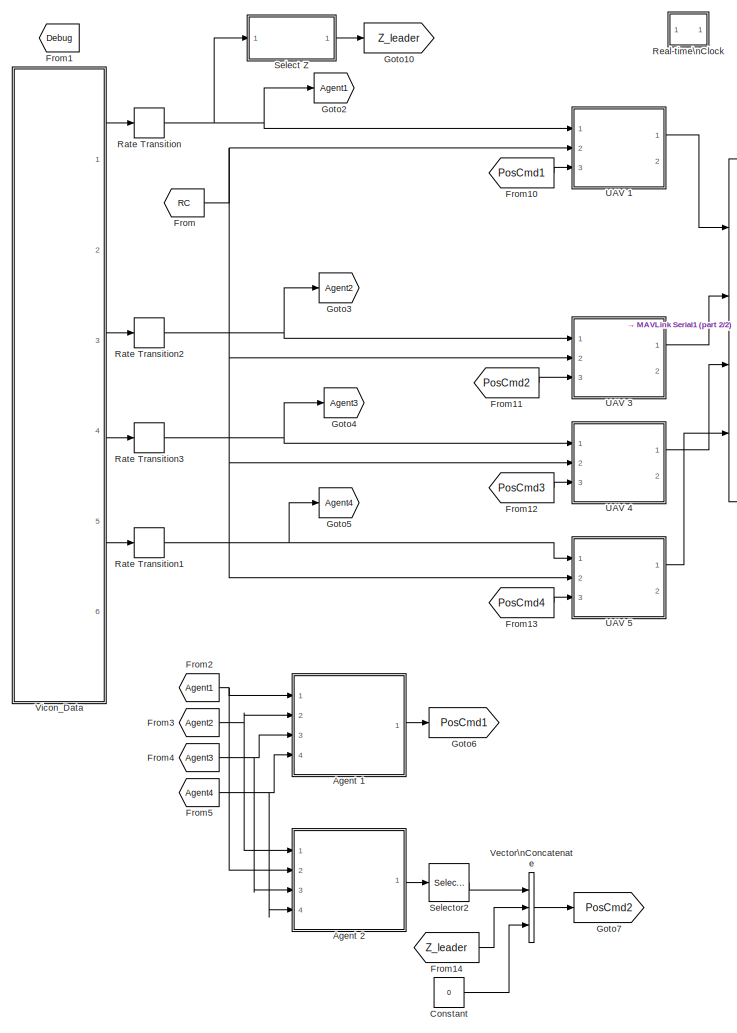
[diagram: root canvas - part 1/2, left side, full height]
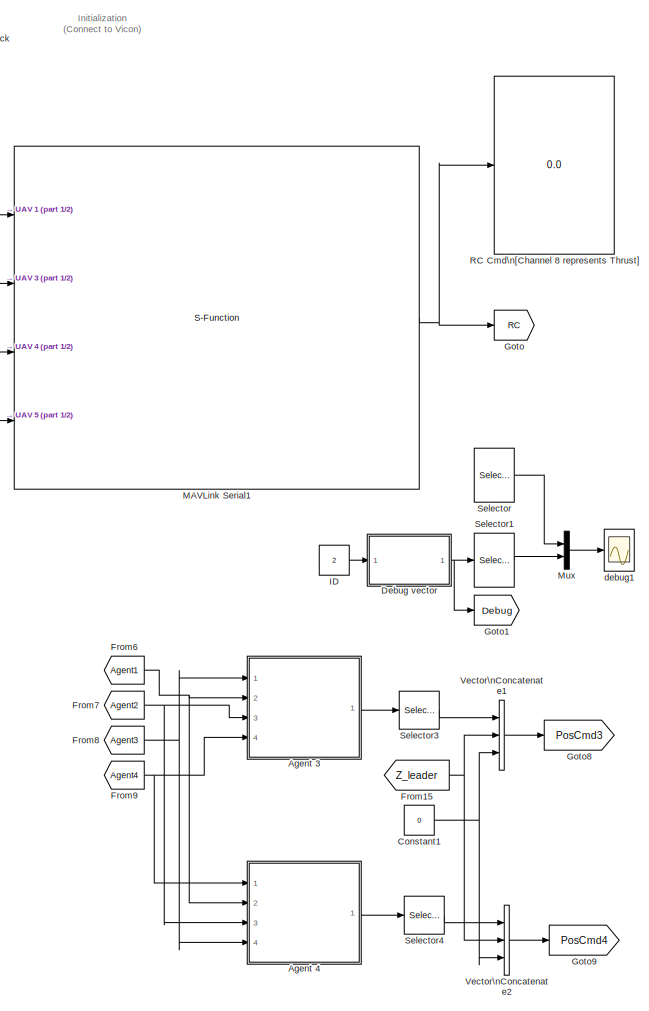
[diagram: root canvas - part 2/2, right side, full height]
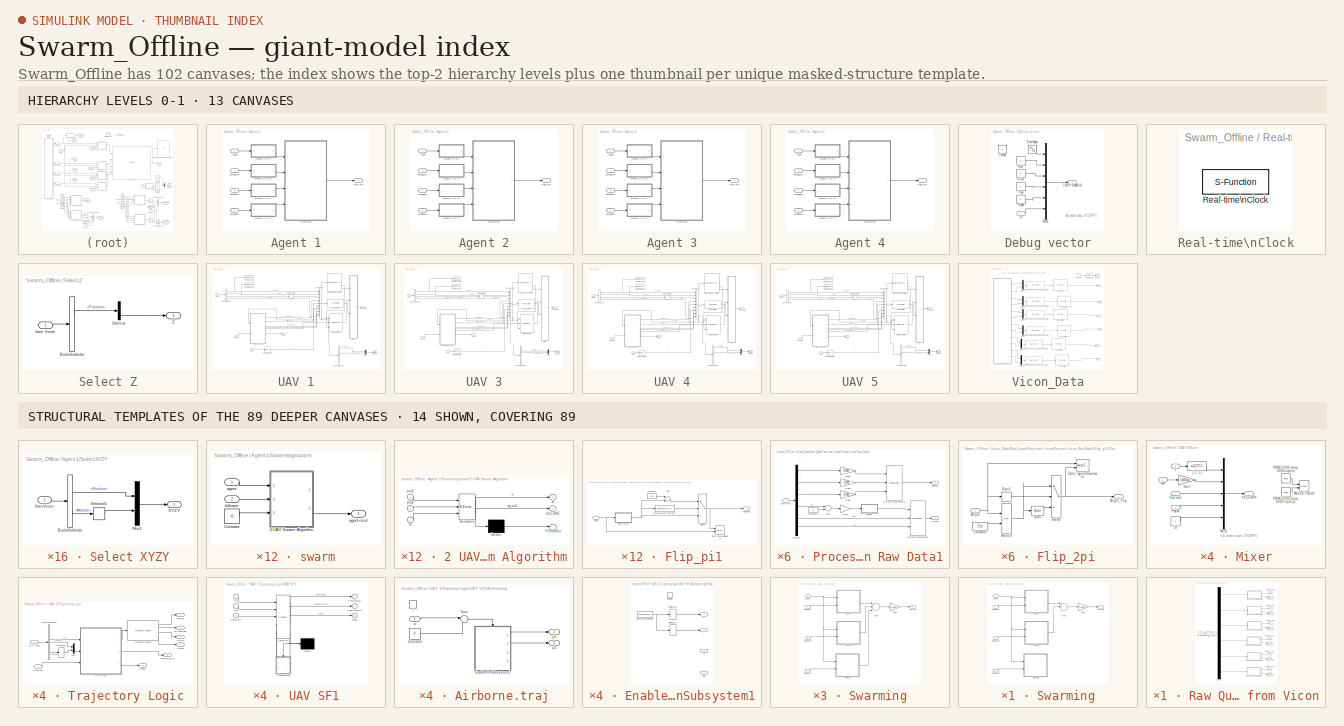
[diagram: thumbnail index - top-2 hierarchy levels (13 canvases) + 14 structural-template representatives of the remaining 89 canvases]
MODEL Swarm_Offline
KIND model
CONFIG InitFcn = sample_time=0.005;%0.004;%0.0025;%0.02;\nsample_time_Vicon = 0.005;\nDeltaT = 0.02;\ng = 9.81;\nH0 = g%0.3165;\nKl = 1;\n\nQ6_mass = 0.73;\n\nQ6_Omega_r = 1.5; %for horizon ref\nQ6_Zeta_r = 0.5; %for horizon ref\nQ6_Omega_r_h = 2;%for vertical ref\nQ6_Zeta_r_h = 1; %for vertical ref\n\nQ6_Omega = 1.5; %for horizon control\nQ6_Zeta = 0.5; %for horizon control\nQ6_Omega_h= 2; %for vertical control\n...<+349ch>
BLOCK [SubSystem] Agent 1
  FunctionWithSeparateData = off
  MaskHideContents = off
  MinAlgLoopOccurrences = off
  Opaque = off
  Ports = [4, 1]
  PropExecContextOutsideSubsystem = off
  RTWSystemCode = Auto
  RequestExecContextInheritance = off
  SID = 2911
BLOCK [Inport] Agent 1/Agent
  IconDisplay = Port number
  SID = 2912
BLOCK [Outport] Agent 1/PosCmd
  IconDisplay = Port number
  SID = 2913
BLOCK [SubSystem] Agent 1/Select XYZY
  FunctionWithSeparateData = off
  MaskHideContents = off
  MinAlgLoopOccurrences = off
  Opaque = off
  Ports = [1, 1]
  PropExecContextOutsideSubsystem = off
  RTWSystemCode = Auto
  RequestExecContextInheritance = off
  SID = 2887
BLOCK [BusSelector] Agent 1/Select XYZY/Bus\nSelector
  OutputSignals = Position,Attitude
  Ports = [1, 2]
  SID = 2884
BLOCK [Mux] Agent 1/Select XYZY/Mux1
  DisplayOption = bar
  Inputs = 2
  Ports = [2, 1]
  SID = 2886
BLOCK [Selector] Agent 1/Select XYZY/Selector5
  IndexOptions = Index vector (dialog)
  Indices = [3]
  InputPortWidth = 3
  OutputSizes = 1
  Ports = [1, 1]
  SID = 2885
BLOCK [Outport] Agent 1/Select XYZY/XYZY
  IconDisplay = Port number
  SID = 2889
BLOCK [Inport] Agent 1/Select XYZY/from Vicon
  IconDisplay = Port number
  SID = 2888
BLOCK [SubSystem] Agent 1/Select XYZY1
  FunctionWithSeparateData = off
  MaskHideContents = off
  MinAlgLoopOccurrences = off
  Opaque = off
  Ports = [1, 1]
  PropExecContextOutsideSubsystem = off
  RTWSystemCode = Auto
  RequestExecContextInheritance = off
  SID = 2890
BLOCK [BusSelector] Agent 1/Select XYZY1/Bus\nSelector
  OutputSignals = Position,Attitude
  Ports = [1, 2]
  SID = 2892
BLOCK [Mux] Agent 1/Select XYZY1/Mux1
  DisplayOption = bar
  Inputs = 2
  Ports = [2, 1]
  SID = 2893
BLOCK [Selector] Agent 1/Select XYZY1/Selector5
  IndexOptions = Index vector (dialog)
  Indices = [3]
  InputPortWidth = 3
  OutputSizes = 1
  Ports = [1, 1]
  SID = 2894
BLOCK [Outport] Agent 1/Select XYZY1/XYZY
  IconDisplay = Port number
  SID = 2895
BLOCK [Inport] Agent 1/Select XYZY1/from Vicon
  IconDisplay = Port number
  SID = 2891
BLOCK [SubSystem] Agent 1/Select XYZY2
  FunctionWithSeparateData = off
  MaskHideContents = off
  MinAlgLoopOccurrences = off
  Opaque = off
  Ports = [1, 1]
  PropExecContextOutsideSubsystem = off
  RTWSystemCode = Auto
  RequestExecContextInheritance = off
  SID = 2896
BLOCK [BusSelector] Agent 1/Select XYZY2/Bus\nSelector
  OutputSignals = Position,Attitude
  Ports = [1, 2]
  SID = 2898
BLOCK [Mux] Agent 1/Select XYZY2/Mux1
  DisplayOption = bar
  Inputs = 2
  Ports = [2, 1]
  SID = 2899
BLOCK [Selector] Agent 1/Select XYZY2/Selector5
  IndexOptions = Index vector (dialog)
  Indices = [3]
  InputPortWidth = 3
  OutputSizes = 1
  Ports = [1, 1]
  SID = 2900
BLOCK [Outport] Agent 1/Select XYZY2/XYZY
  IconDisplay = Port number
  SID = 2901
BLOCK [Inport] Agent 1/Select XYZY2/from Vicon
  IconDisplay = Port number
  SID = 2897
BLOCK [SubSystem] Agent 1/Select XYZY3
  FunctionWithSeparateData = off
  MaskHideContents = off
  MinAlgLoopOccurrences = off
  Opaque = off
  Ports = [1, 1]
  PropExecContextOutsideSubsystem = off
  RTWSystemCode = Auto
  RequestExecContextInheritance = off
  SID = 3054
BLOCK [BusSelector] Agent 1/Select XYZY3/Bus\nSelector
  OutputSignals = Position,Attitude
  Ports = [1, 2]
  SID = 3056
BLOCK [Mux] Agent 1/Select XYZY3/Mux1
  DisplayOption = bar
  Inputs = 2
  Ports = [2, 1]
  SID = 3057
BLOCK [Selector] Agent 1/Select XYZY3/Selector5
  IndexOptions = Index vector (dialog)
  Indices = [3]
  InputPortWidth = 3
  OutputSizes = 1
  Ports = [1, 1]
  SID = 3058
BLOCK [Outport] Agent 1/Select XYZY3/XYZY
  IconDisplay = Port number
  SID = 3059
BLOCK [Inport] Agent 1/Select XYZY3/from Vicon
  IconDisplay = Port number
  SID = 3055
BLOCK [SubSystem] Agent 1/Swarming
  FunctionWithSeparateData = off
  MaskHideContents = off
  MinAlgLoopOccurrences = off
  Opaque = off
  Ports = [4, 1]
  PropExecContextOutsideSubsystem = off
  RTWSystemCode = Auto
  RequestExecContextInheritance = off
  SID = 2837
BLOCK [Gain] Agent 1/Swarming/Gain2
  Gain = 1/num
  OutDataTypeStr = Inherit: Inherit via internal rule
  ParamDataTypeStr = Inherit: Inherit via internal rule
  SID = 2841
  SaturateOnIntegerOverflow = off
BLOCK [Sum] Agent 1/Swarming/Sum2
  InputSameDT = off
  Inputs = +++
  OutDataTypeStr = Inherit: Inherit via internal rule
  Ports = [3, 1]
  SID = 2842
  SaturateOnIntegerOverflow = off
BLOCK [Inport] Agent 1/Swarming/agent
  IconDisplay = Port number
  SID = 2838
BLOCK [Inport] Agent 1/Swarming/neighbor1
  IconDisplay = Port number
  Port = 2
  SID = 2839
BLOCK [Inport] Agent 1/Swarming/neighbor2
  IconDisplay = Port number
  Port = 3
  SID = 2840
BLOCK [Inport] Agent 1/Swarming/neighbor3
  IconDisplay = Port number
  Port = 4
  SID = 3018
BLOCK [Outport] Agent 1/Swarming/pos_cmd
  IconDisplay = Port number
  SID = 2882
BLOCK [SubSystem] Agent 1/Swarming/swarm
  FunctionWithSeparateData = off
  MaskHideContents = off
  MinAlgLoopOccurrences = off
  Opaque = off
  Ports = [2, 1]
  PropExecContextOutsideSubsystem = off
  RTWSystemCode = Auto
  RequestExecContextInheritance = off
  SID = 2844
BLOCK [SubSystem] Agent 1/Swarming/swarm/2 UAV Swarm Algorithm
  ErrorFcn = Stateflow.Translate.translate
  FunctionWithSeparateData = off
  MaskDescription = Embedded MATLAB block
  MaskDisplay = bgColor = Simulink.Root.ColorString2Rgb(get_param(gcbh, 'BackgroundColor')); image(imread('private/eml_membrane_16.png','png','BackgroundColor',bgColor(1:3)),'center'); disp([10 10 'fcn']);  <repeated x12 — deduplicated; at blocks: 2 UAV Swarm Algorithm>
  MaskHideContents = off
  MaskIconFrame = on
  MaskIconOpaque = off
  MaskIconRotate = none
  MaskIconUnits = normalized
  MaskPortRotate = default
  MaskSelfModifiable = on
  MaskType = Stateflow
  MinAlgLoopOccurrences = off
  Opaque = off
  PermitHierarchicalResolution = ExplicitOnly
  Ports = [3, 2]
  PropExecContextOutsideSubsystem = off
  RTWSystemCode = Auto
  RequestExecContextInheritance = off
  SID = 2847
  TreatAsAtomicUnit = on
BLOCK [Demux] Agent 1/Swarming/swarm/2 UAV Swarm Algorithm/ Demux 
  Outputs = 1
  Ports = [1, 1]
  SID = 2847::36
BLOCK [S-Function] Agent 1/Swarming/swarm/2 UAV Swarm Algorithm/ SFunction 
  EnableBusSupport = on
  FunctionName = sf_sfun
  PortCounts = [3 3]
  Ports = [3, 3]
  SID = 2847::35
  Tag = Stateflow S-Function Swarm_Offline 1
BLOCK [Terminator] Agent 1/Swarming/swarm/2 UAV Swarm Algorithm/ Terminator 
  SID = 2847::38
BLOCK [Inport] Agent 1/Swarming/swarm/2 UAV Swarm Algorithm/pos1
  IconDisplay = Port number
  SID = 2847::1
BLOCK [Inport] Agent 1/Swarming/swarm/2 UAV Swarm Algorithm/pos2
  IconDisplay = Port number
  Port = 2
  SID = 2847::18
BLOCK [Outport] Agent 1/Swarming/swarm/2 UAV Swarm Algorithm/pos_cmd1
  IconDisplay = Port number
  Port = 2
  SID = 2847::5
BLOCK [Inport] Agent 1/Swarming/swarm/2 UAV Swarm Algorithm/r0
  IconDisplay = Port number
  Port = 3
  SID = 2847::39
BLOCK [Outport] Agent 1/Swarming/swarm/2 UAV Swarm Algorithm/w
  IconDisplay = Port number
  SID = 2847::29
BLOCK [Constant] Agent 1/Swarming/swarm/Constant
  SID = 3393
  Value = r0
BLOCK [Inport] Agent 1/Swarming/swarm/agent
  IconDisplay = Port number
  SID = 2845
BLOCK [Outport] Agent 1/Swarming/swarm/agent cmd
  IconDisplay = Port number
  SID = 2862
BLOCK [Inport] Agent 1/Swarming/swarm/follower
  IconDisplay = Port number
  Port = 2
  SID = 2846
BLOCK [SubSystem] Agent 1/Swarming/swarm1
  FunctionWithSeparateData = off
  MaskHideContents = off
  MinAlgLoopOccurrences = off
  Opaque = off
  Ports = [2, 1]
  PropExecContextOutsideSubsystem = off
  RTWSystemCode = Auto
  RequestExecContextInheritance = off
  SID = 3041
BLOCK [SubSystem] Agent 1/Swarming/swarm1/2 UAV Swarm Algorithm
  ErrorFcn = Stateflow.Translate.translate
  FunctionWithSeparateData = off
  MaskDescription = Embedded MATLAB block
  MaskHideContents = off
  MaskIconFrame = on
  MaskIconOpaque = off
  MaskIconRotate = none
  MaskIconUnits = normalized
  MaskPortRotate = default
  MaskSelfModifiable = on
  MaskType = Stateflow
  MinAlgLoopOccurrences = off
  Opaque = off
  PermitHierarchicalResolution = ExplicitOnly
  Ports = [3, 2]
  PropExecContextOutsideSubsystem = off
  RTWSystemCode = Auto
  RequestExecContextInheritance = off
  SID = 3044
  TreatAsAtomicUnit = on
BLOCK [Demux] Agent 1/Swarming/swarm1/2 UAV Swarm Algorithm/ Demux 
  Outputs = 1
  Ports = [1, 1]
  SID = 3044::36
BLOCK [S-Function] Agent 1/Swarming/swarm1/2 UAV Swarm Algorithm/ SFunction 
  EnableBusSupport = on
  FunctionName = sf_sfun
  PortCounts = [3 3]
  Ports = [3, 3]
  SID = 3044::35
  Tag = Stateflow S-Function Swarm_Offline 5
BLOCK [Terminator] Agent 1/Swarming/swarm1/2 UAV Swarm Algorithm/ Terminator 
  SID = 3044::38
BLOCK [Inport] Agent 1/Swarming/swarm1/2 UAV Swarm Algorithm/pos1
  IconDisplay = Port number
  SID = 3044::1
BLOCK [Inport] Agent 1/Swarming/swarm1/2 UAV Swarm Algorithm/pos2
  IconDisplay = Port number
  Port = 2
  SID = 3044::18
BLOCK [Outport] Agent 1/Swarming/swarm1/2 UAV Swarm Algorithm/pos_cmd1
  IconDisplay = Port number
  Port = 2
  SID = 3044::5
BLOCK [Inport] Agent 1/Swarming/swarm1/2 UAV Swarm Algorithm/r0
  IconDisplay = Port number
  Port = 3
  SID = 3044::39
BLOCK [Outport] Agent 1/Swarming/swarm1/2 UAV Swarm Algorithm/w
  IconDisplay = Port number
  SID = 3044::29
BLOCK [Constant] Agent 1/Swarming/swarm1/Constant
  SID = 3394
  Value = r0
BLOCK [Inport] Agent 1/Swarming/swarm1/agent
  IconDisplay = Port number
  SID = 3042
BLOCK [Outport] Agent 1/Swarming/swarm1/agent cmd
  IconDisplay = Port number
  SID = 3046
BLOCK [Inport] Agent 1/Swarming/swarm1/follower
  IconDisplay = Port number
  Port = 2
  SID = 3043
BLOCK [SubSystem] Agent 1/Swarming/swarm2
  FunctionWithSeparateData = off
  MaskHideContents = off
  MinAlgLoopOccurrences = off
  Opaque = off
  Ports = [2, 1]
  PropExecContextOutsideSubsystem = off
  RTWSystemCode = Auto
  RequestExecContextInheritance = off
  SID = 3047
BLOCK [SubSystem] Agent 1/Swarming/swarm2/2 UAV Swarm Algorithm
  ErrorFcn = Stateflow.Translate.translate
  FunctionWithSeparateData = off
  MaskDescription = Embedded MATLAB block
  MaskHideContents = off
  MaskIconFrame = on
  MaskIconOpaque = off
  MaskIconRotate = none
  MaskIconUnits = normalized
  MaskPortRotate = default
  MaskSelfModifiable = on
  MaskType = Stateflow
  MinAlgLoopOccurrences = off
  Opaque = off
  PermitHierarchicalResolution = ExplicitOnly
  Ports = [3, 2]
  PropExecContextOutsideSubsystem = off
  RTWSystemCode = Auto
  RequestExecContextInheritance = off
  SID = 3050
  TreatAsAtomicUnit = on
BLOCK [Demux] Agent 1/Swarming/swarm2/2 UAV Swarm Algorithm/ Demux 
  Outputs = 1
  Ports = [1, 1]
  SID = 3050::36
BLOCK [S-Function] Agent 1/Swarming/swarm2/2 UAV Swarm Algorithm/ SFunction 
  EnableBusSupport = on
  FunctionName = sf_sfun
  PortCounts = [3 3]
  Ports = [3, 3]
  SID = 3050::35
  Tag = Stateflow S-Function Swarm_Offline 8
BLOCK [Terminator] Agent 1/Swarming/swarm2/2 UAV Swarm Algorithm/ Terminator 
  SID = 3050::38
BLOCK [Inport] Agent 1/Swarming/swarm2/2 UAV Swarm Algorithm/pos1
  IconDisplay = Port number
  SID = 3050::1
BLOCK [Inport] Agent 1/Swarming/swarm2/2 UAV Swarm Algorithm/pos2
  IconDisplay = Port number
  Port = 2
  SID = 3050::18
BLOCK [Outport] Agent 1/Swarming/swarm2/2 UAV Swarm Algorithm/pos_cmd1
  IconDisplay = Port number
  Port = 2
  SID = 3050::5
BLOCK [Inport] Agent 1/Swarming/swarm2/2 UAV Swarm Algorithm/r0
  IconDisplay = Port number
  Port = 3
  SID = 3050::39
BLOCK [Outport] Agent 1/Swarming/swarm2/2 UAV Swarm Algorithm/w
  IconDisplay = Port number
  SID = 3050::29
BLOCK [Constant] Agent 1/Swarming/swarm2/Constant
  SID = 3405
  Value = r0
BLOCK [Inport] Agent 1/Swarming/swarm2/agent
  IconDisplay = Port number
  SID = 3048
BLOCK [Outport] Agent 1/Swarming/swarm2/agent cmd
  IconDisplay = Port number
  SID = 3052
BLOCK [Inport] Agent 1/Swarming/swarm2/follower
  IconDisplay = Port number
  Port = 2
  SID = 3049
BLOCK [Inport] Agent 1/neighbor1
  IconDisplay = Port number
  Port = 2
  SID = 2914
BLOCK [Inport] Agent 1/neighbor2
  IconDisplay = Port number
  Port = 3
  SID = 2915
BLOCK [Inport] Agent 1/neighbor3
  IconDisplay = Port number
  Port = 4
  SID = 3053
BLOCK [SubSystem] Agent 2
  FunctionWithSeparateData = off
  MaskHideContents = off
  MinAlgLoopOccurrences = off
  Opaque = off
  Ports = [4, 1]
  PropExecContextOutsideSubsystem = off
  RTWSystemCode = Auto
  RequestExecContextInheritance = off
  SID = 3406
BLOCK [Inport] Agent 2/Agent
  IconDisplay = Port number
  SID = 3407
BLOCK [Outport] Agent 2/PosCmd
  IconDisplay = Port number
  SID = 3471
BLOCK [SubSystem] Agent 2/Select XYZY
  FunctionWithSeparateData = off
  MaskHideContents = off
  MinAlgLoopOccurrences = off
  Opaque = off
  Ports = [1, 1]
  PropExecContextOutsideSubsystem = off
  RTWSystemCode = Auto
  RequestExecContextInheritance = off
  SID = 3411
BLOCK [BusSelector] Agent 2/Select XYZY/Bus\nSelector
  OutputSignals = Position,Attitude
  Ports = [1, 2]
  SID = 3413
BLOCK [Mux] Agent 2/Select XYZY/Mux1
  DisplayOption = bar
  Inputs = 2
  Ports = [2, 1]
  SID = 3414
BLOCK [Selector] Agent 2/Select XYZY/Selector5
  IndexOptions = Index vector (dialog)
  Indices = [3]
  InputPortWidth = 3
  OutputSizes = 1
  Ports = [1, 1]
  SID = 3415
BLOCK [Outport] Agent 2/Select XYZY/XYZY
  IconDisplay = Port number
  SID = 3416
BLOCK [Inport] Agent 2/Select XYZY/from Vicon
  IconDisplay = Port number
  SID = 3412
BLOCK [SubSystem] Agent 2/Select XYZY1
  FunctionWithSeparateData = off
  MaskHideContents = off
  MinAlgLoopOccurrences = off
  Opaque = off
  Ports = [1, 1]
  PropExecContextOutsideSubsystem = off
  RTWSystemCode = Auto
  RequestExecContextInheritance = off
  SID = 3417
BLOCK [BusSelector] Agent 2/Select XYZY1/Bus\nSelector
  OutputSignals = Position,Attitude
  Ports = [1, 2]
  SID = 3419
BLOCK [Mux] Agent 2/Select XYZY1/Mux1
  DisplayOption = bar
  Inputs = 2
  Ports = [2, 1]
  SID = 3420
BLOCK [Selector] Agent 2/Select XYZY1/Selector5
  IndexOptions = Index vector (dialog)
  Indices = [3]
  InputPortWidth = 3
  OutputSizes = 1
  Ports = [1, 1]
  SID = 3421
BLOCK [Outport] Agent 2/Select XYZY1/XYZY
  IconDisplay = Port number
  SID = 3422
BLOCK [Inport] Agent 2/Select XYZY1/from Vicon
  IconDisplay = Port number
  SID = 3418
BLOCK [SubSystem] Agent 2/Select XYZY2
  FunctionWithSeparateData = off
  MaskHideContents = off
  MinAlgLoopOccurrences = off
  Opaque = off
  Ports = [1, 1]
  PropExecContextOutsideSubsystem = off
  RTWSystemCode = Auto
  RequestExecContextInheritance = off
  SID = 3423
BLOCK [BusSelector] Agent 2/Select XYZY2/Bus\nSelector
  OutputSignals = Position,Attitude
  Ports = [1, 2]
  SID = 3425
BLOCK [Mux] Agent 2/Select XYZY2/Mux1
  DisplayOption = bar
  Inputs = 2
  Ports = [2, 1]
  SID = 3426
BLOCK [Selector] Agent 2/Select XYZY2/Selector5
  IndexOptions = Index vector (dialog)
  Indices = [3]
  InputPortWidth = 3
  OutputSizes = 1
  Ports = [1, 1]
  SID = 3427
BLOCK [Outport] Agent 2/Select XYZY2/XYZY
  IconDisplay = Port number
  SID = 3428
BLOCK [Inport] Agent 2/Select XYZY2/from Vicon
  IconDisplay = Port number
  SID = 3424
BLOCK [SubSystem] Agent 2/Select XYZY3
  FunctionWithSeparateData = off
  MaskHideContents = off
  MinAlgLoopOccurrences = off
  Opaque = off
  Ports = [1, 1]
  PropExecContextOutsideSubsystem = off
  RTWSystemCode = Auto
  RequestExecContextInheritance = off
  SID = 3429
BLOCK [BusSelector] Agent 2/Select XYZY3/Bus\nSelector
  OutputSignals = Position,Attitude
  Ports = [1, 2]
  SID = 3431
BLOCK [Mux] Agent 2/Select XYZY3/Mux1
  DisplayOption = bar
  Inputs = 2
  Ports = [2, 1]
  SID = 3432
BLOCK [Selector] Agent 2/Select XYZY3/Selector5
  IndexOptions = Index vector (dialog)
  Indices = [3]
  InputPortWidth = 3
  OutputSizes = 1
  Ports = [1, 1]
  SID = 3433
BLOCK [Outport] Agent 2/Select XYZY3/XYZY
  IconDisplay = Port number
  SID = 3434
BLOCK [Inport] Agent 2/Select XYZY3/from Vicon
  IconDisplay = Port number
  SID = 3430
BLOCK [SubSystem] Agent 2/Swarming
  FunctionWithSeparateData = off
  MaskHideContents = off
  MinAlgLoopOccurrences = off
  Opaque = off
  Ports = [4, 1]
  PropExecContextOutsideSubsystem = off
  RTWSystemCode = Auto
  RequestExecContextInheritance = off
  SID = 3435
BLOCK [Gain] Agent 2/Swarming/Gain2
  Gain = 1/num
  OutDataTypeStr = Inherit: Inherit via internal rule
  ParamDataTypeStr = Inherit: Inherit via internal rule
  SID = 3440
  SaturateOnIntegerOverflow = off
BLOCK [Sum] Agent 2/Swarming/Sum2
  InputSameDT = off
  Inputs = +++
  OutDataTypeStr = Inherit: Inherit via internal rule
  Ports = [3, 1]
  SID = 3441
  SaturateOnIntegerOverflow = off
BLOCK [Inport] Agent 2/Swarming/agent
  IconDisplay = Port number
  SID = 3436
BLOCK [Inport] Agent 2/Swarming/neighbor1
  IconDisplay = Port number
  Port = 2
  SID = 3437
BLOCK [Inport] Agent 2/Swarming/neighbor2
  IconDisplay = Port number
  Port = 3
  SID = 3438
BLOCK [Inport] Agent 2/Swarming/neighbor3
  IconDisplay = Port number
  Port = 4
  SID = 3439
BLOCK [Outport] Agent 2/Swarming/pos_cmd
  IconDisplay = Port number
  SID = 3470
BLOCK [SubSystem] Agent 2/Swarming/swarm
  FunctionWithSeparateData = off
  MaskHideContents = off
  MinAlgLoopOccurrences = off
  Opaque = off
  Ports = [2, 1]
  PropExecContextOutsideSubsystem = off
  RTWSystemCode = Auto
  RequestExecContextInheritance = off
  SID = 3452
BLOCK [SubSystem] Agent 2/Swarming/swarm/2 UAV Swarm Algorithm
  ErrorFcn = Stateflow.Translate.translate
  FunctionWithSeparateData = off
  MaskDescription = Embedded MATLAB block
  MaskHideContents = off
  MaskIconFrame = on
  MaskIconOpaque = off
  MaskIconRotate = none
  MaskIconUnits = normalized
  MaskPortRotate = default
  MaskSelfModifiable = on
  MaskType = Stateflow
  MinAlgLoopOccurrences = off
  Opaque = off
  PermitHierarchicalResolution = ExplicitOnly
  Ports = [3, 2]
  PropExecContextOutsideSubsystem = off
  RTWSystemCode = Auto
  RequestExecContextInheritance = off
  SID = 3455
  TreatAsAtomicUnit = on
BLOCK [Demux] Agent 2/Swarming/swarm/2 UAV Swarm Algorithm/ Demux 
  Outputs = 1
  Ports = [1, 1]
  SID = 3455::36
BLOCK [S-Function] Agent 2/Swarming/swarm/2 UAV Swarm Algorithm/ SFunction 
  EnableBusSupport = on
  FunctionName = sf_sfun
  PortCounts = [3 3]
  Ports = [3, 3]
  SID = 3455::35
  Tag = Stateflow S-Function Swarm_Offline 6
BLOCK [Terminator] Agent 2/Swarming/swarm/2 UAV Swarm Algorithm/ Terminator 
  SID = 3455::38
BLOCK [Inport] Agent 2/Swarming/swarm/2 UAV Swarm Algorithm/pos1
  IconDisplay = Port number
  SID = 3455::1
BLOCK [Inport] Agent 2/Swarming/swarm/2 UAV Swarm Algorithm/pos2
  IconDisplay = Port number
  Port = 2
  SID = 3455::18
BLOCK [Outport] Agent 2/Swarming/swarm/2 UAV Swarm Algorithm/pos_cmd1
  IconDisplay = Port number
  Port = 2
  SID = 3455::5
BLOCK [Inport] Agent 2/Swarming/swarm/2 UAV Swarm Algorithm/r0
  IconDisplay = Port number
  Port = 3
  SID = 3455::39
BLOCK [Outport] Agent 2/Swarming/swarm/2 UAV Swarm Algorithm/w
  IconDisplay = Port number
  SID = 3455::29
BLOCK [Constant] Agent 2/Swarming/swarm/Constant
  SID = 3456
  Value = r0
BLOCK [Inport] Agent 2/Swarming/swarm/agent
  IconDisplay = Port number
  SID = 3453
BLOCK [Outport] Agent 2/Swarming/swarm/agent cmd
  IconDisplay = Port number
  SID = 3457
BLOCK [Inport] Agent 2/Swarming/swarm/follower
  IconDisplay = Port number
  Port = 2
  SID = 3454
BLOCK [SubSystem] Agent 2/Swarming/swarm1
  FunctionWithSeparateData = off
  MaskHideContents = off
  MinAlgLoopOccurrences = off
  Opaque = off
  Ports = [2, 1]
  PropExecContextOutsideSubsystem = off
  RTWSystemCode = Auto
  RequestExecContextInheritance = off
  SID = 3458
BLOCK [SubSystem] Agent 2/Swarming/swarm1/2 UAV Swarm Algorithm
  ErrorFcn = Stateflow.Translate.translate
  FunctionWithSeparateData = off
  MaskDescription = Embedded MATLAB block
  MaskHideContents = off
  MaskIconFrame = on
  MaskIconOpaque = off
  MaskIconRotate = none
  MaskIconUnits = normalized
  MaskPortRotate = default
  MaskSelfModifiable = on
  MaskType = Stateflow
  MinAlgLoopOccurrences = off
  Opaque = off
  PermitHierarchicalResolution = ExplicitOnly
  Ports = [3, 2]
  PropExecContextOutsideSubsystem = off
  RTWSystemCode = Auto
  RequestExecContextInheritance = off
  SID = 3461
  TreatAsAtomicUnit = on
BLOCK [Demux] Agent 2/Swarming/swarm1/2 UAV Swarm Algorithm/ Demux 
  Outputs = 1
  Ports = [1, 1]
  SID = 3461::36
BLOCK [S-Function] Agent 2/Swarming/swarm1/2 UAV Swarm Algorithm/ SFunction 
  EnableBusSupport = on
  FunctionName = sf_sfun
  PortCounts = [3 3]
  Ports = [3, 3]
  SID = 3461::35
  Tag = Stateflow S-Function Swarm_Offline 10
BLOCK [Terminator] Agent 2/Swarming/swarm1/2 UAV Swarm Algorithm/ Terminator 
  SID = 3461::38
BLOCK [Inport] Agent 2/Swarming/swarm1/2 UAV Swarm Algorithm/pos1
  IconDisplay = Port number
  SID = 3461::1
BLOCK [Inport] Agent 2/Swarming/swarm1/2 UAV Swarm Algorithm/pos2
  IconDisplay = Port number
  Port = 2
  SID = 3461::18
BLOCK [Outport] Agent 2/Swarming/swarm1/2 UAV Swarm Algorithm/pos_cmd1
  IconDisplay = Port number
  Port = 2
  SID = 3461::5
BLOCK [Inport] Agent 2/Swarming/swarm1/2 UAV Swarm Algorithm/r0
  IconDisplay = Port number
  Port = 3
  SID = 3461::39
BLOCK [Outport] Agent 2/Swarming/swarm1/2 UAV Swarm Algorithm/w
  IconDisplay = Port number
  SID = 3461::29
BLOCK [Constant] Agent 2/Swarming/swarm1/Constant
  SID = 3462
  Value = r0
BLOCK [Inport] Agent 2/Swarming/swarm1/agent
  IconDisplay = Port number
  SID = 3459
BLOCK [Outport] Agent 2/Swarming/swarm1/agent cmd
  IconDisplay = Port number
  SID = 3463
BLOCK [Inport] Agent 2/Swarming/swarm1/follower
  IconDisplay = Port number
  Port = 2
  SID = 3460
BLOCK [SubSystem] Agent 2/Swarming/swarm2
  FunctionWithSeparateData = off
  MaskHideContents = off
  MinAlgLoopOccurrences = off
  Opaque = off
  Ports = [2, 1]
  PropExecContextOutsideSubsystem = off
  RTWSystemCode = Auto
  RequestExecContextInheritance = off
  SID = 3464
BLOCK [SubSystem] Agent 2/Swarming/swarm2/2 UAV Swarm Algorithm
  ErrorFcn = Stateflow.Translate.translate
  FunctionWithSeparateData = off
  MaskDescription = Embedded MATLAB block
  MaskHideContents = off
  MaskIconFrame = on
  MaskIconOpaque = off
  MaskIconRotate = none
  MaskIconUnits = normalized
  MaskPortRotate = default
  MaskSelfModifiable = on
  MaskType = Stateflow
  MinAlgLoopOccurrences = off
  Opaque = off
  PermitHierarchicalResolution = ExplicitOnly
  Ports = [3, 2]
  PropExecContextOutsideSubsystem = off
  RTWSystemCode = Auto
  RequestExecContextInheritance = off
  SID = 3467
  TreatAsAtomicUnit = on
BLOCK [Demux] Agent 2/Swarming/swarm2/2 UAV Swarm Algorithm/ Demux 
  Outputs = 1
  Ports = [1, 1]
  SID = 3467::36
BLOCK [S-Function] Agent 2/Swarming/swarm2/2 UAV Swarm Algorithm/ SFunction 
  EnableBusSupport = on
  FunctionName = sf_sfun
  PortCounts = [3 3]
  Ports = [3, 3]
  SID = 3467::35
  Tag = Stateflow S-Function Swarm_Offline 11
BLOCK [Terminator] Agent 2/Swarming/swarm2/2 UAV Swarm Algorithm/ Terminator 
  SID = 3467::38
BLOCK [Inport] Agent 2/Swarming/swarm2/2 UAV Swarm Algorithm/pos1
  IconDisplay = Port number
  SID = 3467::1
BLOCK [Inport] Agent 2/Swarming/swarm2/2 UAV Swarm Algorithm/pos2
  IconDisplay = Port number
  Port = 2
  SID = 3467::18
BLOCK [Outport] Agent 2/Swarming/swarm2/2 UAV Swarm Algorithm/pos_cmd1
  IconDisplay = Port number
  Port = 2
  SID = 3467::5
BLOCK [Inport] Agent 2/Swarming/swarm2/2 UAV Swarm Algorithm/r0
  IconDisplay = Port number
  Port = 3
  SID = 3467::39
BLOCK [Outport] Agent 2/Swarming/swarm2/2 UAV Swarm Algorithm/w
  IconDisplay = Port number
  SID = 3467::29
BLOCK [Constant] Agent 2/Swarming/swarm2/Constant
  SID = 3468
  Value = r0
BLOCK [Inport] Agent 2/Swarming/swarm2/agent
  IconDisplay = Port number
  SID = 3465
BLOCK [Outport] Agent 2/Swarming/swarm2/agent cmd
  IconDisplay = Port number
  SID = 3469
BLOCK [Inport] Agent 2/Swarming/swarm2/follower
  IconDisplay = Port number
  Port = 2
  SID = 3466
BLOCK [Inport] Agent 2/neighbor1
  IconDisplay = Port number
  Port = 2
  SID = 3408
BLOCK [Inport] Agent 2/neighbor2
  IconDisplay = Port number
  Port = 3
  SID = 3409
BLOCK [Inport] Agent 2/neighbor3
  IconDisplay = Port number
  Port = 4
  SID = 3410
BLOCK [SubSystem] Agent 3
  FunctionWithSeparateData = off
  MaskHideContents = off
  MinAlgLoopOccurrences = off
  Opaque = off
  Ports = [4, 1]
  PropExecContextOutsideSubsystem = off
  RTWSystemCode = Auto
  RequestExecContextInheritance = off
  SID = 3473
BLOCK [Inport] Agent 3/Agent
  IconDisplay = Port number
  SID = 3474
BLOCK [Outport] Agent 3/PosCmd
  IconDisplay = Port number
  SID = 3538
BLOCK [SubSystem] Agent 3/Select XYZY
  FunctionWithSeparateData = off
  MaskHideContents = off
  MinAlgLoopOccurrences = off
  Opaque = off
  Ports = [1, 1]
  PropExecContextOutsideSubsystem = off
  RTWSystemCode = Auto
  RequestExecContextInheritance = off
  SID = 3478
BLOCK [BusSelector] Agent 3/Select XYZY/Bus\nSelector
  OutputSignals = Position,Attitude
  Ports = [1, 2]
  SID = 3480
BLOCK [Mux] Agent 3/Select XYZY/Mux1
  DisplayOption = bar
  Inputs = 2
  Ports = [2, 1]
  SID = 3481
BLOCK [Selector] Agent 3/Select XYZY/Selector5
  IndexOptions = Index vector (dialog)
  Indices = [3]
  InputPortWidth = 3
  OutputSizes = 1
  Ports = [1, 1]
  SID = 3482
BLOCK [Outport] Agent 3/Select XYZY/XYZY
  IconDisplay = Port number
  SID = 3483
BLOCK [Inport] Agent 3/Select XYZY/from Vicon
  IconDisplay = Port number
  SID = 3479
BLOCK [SubSystem] Agent 3/Select XYZY1
  FunctionWithSeparateData = off
  MaskHideContents = off
  MinAlgLoopOccurrences = off
  Opaque = off
  Ports = [1, 1]
  PropExecContextOutsideSubsystem = off
  RTWSystemCode = Auto
  RequestExecContextInheritance = off
  SID = 3484
BLOCK [BusSelector] Agent 3/Select XYZY1/Bus\nSelector
  OutputSignals = Position,Attitude
  Ports = [1, 2]
  SID = 3486
BLOCK [Mux] Agent 3/Select XYZY1/Mux1
  DisplayOption = bar
  Inputs = 2
  Ports = [2, 1]
  SID = 3487
BLOCK [Selector] Agent 3/Select XYZY1/Selector5
  IndexOptions = Index vector (dialog)
  Indices = [3]
  InputPortWidth = 3
  OutputSizes = 1
  Ports = [1, 1]
  SID = 3488
BLOCK [Outport] Agent 3/Select XYZY1/XYZY
  IconDisplay = Port number
  SID = 3489
BLOCK [Inport] Agent 3/Select XYZY1/from Vicon
  IconDisplay = Port number
  SID = 3485
BLOCK [SubSystem] Agent 3/Select XYZY2
  FunctionWithSeparateData = off
  MaskHideContents = off
  MinAlgLoopOccurrences = off
  Opaque = off
  Ports = [1, 1]
  PropExecContextOutsideSubsystem = off
  RTWSystemCode = Auto
  RequestExecContextInheritance = off
  SID = 3490
BLOCK [BusSelector] Agent 3/Select XYZY2/Bus\nSelector
  OutputSignals = Position,Attitude
  Ports = [1, 2]
  SID = 3492
BLOCK [Mux] Agent 3/Select XYZY2/Mux1
  DisplayOption = bar
  Inputs = 2
  Ports = [2, 1]
  SID = 3493
BLOCK [Selector] Agent 3/Select XYZY2/Selector5
  IndexOptions = Index vector (dialog)
  Indices = [3]
  InputPortWidth = 3
  OutputSizes = 1
  Ports = [1, 1]
  SID = 3494
BLOCK [Outport] Agent 3/Select XYZY2/XYZY
  IconDisplay = Port number
  SID = 3495
BLOCK [Inport] Agent 3/Select XYZY2/from Vicon
  IconDisplay = Port number
  SID = 3491
BLOCK [SubSystem] Agent 3/Select XYZY3
  FunctionWithSeparateData = off
  MaskHideContents = off
  MinAlgLoopOccurrences = off
  Opaque = off
  Ports = [1, 1]
  PropExecContextOutsideSubsystem = off
  RTWSystemCode = Auto
  RequestExecContextInheritance = off
  SID = 3496
BLOCK [BusSelector] Agent 3/Select XYZY3/Bus\nSelector
  OutputSignals = Position,Attitude
  Ports = [1, 2]
  SID = 3498
BLOCK [Mux] Agent 3/Select XYZY3/Mux1
  DisplayOption = bar
  Inputs = 2
  Ports = [2, 1]
  SID = 3499
BLOCK [Selector] Agent 3/Select XYZY3/Selector5
  IndexOptions = Index vector (dialog)
  Indices = [3]
  InputPortWidth = 3
  OutputSizes = 1
  Ports = [1, 1]
  SID = 3500
BLOCK [Outport] Agent 3/Select XYZY3/XYZY
  IconDisplay = Port number
  SID = 3501
BLOCK [Inport] Agent 3/Select XYZY3/from Vicon
  IconDisplay = Port number
  SID = 3497
BLOCK [SubSystem] Agent 3/Swarming
  FunctionWithSeparateData = off
  MaskHideContents = off
  MinAlgLoopOccurrences = off
  Opaque = off
  Ports = [4, 1]
  PropExecContextOutsideSubsystem = off
  RTWSystemCode = Auto
  RequestExecContextInheritance = off
  SID = 3502
BLOCK [Gain] Agent 3/Swarming/Gain2
  Gain = 1/num
  OutDataTypeStr = Inherit: Inherit via internal rule
  ParamDataTypeStr = Inherit: Inherit via internal rule
  SID = 3507
  SaturateOnIntegerOverflow = off
BLOCK [Sum] Agent 3/Swarming/Sum2
  InputSameDT = off
  Inputs = +++
  OutDataTypeStr = Inherit: Inherit via internal rule
  Ports = [3, 1]
  SID = 3508
  SaturateOnIntegerOverflow = off
BLOCK [Inport] Agent 3/Swarming/agent
  IconDisplay = Port number
  SID = 3503
BLOCK [Inport] Agent 3/Swarming/neighbor1
  IconDisplay = Port number
  Port = 2
  SID = 3504
BLOCK [Inport] Agent 3/Swarming/neighbor2
  IconDisplay = Port number
  Port = 3
  SID = 3505
BLOCK [Inport] Agent 3/Swarming/neighbor3
  IconDisplay = Port number
  Port = 4
  SID = 3506
BLOCK [Outport] Agent 3/Swarming/pos_cmd
  IconDisplay = Port number
  SID = 3537
BLOCK [SubSystem] Agent 3/Swarming/swarm
  FunctionWithSeparateData = off
  MaskHideContents = off
  MinAlgLoopOccurrences = off
  Opaque = off
  Ports = [2, 1]
  PropExecContextOutsideSubsystem = off
  RTWSystemCode = Auto
  RequestExecContextInheritance = off
  SID = 3519
BLOCK [SubSystem] Agent 3/Swarming/swarm/2 UAV Swarm Algorithm
  ErrorFcn = Stateflow.Translate.translate
  FunctionWithSeparateData = off
  MaskDescription = Embedded MATLAB block
  MaskHideContents = off
  MaskIconFrame = on
  MaskIconOpaque = off
  MaskIconRotate = none
  MaskIconUnits = normalized
  MaskPortRotate = default
  MaskSelfModifiable = on
  MaskType = Stateflow
  MinAlgLoopOccurrences = off
  Opaque = off
  PermitHierarchicalResolution = ExplicitOnly
  Ports = [3, 2]
  PropExecContextOutsideSubsystem = off
  RTWSystemCode = Auto
  RequestExecContextInheritance = off
  SID = 3522
  TreatAsAtomicUnit = on
BLOCK [Demux] Agent 3/Swarming/swarm/2 UAV Swarm Algorithm/ Demux 
  Outputs = 1
  Ports = [1, 1]
  SID = 3522::36
BLOCK [S-Function] Agent 3/Swarming/swarm/2 UAV Swarm Algorithm/ SFunction 
  EnableBusSupport = on
  FunctionName = sf_sfun
  PortCounts = [3 3]
  Ports = [3, 3]
  SID = 3522::35
  Tag = Stateflow S-Function Swarm_Offline 13
BLOCK [Terminator] Agent 3/Swarming/swarm/2 UAV Swarm Algorithm/ Terminator 
  SID = 3522::38
BLOCK [Inport] Agent 3/Swarming/swarm/2 UAV Swarm Algorithm/pos1
  IconDisplay = Port number
  SID = 3522::1
BLOCK [Inport] Agent 3/Swarming/swarm/2 UAV Swarm Algorithm/pos2
  IconDisplay = Port number
  Port = 2
  SID = 3522::18
BLOCK [Outport] Agent 3/Swarming/swarm/2 UAV Swarm Algorithm/pos_cmd1
  IconDisplay = Port number
  Port = 2
  SID = 3522::5
BLOCK [Inport] Agent 3/Swarming/swarm/2 UAV Swarm Algorithm/r0
  IconDisplay = Port number
  Port = 3
  SID = 3522::39
BLOCK [Outport] Agent 3/Swarming/swarm/2 UAV Swarm Algorithm/w
  IconDisplay = Port number
  SID = 3522::29
BLOCK [Constant] Agent 3/Swarming/swarm/Constant
  SID = 3523
  Value = r0
BLOCK [Inport] Agent 3/Swarming/swarm/agent
  IconDisplay = Port number
  SID = 3520
BLOCK [Outport] Agent 3/Swarming/swarm/agent cmd
  IconDisplay = Port number
  SID = 3524
BLOCK [Inport] Agent 3/Swarming/swarm/follower
  IconDisplay = Port number
  Port = 2
  SID = 3521
BLOCK [SubSystem] Agent 3/Swarming/swarm1
  FunctionWithSeparateData = off
  MaskHideContents = off
  MinAlgLoopOccurrences = off
  Opaque = off
  Ports = [2, 1]
  PropExecContextOutsideSubsystem = off
  RTWSystemCode = Auto
  RequestExecContextInheritance = off
  SID = 3525
BLOCK [SubSystem] Agent 3/Swarming/swarm1/2 UAV Swarm Algorithm
  ErrorFcn = Stateflow.Translate.translate
  FunctionWithSeparateData = off
  MaskDescription = Embedded MATLAB block
  MaskHideContents = off
  MaskIconFrame = on
  MaskIconOpaque = off
  MaskIconRotate = none
  MaskIconUnits = normalized
  MaskPortRotate = default
  MaskSelfModifiable = on
  MaskType = Stateflow
  MinAlgLoopOccurrences = off
  Opaque = off
  PermitHierarchicalResolution = ExplicitOnly
  Ports = [3, 2]
  PropExecContextOutsideSubsystem = off
  RTWSystemCode = Auto
  RequestExecContextInheritance = off
  SID = 3528
  TreatAsAtomicUnit = on
BLOCK [Demux] Agent 3/Swarming/swarm1/2 UAV Swarm Algorithm/ Demux 
  Outputs = 1
  Ports = [1, 1]
  SID = 3528::36
BLOCK [S-Function] Agent 3/Swarming/swarm1/2 UAV Swarm Algorithm/ SFunction 
  EnableBusSupport = on
  FunctionName = sf_sfun
  PortCounts = [3 3]
  Ports = [3, 3]
  SID = 3528::35
  Tag = Stateflow S-Function Swarm_Offline 14
BLOCK [Terminator] Agent 3/Swarming/swarm1/2 UAV Swarm Algorithm/ Terminator 
  SID = 3528::38
BLOCK [Inport] Agent 3/Swarming/swarm1/2 UAV Swarm Algorithm/pos1
  IconDisplay = Port number
  SID = 3528::1
BLOCK [Inport] Agent 3/Swarming/swarm1/2 UAV Swarm Algorithm/pos2
  IconDisplay = Port number
  Port = 2
  SID = 3528::18
BLOCK [Outport] Agent 3/Swarming/swarm1/2 UAV Swarm Algorithm/pos_cmd1
  IconDisplay = Port number
  Port = 2
  SID = 3528::5
BLOCK [Inport] Agent 3/Swarming/swarm1/2 UAV Swarm Algorithm/r0
  IconDisplay = Port number
  Port = 3
  SID = 3528::39
BLOCK [Outport] Agent 3/Swarming/swarm1/2 UAV Swarm Algorithm/w
  IconDisplay = Port number
  SID = 3528::29
BLOCK [Constant] Agent 3/Swarming/swarm1/Constant
  SID = 3529
  Value = r0
BLOCK [Inport] Agent 3/Swarming/swarm1/agent
  IconDisplay = Port number
  SID = 3526
BLOCK [Outport] Agent 3/Swarming/swarm1/agent cmd
  IconDisplay = Port number
  SID = 3530
BLOCK [Inport] Agent 3/Swarming/swarm1/follower
  IconDisplay = Port number
  Port = 2
  SID = 3527
BLOCK [SubSystem] Agent 3/Swarming/swarm2
  FunctionWithSeparateData = off
  MaskHideContents = off
  MinAlgLoopOccurrences = off
  Opaque = off
  Ports = [2, 1]
  PropExecContextOutsideSubsystem = off
  RTWSystemCode = Auto
  RequestExecContextInheritance = off
  SID = 3531
BLOCK [SubSystem] Agent 3/Swarming/swarm2/2 UAV Swarm Algorithm
  ErrorFcn = Stateflow.Translate.translate
  FunctionWithSeparateData = off
  MaskDescription = Embedded MATLAB block
  MaskHideContents = off
  MaskIconFrame = on
  MaskIconOpaque = off
  MaskIconRotate = none
  MaskIconUnits = normalized
  MaskPortRotate = default
  MaskSelfModifiable = on
  MaskType = Stateflow
  MinAlgLoopOccurrences = off
  Opaque = off
  PermitHierarchicalResolution = ExplicitOnly
  Ports = [3, 2]
  PropExecContextOutsideSubsystem = off
  RTWSystemCode = Auto
  RequestExecContextInheritance = off
  SID = 3534
  TreatAsAtomicUnit = on
BLOCK [Demux] Agent 3/Swarming/swarm2/2 UAV Swarm Algorithm/ Demux 
  Outputs = 1
  Ports = [1, 1]
  SID = 3534::36
BLOCK [S-Function] Agent 3/Swarming/swarm2/2 UAV Swarm Algorithm/ SFunction 
  EnableBusSupport = on
  FunctionName = sf_sfun
  PortCounts = [3 3]
  Ports = [3, 3]
  SID = 3534::35
  Tag = Stateflow S-Function Swarm_Offline 15
BLOCK [Terminator] Agent 3/Swarming/swarm2/2 UAV Swarm Algorithm/ Terminator 
  SID = 3534::38
BLOCK [Inport] Agent 3/Swarming/swarm2/2 UAV Swarm Algorithm/pos1
  IconDisplay = Port number
  SID = 3534::1
BLOCK [Inport] Agent 3/Swarming/swarm2/2 UAV Swarm Algorithm/pos2
  IconDisplay = Port number
  Port = 2
  SID = 3534::18
BLOCK [Outport] Agent 3/Swarming/swarm2/2 UAV Swarm Algorithm/pos_cmd1
  IconDisplay = Port number
  Port = 2
  SID = 3534::5
BLOCK [Inport] Agent 3/Swarming/swarm2/2 UAV Swarm Algorithm/r0
  IconDisplay = Port number
  Port = 3
  SID = 3534::39
BLOCK [Outport] Agent 3/Swarming/swarm2/2 UAV Swarm Algorithm/w
  IconDisplay = Port number
  SID = 3534::29
BLOCK [Constant] Agent 3/Swarming/swarm2/Constant
  SID = 3535
  Value = r0
BLOCK [Inport] Agent 3/Swarming/swarm2/agent
  IconDisplay = Port number
  SID = 3532
BLOCK [Outport] Agent 3/Swarming/swarm2/agent cmd
  IconDisplay = Port number
  SID = 3536
BLOCK [Inport] Agent 3/Swarming/swarm2/follower
  IconDisplay = Port number
  Port = 2
  SID = 3533
BLOCK [Inport] Agent 3/neighbor1
  IconDisplay = Port number
  Port = 2
  SID = 3475
BLOCK [Inport] Agent 3/neighbor2
  IconDisplay = Port number
  Port = 3
  SID = 3476
BLOCK [Inport] Agent 3/neighbor3
  IconDisplay = Port number
  Port = 4
  SID = 3477
BLOCK [SubSystem] Agent 4
  FunctionWithSeparateData = off
  MaskHideContents = off
  MinAlgLoopOccurrences = off
  Opaque = off
  Ports = [4, 1]
  PropExecContextOutsideSubsystem = off
  RTWSystemCode = Auto
  RequestExecContextInheritance = off
  SID = 3539
BLOCK [Inport] Agent 4/Agent
  IconDisplay = Port number
  SID = 3540
BLOCK [Outport] Agent 4/PosCmd
  IconDisplay = Port number
  SID = 3604
BLOCK [SubSystem] Agent 4/Select XYZY
  FunctionWithSeparateData = off
  MaskHideContents = off
  MinAlgLoopOccurrences = off
  Opaque = off
  Ports = [1, 1]
  PropExecContextOutsideSubsystem = off
  RTWSystemCode = Auto
  RequestExecContextInheritance = off
  SID = 3544
BLOCK [BusSelector] Agent 4/Select XYZY/Bus\nSelector
  OutputSignals = Position,Attitude
  Ports = [1, 2]
  SID = 3546
BLOCK [Mux] Agent 4/Select XYZY/Mux1
  DisplayOption = bar
  Inputs = 2
  Ports = [2, 1]
  SID = 3547
BLOCK [Selector] Agent 4/Select XYZY/Selector5
  IndexOptions = Index vector (dialog)
  Indices = [3]
  InputPortWidth = 3
  OutputSizes = 1
  Ports = [1, 1]
  SID = 3548
BLOCK [Outport] Agent 4/Select XYZY/XYZY
  IconDisplay = Port number
  SID = 3549
BLOCK [Inport] Agent 4/Select XYZY/from Vicon
  IconDisplay = Port number
  SID = 3545
BLOCK [SubSystem] Agent 4/Select XYZY1
  FunctionWithSeparateData = off
  MaskHideContents = off
  MinAlgLoopOccurrences = off
  Opaque = off
  Ports = [1, 1]
  PropExecContextOutsideSubsystem = off
  RTWSystemCode = Auto
  RequestExecContextInheritance = off
  SID = 3550
BLOCK [BusSelector] Agent 4/Select XYZY1/Bus\nSelector
  OutputSignals = Position,Attitude
  Ports = [1, 2]
  SID = 3552
BLOCK [Mux] Agent 4/Select XYZY1/Mux1
  DisplayOption = bar
  Inputs = 2
  Ports = [2, 1]
  SID = 3553
BLOCK [Selector] Agent 4/Select XYZY1/Selector5
  IndexOptions = Index vector (dialog)
  Indices = [3]
  InputPortWidth = 3
  OutputSizes = 1
  Ports = [1, 1]
  SID = 3554
BLOCK [Outport] Agent 4/Select XYZY1/XYZY
  IconDisplay = Port number
  SID = 3555
BLOCK [Inport] Agent 4/Select XYZY1/from Vicon
  IconDisplay = Port number
  SID = 3551
BLOCK [SubSystem] Agent 4/Select XYZY2
  FunctionWithSeparateData = off
  MaskHideContents = off
  MinAlgLoopOccurrences = off
  Opaque = off
  Ports = [1, 1]
  PropExecContextOutsideSubsystem = off
  RTWSystemCode = Auto
  RequestExecContextInheritance = off
  SID = 3556
BLOCK [BusSelector] Agent 4/Select XYZY2/Bus\nSelector
  OutputSignals = Position,Attitude
  Ports = [1, 2]
  SID = 3558
BLOCK [Mux] Agent 4/Select XYZY2/Mux1
  DisplayOption = bar
  Inputs = 2
  Ports = [2, 1]
  SID = 3559
BLOCK [Selector] Agent 4/Select XYZY2/Selector5
  IndexOptions = Index vector (dialog)
  Indices = [3]
  InputPortWidth = 3
  OutputSizes = 1
  Ports = [1, 1]
  SID = 3560
BLOCK [Outport] Agent 4/Select XYZY2/XYZY
  IconDisplay = Port number
  SID = 3561
BLOCK [Inport] Agent 4/Select XYZY2/from Vicon
  IconDisplay = Port number
  SID = 3557
BLOCK [SubSystem] Agent 4/Select XYZY3
  FunctionWithSeparateData = off
  MaskHideContents = off
  MinAlgLoopOccurrences = off
  Opaque = off
  Ports = [1, 1]
  PropExecContextOutsideSubsystem = off
  RTWSystemCode = Auto
  RequestExecContextInheritance = off
  SID = 3562
BLOCK [BusSelector] Agent 4/Select XYZY3/Bus\nSelector
  OutputSignals = Position,Attitude
  Ports = [1, 2]
  SID = 3564
BLOCK [Mux] Agent 4/Select XYZY3/Mux1
  DisplayOption = bar
  Inputs = 2
  Ports = [2, 1]
  SID = 3565
BLOCK [Selector] Agent 4/Select XYZY3/Selector5
  IndexOptions = Index vector (dialog)
  Indices = [3]
  InputPortWidth = 3
  OutputSizes = 1
  Ports = [1, 1]
  SID = 3566
BLOCK [Outport] Agent 4/Select XYZY3/XYZY
  IconDisplay = Port number
  SID = 3567
BLOCK [Inport] Agent 4/Select XYZY3/from Vicon
  IconDisplay = Port number
  SID = 3563
BLOCK [SubSystem] Agent 4/Swarming
  FunctionWithSeparateData = off
  MaskHideContents = off
  MinAlgLoopOccurrences = off
  Opaque = off
  Ports = [4, 1]
  PropExecContextOutsideSubsystem = off
  RTWSystemCode = Auto
  RequestExecContextInheritance = off
  SID = 3568
BLOCK [Gain] Agent 4/Swarming/Gain2
  Gain = 1/num
  OutDataTypeStr = Inherit: Inherit via internal rule
  ParamDataTypeStr = Inherit: Inherit via internal rule
  SID = 3573
  SaturateOnIntegerOverflow = off
BLOCK [Sum] Agent 4/Swarming/Sum2
  InputSameDT = off
  Inputs = +++
  OutDataTypeStr = Inherit: Inherit via internal rule
  Ports = [3, 1]
  SID = 3574
  SaturateOnIntegerOverflow = off
BLOCK [Inport] Agent 4/Swarming/agent
  IconDisplay = Port number
  SID = 3569
BLOCK [Inport] Agent 4/Swarming/neighbor1
  IconDisplay = Port number
  Port = 2
  SID = 3570
BLOCK [Inport] Agent 4/Swarming/neighbor2
  IconDisplay = Port number
  Port = 3
  SID = 3571
BLOCK [Inport] Agent 4/Swarming/neighbor3
  IconDisplay = Port number
  Port = 4
  SID = 3572
BLOCK [Outport] Agent 4/Swarming/pos_cmd
  IconDisplay = Port number
  SID = 3603
BLOCK [SubSystem] Agent 4/Swarming/swarm
  FunctionWithSeparateData = off
  MaskHideContents = off
  MinAlgLoopOccurrences = off
  Opaque = off
  Ports = [2, 1]
  PropExecContextOutsideSubsystem = off
  RTWSystemCode = Auto
  RequestExecContextInheritance = off
  SID = 3585
BLOCK [SubSystem] Agent 4/Swarming/swarm/2 UAV Swarm Algorithm
  ErrorFcn = Stateflow.Translate.translate
  FunctionWithSeparateData = off
  MaskDescription = Embedded MATLAB block
  MaskHideContents = off
  MaskIconFrame = on
  MaskIconOpaque = off
  MaskIconRotate = none
  MaskIconUnits = normalized
  MaskPortRotate = default
  MaskSelfModifiable = on
  MaskType = Stateflow
  MinAlgLoopOccurrences = off
  Opaque = off
  PermitHierarchicalResolution = ExplicitOnly
  Ports = [3, 2]
  PropExecContextOutsideSubsystem = off
  RTWSystemCode = Auto
  RequestExecContextInheritance = off
  SID = 3588
  TreatAsAtomicUnit = on
BLOCK [Demux] Agent 4/Swarming/swarm/2 UAV Swarm Algorithm/ Demux 
  Outputs = 1
  Ports = [1, 1]
  SID = 3588::36
BLOCK [S-Function] Agent 4/Swarming/swarm/2 UAV Swarm Algorithm/ SFunction 
  EnableBusSupport = on
  FunctionName = sf_sfun
  PortCounts = [3 3]
  Ports = [3, 3]
  SID = 3588::35
  Tag = Stateflow S-Function Swarm_Offline 17
BLOCK [Terminator] Agent 4/Swarming/swarm/2 UAV Swarm Algorithm/ Terminator 
  SID = 3588::38
BLOCK [Inport] Agent 4/Swarming/swarm/2 UAV Swarm Algorithm/pos1
  IconDisplay = Port number
  SID = 3588::1
BLOCK [Inport] Agent 4/Swarming/swarm/2 UAV Swarm Algorithm/pos2
  IconDisplay = Port number
  Port = 2
  SID = 3588::18
BLOCK [Outport] Agent 4/Swarming/swarm/2 UAV Swarm Algorithm/pos_cmd1
  IconDisplay = Port number
  Port = 2
  SID = 3588::5
BLOCK [Inport] Agent 4/Swarming/swarm/2 UAV Swarm Algorithm/r0
  IconDisplay = Port number
  Port = 3
  SID = 3588::39
BLOCK [Outport] Agent 4/Swarming/swarm/2 UAV Swarm Algorithm/w
  IconDisplay = Port number
  SID = 3588::29
BLOCK [Constant] Agent 4/Swarming/swarm/Constant
  SID = 3589
  Value = r0
BLOCK [Inport] Agent 4/Swarming/swarm/agent
  IconDisplay = Port number
  SID = 3586
BLOCK [Outport] Agent 4/Swarming/swarm/agent cmd
  IconDisplay = Port number
  SID = 3590
BLOCK [Inport] Agent 4/Swarming/swarm/follower
  IconDisplay = Port number
  Port = 2
  SID = 3587
BLOCK [SubSystem] Agent 4/Swarming/swarm1
  FunctionWithSeparateData = off
  MaskHideContents = off
  MinAlgLoopOccurrences = off
  Opaque = off
  Ports = [2, 1]
  PropExecContextOutsideSubsystem = off
  RTWSystemCode = Auto
  RequestExecContextInheritance = off
  SID = 3591
BLOCK [SubSystem] Agent 4/Swarming/swarm1/2 UAV Swarm Algorithm
  ErrorFcn = Stateflow.Translate.translate
  FunctionWithSeparateData = off
  MaskDescription = Embedded MATLAB block
  MaskHideContents = off
  MaskIconFrame = on
  MaskIconOpaque = off
  MaskIconRotate = none
  MaskIconUnits = normalized
  MaskPortRotate = default
  MaskSelfModifiable = on
  MaskType = Stateflow
  MinAlgLoopOccurrences = off
  Opaque = off
  PermitHierarchicalResolution = ExplicitOnly
  Ports = [3, 2]
  PropExecContextOutsideSubsystem = off
  RTWSystemCode = Auto
  RequestExecContextInheritance = off
  SID = 3594
  TreatAsAtomicUnit = on
BLOCK [Demux] Agent 4/Swarming/swarm1/2 UAV Swarm Algorithm/ Demux 
  Outputs = 1
  Ports = [1, 1]
  SID = 3594::36
BLOCK [S-Function] Agent 4/Swarming/swarm1/2 UAV Swarm Algorithm/ SFunction 
  EnableBusSupport = on
  FunctionName = sf_sfun
  PortCounts = [3 3]
  Ports = [3, 3]
  SID = 3594::35
  Tag = Stateflow S-Function Swarm_Offline 18
BLOCK [Terminator] Agent 4/Swarming/swarm1/2 UAV Swarm Algorithm/ Terminator 
  SID = 3594::38
BLOCK [Inport] Agent 4/Swarming/swarm1/2 UAV Swarm Algorithm/pos1
  IconDisplay = Port number
  SID = 3594::1
BLOCK [Inport] Agent 4/Swarming/swarm1/2 UAV Swarm Algorithm/pos2
  IconDisplay = Port number
  Port = 2
  SID = 3594::18
BLOCK [Outport] Agent 4/Swarming/swarm1/2 UAV Swarm Algorithm/pos_cmd1
  IconDisplay = Port number
  Port = 2
  SID = 3594::5
BLOCK [Inport] Agent 4/Swarming/swarm1/2 UAV Swarm Algorithm/r0
  IconDisplay = Port number
  Port = 3
  SID = 3594::39
BLOCK [Outport] Agent 4/Swarming/swarm1/2 UAV Swarm Algorithm/w
  IconDisplay = Port number
  SID = 3594::29
BLOCK [Constant] Agent 4/Swarming/swarm1/Constant
  SID = 3595
  Value = r0
BLOCK [Inport] Agent 4/Swarming/swarm1/agent
  IconDisplay = Port number
  SID = 3592
BLOCK [Outport] Agent 4/Swarming/swarm1/agent cmd
  IconDisplay = Port number
  SID = 3596
BLOCK [Inport] Agent 4/Swarming/swarm1/follower
  IconDisplay = Port number
  Port = 2
  SID = 3593
BLOCK [SubSystem] Agent 4/Swarming/swarm2
  FunctionWithSeparateData = off
  MaskHideContents = off
  MinAlgLoopOccurrences = off
  Opaque = off
  Ports = [2, 1]
  PropExecContextOutsideSubsystem = off
  RTWSystemCode = Auto
  RequestExecContextInheritance = off
  SID = 3597
BLOCK [SubSystem] Agent 4/Swarming/swarm2/2 UAV Swarm Algorithm
  ErrorFcn = Stateflow.Translate.translate
  FunctionWithSeparateData = off
  MaskDescription = Embedded MATLAB block
  MaskHideContents = off
  MaskIconFrame = on
  MaskIconOpaque = off
  MaskIconRotate = none
  MaskIconUnits = normalized
  MaskPortRotate = default
  MaskSelfModifiable = on
  MaskType = Stateflow
  MinAlgLoopOccurrences = off
  Opaque = off
  PermitHierarchicalResolution = ExplicitOnly
  Ports = [3, 2]
  PropExecContextOutsideSubsystem = off
  RTWSystemCode = Auto
  RequestExecContextInheritance = off
  SID = 3600
  TreatAsAtomicUnit = on
BLOCK [Demux] Agent 4/Swarming/swarm2/2 UAV Swarm Algorithm/ Demux 
  Outputs = 1
  Ports = [1, 1]
  SID = 3600::36
BLOCK [S-Function] Agent 4/Swarming/swarm2/2 UAV Swarm Algorithm/ SFunction 
  EnableBusSupport = on
  FunctionName = sf_sfun
  PortCounts = [3 3]
  Ports = [3, 3]
  SID = 3600::35
  Tag = Stateflow S-Function Swarm_Offline 19
BLOCK [Terminator] Agent 4/Swarming/swarm2/2 UAV Swarm Algorithm/ Terminator 
  SID = 3600::38
BLOCK [Inport] Agent 4/Swarming/swarm2/2 UAV Swarm Algorithm/pos1
  IconDisplay = Port number
  SID = 3600::1
BLOCK [Inport] Agent 4/Swarming/swarm2/2 UAV Swarm Algorithm/pos2
  IconDisplay = Port number
  Port = 2
  SID = 3600::18
BLOCK [Outport] Agent 4/Swarming/swarm2/2 UAV Swarm Algorithm/pos_cmd1
  IconDisplay = Port number
  Port = 2
  SID = 3600::5
BLOCK [Inport] Agent 4/Swarming/swarm2/2 UAV Swarm Algorithm/r0
  IconDisplay = Port number
  Port = 3
  SID = 3600::39
BLOCK [Outport] Agent 4/Swarming/swarm2/2 UAV Swarm Algorithm/w
  IconDisplay = Port number
  SID = 3600::29
BLOCK [Constant] Agent 4/Swarming/swarm2/Constant
  SID = 3601
  Value = r0
BLOCK [Inport] Agent 4/Swarming/swarm2/agent
  IconDisplay = Port number
  SID = 3598
BLOCK [Outport] Agent 4/Swarming/swarm2/agent cmd
  IconDisplay = Port number
  SID = 3602
BLOCK [Inport] Agent 4/Swarming/swarm2/follower
  IconDisplay = Port number
  Port = 2
  SID = 3599
BLOCK [Inport] Agent 4/neighbor1
  IconDisplay = Port number
  Port = 2
  SID = 3541
BLOCK [Inport] Agent 4/neighbor2
  IconDisplay = Port number
  Port = 3
  SID = 3542
BLOCK [Inport] Agent 4/neighbor3
  IconDisplay = Port number
  Port = 4
  SID = 3543
BLOCK [Constant] Constant
  SID = 3616
  SampleTime = DeltaT
  Value = 0
BLOCK [Constant] Constant1
  SID = 3622
  SampleTime = DeltaT
  Value = 0
BLOCK [SubSystem] Debug vector
  FunctionWithSeparateData = off
  MaskHideContents = off
  MinAlgLoopOccurrences = off
  Opaque = off
  Ports = [1, 1]
  PropExecContextOutsideSubsystem = off
  RTWSystemCode = Auto
  RequestExecContextInheritance = off
  SID = 2343
BLOCK [Inport] Debug vector/ID
  IconDisplay = Port number
  SID = 2344
BLOCK [Mux] Debug vector/Mux1
  DisplayOption = bar
  Inputs = 6
  Ports = [6, 1]
  SID = 2345
BLOCK [Constant] Debug vector/PWM
  SID = 2346
  Value = 0
BLOCK [Constant] Debug vector/Pitch
  SID = 2347
  Value = 0
BLOCK [Constant] Debug vector/Roll
  SID = 2348
  Value = 0
BLOCK [Sin] Debug vector/Sine Wave
  Ports = [0, 1]
  SID = 2349
  SampleTime = 0
BLOCK [Outport] Debug vector/TRPY PWM ID
  IconDisplay = Port number
  SID = 2352
BLOCK [Constant] Debug vector/Thrust
  SID = 2350
  Value = 0
BLOCK [Constant] Debug vector/Yaw
  SID = 2351
  Value = 0
BLOCK [From] From
  GotoTag = RC
  SID = 4
  TagVisibility = global
BLOCK [From] From1
  GotoTag = Debug
  SID = 2359
  TagVisibility = global
BLOCK [From] From10
  GotoTag = PosCmd1
  SID = 3389
  TagVisibility = global
BLOCK [From] From11
  GotoTag = PosCmd2
  SID = 3390
  TagVisibility = global
BLOCK [From] From12
  GotoTag = PosCmd3
  SID = 3391
  TagVisibility = global
BLOCK [From] From13
  GotoTag = PosCmd4
  SID = 3392
  TagVisibility = global
BLOCK [From] From14
  GotoTag = Z_leader
  SID = 3614
  TagVisibility = global
BLOCK [From] From15
  GotoTag = Z_leader
  SID = 3623
  TagVisibility = global
BLOCK [From] From2
  GotoTag = Agent1
  SID = 3375
  TagVisibility = global
BLOCK [From] From3
  GotoTag = Agent2
  SID = 3376
  TagVisibility = global
BLOCK [From] From4
  GotoTag = Agent3
  SID = 3377
  TagVisibility = global
BLOCK [From] From5
  GotoTag = Agent4
  SID = 3378
  TagVisibility = global
BLOCK [From] From6
  GotoTag = Agent1
  SID = 3381
  TagVisibility = global
BLOCK [From] From7
  GotoTag = Agent2
  SID = 3382
  TagVisibility = global
BLOCK [From] From8
  GotoTag = Agent3
  SID = 3383
  TagVisibility = global
BLOCK [From] From9
  GotoTag = Agent4
  SID = 3384
  TagVisibility = global
BLOCK [Goto] Goto
  GotoTag = RC
  SID = 5
  TagVisibility = global
BLOCK [Goto] Goto1
  GotoTag = Debug
  SID = 2353
  TagVisibility = global
BLOCK [Goto] Goto10
  GotoTag = Z_leader
  SID = 3605
  TagVisibility = global
BLOCK [Goto] Goto2
  GotoTag = Agent1
  SID = 3060
  TagVisibility = global
BLOCK [Goto] Goto3
  GotoTag = Agent2
  SID = 3325
  TagVisibility = global
BLOCK [Goto] Goto4
  GotoTag = Agent3
  SID = 3326
  TagVisibility = global
BLOCK [Goto] Goto5
  GotoTag = Agent4
  SID = 3379
  TagVisibility = global
BLOCK [Goto] Goto6
  GotoTag = PosCmd1
  SID = 3385
  TagVisibility = global
BLOCK [Goto] Goto7
  GotoTag = PosCmd2
  SID = 3386
  TagVisibility = global
BLOCK [Goto] Goto8
  GotoTag = PosCmd3
  SID = 3624
  TagVisibility = global
BLOCK [Goto] Goto9
  GotoTag = PosCmd4
  SID = 3629
  TagVisibility = global
BLOCK [Constant] ID
  SID = 2354
  Value = 2
BLOCK [S-Function] MAVLink Serial1
  EnableBusSupport = off
  FunctionName = MAVLink_Interface_MultUAV
  MaskCallbackString = |||||||||||||||||||||||||||||||||
  MaskDisplay = % Block image\nimage(imread('10-inch Quad Heat Map.png'));\n\n%Label block\nfprintf('MAVLink Serial\\n%s\\n%dbps', COM_Port,  Baud_Rate)\n\n\n%Label input ports\n\nin = 1;\nif (Quad_1 == 1)\n    port_label('input', in, 'Quad 1');\n    in = in + 1;\nend\nif (Quad_2 == 1)\n    port_label('input', in, 'Quad 2');\n    in = in + 1;\nend\n\nif (Quad_3 == 1)\n    port_label('input', in, 'Quad 3');\n    i...<+2516ch>
  MaskEnableString = on,on,on,on,on,on,on,on,on,on,on,on,on,on,on,on,on,on,on,on,on,on,on,on,on,on,on,on,on,on,on,on,on,on
  MaskIconFrame = on
  MaskIconOpaque = off
  MaskIconRotate = none
  MaskIconUnits = autoscale
  MaskInitialization = MSG_ID_NUM_INPUT = [uint8(196) uint8(197) uint8(198) uint8(199) uint8(200) uint8(201) uint8(202) uint8(203) uint8(204) uint8(205)\n                    uint8(206) uint8(207) uint8(208) uint8(209) uint8(210) uint8(211) uint8(212) uint8(213) uint8(214) uint8(215)\n                    uint8(216) uint8(217) uint8(218) uint8(219) uint8(220) uint8(221) uint8(222) uint8(223) uint8(224) uint8(225)];\nMSG_I...<+556ch>
  MaskPortRotate = default
  MaskPromptString = COM Port|Baud Rate|ATTITUDE|RC CHANNELS SCALED|Quad No 1|Quad No 2|Quad No 3|Quad No 4|Quad No 5|Quad No 6|Quad No 7|Quad No 8|Quad No 9|Quad No 10|Quad No 11|Quad No 12|Quad No 13|Quad No 14|Quad No 15|Quad No 16|Quad No 17|Quad No 18|Quad No 19|Quad No 20|Quad No 21|Quad No 22|Quad No 23|Quad No 24|Quad No 25|Quad No 26|Quad No 27|Quad No 28|Quad No 29|Quad No 30
  MaskStyleString = edit,edit,checkbox,checkbox,checkbox,checkbox,checkbox,checkbox,checkbox,checkbox,checkbox,checkbox,checkbox,checkbox,checkbox,checkbox,checkbox,checkbox,checkbox,checkbox,checkbox,checkbox,checkbox,checkbox,checkbox,checkbox,checkbox,checkbox,checkbox,checkbox,checkbox,checkbox,checkbox,checkbox
  MaskTabNameString = Setting,Setting,Output Message,Output Message,Input Message,Input Message,Input Message,Input Message,Input Message,Input Message,Input Message,Input Message,Input Message,Input Message,Input Message,Input Message,Input Message,Input Message,Input Message,Input Message,Input Message,Input Message,Input Message,Input Message,Input Message,Input Message,Input Message,Input Message,Input Message,Inpu...<+65ch>
  MaskToolTipString = on,on,on,on,on,on,on,on,on,on,on,on,on,on,on,on,on,on,on,on,on,on,on,on,on,on,on,on,on,on,on,on,on,on
  MaskTunableValueString = on,on,on,on,on,on,on,on,on,on,on,on,on,on,on,on,on,on,on,on,on,on,on,on,on,on,on,on,on,on,on,on,on,on
  MaskValueString = 'COM7'|57600|off|on|on|off|on|on|on|off|off|off|off|off|off|off|off|off|off|off|off|off|off|off|off|off|off|off|off|off|off|off|off|off
  MaskVariables = COM_Port=@1;Baud_Rate=@2;ATTITUDE_OUT=@3;RC_SCALED=@4;Quad_1=@5;Quad_2=@6;Quad_3=@7;Quad_4=@8;Quad_5=@9;Quad_6=@10;Quad_7=@11;Quad_8=@12;Quad_9=@13;Quad_10=@14;Quad_11=@15;Quad_12=@16;Quad_13=@17;Quad_14=@18;Quad_15=@19;Quad_16=@20;Quad_17=@21;Quad_18=@22;Quad_19=@23;Quad_20=@24;Quad_21=@25;Quad_22=@26;Quad_23=@27;Quad_24=@28;Quad_25=@29;Quad_26=@30;Quad_27=@31;Quad_28=@32;Quad_29=@33;Quad_30=@34;
  MaskVisibilityString = on,on,on,on,on,on,on,on,on,on,on,on,on,on,on,on,on,on,on,on,on,on,on,on,on,on,on,on,on,on,on,on,on,on
  Parameters = COM_Port,Baud_Rate,MSG_INPUT,MSG_OUTPUT
  Ports = [4, 1]
  SID = 2325
BLOCK [Mux] Mux
  DisplayOption = bar
  Inputs = 2
  Ports = [2, 1]
  SID = 2355
BLOCK [Display] RC Cmd\n[Channel 8 represents Thrust]
  Decimation = 1
  Lockdown = off
  Ports = [1]
  SID = 55
BLOCK [RateTransition] Rate Transition
  OutPortSampleTime = 0.02
  SID = 1518
BLOCK [RateTransition] Rate Transition1
  OutPortSampleTime = 0.02
  SID = 3000
BLOCK [RateTransition] Rate Transition2
  OutPortSampleTime = 0.02
  SID = 2204
BLOCK [RateTransition] Rate Transition3
  OutPortSampleTime = 0.02
  SID = 2244
BLOCK [SubSystem] Real-time\nClock
  FunctionWithSeparateData = off
  MaskCallbackString = |
  MaskDescription = Real-time Synchronization Block
  MaskDisplay = plot(0,0,100,100,[40,60,60,54,54,64,69,76,82,77,81,83,83,81,78,74,70,64,57,49,41,35,32,30,30,31,34,40,47,47,40,40],[90,90,85,85,80,79,76,87,80,70,64,57,49,41,33,28,24,22,21,23,25,31,37,46,56,65,73,78,80,85,85,90],[69,53,53],[64,50,73])
  MaskEnableString = on,on
  MaskHelp = This block synchronizes simulation time with the PC real-time clock or UNIX system clock. The first dialog entry is the period at which the clock is checked to insure real-time synchronization. The second dialog entry is the number of seconds that the simulation time must be within real-time before a warning is printed.
  MaskHideContents = off
  MaskIconFrame = on
  MaskIconOpaque = on
  MaskIconRotate = none
  MaskIconUnits = autoscale
  MaskPortRotate = default
  MaskPromptString = Synchronize with real-time every n seconds:|Real-time warning tolerance (seconds):
  MaskStyleString = edit,edit
  MaskToolTipString = on,on
  MaskTunableValueString = on,on
  MaskType = Real-time Clock
  MaskValueString = 0.02|1
  MaskVariables = sample_time=@1;tolerance=@2;
  MaskVisibilityString = on,on
  MinAlgLoopOccurrences = off
  Opaque = off
  Ports = []
  PropExecContextOutsideSubsystem = off
  RTWSystemCode = Auto
  RequestExecContextInheritance = off
  SID = 607
  ShowPortLabels = none
BLOCK [S-Function] Real-time\nClock/Real-time\nClock
  EnableBusSupport = off
  FunctionName = rtclock
  Parameters = sample_time, tolerance
  Ports = []
  SID = 608
BLOCK [SubSystem] Select Z
  FunctionWithSeparateData = off
  MaskHideContents = off
  MinAlgLoopOccurrences = off
  Opaque = off
  Ports = [1, 1]
  PropExecContextOutsideSubsystem = off
  RTWSystemCode = Auto
  RequestExecContextInheritance = off
  SID = 3606
BLOCK [BusSelector] Select Z/Bus\nSelector
  OutputSignals = Position,Attitude
  Ports = [1, 2]
  SID = 3608
BLOCK [Demux] Select Z/Demux
  DisplayOption = bar
  Outputs = 3
  Ports = [1, 3]
  SID = 3612
BLOCK [Outport] Select Z/Z
  IconDisplay = Port number
  SID = 3611
BLOCK [Inport] Select Z/from Vicon
  IconDisplay = Port number
  SID = 3607
BLOCK [Selector] Selector
  IndexOptions = Index vector (dialog)
  Indices = [3]
  InputPortWidth = 6
  OutputSizes = 1
  Ports = [1, 1]
  SID = 2356
BLOCK [Selector] Selector1
  IndexOptions = Index vector (dialog)
  Indices = 1
  InputPortWidth = 6
  OutputSizes = 1
  Ports = [1, 1]
  SID = 2357
BLOCK [Selector] Selector2
  IndexOptions = Index vector (dialog)
  Indices = [1 2]
  InputPortWidth = 4
  OutputSizes = 1
  Ports = [1, 1]
  SID = 3613
BLOCK [Selector] Selector3
  IndexOptions = Index vector (dialog)
  Indices = [1 2]
  InputPortWidth = 4
  OutputSizes = 1
  Ports = [1, 1]
  SID = 3625
BLOCK [Selector] Selector4
  IndexOptions = Index vector (dialog)
  Indices = [1 2]
  InputPortWidth = 4
  OutputSizes = 1
  Ports = [1, 1]
  SID = 3630
BLOCK [SubSystem] UAV 1
  FunctionWithSeparateData = off
  MaskHideContents = off
  MinAlgLoopOccurrences = off
  Opaque = off
  Ports = [3, 2]
  PropExecContextOutsideSubsystem = off
  RTWSystemCode = Auto
  RequestExecContextInheritance = off
  SID = 2360
BLOCK [BusCreator] UAV 1/Bus\nCreator
  DisplayOption = bar
  Inputs = 9
  Ports = [9, 1]
  SID = 2364
BLOCK [BusSelector] UAV 1/Bus\nSelector
  OutputSignals = Position,Attitude,Velocity,Acceleration
  Ports = [1, 4]
  SID = 2365
BLOCK [BusSelector] UAV 1/Bus\nSelector2
  OutputSignals = Position,Attitude,velocity,position des,attitude des,velocity des,rc,Acc des
  Ports = [1, 8]
  SID = 2367
BLOCK [Reference] UAV 1/Horizontal Pos controller  REF=X330_Control/Horizontal Pos controller
  FunctionWithSeparateData = off
  GeneratePreprocessorConditionals = off
  Max_RP = 60
  Omega = Q6_Omega
  PID_i = 1
  Ports = [1, 2]
  RTWMemSecDataConstants = Inherit from model
  RTWMemSecDataInternal = Inherit from model
  RTWMemSecDataParameters = Inherit from model
  RTWMemSecFuncExecute = Inherit from model
  RTWMemSecFuncInitTerm = Inherit from model
  SID = 2368
  ShowPortLabels = FromPortIcon
  SourceBlock = X330_Control/Horizontal Pos controller
  SystemSampleTime = -1
  Zeta = Q6_Zeta
BLOCK [SubSystem] UAV 1/Mixer
  FunctionWithSeparateData = off
  MaskHideContents = off
  MinAlgLoopOccurrences = off
  Opaque = off
  Ports = [4, 1]
  PropExecContextOutsideSubsystem = off
  RTWSystemCode = Auto
  RequestExecContextInheritance = off
  SID = 2369
BLOCK [Gain] UAV 1/Mixer/Gain
  Gain = 180/pi
  OutDataTypeStr = Inherit: Inherit via internal rule
  ParamDataTypeStr = Inherit: Inherit via internal rule
  SID = 2374
  SaturateOnIntegerOverflow = off
BLOCK [Reference] UAV 1/Mixer/Manual Switch  REF=simulink/Signal\nRouting/Manual Switch
  FunctionWithSeparateData = off
  GeneratePreprocessorConditionals = off
  Ports = [2, 1]
  RTWMemSecDataConstants = Inherit from model
  RTWMemSecDataInternal = Inherit from model
  RTWMemSecDataParameters = Inherit from model
  RTWMemSecFuncExecute = Inherit from model
  RTWMemSecFuncInitTerm = Inherit from model
  SID = 2375
  ShowPortLabels = FromPortIcon
  SourceBlock = simulink/Signal\nRouting/Manual Switch
  SourceType = Manual Switch
  SystemSampleTime = -1
  action = 0
  sw = 1
  varsize = off
BLOCK [Mux] UAV 1/Mixer/Mux1
  DisplayOption = bar
  Inputs = 5
  Ports = [5, 1]
  SID = 2376
BLOCK [Inport] UAV 1/Mixer/PWM
  IconDisplay = Port number
  Port = 4
  SID = 2373
BLOCK [Constant] UAV 1/Mixer/PWM (1000-close; 2000-open)
  SID = 2377
  SampleTime = 0.02
  Value = 1600
BLOCK [Constant] UAV 1/Mixer/PWM (1000-close; 2000-open)1
  SID = 2378
  SampleTime = 0.02
  Value = 1200
BLOCK [Inport] UAV 1/Mixer/RP
  IconDisplay = Port number
  SID = 2370
BLOCK [Inport] UAV 1/Mixer/T
  IconDisplay = Port number
  Port = 2
  SID = 2371
BLOCK [Outport] UAV 1/Mixer/XYZ\nRPY
  IconDisplay = Port number
  SID = 2381
BLOCK [Inport] UAV 1/Mixer/Yaw rate
  IconDisplay = Port number
  Port = 3
  SID = 2372
BLOCK [Fcn] UAV 1/Mixer/[-1, 1]
  Expr = u(1)*2-1
  SID = 2379
BLOCK [Constant] UAV 1/Mixer/id
  SID = 2380
  SampleTime = 0.02
BLOCK [Outport] UAV 1/Mode
  IconDisplay = Port number
  Port = 2
  SID = 2405
BLOCK [Mux] UAV 1/Mux3
  DisplayOption = bar
  Inputs = 2
  Ports = [2, 1]
  SID = 2383
BLOCK [Scope] UAV 1/Pd VS P
  DataFormat = StructureWithTime
  Floating = off
  LimitDataPoints = off
  NumInputPorts = 1
  Ports = [1]
  SID = 2384
  SampleTime = 0
  TimeRange = 10
  YMax = 1.75
  YMin = -1.25
BLOCK [Inport] UAV 1/PosCmd
  IconDisplay = Port number
  Port = 3
  SID = 2916
BLOCK [Inport] UAV 1/RC
  IconDisplay = Port number
  Port = 2
  SID = 2363
BLOCK [RateTransition] UAV 1/Rate Transition
  OutPortSampleTime = 0.02
  SID = 2385
BLOCK [RateTransition] UAV 1/Rate Transition1
  OutPortSampleTime = 0.02
  SID = 2386
BLOCK [Outport] UAV 1/TRPY Cmd
  IconDisplay = Port number
  SID = 2404
BLOCK [ToWorkspace] UAV 1/To Workspace
  MaxDataPoints = inf
  Ports = [1]
  SID = 2992
  SampleTime = -1
  SaveFormat = Structure
  VariableName = UAV1_POS
BLOCK [ToWorkspace] UAV 1/To Workspace1
  MaxDataPoints = inf
  Ports = [1]
  SID = 2993
  SampleTime = -1
  SaveFormat = Structure
  VariableName = UAV1_ATT
BLOCK [SubSystem] UAV 1/Trajectory Logic
  FunctionWithSeparateData = off
  MaskHideContents = off
  MinAlgLoopOccurrences = off
  Opaque = off
  Ports = [2, 6]
  PropExecContextOutsideSubsystem = off
  RTWSystemCode = Auto
  RequestExecContextInheritance = off
  SID = 2388
BLOCK [Outport] UAV 1/Trajectory Logic/AccRef
  IconDisplay = Port number
  Port = 4
  SID = 2399
BLOCK [BusSelector] UAV 1/Trajectory Logic/Bus\nSelector
  OutputSignals = rc,Position,Attitude
  Ports = [1, 3]
  SID = 2391
BLOCK [Outport] UAV 1/Trajectory Logic/HoverThrottle
  IconDisplay = Port number
  Port = 5
  SID = 2400
BLOCK [Outport] UAV 1/Trajectory Logic/Mode
  IconDisplay = Port number
  Port = 6
  SID = 2401
BLOCK [Mux] UAV 1/Trajectory Logic/Mux
  DisplayOption = bar
  Inputs = 2
  Ports = [2, 1]
  SID = 2392
BLOCK [Inport] UAV 1/Trajectory Logic/PosCmd
  IconDisplay = Port number
  Port = 2
  SID = 2390
BLOCK [Outport] UAV 1/Trajectory Logic/PosRef
  IconDisplay = Port number
  SID = 2396
BLOCK [Reference] UAV 1/Trajectory Logic/PosRefSystem  REF=X330_Control/PosRefSystem
  Acc_Max = Q6_acc_max
  Acc_h_Max = Q6_acc_max_h
  FunctionWithSeparateData = off
  GeneratePreprocessorConditionals = off
  Omega_h_r = Q6_Omega_r_h
  Omega_r = Q6_Omega_r
  Ports = [1, 4]
  RTWMemSecDataConstants = Inherit from model
  RTWMemSecDataInternal = Inherit from model
  RTWMemSecDataParameters = Inherit from model
  RTWMemSecFuncExecute = Inherit from model
  RTWMemSecFuncInitTerm = Inherit from model
  SID = 2393
  ShowPortLabels = FromPortIcon
  SourceBlock = X330_Control/PosRefSystem
  SystemSampleTime = -1
  Zeta_h_r = Q6_Zeta_r_h
  Zeta_r = Q6_Zeta_r
BLOCK [Selector] UAV 1/Trajectory Logic/Selector1
  IndexOptions = Index vector (dialog)
  Indices = [3]
  InputPortWidth = 3
  OutputSizes = 1
  Ports = [1, 1]
  SID = 2394
BLOCK [Inport] UAV 1/Trajectory Logic/UAV Bus
  IconDisplay = Port number
  SID = 2389
BLOCK [SubSystem] UAV 1/Trajectory Logic/UAV SF1
  ErrorFcn = Stateflow.Translate.translate
  FunctionWithSeparateData = off
  MaskDescription = Stateflow diagram
  MaskDisplay = plot(sf('Private','sfblk','xIcon'),sf('Private','sfblk','yIcon'));text(0.5,0,sf('Private', 'sfblk', 'tIcon'),'HorizontalAl','Center','VerticalAl','Bottom');
  MaskHideContents = off
  MaskIconFrame = off
  MaskIconOpaque = off
  MaskIconRotate = none
  MaskIconUnits = autoscale
  MaskPortRotate = default
  MaskSelfModifiable = on
  MaskType = Stateflow
  MinAlgLoopOccurrences = off
  Opaque = off
  PermitHierarchicalResolution = ExplicitOnly
  Ports = [3, 3]
  PropExecContextOutsideSubsystem = off
  RTWSystemCode = Auto
  RequestExecContextInheritance = off
  SID = 3677
  TreatAsAtomicUnit = on
BLOCK [Demux] UAV 1/Trajectory Logic/UAV SF1/ Demux 
  Outputs = 1
  Ports = [1, 1]
  SID = 3677::8
BLOCK [S-Function] UAV 1/Trajectory Logic/UAV SF1/ SFunction 
  EnableBusSupport = on
  FunctionName = sf_sfun
  Parameters = Circle_R,DeltaT,H0,Kl,MAX_Height,PI,omega_circle,omega_h
  PortCounts = [5 5]
  Ports = [5, 5]
  SID = 3677::7
  Tag = Stateflow S-Function Swarm_Offline 7
BLOCK [SubSystem] UAV 1/Trajectory Logic/UAV SF1/Airborne.traj
  FunctionWithSeparateData = off
  MaskHideContents = off
  MinAlgLoopOccurrences = off
  Opaque = off
  Ports = [1, 2, 0, 1]
  PreDeleteFcn = Stateflow.SLINSF.SimulinkMan.removePreDeleteFcn
  PropExecContextOutsideSubsystem = off
  RTWSystemCode = Auto
  RequestExecContextInheritance = off
  SID = 3677::66
  UndoDeleteFcn = Stateflow.SLINSF.SimulinkMan.restorePreDeleteFcn
BLOCK [Constant] UAV 1/Trajectory Logic/UAV SF1/Airborne.traj/Constant
  SID = 3677::69
  Value = 0
BLOCK [SubSystem] UAV 1/Trajectory Logic/UAV SF1/Airborne.traj/Enabled\nSubsystem1
  FunctionWithSeparateData = off
  MaskHideContents = off
  MinAlgLoopOccurrences = off
  Opaque = off
  Ports = [0, 4, 1]
  PropExecContextOutsideSubsystem = off
  RTWSystemCode = Auto
  RequestExecContextInheritance = off
  SID = 3677::70
  TreatAsAtomicUnit = on
BLOCK [EnablePort] UAV 1/Trajectory Logic/UAV SF1/Airborne.traj/Enabled\nSubsystem1/Enable
  Ports = []
  SID = 3677::71
BLOCK [FromWorkspace] UAV 1/Trajectory Logic/UAV SF1/Airborne.traj/Enabled\nSubsystem1/From\nWorkspace
  Interpolate = off
  OutputAfterFinalValue = Holding final value
  SID = 3677::73
  VariableName = UAV1
  ZeroCross = on
BLOCK [Outport] UAV 1/Trajectory Logic/UAV SF1/Airborne.traj/Enabled\nSubsystem1/Psi
  IconDisplay = Port number
  Port = 4
  SID = 3677::82
BLOCK [Selector] UAV 1/Trajectory Logic/UAV SF1/Airborne.traj/Enabled\nSubsystem1/Selector1
  IndexOptions = Index vector (dialog)
  Indices = [2]
  InputPortWidth = 2
  OutputSizes = 1
  Ports = [1, 1]
  SID = 3677::74
BLOCK [Selector] UAV 1/Trajectory Logic/UAV SF1/Airborne.traj/Enabled\nSubsystem1/Selector6
  IndexOptions = Index vector (dialog)
  Indices = [1]
  InputPortWidth = 2
  OutputSizes = 1
  Ports = [1, 1]
  SID = 3677::77
BLOCK [Outport] UAV 1/Trajectory Logic/UAV SF1/Airborne.traj/Enabled\nSubsystem1/x
  IconDisplay = Port number
  SID = 3677::79
BLOCK [Outport] UAV 1/Trajectory Logic/UAV SF1/Airborne.traj/Enabled\nSubsystem1/y
  IconDisplay = Port number
  Port = 2
  SID = 3677::80
BLOCK [Outport] UAV 1/Trajectory Logic/UAV SF1/Airborne.traj/Enabled\nSubsystem1/z
  IconDisplay = Port number
  Port = 3
  SID = 3677::81
BLOCK [Sum] UAV 1/Trajectory Logic/UAV SF1/Airborne.traj/Sum
  IconShape = round
  InputSameDT = off
  Inputs = |++
  OutDataTypeStr = Inherit: Inherit via internal rule
  Ports = [2, 1]
  SID = 3677::83
  SaturateOnIntegerOverflow = off
BLOCK [TriggerPort] UAV 1/Trajectory Logic/UAV SF1/Airborne.traj/f
  CopyFcn = set_param(gcbh,'PreDeleteFcn','')
  Ports = []
  PreDeleteFcn = Stateflow.SLINSF.SimulinkMan.unsafePredeleteFcn
  SID = 3677::68
  StatesWhenEnabling = held
  TriggerType = function-call
BLOCK [Inport] UAV 1/Trajectory Logic/UAV SF1/Airborne.traj/u
  IconDisplay = Port number
  SID = 3677::67
BLOCK [Outport] UAV 1/Trajectory Logic/UAV SF1/Airborne.traj/y1
  IconDisplay = Port number
  SID = 3677::84
BLOCK [Outport] UAV 1/Trajectory Logic/UAV SF1/Airborne.traj/y2
  IconDisplay = Port number
  Port = 2
  SID = 3677::85
BLOCK [Outport] UAV 1/Trajectory Logic/UAV SF1/HoverThrottle
  IconDisplay = Port number
  Port = 2
  SID = 3677::17
BLOCK [Outport] UAV 1/Trajectory Logic/UAV SF1/Mode
  IconDisplay = Port number
  Port = 3
  SID = 3677::18
BLOCK [Inport] UAV 1/Trajectory Logic/UAV SF1/PerchPos
  IconDisplay = Port number
  Port = 3
  SID = 3677::23
BLOCK [Inport] UAV 1/Trajectory Logic/UAV SF1/Pos
  IconDisplay = Port number
  Port = 2
  SID = 3677::20
BLOCK [Outport] UAV 1/Trajectory Logic/UAV SF1/PosDesired
  IconDisplay = Port number
  SID = 3677::16
BLOCK [Inport] UAV 1/Trajectory Logic/UAV SF1/RC
  IconDisplay = Port number
  SID = 3677::19
BLOCK [Outport] UAV 1/Trajectory Logic/VelRef
  IconDisplay = Port number
  Port = 3
  SID = 2398
BLOCK [Outport] UAV 1/Trajectory Logic/attitude des
  IconDisplay = Port number
  Port = 2
  SID = 2397
BLOCK [Reference] UAV 1/Vertical Controller  REF=X330_Control/Vertical Controller
  FunctionWithSeparateData = off
  GeneratePreprocessorConditionals = off
  Omega_h = Q6_Omega_h
  PID_I_h = 1
  Ports = [3, 1]
  RTWMemSecDataConstants = Inherit from model
  RTWMemSecDataInternal = Inherit from model
  RTWMemSecDataParameters = Inherit from model
  RTWMemSecFuncExecute = Inherit from model
  RTWMemSecFuncInitTerm = Inherit from model
  SID = 2402
  ShowPortLabels = FromPortIcon
  SourceBlock = X330_Control/Vertical Controller
  SystemSampleTime = -1
  Zeta_h = Q6_Zeta_h
  mass = Q6_mass
BLOCK [Inport] UAV 1/Vicon
  IconDisplay = Port number
  SID = 2361
BLOCK [Reference] UAV 1/Yaw Controller  REF=X330_Control/Yaw Controller
  FunctionWithSeparateData = off
  GeneratePreprocessorConditionals = off
  Ports = [1, 1]
  RTWMemSecDataConstants = Inherit from model
  RTWMemSecDataInternal = Inherit from model
  RTWMemSecDataParameters = Inherit from model
  RTWMemSecFuncExecute = Inherit from model
  RTWMemSecFuncInitTerm = Inherit from model
  SID = 2403
  ShowPortLabels = FromPortIcon
  SourceBlock = X330_Control/Yaw Controller
  SourceType = SubSystem
  SystemSampleTime = -1
BLOCK [SubSystem] UAV 3
  FunctionWithSeparateData = off
  MaskHideContents = off
  MinAlgLoopOccurrences = off
  Opaque = off
  Ports = [3, 2]
  PropExecContextOutsideSubsystem = off
  RTWSystemCode = Auto
  RequestExecContextInheritance = off
  SID = 2658
BLOCK [BusCreator] UAV 3/Bus\nCreator
  DisplayOption = bar
  Inputs = 9
  Ports = [9, 1]
  SID = 2661
BLOCK [BusSelector] UAV 3/Bus\nSelector
  OutputSignals = Position,Attitude,Velocity,Acceleration
  Ports = [1, 4]
  SID = 2662
BLOCK [BusSelector] UAV 3/Bus\nSelector2
  OutputSignals = Position,Attitude,velocity,position des,attitude des,velocity des,rc,Acc des
  Ports = [1, 8]
  SID = 2663
BLOCK [Reference] UAV 3/Horizontal Pos controller  REF=X330_Control/Horizontal Pos controller
  FunctionWithSeparateData = off
  GeneratePreprocessorConditionals = off
  Max_RP = 60
  Omega = Q6_Omega
  PID_i = 1
  Ports = [1, 2]
  RTWMemSecDataConstants = Inherit from model
  RTWMemSecDataInternal = Inherit from model
  RTWMemSecDataParameters = Inherit from model
  RTWMemSecFuncExecute = Inherit from model
  RTWMemSecFuncInitTerm = Inherit from model
  SID = 2664
  ShowPortLabels = FromPortIcon
  SourceBlock = X330_Control/Horizontal Pos controller
  SystemSampleTime = -1
  Zeta = Q6_Zeta
BLOCK [SubSystem] UAV 3/Mixer
  FunctionWithSeparateData = off
  MaskHideContents = off
  MinAlgLoopOccurrences = off
  Opaque = off
  Ports = [4, 1]
  PropExecContextOutsideSubsystem = off
  RTWSystemCode = Auto
  RequestExecContextInheritance = off
  SID = 2665
BLOCK [Gain] UAV 3/Mixer/Gain
  Gain = 180/pi
  OutDataTypeStr = Inherit: Inherit via internal rule
  ParamDataTypeStr = Inherit: Inherit via internal rule
  SID = 2670
  SaturateOnIntegerOverflow = off
BLOCK [Reference] UAV 3/Mixer/Manual Switch  REF=simulink/Signal\nRouting/Manual Switch
  FunctionWithSeparateData = off
  GeneratePreprocessorConditionals = off
  Ports = [2, 1]
  RTWMemSecDataConstants = Inherit from model
  RTWMemSecDataInternal = Inherit from model
  RTWMemSecDataParameters = Inherit from model
  RTWMemSecFuncExecute = Inherit from model
  RTWMemSecFuncInitTerm = Inherit from model
  SID = 2671
  ShowPortLabels = FromPortIcon
  SourceBlock = simulink/Signal\nRouting/Manual Switch
  SourceType = Manual Switch
  SystemSampleTime = -1
  action = 0
  sw = 1
  varsize = off
BLOCK [Mux] UAV 3/Mixer/Mux1
  DisplayOption = bar
  Inputs = 5
  Ports = [5, 1]
  SID = 2672
BLOCK [Inport] UAV 3/Mixer/PWM
  IconDisplay = Port number
  Port = 4
  SID = 2669
BLOCK [Constant] UAV 3/Mixer/PWM (1000-close; 2000-open)
  SID = 2673
  SampleTime = 0.02
  Value = 1600
BLOCK [Constant] UAV 3/Mixer/PWM (1000-close; 2000-open)1
  SID = 2674
  SampleTime = 0.02
  Value = 1200
BLOCK [Inport] UAV 3/Mixer/RP
  IconDisplay = Port number
  SID = 2666
BLOCK [Inport] UAV 3/Mixer/T
  IconDisplay = Port number
  Port = 2
  SID = 2667
BLOCK [Outport] UAV 3/Mixer/XYZ\nRPY
  IconDisplay = Port number
  SID = 2677
BLOCK [Inport] UAV 3/Mixer/Yaw rate
  IconDisplay = Port number
  Port = 3
  SID = 2668
BLOCK [Fcn] UAV 3/Mixer/[-1, 1]
  Expr = u(1)*2-1
  SID = 2675
BLOCK [Constant] UAV 3/Mixer/id
  SID = 2676
  SampleTime = 0.02
  Value = 3
BLOCK [Outport] UAV 3/Mode
  IconDisplay = Port number
  Port = 2
  SID = 2699
BLOCK [Mux] UAV 3/Mux3
  DisplayOption = bar
  Inputs = 2
  Ports = [2, 1]
  SID = 2678
BLOCK [Scope] UAV 3/Pd VS P
  DataFormat = StructureWithTime
  Floating = off
  LimitDataPoints = off
  NumInputPorts = 1
  Ports = [1]
  SID = 2679
  SampleTime = 0
  TimeRange = 10
  YMax = 2.75
  YMin = -1.25
BLOCK [Inport] UAV 3/PosCmd
  IconDisplay = Port number
  Port = 3
  SID = 2917
BLOCK [Inport] UAV 3/RC
  IconDisplay = Port number
  Port = 2
  SID = 2660
BLOCK [RateTransition] UAV 3/Rate Transition
  OutPortSampleTime = 0.02
  SID = 2680
BLOCK [RateTransition] UAV 3/Rate Transition1
  OutPortSampleTime = 0.02
  SID = 2681
BLOCK [Outport] UAV 3/TRPY Cmd
  IconDisplay = Port number
  SID = 2698
BLOCK [ToWorkspace] UAV 3/To Workspace
  MaxDataPoints = inf
  Ports = [1]
  SID = 2994
  SampleTime = -1
  SaveFormat = Structure
  VariableName = UAV2_POS
BLOCK [ToWorkspace] UAV 3/To Workspace1
  MaxDataPoints = inf
  Ports = [1]
  SID = 2995
  SampleTime = -1
  SaveFormat = Structure
  VariableName = UAV2_ATT
BLOCK [SubSystem] UAV 3/Trajectory Logic
  FunctionWithSeparateData = off
  MaskHideContents = off
  MinAlgLoopOccurrences = off
  Opaque = off
  Ports = [2, 6]
  PropExecContextOutsideSubsystem = off
  RTWSystemCode = Auto
  RequestExecContextInheritance = off
  SID = 2682
BLOCK [Outport] UAV 3/Trajectory Logic/AccRef
  IconDisplay = Port number
  Port = 4
  SID = 2693
BLOCK [BusSelector] UAV 3/Trajectory Logic/Bus\nSelector
  OutputSignals = rc,Position,Attitude
  Ports = [1, 3]
  SID = 2685
BLOCK [Outport] UAV 3/Trajectory Logic/HoverThrottle
  IconDisplay = Port number
  Port = 5
  SID = 2694
BLOCK [Outport] UAV 3/Trajectory Logic/Mode
  IconDisplay = Port number
  Port = 6
  SID = 2695
BLOCK [Mux] UAV 3/Trajectory Logic/Mux
  DisplayOption = bar
  Inputs = 2
  Ports = [2, 1]
  SID = 2686
BLOCK [Inport] UAV 3/Trajectory Logic/PosCmd
  IconDisplay = Port number
  Port = 2
  SID = 2684
BLOCK [Outport] UAV 3/Trajectory Logic/PosRef
  IconDisplay = Port number
  SID = 2690
BLOCK [Reference] UAV 3/Trajectory Logic/PosRefSystem  REF=X330_Control/PosRefSystem
  Acc_Max = Q6_acc_max
  Acc_h_Max = Q6_acc_max_h
  FunctionWithSeparateData = off
  GeneratePreprocessorConditionals = off
  Omega_h_r = Q6_Omega_r_h
  Omega_r = Q6_Omega_r
  Ports = [1, 4]
  RTWMemSecDataConstants = Inherit from model
  RTWMemSecDataInternal = Inherit from model
  RTWMemSecDataParameters = Inherit from model
  RTWMemSecFuncExecute = Inherit from model
  RTWMemSecFuncInitTerm = Inherit from model
  SID = 2687
  ShowPortLabels = FromPortIcon
  SourceBlock = X330_Control/PosRefSystem
  SystemSampleTime = -1
  Zeta_h_r = Q6_Zeta_r_h
  Zeta_r = Q6_Zeta_r
BLOCK [Selector] UAV 3/Trajectory Logic/Selector1
  IndexOptions = Index vector (dialog)
  Indices = [3]
  InputPortWidth = 3
  OutputSizes = 1
  Ports = [1, 1]
  SID = 2688
BLOCK [Inport] UAV 3/Trajectory Logic/UAV Bus
  IconDisplay = Port number
  SID = 2683
BLOCK [SubSystem] UAV 3/Trajectory Logic/UAV SF1
  ErrorFcn = Stateflow.Translate.translate
  FunctionWithSeparateData = off
  MaskDescription = Stateflow diagram
  MaskDisplay = plot(sf('Private','sfblk','xIcon'),sf('Private','sfblk','yIcon'));text(0.5,0,sf('Private', 'sfblk', 'tIcon'),'HorizontalAl','Center','VerticalAl','Bottom');
  MaskHideContents = off
  MaskIconFrame = off
  MaskIconOpaque = off
  MaskIconRotate = none
  MaskIconUnits = autoscale
  MaskPortRotate = default
  MaskSelfModifiable = on
  MaskType = Stateflow
  MinAlgLoopOccurrences = off
  Opaque = off
  PermitHierarchicalResolution = ExplicitOnly
  Ports = [3, 3]
  PropExecContextOutsideSubsystem = off
  RTWSystemCode = Auto
  RequestExecContextInheritance = off
  SID = 2827
  TreatAsAtomicUnit = on
BLOCK [Demux] UAV 3/Trajectory Logic/UAV SF1/ Demux 
  Outputs = 1
  Ports = [1, 1]
  SID = 2827::8
BLOCK [S-Function] UAV 3/Trajectory Logic/UAV SF1/ SFunction 
  EnableBusSupport = on
  FunctionName = sf_sfun
  Parameters = Circle_R,DeltaT,H0,Kl,MAX_Height,PI,omega_circle,omega_h
  PortCounts = [5 5]
  Ports = [5, 5]
  SID = 2827::7
  Tag = Stateflow S-Function Swarm_Offline 2
BLOCK [SubSystem] UAV 3/Trajectory Logic/UAV SF1/Airborne.traj
  FunctionWithSeparateData = off
  MaskHideContents = off
  MinAlgLoopOccurrences = off
  Opaque = off
  Ports = [1, 2, 0, 1]
  PreDeleteFcn = Stateflow.SLINSF.SimulinkMan.removePreDeleteFcn
  PropExecContextOutsideSubsystem = off
  RTWSystemCode = Auto
  RequestExecContextInheritance = off
  SID = 2827::66
  UndoDeleteFcn = Stateflow.SLINSF.SimulinkMan.restorePreDeleteFcn
BLOCK [Constant] UAV 3/Trajectory Logic/UAV SF1/Airborne.traj/Constant
  SID = 2827::69
  Value = 0
BLOCK [SubSystem] UAV 3/Trajectory Logic/UAV SF1/Airborne.traj/Enabled\nSubsystem1
  FunctionWithSeparateData = off
  MaskHideContents = off
  MinAlgLoopOccurrences = off
  Opaque = off
  Ports = [0, 4, 1]
  PropExecContextOutsideSubsystem = off
  RTWSystemCode = Auto
  RequestExecContextInheritance = off
  SID = 2827::70
  TreatAsAtomicUnit = on
BLOCK [EnablePort] UAV 3/Trajectory Logic/UAV SF1/Airborne.traj/Enabled\nSubsystem1/Enable
  Ports = []
  SID = 2827::71
BLOCK [FromWorkspace] UAV 3/Trajectory Logic/UAV SF1/Airborne.traj/Enabled\nSubsystem1/From\nWorkspace
  Interpolate = off
  OutputAfterFinalValue = Holding final value
  SID = 2827::73
  VariableName = UAV2
  ZeroCross = on
BLOCK [Outport] UAV 3/Trajectory Logic/UAV SF1/Airborne.traj/Enabled\nSubsystem1/Psi
  IconDisplay = Port number
  Port = 4
  SID = 2827::82
BLOCK [Selector] UAV 3/Trajectory Logic/UAV SF1/Airborne.traj/Enabled\nSubsystem1/Selector1
  IndexOptions = Index vector (dialog)
  Indices = [1]
  InputPortWidth = 2
  OutputSizes = 1
  Ports = [1, 1]
  SID = 2827::89
BLOCK [Selector] UAV 3/Trajectory Logic/UAV SF1/Airborne.traj/Enabled\nSubsystem1/Selector6
  IndexOptions = Index vector (dialog)
  Indices = [1]
  InputPortWidth = 2
  OutputSizes = 1
  Ports = [1, 1]
  SID = 2827::88
BLOCK [Outport] UAV 3/Trajectory Logic/UAV SF1/Airborne.traj/Enabled\nSubsystem1/x
  IconDisplay = Port number
  SID = 2827::79
BLOCK [Outport] UAV 3/Trajectory Logic/UAV SF1/Airborne.traj/Enabled\nSubsystem1/y
  IconDisplay = Port number
  Port = 2
  SID = 2827::80
BLOCK [Outport] UAV 3/Trajectory Logic/UAV SF1/Airborne.traj/Enabled\nSubsystem1/z
  IconDisplay = Port number
  Port = 3
  SID = 2827::81
BLOCK [Sum] UAV 3/Trajectory Logic/UAV SF1/Airborne.traj/Sum
  IconShape = round
  InputSameDT = off
  Inputs = |++
  OutDataTypeStr = Inherit: Inherit via internal rule
  Ports = [2, 1]
  SID = 2827::83
  SaturateOnIntegerOverflow = off
BLOCK [TriggerPort] UAV 3/Trajectory Logic/UAV SF1/Airborne.traj/f
  CopyFcn = set_param(gcbh,'PreDeleteFcn','')
  Ports = []
  PreDeleteFcn = Stateflow.SLINSF.SimulinkMan.unsafePredeleteFcn
  SID = 2827::68
  StatesWhenEnabling = held
  TriggerType = function-call
BLOCK [Inport] UAV 3/Trajectory Logic/UAV SF1/Airborne.traj/u
  IconDisplay = Port number
  SID = 2827::67
BLOCK [Outport] UAV 3/Trajectory Logic/UAV SF1/Airborne.traj/y1
  IconDisplay = Port number
  SID = 2827::84
BLOCK [Outport] UAV 3/Trajectory Logic/UAV SF1/Airborne.traj/y2
  IconDisplay = Port number
  Port = 2
  SID = 2827::85
BLOCK [Outport] UAV 3/Trajectory Logic/UAV SF1/HoverThrottle
  IconDisplay = Port number
  Port = 2
  SID = 2827::17
BLOCK [Outport] UAV 3/Trajectory Logic/UAV SF1/Mode
  IconDisplay = Port number
  Port = 3
  SID = 2827::18
BLOCK [Inport] UAV 3/Trajectory Logic/UAV SF1/PerchPos
  IconDisplay = Port number
  Port = 3
  SID = 2827::23
BLOCK [Inport] UAV 3/Trajectory Logic/UAV SF1/Pos
  IconDisplay = Port number
  Port = 2
  SID = 2827::20
BLOCK [Outport] UAV 3/Trajectory Logic/UAV SF1/PosDesired
  IconDisplay = Port number
  SID = 2827::16
BLOCK [Inport] UAV 3/Trajectory Logic/UAV SF1/RC
  IconDisplay = Port number
  SID = 2827::19
BLOCK [Outport] UAV 3/Trajectory Logic/VelRef
  IconDisplay = Port number
  Port = 3
  SID = 2692
BLOCK [Outport] UAV 3/Trajectory Logic/attitude des
  IconDisplay = Port number
  Port = 2
  SID = 2691
BLOCK [Reference] UAV 3/Vertical Controller  REF=X330_Control/Vertical Controller
  FunctionWithSeparateData = off
  GeneratePreprocessorConditionals = off
  Omega_h = Q6_Omega_h
  PID_I_h = 1
  Ports = [3, 1]
  RTWMemSecDataConstants = Inherit from model
  RTWMemSecDataInternal = Inherit from model
  RTWMemSecDataParameters = Inherit from model
  RTWMemSecFuncExecute = Inherit from model
  RTWMemSecFuncInitTerm = Inherit from model
  SID = 2696
  ShowPortLabels = FromPortIcon
  SourceBlock = X330_Control/Vertical Controller
  SystemSampleTime = -1
  Zeta_h = Q6_Zeta_h
  mass = Q6_mass
BLOCK [Inport] UAV 3/Vicon
  IconDisplay = Port number
  SID = 2659
BLOCK [Reference] UAV 3/Yaw Controller  REF=X330_Control/Yaw Controller
  FunctionWithSeparateData = off
  GeneratePreprocessorConditionals = off
  Ports = [1, 1]
  RTWMemSecDataConstants = Inherit from model
  RTWMemSecDataInternal = Inherit from model
  RTWMemSecDataParameters = Inherit from model
  RTWMemSecFuncExecute = Inherit from model
  RTWMemSecFuncInitTerm = Inherit from model
  SID = 2697
  ShowPortLabels = FromPortIcon
  SourceBlock = X330_Control/Yaw Controller
  SourceType = SubSystem
  SystemSampleTime = -1
BLOCK [SubSystem] UAV 4
  FunctionWithSeparateData = off
  MaskHideContents = off
  MinAlgLoopOccurrences = off
  Opaque = off
  Ports = [3, 2]
  PropExecContextOutsideSubsystem = off
  RTWSystemCode = Auto
  RequestExecContextInheritance = off
  SID = 2700
BLOCK [BusCreator] UAV 4/Bus\nCreator
  DisplayOption = bar
  Inputs = 9
  Ports = [9, 1]
  SID = 2703
BLOCK [BusSelector] UAV 4/Bus\nSelector
  OutputSignals = Position,Attitude,Velocity,Acceleration
  Ports = [1, 4]
  SID = 2704
BLOCK [BusSelector] UAV 4/Bus\nSelector2
  OutputSignals = Position,Attitude,velocity,position des,attitude des,velocity des,rc,Acc des
  Ports = [1, 8]
  SID = 2705
BLOCK [Reference] UAV 4/Horizontal Pos controller  REF=X330_Control/Horizontal Pos controller
  FunctionWithSeparateData = off
  GeneratePreprocessorConditionals = off
  Max_RP = 60
  Omega = Q6_Omega
  PID_i = 1
  Ports = [1, 2]
  RTWMemSecDataConstants = Inherit from model
  RTWMemSecDataInternal = Inherit from model
  RTWMemSecDataParameters = Inherit from model
  RTWMemSecFuncExecute = Inherit from model
  RTWMemSecFuncInitTerm = Inherit from model
  SID = 2706
  ShowPortLabels = FromPortIcon
  SourceBlock = X330_Control/Horizontal Pos controller
  SystemSampleTime = -1
  Zeta = Q6_Zeta
BLOCK [SubSystem] UAV 4/Mixer
  FunctionWithSeparateData = off
  MaskHideContents = off
  MinAlgLoopOccurrences = off
  Opaque = off
  Ports = [4, 1]
  PropExecContextOutsideSubsystem = off
  RTWSystemCode = Auto
  RequestExecContextInheritance = off
  SID = 2707
BLOCK [Gain] UAV 4/Mixer/Gain
  Gain = 180/pi
  OutDataTypeStr = Inherit: Inherit via internal rule
  ParamDataTypeStr = Inherit: Inherit via internal rule
  SID = 2712
  SaturateOnIntegerOverflow = off
BLOCK [Reference] UAV 4/Mixer/Manual Switch  REF=simulink/Signal\nRouting/Manual Switch
  FunctionWithSeparateData = off
  GeneratePreprocessorConditionals = off
  Ports = [2, 1]
  RTWMemSecDataConstants = Inherit from model
  RTWMemSecDataInternal = Inherit from model
  RTWMemSecDataParameters = Inherit from model
  RTWMemSecFuncExecute = Inherit from model
  RTWMemSecFuncInitTerm = Inherit from model
  SID = 2713
  ShowPortLabels = FromPortIcon
  SourceBlock = simulink/Signal\nRouting/Manual Switch
  SourceType = Manual Switch
  SystemSampleTime = -1
  action = 0
  sw = 1
  varsize = off
BLOCK [Mux] UAV 4/Mixer/Mux1
  DisplayOption = bar
  Inputs = 5
  Ports = [5, 1]
  SID = 2714
BLOCK [Inport] UAV 4/Mixer/PWM
  IconDisplay = Port number
  Port = 4
  SID = 2711
BLOCK [Constant] UAV 4/Mixer/PWM (1000-close; 2000-open)
  SID = 2715
  SampleTime = 0.02
  Value = 1600
BLOCK [Constant] UAV 4/Mixer/PWM (1000-close; 2000-open)1
  SID = 2716
  SampleTime = 0.02
  Value = 1200
BLOCK [Inport] UAV 4/Mixer/RP
  IconDisplay = Port number
  SID = 2708
BLOCK [Inport] UAV 4/Mixer/T
  IconDisplay = Port number
  Port = 2
  SID = 2709
BLOCK [Outport] UAV 4/Mixer/XYZ\nRPY
  IconDisplay = Port number
  SID = 2719
BLOCK [Inport] UAV 4/Mixer/Yaw rate
  IconDisplay = Port number
  Port = 3
  SID = 2710
BLOCK [Fcn] UAV 4/Mixer/[-1, 1]
  Expr = u(1)*2-1
  SID = 2717
BLOCK [Constant] UAV 4/Mixer/id
  SID = 2718
  SampleTime = 0.02
  Value = 4
BLOCK [Outport] UAV 4/Mode
  IconDisplay = Port number
  Port = 2
  SID = 2741
BLOCK [Mux] UAV 4/Mux3
  DisplayOption = bar
  Inputs = 2
  Ports = [2, 1]
  SID = 2720
BLOCK [Scope] UAV 4/Pd VS P
  DataFormat = StructureWithTime
  Floating = off
  LimitDataPoints = off
  NumInputPorts = 1
  Ports = [1]
  SID = 2721
  SampleTime = 0
  TimeRange = 10
  YMax = 0
  YMin = -0.75
BLOCK [Inport] UAV 4/PosCmd
  IconDisplay = Port number
  Port = 3
  SID = 2918
BLOCK [Inport] UAV 4/RC
  IconDisplay = Port number
  Port = 2
  SID = 2702
BLOCK [RateTransition] UAV 4/Rate Transition
  OutPortSampleTime = 0.02
  SID = 2722
BLOCK [RateTransition] UAV 4/Rate Transition1
  OutPortSampleTime = 0.02
  SID = 2723
BLOCK [Outport] UAV 4/TRPY Cmd
  IconDisplay = Port number
  SID = 2740
BLOCK [ToWorkspace] UAV 4/To Workspace
  MaxDataPoints = inf
  Ports = [1]
  SID = 2996
  SampleTime = -1
  SaveFormat = Structure
  VariableName = UAV3_POS
BLOCK [ToWorkspace] UAV 4/To Workspace1
  MaxDataPoints = inf
  Ports = [1]
  SID = 2997
  SampleTime = -1
  SaveFormat = Structure
  VariableName = UAV3_ATT
BLOCK [SubSystem] UAV 4/Trajectory Logic
  FunctionWithSeparateData = off
  MaskHideContents = off
  MinAlgLoopOccurrences = off
  Opaque = off
  Ports = [2, 6]
  PropExecContextOutsideSubsystem = off
  RTWSystemCode = Auto
  RequestExecContextInheritance = off
  SID = 2724
BLOCK [Outport] UAV 4/Trajectory Logic/AccRef
  IconDisplay = Port number
  Port = 4
  SID = 2735
BLOCK [BusSelector] UAV 4/Trajectory Logic/Bus\nSelector
  OutputSignals = rc,Position,Attitude
  Ports = [1, 3]
  SID = 2727
BLOCK [Outport] UAV 4/Trajectory Logic/HoverThrottle
  IconDisplay = Port number
  Port = 5
  SID = 2736
BLOCK [Outport] UAV 4/Trajectory Logic/Mode
  IconDisplay = Port number
  Port = 6
  SID = 2737
BLOCK [Mux] UAV 4/Trajectory Logic/Mux
  DisplayOption = bar
  Inputs = 2
  Ports = [2, 1]
  SID = 2728
BLOCK [Inport] UAV 4/Trajectory Logic/PosCmd
  IconDisplay = Port number
  Port = 2
  SID = 2726
BLOCK [Outport] UAV 4/Trajectory Logic/PosRef
  IconDisplay = Port number
  SID = 2732
BLOCK [Reference] UAV 4/Trajectory Logic/PosRefSystem  REF=X330_Control/PosRefSystem
  Acc_Max = Q6_acc_max
  Acc_h_Max = Q6_acc_max_h
  FunctionWithSeparateData = off
  GeneratePreprocessorConditionals = off
  Omega_h_r = Q6_Omega_r_h
  Omega_r = Q6_Omega_r
  Ports = [1, 4]
  RTWMemSecDataConstants = Inherit from model
  RTWMemSecDataInternal = Inherit from model
  RTWMemSecDataParameters = Inherit from model
  RTWMemSecFuncExecute = Inherit from model
  RTWMemSecFuncInitTerm = Inherit from model
  SID = 2729
  ShowPortLabels = FromPortIcon
  SourceBlock = X330_Control/PosRefSystem
  SystemSampleTime = -1
  Zeta_h_r = Q6_Zeta_r_h
  Zeta_r = Q6_Zeta_r
BLOCK [Selector] UAV 4/Trajectory Logic/Selector1
  IndexOptions = Index vector (dialog)
  Indices = [3]
  InputPortWidth = 3
  OutputSizes = 1
  Ports = [1, 1]
  SID = 2730
BLOCK [Inport] UAV 4/Trajectory Logic/UAV Bus
  IconDisplay = Port number
  SID = 2725
BLOCK [SubSystem] UAV 4/Trajectory Logic/UAV SF1
  ErrorFcn = Stateflow.Translate.translate
  FunctionWithSeparateData = off
  MaskDescription = Stateflow diagram
  MaskDisplay = plot(sf('Private','sfblk','xIcon'),sf('Private','sfblk','yIcon'));text(0.5,0,sf('Private', 'sfblk', 'tIcon'),'HorizontalAl','Center','VerticalAl','Bottom');
  MaskHideContents = off
  MaskIconFrame = off
  MaskIconOpaque = off
  MaskIconRotate = none
  MaskIconUnits = autoscale
  MaskPortRotate = default
  MaskSelfModifiable = on
  MaskType = Stateflow
  MinAlgLoopOccurrences = off
  Opaque = off
  PermitHierarchicalResolution = ExplicitOnly
  Ports = [3, 3]
  PropExecContextOutsideSubsystem = off
  RTWSystemCode = Auto
  RequestExecContextInheritance = off
  SID = 2828
  TreatAsAtomicUnit = on
BLOCK [Demux] UAV 4/Trajectory Logic/UAV SF1/ Demux 
  Outputs = 1
  Ports = [1, 1]
  SID = 2828::8
BLOCK [S-Function] UAV 4/Trajectory Logic/UAV SF1/ SFunction 
  EnableBusSupport = on
  FunctionName = sf_sfun
  Parameters = Circle_R,DeltaT,H0,Kl,MAX_Height,PI,omega_circle,omega_h
  PortCounts = [5 5]
  Ports = [5, 5]
  SID = 2828::7
  Tag = Stateflow S-Function Swarm_Offline 3
BLOCK [SubSystem] UAV 4/Trajectory Logic/UAV SF1/Airborne.traj
  FunctionWithSeparateData = off
  MaskHideContents = off
  MinAlgLoopOccurrences = off
  Opaque = off
  Ports = [1, 2, 0, 1]
  PreDeleteFcn = Stateflow.SLINSF.SimulinkMan.removePreDeleteFcn
  PropExecContextOutsideSubsystem = off
  RTWSystemCode = Auto
  RequestExecContextInheritance = off
  SID = 2828::43
  UndoDeleteFcn = Stateflow.SLINSF.SimulinkMan.restorePreDeleteFcn
BLOCK [Constant] UAV 4/Trajectory Logic/UAV SF1/Airborne.traj/Constant
  SID = 2828::46
  Value = 0
BLOCK [SubSystem] UAV 4/Trajectory Logic/UAV SF1/Airborne.traj/Enabled\nSubsystem1
  FunctionWithSeparateData = off
  MaskHideContents = off
  MinAlgLoopOccurrences = off
  Opaque = off
  Ports = [0, 4, 1]
  PropExecContextOutsideSubsystem = off
  RTWSystemCode = Auto
  RequestExecContextInheritance = off
  SID = 2828::47
  TreatAsAtomicUnit = on
BLOCK [EnablePort] UAV 4/Trajectory Logic/UAV SF1/Airborne.traj/Enabled\nSubsystem1/Enable
  Ports = []
  SID = 2828::48
BLOCK [FromWorkspace] UAV 4/Trajectory Logic/UAV SF1/Airborne.traj/Enabled\nSubsystem1/From\nWorkspace
  Interpolate = off
  OutputAfterFinalValue = Holding final value
  SID = 2828::50
  VariableName = UAV3
  ZeroCross = on
BLOCK [Selector] UAV 4/Trajectory Logic/UAV SF1/Airborne.traj/Enabled\nSubsystem1/Selector1
  IndexOptions = Index vector (dialog)
  Indices = [1]
  InputPortWidth = 2
  OutputSizes = 1
  Ports = [1, 1]
  SID = 2828::68
BLOCK [Selector] UAV 4/Trajectory Logic/UAV SF1/Airborne.traj/Enabled\nSubsystem1/Selector6
  IndexOptions = Index vector (dialog)
  Indices = [1]
  InputPortWidth = 2
  OutputSizes = 1
  Ports = [1, 1]
  SID = 2828::67
BLOCK [Outport] UAV 4/Trajectory Logic/UAV SF1/Airborne.traj/Enabled\nSubsystem1/psi
  IconDisplay = Port number
  Port = 4
  SID = 2828::66
BLOCK [Outport] UAV 4/Trajectory Logic/UAV SF1/Airborne.traj/Enabled\nSubsystem1/x
  IconDisplay = Port number
  SID = 2828::56
BLOCK [Outport] UAV 4/Trajectory Logic/UAV SF1/Airborne.traj/Enabled\nSubsystem1/y
  IconDisplay = Port number
  Port = 2
  SID = 2828::57
BLOCK [Outport] UAV 4/Trajectory Logic/UAV SF1/Airborne.traj/Enabled\nSubsystem1/z
  IconDisplay = Port number
  Port = 3
  SID = 2828::65
BLOCK [Sum] UAV 4/Trajectory Logic/UAV SF1/Airborne.traj/Sum
  IconShape = round
  InputSameDT = off
  Inputs = |++
  OutDataTypeStr = Inherit: Inherit via internal rule
  Ports = [2, 1]
  SID = 2828::60
  SaturateOnIntegerOverflow = off
BLOCK [TriggerPort] UAV 4/Trajectory Logic/UAV SF1/Airborne.traj/f
  CopyFcn = set_param(gcbh,'PreDeleteFcn','')
  Ports = []
  PreDeleteFcn = Stateflow.SLINSF.SimulinkMan.unsafePredeleteFcn
  SID = 2828::45
  StatesWhenEnabling = held
  TriggerType = function-call
BLOCK [Inport] UAV 4/Trajectory Logic/UAV SF1/Airborne.traj/u
  IconDisplay = Port number
  SID = 2828::44
BLOCK [Outport] UAV 4/Trajectory Logic/UAV SF1/Airborne.traj/y1
  IconDisplay = Port number
  SID = 2828::61
BLOCK [Outport] UAV 4/Trajectory Logic/UAV SF1/Airborne.traj/y2
  IconDisplay = Port number
  Port = 2
  SID = 2828::62
BLOCK [Outport] UAV 4/Trajectory Logic/UAV SF1/HoverThrottle
  IconDisplay = Port number
  Port = 2
  SID = 2828::17
BLOCK [Outport] UAV 4/Trajectory Logic/UAV SF1/Mode
  IconDisplay = Port number
  Port = 3
  SID = 2828::18
BLOCK [Inport] UAV 4/Trajectory Logic/UAV SF1/PerchPos
  IconDisplay = Port number
  Port = 3
  SID = 2828::23
BLOCK [Inport] UAV 4/Trajectory Logic/UAV SF1/Pos
  IconDisplay = Port number
  Port = 2
  SID = 2828::20
BLOCK [Outport] UAV 4/Trajectory Logic/UAV SF1/PosDesired
  IconDisplay = Port number
  SID = 2828::16
BLOCK [Inport] UAV 4/Trajectory Logic/UAV SF1/RC
  IconDisplay = Port number
  SID = 2828::19
BLOCK [Outport] UAV 4/Trajectory Logic/VelRef
  IconDisplay = Port number
  Port = 3
  SID = 2734
BLOCK [Outport] UAV 4/Trajectory Logic/attitude des
  IconDisplay = Port number
  Port = 2
  SID = 2733
BLOCK [Reference] UAV 4/Vertical Controller  REF=X330_Control/Vertical Controller
  FunctionWithSeparateData = off
  GeneratePreprocessorConditionals = off
  Omega_h = Q6_Omega_h
  PID_I_h = 1
  Ports = [3, 1]
  RTWMemSecDataConstants = Inherit from model
  RTWMemSecDataInternal = Inherit from model
  RTWMemSecDataParameters = Inherit from model
  RTWMemSecFuncExecute = Inherit from model
  RTWMemSecFuncInitTerm = Inherit from model
  SID = 2738
  ShowPortLabels = FromPortIcon
  SourceBlock = X330_Control/Vertical Controller
  SystemSampleTime = -1
  Zeta_h = Q6_Zeta_h
  mass = Q6_mass
BLOCK [Inport] UAV 4/Vicon
  IconDisplay = Port number
  SID = 2701
BLOCK [Reference] UAV 4/Yaw Controller  REF=X330_Control/Yaw Controller
  FunctionWithSeparateData = off
  GeneratePreprocessorConditionals = off
  Ports = [1, 1]
  RTWMemSecDataConstants = Inherit from model
  RTWMemSecDataInternal = Inherit from model
  RTWMemSecDataParameters = Inherit from model
  RTWMemSecFuncExecute = Inherit from model
  RTWMemSecFuncInitTerm = Inherit from model
  SID = 2739
  ShowPortLabels = FromPortIcon
  SourceBlock = X330_Control/Yaw Controller
  SourceType = SubSystem
  SystemSampleTime = -1
BLOCK [SubSystem] UAV 5
  FunctionWithSeparateData = off
  MaskHideContents = off
  MinAlgLoopOccurrences = off
  Opaque = off
  Ports = [3, 2]
  PropExecContextOutsideSubsystem = off
  RTWSystemCode = Auto
  RequestExecContextInheritance = off
  SID = 3632
BLOCK [BusCreator] UAV 5/Bus\nCreator
  DisplayOption = bar
  Inputs = 9
  Ports = [9, 1]
  SID = 3636
BLOCK [BusSelector] UAV 5/Bus\nSelector
  OutputSignals = Position,Attitude,Velocity,Acceleration
  Ports = [1, 4]
  SID = 3637
BLOCK [BusSelector] UAV 5/Bus\nSelector2
  OutputSignals = Position,Attitude,velocity,position des,attitude des,velocity des,rc,Acc des
  Ports = [1, 8]
  SID = 3638
BLOCK [Reference] UAV 5/Horizontal Pos controller  REF=X330_Control/Horizontal Pos controller
  FunctionWithSeparateData = off
  GeneratePreprocessorConditionals = off
  Max_RP = 60
  Omega = Q6_Omega
  PID_i = 1
  Ports = [1, 2]
  RTWMemSecDataConstants = Inherit from model
  RTWMemSecDataInternal = Inherit from model
  RTWMemSecDataParameters = Inherit from model
  RTWMemSecFuncExecute = Inherit from model
  RTWMemSecFuncInitTerm = Inherit from model
  SID = 3639
  ShowPortLabels = FromPortIcon
  SourceBlock = X330_Control/Horizontal Pos controller
  SystemSampleTime = -1
  Zeta = Q6_Zeta
BLOCK [SubSystem] UAV 5/Mixer
  FunctionWithSeparateData = off
  MaskHideContents = off
  MinAlgLoopOccurrences = off
  Opaque = off
  Ports = [4, 1]
  PropExecContextOutsideSubsystem = off
  RTWSystemCode = Auto
  RequestExecContextInheritance = off
  SID = 3640
BLOCK [Gain] UAV 5/Mixer/Gain
  Gain = 180/pi
  OutDataTypeStr = Inherit: Inherit via internal rule
  ParamDataTypeStr = Inherit: Inherit via internal rule
  SID = 3645
  SaturateOnIntegerOverflow = off
BLOCK [Reference] UAV 5/Mixer/Manual Switch  REF=simulink/Signal\nRouting/Manual Switch
  FunctionWithSeparateData = off
  GeneratePreprocessorConditionals = off
  Ports = [2, 1]
  RTWMemSecDataConstants = Inherit from model
  RTWMemSecDataInternal = Inherit from model
  RTWMemSecDataParameters = Inherit from model
  RTWMemSecFuncExecute = Inherit from model
  RTWMemSecFuncInitTerm = Inherit from model
  SID = 3646
  ShowPortLabels = FromPortIcon
  SourceBlock = simulink/Signal\nRouting/Manual Switch
  SourceType = Manual Switch
  SystemSampleTime = -1
  action = 0
  sw = 1
  varsize = off
BLOCK [Mux] UAV 5/Mixer/Mux1
  DisplayOption = bar
  Inputs = 5
  Ports = [5, 1]
  SID = 3647
BLOCK [Inport] UAV 5/Mixer/PWM
  IconDisplay = Port number
  Port = 4
  SID = 3644
BLOCK [Constant] UAV 5/Mixer/PWM (1000-close; 2000-open)
  SID = 3648
  SampleTime = 0.02
  Value = 1600
BLOCK [Constant] UAV 5/Mixer/PWM (1000-close; 2000-open)1
  SID = 3649
  SampleTime = 0.02
  Value = 1200
BLOCK [Inport] UAV 5/Mixer/RP
  IconDisplay = Port number
  SID = 3641
BLOCK [Inport] UAV 5/Mixer/T
  IconDisplay = Port number
  Port = 2
  SID = 3642
BLOCK [Outport] UAV 5/Mixer/XYZ\nRPY
  IconDisplay = Port number
  SID = 3652
BLOCK [Inport] UAV 5/Mixer/Yaw rate
  IconDisplay = Port number
  Port = 3
  SID = 3643
BLOCK [Fcn] UAV 5/Mixer/[-1, 1]
  Expr = u(1)*2-1
  SID = 3650
BLOCK [Constant] UAV 5/Mixer/id
  SID = 3651
  SampleTime = 0.02
  Value = 5
BLOCK [Outport] UAV 5/Mode
  IconDisplay = Port number
  Port = 2
  SID = 3676
BLOCK [Mux] UAV 5/Mux3
  DisplayOption = bar
  Inputs = 2
  Ports = [2, 1]
  SID = 3653
BLOCK [Scope] UAV 5/Pd VS P
  DataFormat = StructureWithTime
  Floating = off
  LimitDataPoints = off
  NumInputPorts = 1
  Ports = [1]
  SID = 3654
  SampleTime = 0
  TimeRange = 10
  YMax = 0
  YMin = -0.75
BLOCK [Inport] UAV 5/PosCmd
  IconDisplay = Port number
  Port = 3
  SID = 3635
BLOCK [Inport] UAV 5/RC
  IconDisplay = Port number
  Port = 2
  SID = 3634
BLOCK [RateTransition] UAV 5/Rate Transition
  OutPortSampleTime = 0.02
  SID = 3655
BLOCK [RateTransition] UAV 5/Rate Transition1
  OutPortSampleTime = 0.02
  SID = 3656
BLOCK [Outport] UAV 5/TRPY Cmd
  IconDisplay = Port number
  SID = 3675
BLOCK [ToWorkspace] UAV 5/To Workspace
  MaxDataPoints = inf
  Ports = [1]
  SID = 3657
  SampleTime = -1
  SaveFormat = Structure
  VariableName = UAV4_POS
BLOCK [ToWorkspace] UAV 5/To Workspace1
  MaxDataPoints = inf
  Ports = [1]
  SID = 3658
  SampleTime = -1
  SaveFormat = Structure
  VariableName = UAV4_ATT
BLOCK [SubSystem] UAV 5/Trajectory Logic
  FunctionWithSeparateData = off
  MaskHideContents = off
  MinAlgLoopOccurrences = off
  Opaque = off
  Ports = [2, 6]
  PropExecContextOutsideSubsystem = off
  RTWSystemCode = Auto
  RequestExecContextInheritance = off
  SID = 3659
BLOCK [Outport] UAV 5/Trajectory Logic/AccRef
  IconDisplay = Port number
  Port = 4
  SID = 3670
BLOCK [BusSelector] UAV 5/Trajectory Logic/Bus\nSelector
  OutputSignals = rc,Position,Attitude
  Ports = [1, 3]
  SID = 3662
BLOCK [Outport] UAV 5/Trajectory Logic/HoverThrottle
  IconDisplay = Port number
  Port = 5
  SID = 3671
BLOCK [Outport] UAV 5/Trajectory Logic/Mode
  IconDisplay = Port number
  Port = 6
  SID = 3672
BLOCK [Mux] UAV 5/Trajectory Logic/Mux
  DisplayOption = bar
  Inputs = 2
  Ports = [2, 1]
  SID = 3663
BLOCK [Inport] UAV 5/Trajectory Logic/PosCmd
  IconDisplay = Port number
  Port = 2
  SID = 3661
BLOCK [Outport] UAV 5/Trajectory Logic/PosRef
  IconDisplay = Port number
  SID = 3667
BLOCK [Reference] UAV 5/Trajectory Logic/PosRefSystem  REF=X330_Control/PosRefSystem
  Acc_Max = Q6_acc_max
  Acc_h_Max = Q6_acc_max_h
  FunctionWithSeparateData = off
  GeneratePreprocessorConditionals = off
  Omega_h_r = Q6_Omega_r_h
  Omega_r = Q6_Omega_r
  Ports = [1, 4]
  RTWMemSecDataConstants = Inherit from model
  RTWMemSecDataInternal = Inherit from model
  RTWMemSecDataParameters = Inherit from model
  RTWMemSecFuncExecute = Inherit from model
  RTWMemSecFuncInitTerm = Inherit from model
  SID = 3664
  ShowPortLabels = FromPortIcon
  SourceBlock = X330_Control/PosRefSystem
  SystemSampleTime = -1
  Zeta_h_r = Q6_Zeta_r_h
  Zeta_r = Q6_Zeta_r
BLOCK [Selector] UAV 5/Trajectory Logic/Selector1
  IndexOptions = Index vector (dialog)
  Indices = [3]
  InputPortWidth = 3
  OutputSizes = 1
  Ports = [1, 1]
  SID = 3665
BLOCK [Inport] UAV 5/Trajectory Logic/UAV Bus
  IconDisplay = Port number
  SID = 3660
BLOCK [SubSystem] UAV 5/Trajectory Logic/UAV SF1
  ErrorFcn = Stateflow.Translate.translate
  FunctionWithSeparateData = off
  MaskDescription = Stateflow diagram
  MaskDisplay = plot(sf('Private','sfblk','xIcon'),sf('Private','sfblk','yIcon'));text(0.5,0,sf('Private', 'sfblk', 'tIcon'),'HorizontalAl','Center','VerticalAl','Bottom');
  MaskHideContents = off
  MaskIconFrame = off
  MaskIconOpaque = off
  MaskIconRotate = none
  MaskIconUnits = autoscale
  MaskPortRotate = default
  MaskSelfModifiable = on
  MaskType = Stateflow
  MinAlgLoopOccurrences = off
  Opaque = off
  PermitHierarchicalResolution = ExplicitOnly
  Ports = [3, 3]
  PropExecContextOutsideSubsystem = off
  RTWSystemCode = Auto
  RequestExecContextInheritance = off
  SID = 3666
  TreatAsAtomicUnit = on
BLOCK [Demux] UAV 5/Trajectory Logic/UAV SF1/ Demux 
  Outputs = 1
  Ports = [1, 1]
  SID = 3666::8
BLOCK [S-Function] UAV 5/Trajectory Logic/UAV SF1/ SFunction 
  EnableBusSupport = on
  FunctionName = sf_sfun
  Parameters = Circle_R,DeltaT,H0,Kl,MAX_Height,PI,omega_circle,omega_h
  PortCounts = [5 5]
  Ports = [5, 5]
  SID = 3666::7
  Tag = Stateflow S-Function Swarm_Offline 4
BLOCK [SubSystem] UAV 5/Trajectory Logic/UAV SF1/Airborne.traj
  FunctionWithSeparateData = off
  MaskHideContents = off
  MinAlgLoopOccurrences = off
  Opaque = off
  Ports = [1, 2, 0, 1]
  PreDeleteFcn = Stateflow.SLINSF.SimulinkMan.removePreDeleteFcn
  PropExecContextOutsideSubsystem = off
  RTWSystemCode = Auto
  RequestExecContextInheritance = off
  SID = 3666::43
  UndoDeleteFcn = Stateflow.SLINSF.SimulinkMan.restorePreDeleteFcn
BLOCK [Constant] UAV 5/Trajectory Logic/UAV SF1/Airborne.traj/Constant
  SID = 3666::46
  Value = 0
BLOCK [SubSystem] UAV 5/Trajectory Logic/UAV SF1/Airborne.traj/Enabled\nSubsystem1
  FunctionWithSeparateData = off
  MaskHideContents = off
  MinAlgLoopOccurrences = off
  Opaque = off
  Ports = [0, 4, 1]
  PropExecContextOutsideSubsystem = off
  RTWSystemCode = Auto
  RequestExecContextInheritance = off
  SID = 3666::47
  TreatAsAtomicUnit = on
BLOCK [EnablePort] UAV 5/Trajectory Logic/UAV SF1/Airborne.traj/Enabled\nSubsystem1/Enable
  Ports = []
  SID = 3666::48
BLOCK [FromWorkspace] UAV 5/Trajectory Logic/UAV SF1/Airborne.traj/Enabled\nSubsystem1/From\nWorkspace
  Interpolate = off
  OutputAfterFinalValue = Holding final value
  SID = 3666::50
  VariableName = UAV4
  ZeroCross = on
BLOCK [Outport] UAV 5/Trajectory Logic/UAV SF1/Airborne.traj/Enabled\nSubsystem1/Psi
  IconDisplay = Port number
  Port = 4
  SID = 3666::59
BLOCK [Selector] UAV 5/Trajectory Logic/UAV SF1/Airborne.traj/Enabled\nSubsystem1/Selector1
  IndexOptions = Index vector (dialog)
  Indices = [1]
  InputPortWidth = 2
  OutputSizes = 1
  Ports = [1, 1]
  SID = 3666::66
BLOCK [Selector] UAV 5/Trajectory Logic/UAV SF1/Airborne.traj/Enabled\nSubsystem1/Selector6
  IndexOptions = Index vector (dialog)
  Indices = [1]
  InputPortWidth = 2
  OutputSizes = 1
  Ports = [1, 1]
  SID = 3666::65
BLOCK [Outport] UAV 5/Trajectory Logic/UAV SF1/Airborne.traj/Enabled\nSubsystem1/x
  IconDisplay = Port number
  SID = 3666::56
BLOCK [Outport] UAV 5/Trajectory Logic/UAV SF1/Airborne.traj/Enabled\nSubsystem1/y
  IconDisplay = Port number
  Port = 2
  SID = 3666::57
BLOCK [Outport] UAV 5/Trajectory Logic/UAV SF1/Airborne.traj/Enabled\nSubsystem1/z
  IconDisplay = Port number
  Port = 3
  SID = 3666::58
BLOCK [Sum] UAV 5/Trajectory Logic/UAV SF1/Airborne.traj/Sum
  IconShape = round
  InputSameDT = off
  Inputs = |++
  OutDataTypeStr = Inherit: Inherit via internal rule
  Ports = [2, 1]
  SID = 3666::60
  SaturateOnIntegerOverflow = off
BLOCK [TriggerPort] UAV 5/Trajectory Logic/UAV SF1/Airborne.traj/f
  CopyFcn = set_param(gcbh,'PreDeleteFcn','')
  Ports = []
  PreDeleteFcn = Stateflow.SLINSF.SimulinkMan.unsafePredeleteFcn
  SID = 3666::45
  StatesWhenEnabling = held
  TriggerType = function-call
BLOCK [Inport] UAV 5/Trajectory Logic/UAV SF1/Airborne.traj/u
  IconDisplay = Port number
  SID = 3666::44
BLOCK [Outport] UAV 5/Trajectory Logic/UAV SF1/Airborne.traj/y1
  IconDisplay = Port number
  SID = 3666::61
BLOCK [Outport] UAV 5/Trajectory Logic/UAV SF1/Airborne.traj/y2
  IconDisplay = Port number
  Port = 2
  SID = 3666::62
BLOCK [Outport] UAV 5/Trajectory Logic/UAV SF1/HoverThrottle
  IconDisplay = Port number
  Port = 2
  SID = 3666::17
BLOCK [Outport] UAV 5/Trajectory Logic/UAV SF1/Mode
  IconDisplay = Port number
  Port = 3
  SID = 3666::18
BLOCK [Inport] UAV 5/Trajectory Logic/UAV SF1/PerchPos
  IconDisplay = Port number
  Port = 3
  SID = 3666::23
BLOCK [Inport] UAV 5/Trajectory Logic/UAV SF1/Pos
  IconDisplay = Port number
  Port = 2
  SID = 3666::20
BLOCK [Outport] UAV 5/Trajectory Logic/UAV SF1/PosDesired
  IconDisplay = Port number
  SID = 3666::16
BLOCK [Inport] UAV 5/Trajectory Logic/UAV SF1/RC
  IconDisplay = Port number
  SID = 3666::19
BLOCK [Outport] UAV 5/Trajectory Logic/VelRef
  IconDisplay = Port number
  Port = 3
  SID = 3669
BLOCK [Outport] UAV 5/Trajectory Logic/attitude des
  IconDisplay = Port number
  Port = 2
  SID = 3668
BLOCK [Reference] UAV 5/Vertical Controller  REF=X330_Control/Vertical Controller
  FunctionWithSeparateData = off
  GeneratePreprocessorConditionals = off
  Omega_h = Q6_Omega_h
  PID_I_h = 1
  Ports = [3, 1]
  RTWMemSecDataConstants = Inherit from model
  RTWMemSecDataInternal = Inherit from model
  RTWMemSecDataParameters = Inherit from model
  RTWMemSecFuncExecute = Inherit from model
  RTWMemSecFuncInitTerm = Inherit from model
  SID = 3673
  ShowPortLabels = FromPortIcon
  SourceBlock = X330_Control/Vertical Controller
  SystemSampleTime = -1
  Zeta_h = Q6_Zeta_h
  mass = Q6_mass
BLOCK [Inport] UAV 5/Vicon
  IconDisplay = Port number
  SID = 3633
BLOCK [Reference] UAV 5/Yaw Controller  REF=X330_Control/Yaw Controller
  FunctionWithSeparateData = off
  GeneratePreprocessorConditionals = off
  Ports = [1, 1]
  RTWMemSecDataConstants = Inherit from model
  RTWMemSecDataInternal = Inherit from model
  RTWMemSecDataParameters = Inherit from model
  RTWMemSecFuncExecute = Inherit from model
  RTWMemSecFuncInitTerm = Inherit from model
  SID = 3674
  ShowPortLabels = FromPortIcon
  SourceBlock = X330_Control/Yaw Controller
  SourceType = SubSystem
  SystemSampleTime = -1
BLOCK [Concatenate] Vector\nConcatenate
  Mode = Vector
  NumInputs = 3
  Ports = [3, 1]
  SID = 3615
BLOCK [Concatenate] Vector\nConcatenate1
  Mode = Vector
  NumInputs = 3
  Ports = [3, 1]
  SID = 3626
BLOCK [Concatenate] Vector\nConcatenate2
  Mode = Vector
  NumInputs = 3
  Ports = [3, 1]
  SID = 3631
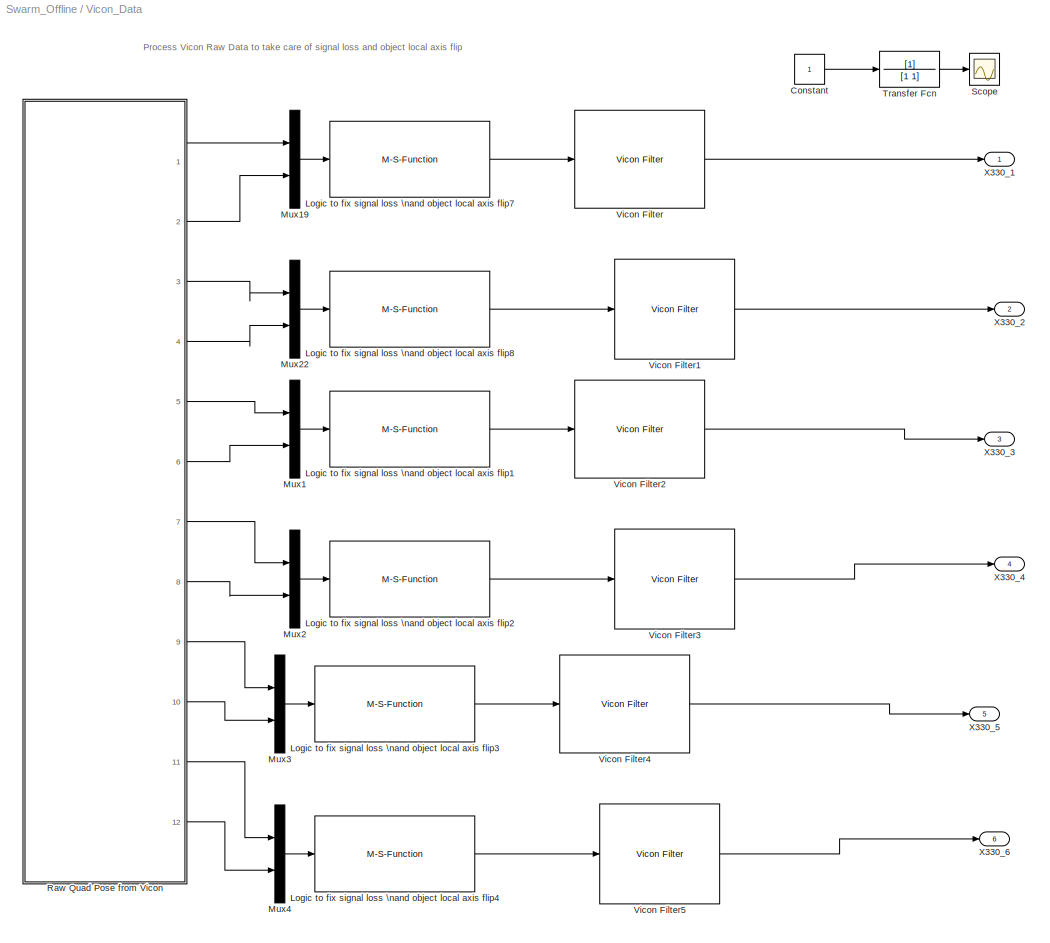
BLOCK [SubSystem] Vicon_Data
  FunctionWithSeparateData = off
  MaskHideContents = off
  MinAlgLoopOccurrences = off
  Opaque = off
  Ports = [0, 6]
  PropExecContextOutsideSubsystem = off
  RTWSystemCode = Auto
  RequestExecContextInheritance = off
  SID = 622
BLOCK [Constant] Vicon_Data/Constant
  SID = 2834
  SampleTime = 5
BLOCK [M-S-Function] Vicon_Data/Logic to fix signal loss \nand object local axis flip1
  FunctionName = Vicon_Filter
  Ports = [1, 1]
  SID = 1865
BLOCK [M-S-Function] Vicon_Data/Logic to fix signal loss \nand object local axis flip2
  FunctionName = Vicon_Filter
  Ports = [1, 1]
  SID = 1866
BLOCK [M-S-Function] Vicon_Data/Logic to fix signal loss \nand object local axis flip3
  FunctionName = Vicon_Filter
  Ports = [1, 1]
  SID = 1873
BLOCK [M-S-Function] Vicon_Data/Logic to fix signal loss \nand object local axis flip4
  FunctionName = Vicon_Filter
  Ports = [1, 1]
  SID = 1874
BLOCK [M-S-Function] Vicon_Data/Logic to fix signal loss \nand object local axis flip7
  FunctionName = Vicon_Filter
  Ports = [1, 1]
  SID = 1426
BLOCK [M-S-Function] Vicon_Data/Logic to fix signal loss \nand object local axis flip8
  FunctionName = Vicon_Filter
  Ports = [1, 1]
  SID = 1501
BLOCK [Mux] Vicon_Data/Mux1
  DisplayOption = bar
  Inputs = 2
  Ports = [2, 1]
  SID = 1867
BLOCK [Mux] Vicon_Data/Mux19
  DisplayOption = bar
  Inputs = 2
  Ports = [2, 1]
  SID = 1427
BLOCK [Mux] Vicon_Data/Mux2
  DisplayOption = bar
  Inputs = 2
  Ports = [2, 1]
  SID = 1868
BLOCK [Mux] Vicon_Data/Mux22
  DisplayOption = bar
  Inputs = 2
  Ports = [2, 1]
  SID = 1502
BLOCK [Mux] Vicon_Data/Mux3
  DisplayOption = bar
  Inputs = 2
  Ports = [2, 1]
  SID = 1875
BLOCK [Mux] Vicon_Data/Mux4
  DisplayOption = bar
  Inputs = 2
  Ports = [2, 1]
  SID = 1876
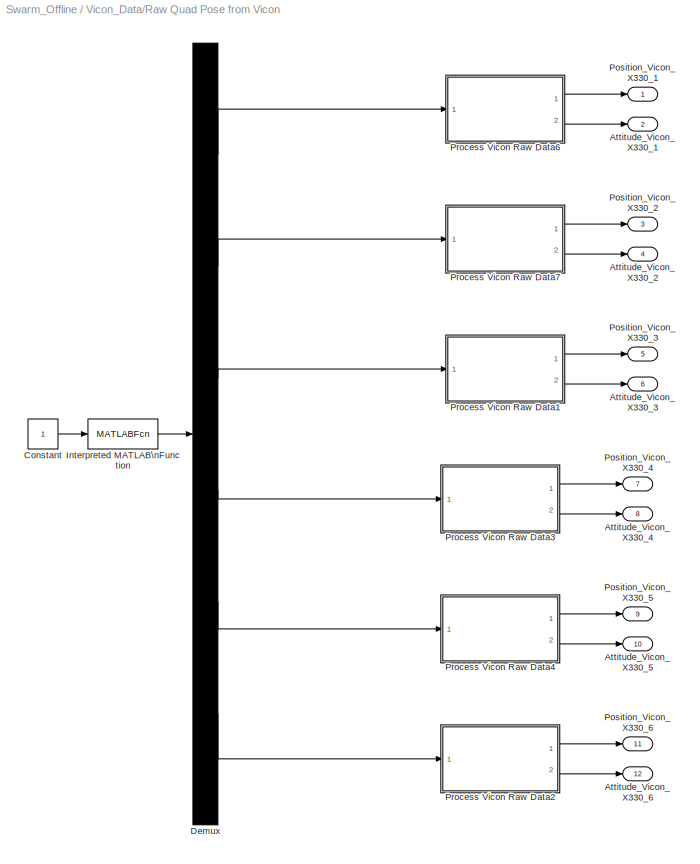
BLOCK [SubSystem] Vicon_Data/Raw Quad Pose from Vicon
  FunctionWithSeparateData = off
  MaskHideContents = off
  MinAlgLoopOccurrences = off
  Opaque = off
  Ports = [0, 12]
  PropExecContextOutsideSubsystem = off
  RTWSystemCode = Auto
  RequestExecContextInheritance = off
  SID = 675
BLOCK [Outport] Vicon_Data/Raw Quad Pose from Vicon/Attitude_Vicon_X330_1
  IconDisplay = Port number
  Port = 2
  SID = 1403
BLOCK [Outport] Vicon_Data/Raw Quad Pose from Vicon/Attitude_Vicon_X330_2
  IconDisplay = Port number
  Port = 4
  SID = 1478
BLOCK [Outport] Vicon_Data/Raw Quad Pose from Vicon/Attitude_Vicon_X330_3
  IconDisplay = Port number
  Port = 6
  SID = 1731
BLOCK [Outport] Vicon_Data/Raw Quad Pose from Vicon/Attitude_Vicon_X330_4
  IconDisplay = Port number
  Port = 8
  SID = 1847
BLOCK [Outport] Vicon_Data/Raw Quad Pose from Vicon/Attitude_Vicon_X330_5
  IconDisplay = Port number
  Port = 10
  SID = 1849
BLOCK [Outport] Vicon_Data/Raw Quad Pose from Vicon/Attitude_Vicon_X330_6
  IconDisplay = Port number
  Port = 12
  SID = 1851
BLOCK [Constant] Vicon_Data/Raw Quad Pose from Vicon/Constant
  SID = 1431
  SampleTime = sample_time
BLOCK [Demux] Vicon_Data/Raw Quad Pose from Vicon/Demux
  DisplayOption = bar
  Outputs = 6
  Ports = [1, 6]
  SID = 677
BLOCK [MATLABFcn] Vicon_Data/Raw Quad Pose from Vicon/Interpreted MATLAB\nFunction
  MATLABFcn = GetViconPose_330_6Quad
  Ports = [1, 1]
  SID = 678
BLOCK [Outport] Vicon_Data/Raw Quad Pose from Vicon/Position_Vicon_X330_1
  IconDisplay = Port number
  SID = 1402
BLOCK [Outport] Vicon_Data/Raw Quad Pose from Vicon/Position_Vicon_X330_2
  IconDisplay = Port number
  Port = 3
  SID = 1477
BLOCK [Outport] Vicon_Data/Raw Quad Pose from Vicon/Position_Vicon_X330_3
  IconDisplay = Port number
  Port = 5
  SID = 1730
BLOCK [Outport] Vicon_Data/Raw Quad Pose from Vicon/Position_Vicon_X330_4
  IconDisplay = Port number
  Port = 7
  SID = 1846
BLOCK [Outport] Vicon_Data/Raw Quad Pose from Vicon/Position_Vicon_X330_5
  IconDisplay = Port number
  Port = 9
  SID = 1848
BLOCK [Outport] Vicon_Data/Raw Quad Pose from Vicon/Position_Vicon_X330_6
  IconDisplay = Port number
  Port = 11
  SID = 1850
BLOCK [SubSystem] Vicon_Data/Raw Quad Pose from Vicon/Process Vicon Raw Data1
  FunctionWithSeparateData = off
  MaskHideContents = off
  MinAlgLoopOccurrences = off
  Opaque = off
  Ports = [1, 2]
  PropExecContextOutsideSubsystem = off
  RTWSystemCode = Auto
  RequestExecContextInheritance = off
  SID = 1692
BLOCK [Sum] Vicon_Data/Raw Quad Pose from Vicon/Process Vicon Raw Data1/Add1
  InputSameDT = off
  Inputs = -+
  OutDataTypeStr = Inherit: Inherit via internal rule
  Ports = [2, 1]
  SID = 1694
  SaturateOnIntegerOverflow = off
BLOCK [Outport] Vicon_Data/Raw Quad Pose from Vicon/Process Vicon Raw Data1/Attitude
  IconDisplay = Port number
  Port = 2
  SID = 1729
BLOCK [Constant] Vicon_Data/Raw Quad Pose from Vicon/Process Vicon Raw Data1/Constant1
  OutDataTypeStr = double
  SID = 1695
  Value = pi
BLOCK [Demux] Vicon_Data/Raw Quad Pose from Vicon/Process Vicon Raw Data1/Demux
  DisplayOption = bar
  Outputs = 6
  Ports = [1, 6]
  SID = 1696
BLOCK [SubSystem] Vicon_Data/Raw Quad Pose from Vicon/Process Vicon Raw Data1/Flip_pi1
  FunctionWithSeparateData = off
  MaskDescription = Flips the inputs into the range -pi to pi
  MaskDisplay = disp('Flip_pi')
  MaskHelp = Flips the inputs into the range -pi to pi
  MaskHideContents = off
  MaskIconFrame = on
  MaskIconOpaque = on
  MaskIconRotate = none
  MaskIconUnits = autoscale
  MaskPortRotate = default
  MaskType = Flip -pi to pi
  MinAlgLoopOccurrences = off
  Opaque = off
  Ports = [1, 1]
  PropExecContextOutsideSubsystem = off
  RTWSystemCode = Auto
  RequestExecContextInheritance = off
  SID = 1697
BLOCK [Sum] Vicon_Data/Raw Quad Pose from Vicon/Process Vicon Raw Data1/Flip_pi1/Add
  InputSameDT = off
  Inputs = -+
  OutDataTypeStr = Inherit: Inherit via internal rule
  Ports = [2, 1]
  SID = 1699
  SaturateOnIntegerOverflow = off
BLOCK [Inport] Vicon_Data/Raw Quad Pose from Vicon/Process Vicon Raw Data1/Flip_pi1/Angle
  IconDisplay = Port number
  SID = 1698
BLOCK [Outport] Vicon_Data/Raw Quad Pose from Vicon/Process Vicon Raw Data1/Flip_pi1/Angle_Flip
  IconDisplay = Port number
  SID = 1721
BLOCK [Reference] Vicon_Data/Raw Quad Pose from Vicon/Process Vicon Raw Data1/Flip_pi1/Compare\nTo Constant1  REF=simulink/Logic and Bit\nOperations/Compare\nTo Constant
  FunctionWithSeparateData = off
  GeneratePreprocessorConditionals = off
  LogicOutDataTypeMode = uint8
  Ports = [1, 1]
  RTWMemSecDataConstants = Inherit from model
  RTWMemSecDataInternal = Inherit from model
  RTWMemSecDataParameters = Inherit from model
  RTWMemSecFuncExecute = Inherit from model
  RTWMemSecFuncInitTerm = Inherit from model
  SID = 1700
  ShowPortLabels = FromPortIcon
  SourceBlock = simulink/Logic and Bit\nOperations/Compare\nTo Constant
  SourceType = Compare To Constant
  SystemSampleTime = -1
  ZeroCross = off
  const = pi
  relop = >
BLOCK [Constant] Vicon_Data/Raw Quad Pose from Vicon/Process Vicon Raw Data1/Flip_pi1/Constant
  SID = 1701
  Value = 2*pi
BLOCK [DataTypeDuplicate] Vicon_Data/Raw Quad Pose from Vicon/Process Vicon Raw Data1/Flip_pi1/Data Type\nDuplicate
  Ports = [2]
  SID = 1702
BLOCK [SubSystem] Vicon_Data/Raw Quad Pose from Vicon/Process Vicon Raw Data1/Flip_pi1/Flip_0_to_2pi
  FunctionWithSeparateData = off
  MaskDescription = Flips the inputs into the range zero to +2pi
  MaskDisplay = disp('Flip_0_2pi')
  MaskHelp = Flips the inputs into the range zero to +2pi
  MaskHideContents = off
  MaskIconFrame = on
  MaskIconOpaque = on
  MaskIconRotate = none
  MaskIconUnits = autoscale
  MaskPortRotate = default
  MaskType = Flip zero to 2pi
  MinAlgLoopOccurrences = off
  Opaque = off
  Ports = [1, 1]
  PropExecContextOutsideSubsystem = off
  RTWSystemCode = Auto
  RequestExecContextInheritance = off
  SID = 1703
BLOCK [Sum] Vicon_Data/Raw Quad Pose from Vicon/Process Vicon Raw Data1/Flip_pi1/Flip_0_to_2pi/Add
  InputSameDT = off
  OutDataTypeStr = Inherit: Inherit via internal rule
  Ports = [2, 1]
  SID = 1705
  SaturateOnIntegerOverflow = off
BLOCK [Inport] Vicon_Data/Raw Quad Pose from Vicon/Process Vicon Raw Data1/Flip_pi1/Flip_0_to_2pi/Angle
  IconDisplay = Port number
  SID = 1704
BLOCK [Outport] Vicon_Data/Raw Quad Pose from Vicon/Process Vicon Raw Data1/Flip_pi1/Flip_0_to_2pi/Angle_Flip
  IconDisplay = Port number
  SID = 1719
BLOCK [Reference] Vicon_Data/Raw Quad Pose from Vicon/Process Vicon Raw Data1/Flip_pi1/Flip_0_to_2pi/Compare\nTo Constant1  REF=simulink/Logic and Bit\nOperations/Compare\nTo Constant
  FunctionWithSeparateData = off
  GeneratePreprocessorConditionals = off
  LogicOutDataTypeMode = uint8
  Ports = [1, 1]
  RTWMemSecDataConstants = Inherit from model
  RTWMemSecDataInternal = Inherit from model
  RTWMemSecDataParameters = Inherit from model
  RTWMemSecFuncExecute = Inherit from model
  RTWMemSecFuncInitTerm = Inherit from model
  SID = 1706
  ShowPortLabels = FromPortIcon
  SourceBlock = simulink/Logic and Bit\nOperations/Compare\nTo Constant
  SourceType = Compare To Constant
  SystemSampleTime = -1
  ZeroCross = off
  const = 0
  relop = <
BLOCK [Constant] Vicon_Data/Raw Quad Pose from Vicon/Process Vicon Raw Data1/Flip_pi1/Flip_0_to_2pi/Constant
  SID = 1707
  Value = 2*pi
BLOCK [DataTypeDuplicate] Vicon_Data/Raw Quad Pose from Vicon/Process Vicon Raw Data1/Flip_pi1/Flip_0_to_2pi/Data Type\nDuplicate
  Ports = [2]
  SID = 1708
BLOCK [SubSystem] Vicon_Data/Raw Quad Pose from Vicon/Process Vicon Raw Data1/Flip_pi1/Flip_0_to_2pi/Flip_2pi
  FunctionWithSeparateData = off
  MaskDescription = Flips the inputs into the range -2pi to +2pi
  MaskDisplay = disp('Flip_2pi')
  MaskHelp = Flips the inputs into the range -2pi to +2pi
  MaskHideContents = off
  MaskIconFrame = on
  MaskIconOpaque = on
  MaskIconRotate = none
  MaskIconUnits = autoscale
  MaskPortRotate = default
  MaskType = Flip -2pi to 2pi
  MinAlgLoopOccurrences = off
  Opaque = off
  Ports = [1, 1]
  PropExecContextOutsideSubsystem = off
  RTWSystemCode = Auto
  RequestExecContextInheritance = off
  SID = 1709
BLOCK [Inport] Vicon_Data/Raw Quad Pose from Vicon/Process Vicon Raw Data1/Flip_pi1/Flip_0_to_2pi/Flip_2pi/Angle
  IconDisplay = Port number
  SID = 1710
BLOCK [Outport] Vicon_Data/Raw Quad Pose from Vicon/Process Vicon Raw Data1/Flip_pi1/Flip_0_to_2pi/Flip_2pi/Angle_Flip
  IconDisplay = Port number
  SID = 1717
BLOCK [Bias] Vicon_Data/Raw Quad Pose from Vicon/Process Vicon Raw Data1/Flip_pi1/Flip_0_to_2pi/Flip_2pi/Bias
  Bias = -2*pi
  SID = 1711
  SaturateOnIntegerOverflow = off
BLOCK [Constant] Vicon_Data/Raw Quad Pose from Vicon/Process Vicon Raw Data1/Flip_pi1/Flip_0_to_2pi/Flip_2pi/Constant
  SID = 1712
  Value = 2*pi
BLOCK [DataTypeDuplicate] Vicon_Data/Raw Quad Pose from Vicon/Process Vicon Raw Data1/Flip_pi1/Flip_0_to_2pi/Flip_2pi/Data Type\nDuplicate
  Ports = [2]
  SID = 1713
BLOCK [Math] Vicon_Data/Raw Quad Pose from Vicon/Process Vicon Raw Data1/Flip_pi1/Flip_0_to_2pi/Flip_2pi/Modulo
  Operator = mod
  Ports = [2, 1]
  SID = 1714
BLOCK [Signum] Vicon_Data/Raw Quad Pose from Vicon/Process Vicon Raw Data1/Flip_pi1/Flip_0_to_2pi/Flip_2pi/Sign1
  SID = 1715
BLOCK [Switch] Vicon_Data/Raw Quad Pose from Vicon/Process Vicon Raw Data1/Flip_pi1/Flip_0_to_2pi/Flip_2pi/Switch
  InputSameDT = off
  SID = 1716
  SaturateOnIntegerOverflow = off
BLOCK [Switch] Vicon_Data/Raw Quad Pose from Vicon/Process Vicon Raw Data1/Flip_pi1/Flip_0_to_2pi/Switch
  Criteria = u2 ~= 0
  InputSameDT = off
  SID = 1718
  SaturateOnIntegerOverflow = off
BLOCK [Switch] Vicon_Data/Raw Quad Pose from Vicon/Process Vicon Raw Data1/Flip_pi1/Switch
  Criteria = u2 ~= 0
  InputSameDT = off
  SID = 1720
  SaturateOnIntegerOverflow = off
BLOCK [Gain] Vicon_Data/Raw Quad Pose from Vicon/Process Vicon Raw Data1/Gain1
  Gain = 0.001
  OutDataTypeStr = Inherit: Inherit via internal rule
  ParamDataTypeStr = Inherit: Inherit via internal rule
  SID = 1722
  SaturateOnIntegerOverflow = off
BLOCK [Gain] Vicon_Data/Raw Quad Pose from Vicon/Process Vicon Raw Data1/Gain3
  Gain = -1
  OutDataTypeStr = Inherit: Inherit via internal rule
  ParamDataTypeStr = Inherit: Inherit via internal rule
  SID = 1723
  SaturateOnIntegerOverflow = off
BLOCK [Gain] Vicon_Data/Raw Quad Pose from Vicon/Process Vicon Raw Data1/Gain6
  Gain = -0.001
  OutDataTypeStr = Inherit: Inherit via internal rule
  ParamDataTypeStr = Inherit: Inherit via internal rule
  SID = 1724
  SaturateOnIntegerOverflow = off
BLOCK [Gain] Vicon_Data/Raw Quad Pose from Vicon/Process Vicon Raw Data1/Gain7
  Gain = -0.001
  OutDataTypeStr = Inherit: Inherit via internal rule
  ParamDataTypeStr = Inherit: Inherit via internal rule
  SID = 1725
  SaturateOnIntegerOverflow = off
BLOCK [Concatenate] Vicon_Data/Raw Quad Pose from Vicon/Process Vicon Raw Data1/Matrix\nConcatenate1
  Mode = Multidimensional array
  NumInputs = 3
  Ports = [3, 1]
  SID = 1726
BLOCK [Concatenate] Vicon_Data/Raw Quad Pose from Vicon/Process Vicon Raw Data1/Matrix\nConcatenate13
  Mode = Multidimensional array
  NumInputs = 3
  Ports = [3, 1]
  SID = 1727
BLOCK [Outport] Vicon_Data/Raw Quad Pose from Vicon/Process Vicon Raw Data1/Position
  IconDisplay = Port number
  SID = 1728
BLOCK [Inport] Vicon_Data/Raw Quad Pose from Vicon/Process Vicon Raw Data1/Vicon Raw
  IconDisplay = Port number
  SID = 1693
BLOCK [SubSystem] Vicon_Data/Raw Quad Pose from Vicon/Process Vicon Raw Data2
  FunctionWithSeparateData = off
  MaskHideContents = off
  MinAlgLoopOccurrences = off
  Opaque = off
  Ports = [1, 2]
  PropExecContextOutsideSubsystem = off
  RTWSystemCode = Auto
  RequestExecContextInheritance = off
  SID = 1732
BLOCK [Sum] Vicon_Data/Raw Quad Pose from Vicon/Process Vicon Raw Data2/Add1
  InputSameDT = off
  Inputs = -+
  OutDataTypeStr = Inherit: Inherit via internal rule
  Ports = [2, 1]
  SID = 1734
  SaturateOnIntegerOverflow = off
BLOCK [Outport] Vicon_Data/Raw Quad Pose from Vicon/Process Vicon Raw Data2/Attitude
  IconDisplay = Port number
  Port = 2
  SID = 1769
BLOCK [Constant] Vicon_Data/Raw Quad Pose from Vicon/Process Vicon Raw Data2/Constant1
  OutDataTypeStr = double
  SID = 1735
  Value = pi
BLOCK [Demux] Vicon_Data/Raw Quad Pose from Vicon/Process Vicon Raw Data2/Demux
  DisplayOption = bar
  Outputs = 6
  Ports = [1, 6]
  SID = 1736
BLOCK [SubSystem] Vicon_Data/Raw Quad Pose from Vicon/Process Vicon Raw Data2/Flip_pi1
  FunctionWithSeparateData = off
  MaskDescription = Flips the inputs into the range -pi to pi
  MaskDisplay = disp('Flip_pi')
  MaskHelp = Flips the inputs into the range -pi to pi
  MaskHideContents = off
  MaskIconFrame = on
  MaskIconOpaque = on
  MaskIconRotate = none
  MaskIconUnits = autoscale
  MaskPortRotate = default
  MaskType = Flip -pi to pi
  MinAlgLoopOccurrences = off
  Opaque = off
  Ports = [1, 1]
  PropExecContextOutsideSubsystem = off
  RTWSystemCode = Auto
  RequestExecContextInheritance = off
  SID = 1737
BLOCK [Sum] Vicon_Data/Raw Quad Pose from Vicon/Process Vicon Raw Data2/Flip_pi1/Add
  InputSameDT = off
  Inputs = -+
  OutDataTypeStr = Inherit: Inherit via internal rule
  Ports = [2, 1]
  SID = 1739
  SaturateOnIntegerOverflow = off
BLOCK [Inport] Vicon_Data/Raw Quad Pose from Vicon/Process Vicon Raw Data2/Flip_pi1/Angle
  IconDisplay = Port number
  SID = 1738
BLOCK [Outport] Vicon_Data/Raw Quad Pose from Vicon/Process Vicon Raw Data2/Flip_pi1/Angle_Flip
  IconDisplay = Port number
  SID = 1761
BLOCK [Reference] Vicon_Data/Raw Quad Pose from Vicon/Process Vicon Raw Data2/Flip_pi1/Compare\nTo Constant1  REF=simulink/Logic and Bit\nOperations/Compare\nTo Constant
  FunctionWithSeparateData = off
  GeneratePreprocessorConditionals = off
  LogicOutDataTypeMode = uint8
  Ports = [1, 1]
  RTWMemSecDataConstants = Inherit from model
  RTWMemSecDataInternal = Inherit from model
  RTWMemSecDataParameters = Inherit from model
  RTWMemSecFuncExecute = Inherit from model
  RTWMemSecFuncInitTerm = Inherit from model
  SID = 1740
  ShowPortLabels = FromPortIcon
  SourceBlock = simulink/Logic and Bit\nOperations/Compare\nTo Constant
  SourceType = Compare To Constant
  SystemSampleTime = -1
  ZeroCross = off
  const = pi
  relop = >
BLOCK [Constant] Vicon_Data/Raw Quad Pose from Vicon/Process Vicon Raw Data2/Flip_pi1/Constant
  SID = 1741
  Value = 2*pi
BLOCK [DataTypeDuplicate] Vicon_Data/Raw Quad Pose from Vicon/Process Vicon Raw Data2/Flip_pi1/Data Type\nDuplicate
  Ports = [2]
  SID = 1742
BLOCK [SubSystem] Vicon_Data/Raw Quad Pose from Vicon/Process Vicon Raw Data2/Flip_pi1/Flip_0_to_2pi
  FunctionWithSeparateData = off
  MaskDescription = Flips the inputs into the range zero to +2pi
  MaskDisplay = disp('Flip_0_2pi')
  MaskHelp = Flips the inputs into the range zero to +2pi
  MaskHideContents = off
  MaskIconFrame = on
  MaskIconOpaque = on
  MaskIconRotate = none
  MaskIconUnits = autoscale
  MaskPortRotate = default
  MaskType = Flip zero to 2pi
  MinAlgLoopOccurrences = off
  Opaque = off
  Ports = [1, 1]
  PropExecContextOutsideSubsystem = off
  RTWSystemCode = Auto
  RequestExecContextInheritance = off
  SID = 1743
BLOCK [Sum] Vicon_Data/Raw Quad Pose from Vicon/Process Vicon Raw Data2/Flip_pi1/Flip_0_to_2pi/Add
  InputSameDT = off
  OutDataTypeStr = Inherit: Inherit via internal rule
  Ports = [2, 1]
  SID = 1745
  SaturateOnIntegerOverflow = off
BLOCK [Inport] Vicon_Data/Raw Quad Pose from Vicon/Process Vicon Raw Data2/Flip_pi1/Flip_0_to_2pi/Angle
  IconDisplay = Port number
  SID = 1744
BLOCK [Outport] Vicon_Data/Raw Quad Pose from Vicon/Process Vicon Raw Data2/Flip_pi1/Flip_0_to_2pi/Angle_Flip
  IconDisplay = Port number
  SID = 1759
BLOCK [Reference] Vicon_Data/Raw Quad Pose from Vicon/Process Vicon Raw Data2/Flip_pi1/Flip_0_to_2pi/Compare\nTo Constant1  REF=simulink/Logic and Bit\nOperations/Compare\nTo Constant
  FunctionWithSeparateData = off
  GeneratePreprocessorConditionals = off
  LogicOutDataTypeMode = uint8
  Ports = [1, 1]
  RTWMemSecDataConstants = Inherit from model
  RTWMemSecDataInternal = Inherit from model
  RTWMemSecDataParameters = Inherit from model
  RTWMemSecFuncExecute = Inherit from model
  RTWMemSecFuncInitTerm = Inherit from model
  SID = 1746
  ShowPortLabels = FromPortIcon
  SourceBlock = simulink/Logic and Bit\nOperations/Compare\nTo Constant
  SourceType = Compare To Constant
  SystemSampleTime = -1
  ZeroCross = off
  const = 0
  relop = <
BLOCK [Constant] Vicon_Data/Raw Quad Pose from Vicon/Process Vicon Raw Data2/Flip_pi1/Flip_0_to_2pi/Constant
  SID = 1747
  Value = 2*pi
BLOCK [DataTypeDuplicate] Vicon_Data/Raw Quad Pose from Vicon/Process Vicon Raw Data2/Flip_pi1/Flip_0_to_2pi/Data Type\nDuplicate
  Ports = [2]
  SID = 1748
BLOCK [SubSystem] Vicon_Data/Raw Quad Pose from Vicon/Process Vicon Raw Data2/Flip_pi1/Flip_0_to_2pi/Flip_2pi
  FunctionWithSeparateData = off
  MaskDescription = Flips the inputs into the range -2pi to +2pi
  MaskDisplay = disp('Flip_2pi')
  MaskHelp = Flips the inputs into the range -2pi to +2pi
  MaskHideContents = off
  MaskIconFrame = on
  MaskIconOpaque = on
  MaskIconRotate = none
  MaskIconUnits = autoscale
  MaskPortRotate = default
  MaskType = Flip -2pi to 2pi
  MinAlgLoopOccurrences = off
  Opaque = off
  Ports = [1, 1]
  PropExecContextOutsideSubsystem = off
  RTWSystemCode = Auto
  RequestExecContextInheritance = off
  SID = 1749
BLOCK [Inport] Vicon_Data/Raw Quad Pose from Vicon/Process Vicon Raw Data2/Flip_pi1/Flip_0_to_2pi/Flip_2pi/Angle
  IconDisplay = Port number
  SID = 1750
BLOCK [Outport] Vicon_Data/Raw Quad Pose from Vicon/Process Vicon Raw Data2/Flip_pi1/Flip_0_to_2pi/Flip_2pi/Angle_Flip
  IconDisplay = Port number
  SID = 1757
BLOCK [Bias] Vicon_Data/Raw Quad Pose from Vicon/Process Vicon Raw Data2/Flip_pi1/Flip_0_to_2pi/Flip_2pi/Bias
  Bias = -2*pi
  SID = 1751
  SaturateOnIntegerOverflow = off
BLOCK [Constant] Vicon_Data/Raw Quad Pose from Vicon/Process Vicon Raw Data2/Flip_pi1/Flip_0_to_2pi/Flip_2pi/Constant
  SID = 1752
  Value = 2*pi
BLOCK [DataTypeDuplicate] Vicon_Data/Raw Quad Pose from Vicon/Process Vicon Raw Data2/Flip_pi1/Flip_0_to_2pi/Flip_2pi/Data Type\nDuplicate
  Ports = [2]
  SID = 1753
BLOCK [Math] Vicon_Data/Raw Quad Pose from Vicon/Process Vicon Raw Data2/Flip_pi1/Flip_0_to_2pi/Flip_2pi/Modulo
  Operator = mod
  Ports = [2, 1]
  SID = 1754
BLOCK [Signum] Vicon_Data/Raw Quad Pose from Vicon/Process Vicon Raw Data2/Flip_pi1/Flip_0_to_2pi/Flip_2pi/Sign1
  SID = 1755
BLOCK [Switch] Vicon_Data/Raw Quad Pose from Vicon/Process Vicon Raw Data2/Flip_pi1/Flip_0_to_2pi/Flip_2pi/Switch
  InputSameDT = off
  SID = 1756
  SaturateOnIntegerOverflow = off
BLOCK [Switch] Vicon_Data/Raw Quad Pose from Vicon/Process Vicon Raw Data2/Flip_pi1/Flip_0_to_2pi/Switch
  Criteria = u2 ~= 0
  InputSameDT = off
  SID = 1758
  SaturateOnIntegerOverflow = off
BLOCK [Switch] Vicon_Data/Raw Quad Pose from Vicon/Process Vicon Raw Data2/Flip_pi1/Switch
  Criteria = u2 ~= 0
  InputSameDT = off
  SID = 1760
  SaturateOnIntegerOverflow = off
BLOCK [Gain] Vicon_Data/Raw Quad Pose from Vicon/Process Vicon Raw Data2/Gain1
  Gain = 0.001
  OutDataTypeStr = Inherit: Inherit via internal rule
  ParamDataTypeStr = Inherit: Inherit via internal rule
  SID = 1762
  SaturateOnIntegerOverflow = off
BLOCK [Gain] Vicon_Data/Raw Quad Pose from Vicon/Process Vicon Raw Data2/Gain3
  Gain = -1
  OutDataTypeStr = Inherit: Inherit via internal rule
  ParamDataTypeStr = Inherit: Inherit via internal rule
  SID = 1763
  SaturateOnIntegerOverflow = off
BLOCK [Gain] Vicon_Data/Raw Quad Pose from Vicon/Process Vicon Raw Data2/Gain6
  Gain = -0.001
  OutDataTypeStr = Inherit: Inherit via internal rule
  ParamDataTypeStr = Inherit: Inherit via internal rule
  SID = 1764
  SaturateOnIntegerOverflow = off
BLOCK [Gain] Vicon_Data/Raw Quad Pose from Vicon/Process Vicon Raw Data2/Gain7
  Gain = -0.001
  OutDataTypeStr = Inherit: Inherit via internal rule
  ParamDataTypeStr = Inherit: Inherit via internal rule
  SID = 1765
  SaturateOnIntegerOverflow = off
BLOCK [Concatenate] Vicon_Data/Raw Quad Pose from Vicon/Process Vicon Raw Data2/Matrix\nConcatenate1
  Mode = Multidimensional array
  NumInputs = 3
  Ports = [3, 1]
  SID = 1766
BLOCK [Concatenate] Vicon_Data/Raw Quad Pose from Vicon/Process Vicon Raw Data2/Matrix\nConcatenate13
  Mode = Multidimensional array
  NumInputs = 3
  Ports = [3, 1]
  SID = 1767
BLOCK [Outport] Vicon_Data/Raw Quad Pose from Vicon/Process Vicon Raw Data2/Position
  IconDisplay = Port number
  SID = 1768
BLOCK [Inport] Vicon_Data/Raw Quad Pose from Vicon/Process Vicon Raw Data2/Vicon Raw
  IconDisplay = Port number
  SID = 1733
BLOCK [SubSystem] Vicon_Data/Raw Quad Pose from Vicon/Process Vicon Raw Data3
  FunctionWithSeparateData = off
  MaskHideContents = off
  MinAlgLoopOccurrences = off
  Opaque = off
  Ports = [1, 2]
  PropExecContextOutsideSubsystem = off
  RTWSystemCode = Auto
  RequestExecContextInheritance = off
  SID = 1770
BLOCK [Sum] Vicon_Data/Raw Quad Pose from Vicon/Process Vicon Raw Data3/Add1
  InputSameDT = off
  Inputs = -+
  OutDataTypeStr = Inherit: Inherit via internal rule
  Ports = [2, 1]
  SID = 1772
  SaturateOnIntegerOverflow = off
BLOCK [Outport] Vicon_Data/Raw Quad Pose from Vicon/Process Vicon Raw Data3/Attitude
  IconDisplay = Port number
  Port = 2
  SID = 1807
BLOCK [Constant] Vicon_Data/Raw Quad Pose from Vicon/Process Vicon Raw Data3/Constant1
  OutDataTypeStr = double
  SID = 1773
  Value = pi
BLOCK [Demux] Vicon_Data/Raw Quad Pose from Vicon/Process Vicon Raw Data3/Demux
  DisplayOption = bar
  Outputs = 6
  Ports = [1, 6]
  SID = 1774
BLOCK [SubSystem] Vicon_Data/Raw Quad Pose from Vicon/Process Vicon Raw Data3/Flip_pi1
  FunctionWithSeparateData = off
  MaskDescription = Flips the inputs into the range -pi to pi
  MaskDisplay = disp('Flip_pi')
  MaskHelp = Flips the inputs into the range -pi to pi
  MaskHideContents = off
  MaskIconFrame = on
  MaskIconOpaque = on
  MaskIconRotate = none
  MaskIconUnits = autoscale
  MaskPortRotate = default
  MaskType = Flip -pi to pi
  MinAlgLoopOccurrences = off
  Opaque = off
  Ports = [1, 1]
  PropExecContextOutsideSubsystem = off
  RTWSystemCode = Auto
  RequestExecContextInheritance = off
  SID = 1775
BLOCK [Sum] Vicon_Data/Raw Quad Pose from Vicon/Process Vicon Raw Data3/Flip_pi1/Add
  InputSameDT = off
  Inputs = -+
  OutDataTypeStr = Inherit: Inherit via internal rule
  Ports = [2, 1]
  SID = 1777
  SaturateOnIntegerOverflow = off
BLOCK [Inport] Vicon_Data/Raw Quad Pose from Vicon/Process Vicon Raw Data3/Flip_pi1/Angle
  IconDisplay = Port number
  SID = 1776
BLOCK [Outport] Vicon_Data/Raw Quad Pose from Vicon/Process Vicon Raw Data3/Flip_pi1/Angle_Flip
  IconDisplay = Port number
  SID = 1799
BLOCK [Reference] Vicon_Data/Raw Quad Pose from Vicon/Process Vicon Raw Data3/Flip_pi1/Compare\nTo Constant1  REF=simulink/Logic and Bit\nOperations/Compare\nTo Constant
  FunctionWithSeparateData = off
  GeneratePreprocessorConditionals = off
  LogicOutDataTypeMode = uint8
  Ports = [1, 1]
  RTWMemSecDataConstants = Inherit from model
  RTWMemSecDataInternal = Inherit from model
  RTWMemSecDataParameters = Inherit from model
  RTWMemSecFuncExecute = Inherit from model
  RTWMemSecFuncInitTerm = Inherit from model
  SID = 1778
  ShowPortLabels = FromPortIcon
  SourceBlock = simulink/Logic and Bit\nOperations/Compare\nTo Constant
  SourceType = Compare To Constant
  SystemSampleTime = -1
  ZeroCross = off
  const = pi
  relop = >
BLOCK [Constant] Vicon_Data/Raw Quad Pose from Vicon/Process Vicon Raw Data3/Flip_pi1/Constant
  SID = 1779
  Value = 2*pi
BLOCK [DataTypeDuplicate] Vicon_Data/Raw Quad Pose from Vicon/Process Vicon Raw Data3/Flip_pi1/Data Type\nDuplicate
  Ports = [2]
  SID = 1780
BLOCK [SubSystem] Vicon_Data/Raw Quad Pose from Vicon/Process Vicon Raw Data3/Flip_pi1/Flip_0_to_2pi
  FunctionWithSeparateData = off
  MaskDescription = Flips the inputs into the range zero to +2pi
  MaskDisplay = disp('Flip_0_2pi')
  MaskHelp = Flips the inputs into the range zero to +2pi
  MaskHideContents = off
  MaskIconFrame = on
  MaskIconOpaque = on
  MaskIconRotate = none
  MaskIconUnits = autoscale
  MaskPortRotate = default
  MaskType = Flip zero to 2pi
  MinAlgLoopOccurrences = off
  Opaque = off
  Ports = [1, 1]
  PropExecContextOutsideSubsystem = off
  RTWSystemCode = Auto
  RequestExecContextInheritance = off
  SID = 1781
BLOCK [Sum] Vicon_Data/Raw Quad Pose from Vicon/Process Vicon Raw Data3/Flip_pi1/Flip_0_to_2pi/Add
  InputSameDT = off
  OutDataTypeStr = Inherit: Inherit via internal rule
  Ports = [2, 1]
  SID = 1783
  SaturateOnIntegerOverflow = off
BLOCK [Inport] Vicon_Data/Raw Quad Pose from Vicon/Process Vicon Raw Data3/Flip_pi1/Flip_0_to_2pi/Angle
  IconDisplay = Port number
  SID = 1782
BLOCK [Outport] Vicon_Data/Raw Quad Pose from Vicon/Process Vicon Raw Data3/Flip_pi1/Flip_0_to_2pi/Angle_Flip
  IconDisplay = Port number
  SID = 1797
BLOCK [Reference] Vicon_Data/Raw Quad Pose from Vicon/Process Vicon Raw Data3/Flip_pi1/Flip_0_to_2pi/Compare\nTo Constant1  REF=simulink/Logic and Bit\nOperations/Compare\nTo Constant
  FunctionWithSeparateData = off
  GeneratePreprocessorConditionals = off
  LogicOutDataTypeMode = uint8
  Ports = [1, 1]
  RTWMemSecDataConstants = Inherit from model
  RTWMemSecDataInternal = Inherit from model
  RTWMemSecDataParameters = Inherit from model
  RTWMemSecFuncExecute = Inherit from model
  RTWMemSecFuncInitTerm = Inherit from model
  SID = 1784
  ShowPortLabels = FromPortIcon
  SourceBlock = simulink/Logic and Bit\nOperations/Compare\nTo Constant
  SourceType = Compare To Constant
  SystemSampleTime = -1
  ZeroCross = off
  const = 0
  relop = <
BLOCK [Constant] Vicon_Data/Raw Quad Pose from Vicon/Process Vicon Raw Data3/Flip_pi1/Flip_0_to_2pi/Constant
  SID = 1785
  Value = 2*pi
BLOCK [DataTypeDuplicate] Vicon_Data/Raw Quad Pose from Vicon/Process Vicon Raw Data3/Flip_pi1/Flip_0_to_2pi/Data Type\nDuplicate
  Ports = [2]
  SID = 1786
BLOCK [SubSystem] Vicon_Data/Raw Quad Pose from Vicon/Process Vicon Raw Data3/Flip_pi1/Flip_0_to_2pi/Flip_2pi
  FunctionWithSeparateData = off
  MaskDescription = Flips the inputs into the range -2pi to +2pi
  MaskDisplay = disp('Flip_2pi')
  MaskHelp = Flips the inputs into the range -2pi to +2pi
  MaskHideContents = off
  MaskIconFrame = on
  MaskIconOpaque = on
  MaskIconRotate = none
  MaskIconUnits = autoscale
  MaskPortRotate = default
  MaskType = Flip -2pi to 2pi
  MinAlgLoopOccurrences = off
  Opaque = off
  Ports = [1, 1]
  PropExecContextOutsideSubsystem = off
  RTWSystemCode = Auto
  RequestExecContextInheritance = off
  SID = 1787
BLOCK [Inport] Vicon_Data/Raw Quad Pose from Vicon/Process Vicon Raw Data3/Flip_pi1/Flip_0_to_2pi/Flip_2pi/Angle
  IconDisplay = Port number
  SID = 1788
BLOCK [Outport] Vicon_Data/Raw Quad Pose from Vicon/Process Vicon Raw Data3/Flip_pi1/Flip_0_to_2pi/Flip_2pi/Angle_Flip
  IconDisplay = Port number
  SID = 1795
BLOCK [Bias] Vicon_Data/Raw Quad Pose from Vicon/Process Vicon Raw Data3/Flip_pi1/Flip_0_to_2pi/Flip_2pi/Bias
  Bias = -2*pi
  SID = 1789
  SaturateOnIntegerOverflow = off
BLOCK [Constant] Vicon_Data/Raw Quad Pose from Vicon/Process Vicon Raw Data3/Flip_pi1/Flip_0_to_2pi/Flip_2pi/Constant
  SID = 1790
  Value = 2*pi
BLOCK [DataTypeDuplicate] Vicon_Data/Raw Quad Pose from Vicon/Process Vicon Raw Data3/Flip_pi1/Flip_0_to_2pi/Flip_2pi/Data Type\nDuplicate
  Ports = [2]
  SID = 1791
BLOCK [Math] Vicon_Data/Raw Quad Pose from Vicon/Process Vicon Raw Data3/Flip_pi1/Flip_0_to_2pi/Flip_2pi/Modulo
  Operator = mod
  Ports = [2, 1]
  SID = 1792
BLOCK [Signum] Vicon_Data/Raw Quad Pose from Vicon/Process Vicon Raw Data3/Flip_pi1/Flip_0_to_2pi/Flip_2pi/Sign1
  SID = 1793
BLOCK [Switch] Vicon_Data/Raw Quad Pose from Vicon/Process Vicon Raw Data3/Flip_pi1/Flip_0_to_2pi/Flip_2pi/Switch
  InputSameDT = off
  SID = 1794
  SaturateOnIntegerOverflow = off
BLOCK [Switch] Vicon_Data/Raw Quad Pose from Vicon/Process Vicon Raw Data3/Flip_pi1/Flip_0_to_2pi/Switch
  Criteria = u2 ~= 0
  InputSameDT = off
  SID = 1796
  SaturateOnIntegerOverflow = off
BLOCK [Switch] Vicon_Data/Raw Quad Pose from Vicon/Process Vicon Raw Data3/Flip_pi1/Switch
  Criteria = u2 ~= 0
  InputSameDT = off
  SID = 1798
  SaturateOnIntegerOverflow = off
BLOCK [Gain] Vicon_Data/Raw Quad Pose from Vicon/Process Vicon Raw Data3/Gain1
  Gain = 0.001
  OutDataTypeStr = Inherit: Inherit via internal rule
  ParamDataTypeStr = Inherit: Inherit via internal rule
  SID = 1800
  SaturateOnIntegerOverflow = off
BLOCK [Gain] Vicon_Data/Raw Quad Pose from Vicon/Process Vicon Raw Data3/Gain3
  Gain = -1
  OutDataTypeStr = Inherit: Inherit via internal rule
  ParamDataTypeStr = Inherit: Inherit via internal rule
  SID = 1801
  SaturateOnIntegerOverflow = off
BLOCK [Gain] Vicon_Data/Raw Quad Pose from Vicon/Process Vicon Raw Data3/Gain6
  Gain = -0.001
  OutDataTypeStr = Inherit: Inherit via internal rule
  ParamDataTypeStr = Inherit: Inherit via internal rule
  SID = 1802
  SaturateOnIntegerOverflow = off
BLOCK [Gain] Vicon_Data/Raw Quad Pose from Vicon/Process Vicon Raw Data3/Gain7
  Gain = -0.001
  OutDataTypeStr = Inherit: Inherit via internal rule
  ParamDataTypeStr = Inherit: Inherit via internal rule
  SID = 1803
  SaturateOnIntegerOverflow = off
BLOCK [Concatenate] Vicon_Data/Raw Quad Pose from Vicon/Process Vicon Raw Data3/Matrix\nConcatenate1
  Mode = Multidimensional array
  NumInputs = 3
  Ports = [3, 1]
  SID = 1804
BLOCK [Concatenate] Vicon_Data/Raw Quad Pose from Vicon/Process Vicon Raw Data3/Matrix\nConcatenate13
  Mode = Multidimensional array
  NumInputs = 3
  Ports = [3, 1]
  SID = 1805
BLOCK [Outport] Vicon_Data/Raw Quad Pose from Vicon/Process Vicon Raw Data3/Position
  IconDisplay = Port number
  SID = 1806
BLOCK [Inport] Vicon_Data/Raw Quad Pose from Vicon/Process Vicon Raw Data3/Vicon Raw
  IconDisplay = Port number
  SID = 1771
BLOCK [SubSystem] Vicon_Data/Raw Quad Pose from Vicon/Process Vicon Raw Data4
  FunctionWithSeparateData = off
  MaskHideContents = off
  MinAlgLoopOccurrences = off
  Opaque = off
  Ports = [1, 2]
  PropExecContextOutsideSubsystem = off
  RTWSystemCode = Auto
  RequestExecContextInheritance = off
  SID = 1808
BLOCK [Sum] Vicon_Data/Raw Quad Pose from Vicon/Process Vicon Raw Data4/Add1
  InputSameDT = off
  Inputs = -+
  OutDataTypeStr = Inherit: Inherit via internal rule
  Ports = [2, 1]
  SID = 1810
  SaturateOnIntegerOverflow = off
BLOCK [Outport] Vicon_Data/Raw Quad Pose from Vicon/Process Vicon Raw Data4/Attitude
  IconDisplay = Port number
  Port = 2
  SID = 1845
BLOCK [Constant] Vicon_Data/Raw Quad Pose from Vicon/Process Vicon Raw Data4/Constant1
  OutDataTypeStr = double
  SID = 1811
  Value = pi
BLOCK [Demux] Vicon_Data/Raw Quad Pose from Vicon/Process Vicon Raw Data4/Demux
  DisplayOption = bar
  Outputs = 6
  Ports = [1, 6]
  SID = 1812
BLOCK [SubSystem] Vicon_Data/Raw Quad Pose from Vicon/Process Vicon Raw Data4/Flip_pi1
  FunctionWithSeparateData = off
  MaskDescription = Flips the inputs into the range -pi to pi
  MaskDisplay = disp('Flip_pi')
  MaskHelp = Flips the inputs into the range -pi to pi
  MaskHideContents = off
  MaskIconFrame = on
  MaskIconOpaque = on
  MaskIconRotate = none
  MaskIconUnits = autoscale
  MaskPortRotate = default
  MaskType = Flip -pi to pi
  MinAlgLoopOccurrences = off
  Opaque = off
  Ports = [1, 1]
  PropExecContextOutsideSubsystem = off
  RTWSystemCode = Auto
  RequestExecContextInheritance = off
  SID = 1813
BLOCK [Sum] Vicon_Data/Raw Quad Pose from Vicon/Process Vicon Raw Data4/Flip_pi1/Add
  InputSameDT = off
  Inputs = -+
  OutDataTypeStr = Inherit: Inherit via internal rule
  Ports = [2, 1]
  SID = 1815
  SaturateOnIntegerOverflow = off
BLOCK [Inport] Vicon_Data/Raw Quad Pose from Vicon/Process Vicon Raw Data4/Flip_pi1/Angle
  IconDisplay = Port number
  SID = 1814
BLOCK [Outport] Vicon_Data/Raw Quad Pose from Vicon/Process Vicon Raw Data4/Flip_pi1/Angle_Flip
  IconDisplay = Port number
  SID = 1837
BLOCK [Reference] Vicon_Data/Raw Quad Pose from Vicon/Process Vicon Raw Data4/Flip_pi1/Compare\nTo Constant1  REF=simulink/Logic and Bit\nOperations/Compare\nTo Constant
  FunctionWithSeparateData = off
  GeneratePreprocessorConditionals = off
  LogicOutDataTypeMode = uint8
  Ports = [1, 1]
  RTWMemSecDataConstants = Inherit from model
  RTWMemSecDataInternal = Inherit from model
  RTWMemSecDataParameters = Inherit from model
  RTWMemSecFuncExecute = Inherit from model
  RTWMemSecFuncInitTerm = Inherit from model
  SID = 1816
  ShowPortLabels = FromPortIcon
  SourceBlock = simulink/Logic and Bit\nOperations/Compare\nTo Constant
  SourceType = Compare To Constant
  SystemSampleTime = -1
  ZeroCross = off
  const = pi
  relop = >
BLOCK [Constant] Vicon_Data/Raw Quad Pose from Vicon/Process Vicon Raw Data4/Flip_pi1/Constant
  SID = 1817
  Value = 2*pi
BLOCK [DataTypeDuplicate] Vicon_Data/Raw Quad Pose from Vicon/Process Vicon Raw Data4/Flip_pi1/Data Type\nDuplicate
  Ports = [2]
  SID = 1818
BLOCK [SubSystem] Vicon_Data/Raw Quad Pose from Vicon/Process Vicon Raw Data4/Flip_pi1/Flip_0_to_2pi
  FunctionWithSeparateData = off
  MaskDescription = Flips the inputs into the range zero to +2pi
  MaskDisplay = disp('Flip_0_2pi')
  MaskHelp = Flips the inputs into the range zero to +2pi
  MaskHideContents = off
  MaskIconFrame = on
  MaskIconOpaque = on
  MaskIconRotate = none
  MaskIconUnits = autoscale
  MaskPortRotate = default
  MaskType = Flip zero to 2pi
  MinAlgLoopOccurrences = off
  Opaque = off
  Ports = [1, 1]
  PropExecContextOutsideSubsystem = off
  RTWSystemCode = Auto
  RequestExecContextInheritance = off
  SID = 1819
BLOCK [Sum] Vicon_Data/Raw Quad Pose from Vicon/Process Vicon Raw Data4/Flip_pi1/Flip_0_to_2pi/Add
  InputSameDT = off
  OutDataTypeStr = Inherit: Inherit via internal rule
  Ports = [2, 1]
  SID = 1821
  SaturateOnIntegerOverflow = off
BLOCK [Inport] Vicon_Data/Raw Quad Pose from Vicon/Process Vicon Raw Data4/Flip_pi1/Flip_0_to_2pi/Angle
  IconDisplay = Port number
  SID = 1820
BLOCK [Outport] Vicon_Data/Raw Quad Pose from Vicon/Process Vicon Raw Data4/Flip_pi1/Flip_0_to_2pi/Angle_Flip
  IconDisplay = Port number
  SID = 1835
BLOCK [Reference] Vicon_Data/Raw Quad Pose from Vicon/Process Vicon Raw Data4/Flip_pi1/Flip_0_to_2pi/Compare\nTo Constant1  REF=simulink/Logic and Bit\nOperations/Compare\nTo Constant
  FunctionWithSeparateData = off
  GeneratePreprocessorConditionals = off
  LogicOutDataTypeMode = uint8
  Ports = [1, 1]
  RTWMemSecDataConstants = Inherit from model
  RTWMemSecDataInternal = Inherit from model
  RTWMemSecDataParameters = Inherit from model
  RTWMemSecFuncExecute = Inherit from model
  RTWMemSecFuncInitTerm = Inherit from model
  SID = 1822
  ShowPortLabels = FromPortIcon
  SourceBlock = simulink/Logic and Bit\nOperations/Compare\nTo Constant
  SourceType = Compare To Constant
  SystemSampleTime = -1
  ZeroCross = off
  const = 0
  relop = <
BLOCK [Constant] Vicon_Data/Raw Quad Pose from Vicon/Process Vicon Raw Data4/Flip_pi1/Flip_0_to_2pi/Constant
  SID = 1823
  Value = 2*pi
BLOCK [DataTypeDuplicate] Vicon_Data/Raw Quad Pose from Vicon/Process Vicon Raw Data4/Flip_pi1/Flip_0_to_2pi/Data Type\nDuplicate
  Ports = [2]
  SID = 1824
BLOCK [SubSystem] Vicon_Data/Raw Quad Pose from Vicon/Process Vicon Raw Data4/Flip_pi1/Flip_0_to_2pi/Flip_2pi
  FunctionWithSeparateData = off
  MaskDescription = Flips the inputs into the range -2pi to +2pi
  MaskDisplay = disp('Flip_2pi')
  MaskHelp = Flips the inputs into the range -2pi to +2pi
  MaskHideContents = off
  MaskIconFrame = on
  MaskIconOpaque = on
  MaskIconRotate = none
  MaskIconUnits = autoscale
  MaskPortRotate = default
  MaskType = Flip -2pi to 2pi
  MinAlgLoopOccurrences = off
  Opaque = off
  Ports = [1, 1]
  PropExecContextOutsideSubsystem = off
  RTWSystemCode = Auto
  RequestExecContextInheritance = off
  SID = 1825
BLOCK [Inport] Vicon_Data/Raw Quad Pose from Vicon/Process Vicon Raw Data4/Flip_pi1/Flip_0_to_2pi/Flip_2pi/Angle
  IconDisplay = Port number
  SID = 1826
BLOCK [Outport] Vicon_Data/Raw Quad Pose from Vicon/Process Vicon Raw Data4/Flip_pi1/Flip_0_to_2pi/Flip_2pi/Angle_Flip
  IconDisplay = Port number
  SID = 1833
BLOCK [Bias] Vicon_Data/Raw Quad Pose from Vicon/Process Vicon Raw Data4/Flip_pi1/Flip_0_to_2pi/Flip_2pi/Bias
  Bias = -2*pi
  SID = 1827
  SaturateOnIntegerOverflow = off
BLOCK [Constant] Vicon_Data/Raw Quad Pose from Vicon/Process Vicon Raw Data4/Flip_pi1/Flip_0_to_2pi/Flip_2pi/Constant
  SID = 1828
  Value = 2*pi
BLOCK [DataTypeDuplicate] Vicon_Data/Raw Quad Pose from Vicon/Process Vicon Raw Data4/Flip_pi1/Flip_0_to_2pi/Flip_2pi/Data Type\nDuplicate
  Ports = [2]
  SID = 1829
BLOCK [Math] Vicon_Data/Raw Quad Pose from Vicon/Process Vicon Raw Data4/Flip_pi1/Flip_0_to_2pi/Flip_2pi/Modulo
  Operator = mod
  Ports = [2, 1]
  SID = 1830
BLOCK [Signum] Vicon_Data/Raw Quad Pose from Vicon/Process Vicon Raw Data4/Flip_pi1/Flip_0_to_2pi/Flip_2pi/Sign1
  SID = 1831
BLOCK [Switch] Vicon_Data/Raw Quad Pose from Vicon/Process Vicon Raw Data4/Flip_pi1/Flip_0_to_2pi/Flip_2pi/Switch
  InputSameDT = off
  SID = 1832
  SaturateOnIntegerOverflow = off
BLOCK [Switch] Vicon_Data/Raw Quad Pose from Vicon/Process Vicon Raw Data4/Flip_pi1/Flip_0_to_2pi/Switch
  Criteria = u2 ~= 0
  InputSameDT = off
  SID = 1834
  SaturateOnIntegerOverflow = off
BLOCK [Switch] Vicon_Data/Raw Quad Pose from Vicon/Process Vicon Raw Data4/Flip_pi1/Switch
  Criteria = u2 ~= 0
  InputSameDT = off
  SID = 1836
  SaturateOnIntegerOverflow = off
BLOCK [Gain] Vicon_Data/Raw Quad Pose from Vicon/Process Vicon Raw Data4/Gain1
  Gain = 0.001
  OutDataTypeStr = Inherit: Inherit via internal rule
  ParamDataTypeStr = Inherit: Inherit via internal rule
  SID = 1838
  SaturateOnIntegerOverflow = off
BLOCK [Gain] Vicon_Data/Raw Quad Pose from Vicon/Process Vicon Raw Data4/Gain3
  Gain = -1
  OutDataTypeStr = Inherit: Inherit via internal rule
  ParamDataTypeStr = Inherit: Inherit via internal rule
  SID = 1839
  SaturateOnIntegerOverflow = off
BLOCK [Gain] Vicon_Data/Raw Quad Pose from Vicon/Process Vicon Raw Data4/Gain6
  Gain = -0.001
  OutDataTypeStr = Inherit: Inherit via internal rule
  ParamDataTypeStr = Inherit: Inherit via internal rule
  SID = 1840
  SaturateOnIntegerOverflow = off
BLOCK [Gain] Vicon_Data/Raw Quad Pose from Vicon/Process Vicon Raw Data4/Gain7
  Gain = -0.001
  OutDataTypeStr = Inherit: Inherit via internal rule
  ParamDataTypeStr = Inherit: Inherit via internal rule
  SID = 1841
  SaturateOnIntegerOverflow = off
BLOCK [Concatenate] Vicon_Data/Raw Quad Pose from Vicon/Process Vicon Raw Data4/Matrix\nConcatenate1
  Mode = Multidimensional array
  NumInputs = 3
  Ports = [3, 1]
  SID = 1842
BLOCK [Concatenate] Vicon_Data/Raw Quad Pose from Vicon/Process Vicon Raw Data4/Matrix\nConcatenate13
  Mode = Multidimensional array
  NumInputs = 3
  Ports = [3, 1]
  SID = 1843
BLOCK [Outport] Vicon_Data/Raw Quad Pose from Vicon/Process Vicon Raw Data4/Position
  IconDisplay = Port number
  SID = 1844
BLOCK [Inport] Vicon_Data/Raw Quad Pose from Vicon/Process Vicon Raw Data4/Vicon Raw
  IconDisplay = Port number
  SID = 1809
BLOCK [SubSystem] Vicon_Data/Raw Quad Pose from Vicon/Process Vicon Raw Data6
  FunctionWithSeparateData = off
  MaskHideContents = off
  MinAlgLoopOccurrences = off
  Opaque = off
  Ports = [1, 2]
  PropExecContextOutsideSubsystem = off
  RTWSystemCode = Auto
  RequestExecContextInheritance = off
  SID = 1364
BLOCK [Sum] Vicon_Data/Raw Quad Pose from Vicon/Process Vicon Raw Data6/Add1
  InputSameDT = off
  Inputs = -+
  OutDataTypeStr = Inherit: Inherit via internal rule
  Ports = [2, 1]
  SID = 1366
  SaturateOnIntegerOverflow = off
BLOCK [Outport] Vicon_Data/Raw Quad Pose from Vicon/Process Vicon Raw Data6/Attitude
  IconDisplay = Port number
  Port = 2
  SID = 1401
BLOCK [Constant] Vicon_Data/Raw Quad Pose from Vicon/Process Vicon Raw Data6/Constant1
  OutDataTypeStr = double
  SID = 1367
  Value = pi
BLOCK [Demux] Vicon_Data/Raw Quad Pose from Vicon/Process Vicon Raw Data6/Demux
  DisplayOption = bar
  Outputs = 6
  Ports = [1, 6]
  SID = 1368
BLOCK [SubSystem] Vicon_Data/Raw Quad Pose from Vicon/Process Vicon Raw Data6/Flip_pi1
  FunctionWithSeparateData = off
  MaskDescription = Flips the inputs into the range -pi to pi
  MaskDisplay = disp('Flip_pi')
  MaskHelp = Flips the inputs into the range -pi to pi
  MaskHideContents = off
  MaskIconFrame = on
  MaskIconOpaque = on
  MaskIconRotate = none
  MaskIconUnits = autoscale
  MaskPortRotate = default
  MaskType = Flip -pi to pi
  MinAlgLoopOccurrences = off
  Opaque = off
  Ports = [1, 1]
  PropExecContextOutsideSubsystem = off
  RTWSystemCode = Auto
  RequestExecContextInheritance = off
  SID = 1369
BLOCK [Sum] Vicon_Data/Raw Quad Pose from Vicon/Process Vicon Raw Data6/Flip_pi1/Add
  InputSameDT = off
  Inputs = -+
  OutDataTypeStr = Inherit: Inherit via internal rule
  Ports = [2, 1]
  SID = 1371
  SaturateOnIntegerOverflow = off
BLOCK [Inport] Vicon_Data/Raw Quad Pose from Vicon/Process Vicon Raw Data6/Flip_pi1/Angle
  IconDisplay = Port number
  SID = 1370
BLOCK [Outport] Vicon_Data/Raw Quad Pose from Vicon/Process Vicon Raw Data6/Flip_pi1/Angle_Flip
  IconDisplay = Port number
  SID = 1393
BLOCK [Reference] Vicon_Data/Raw Quad Pose from Vicon/Process Vicon Raw Data6/Flip_pi1/Compare\nTo Constant1  REF=simulink/Logic and Bit\nOperations/Compare\nTo Constant
  FunctionWithSeparateData = off
  GeneratePreprocessorConditionals = off
  LogicOutDataTypeMode = uint8
  Ports = [1, 1]
  RTWMemSecDataConstants = Inherit from model
  RTWMemSecDataInternal = Inherit from model
  RTWMemSecDataParameters = Inherit from model
  RTWMemSecFuncExecute = Inherit from model
  RTWMemSecFuncInitTerm = Inherit from model
  SID = 1372
  ShowPortLabels = FromPortIcon
  SourceBlock = simulink/Logic and Bit\nOperations/Compare\nTo Constant
  SourceType = Compare To Constant
  SystemSampleTime = -1
  ZeroCross = off
  const = pi
  relop = >
BLOCK [Constant] Vicon_Data/Raw Quad Pose from Vicon/Process Vicon Raw Data6/Flip_pi1/Constant
  SID = 1373
  Value = 2*pi
BLOCK [DataTypeDuplicate] Vicon_Data/Raw Quad Pose from Vicon/Process Vicon Raw Data6/Flip_pi1/Data Type\nDuplicate
  Ports = [2]
  SID = 1374
BLOCK [SubSystem] Vicon_Data/Raw Quad Pose from Vicon/Process Vicon Raw Data6/Flip_pi1/Flip_0_to_2pi
  FunctionWithSeparateData = off
  MaskDescription = Flips the inputs into the range zero to +2pi
  MaskDisplay = disp('Flip_0_2pi')
  MaskHelp = Flips the inputs into the range zero to +2pi
  MaskHideContents = off
  MaskIconFrame = on
  MaskIconOpaque = on
  MaskIconRotate = none
  MaskIconUnits = autoscale
  MaskPortRotate = default
  MaskType = Flip zero to 2pi
  MinAlgLoopOccurrences = off
  Opaque = off
  Ports = [1, 1]
  PropExecContextOutsideSubsystem = off
  RTWSystemCode = Auto
  RequestExecContextInheritance = off
  SID = 1375
BLOCK [Sum] Vicon_Data/Raw Quad Pose from Vicon/Process Vicon Raw Data6/Flip_pi1/Flip_0_to_2pi/Add
  InputSameDT = off
  OutDataTypeStr = Inherit: Inherit via internal rule
  Ports = [2, 1]
  SID = 1377
  SaturateOnIntegerOverflow = off
BLOCK [Inport] Vicon_Data/Raw Quad Pose from Vicon/Process Vicon Raw Data6/Flip_pi1/Flip_0_to_2pi/Angle
  IconDisplay = Port number
  SID = 1376
BLOCK [Outport] Vicon_Data/Raw Quad Pose from Vicon/Process Vicon Raw Data6/Flip_pi1/Flip_0_to_2pi/Angle_Flip
  IconDisplay = Port number
  SID = 1391
BLOCK [Reference] Vicon_Data/Raw Quad Pose from Vicon/Process Vicon Raw Data6/Flip_pi1/Flip_0_to_2pi/Compare\nTo Constant1  REF=simulink/Logic and Bit\nOperations/Compare\nTo Constant
  FunctionWithSeparateData = off
  GeneratePreprocessorConditionals = off
  LogicOutDataTypeMode = uint8
  Ports = [1, 1]
  RTWMemSecDataConstants = Inherit from model
  RTWMemSecDataInternal = Inherit from model
  RTWMemSecDataParameters = Inherit from model
  RTWMemSecFuncExecute = Inherit from model
  RTWMemSecFuncInitTerm = Inherit from model
  SID = 1378
  ShowPortLabels = FromPortIcon
  SourceBlock = simulink/Logic and Bit\nOperations/Compare\nTo Constant
  SourceType = Compare To Constant
  SystemSampleTime = -1
  ZeroCross = off
  const = 0
  relop = <
BLOCK [Constant] Vicon_Data/Raw Quad Pose from Vicon/Process Vicon Raw Data6/Flip_pi1/Flip_0_to_2pi/Constant
  SID = 1379
  Value = 2*pi
BLOCK [DataTypeDuplicate] Vicon_Data/Raw Quad Pose from Vicon/Process Vicon Raw Data6/Flip_pi1/Flip_0_to_2pi/Data Type\nDuplicate
  Ports = [2]
  SID = 1380
BLOCK [SubSystem] Vicon_Data/Raw Quad Pose from Vicon/Process Vicon Raw Data6/Flip_pi1/Flip_0_to_2pi/Flip_2pi
  FunctionWithSeparateData = off
  MaskDescription = Flips the inputs into the range -2pi to +2pi
  MaskDisplay = disp('Flip_2pi')
  MaskHelp = Flips the inputs into the range -2pi to +2pi
  MaskHideContents = off
  MaskIconFrame = on
  MaskIconOpaque = on
  MaskIconRotate = none
  MaskIconUnits = autoscale
  MaskPortRotate = default
  MaskType = Flip -2pi to 2pi
  MinAlgLoopOccurrences = off
  Opaque = off
  Ports = [1, 1]
  PropExecContextOutsideSubsystem = off
  RTWSystemCode = Auto
  RequestExecContextInheritance = off
  SID = 1381
BLOCK [Inport] Vicon_Data/Raw Quad Pose from Vicon/Process Vicon Raw Data6/Flip_pi1/Flip_0_to_2pi/Flip_2pi/Angle
  IconDisplay = Port number
  SID = 1382
BLOCK [Outport] Vicon_Data/Raw Quad Pose from Vicon/Process Vicon Raw Data6/Flip_pi1/Flip_0_to_2pi/Flip_2pi/Angle_Flip
  IconDisplay = Port number
  SID = 1389
BLOCK [Bias] Vicon_Data/Raw Quad Pose from Vicon/Process Vicon Raw Data6/Flip_pi1/Flip_0_to_2pi/Flip_2pi/Bias
  Bias = -2*pi
  SID = 1383
  SaturateOnIntegerOverflow = off
BLOCK [Constant] Vicon_Data/Raw Quad Pose from Vicon/Process Vicon Raw Data6/Flip_pi1/Flip_0_to_2pi/Flip_2pi/Constant
  SID = 1384
  Value = 2*pi
BLOCK [DataTypeDuplicate] Vicon_Data/Raw Quad Pose from Vicon/Process Vicon Raw Data6/Flip_pi1/Flip_0_to_2pi/Flip_2pi/Data Type\nDuplicate
  Ports = [2]
  SID = 1385
BLOCK [Math] Vicon_Data/Raw Quad Pose from Vicon/Process Vicon Raw Data6/Flip_pi1/Flip_0_to_2pi/Flip_2pi/Modulo
  Operator = mod
  Ports = [2, 1]
  SID = 1386
BLOCK [Signum] Vicon_Data/Raw Quad Pose from Vicon/Process Vicon Raw Data6/Flip_pi1/Flip_0_to_2pi/Flip_2pi/Sign1
  SID = 1387
BLOCK [Switch] Vicon_Data/Raw Quad Pose from Vicon/Process Vicon Raw Data6/Flip_pi1/Flip_0_to_2pi/Flip_2pi/Switch
  InputSameDT = off
  SID = 1388
  SaturateOnIntegerOverflow = off
BLOCK [Switch] Vicon_Data/Raw Quad Pose from Vicon/Process Vicon Raw Data6/Flip_pi1/Flip_0_to_2pi/Switch
  Criteria = u2 ~= 0
  InputSameDT = off
  SID = 1390
  SaturateOnIntegerOverflow = off
BLOCK [Switch] Vicon_Data/Raw Quad Pose from Vicon/Process Vicon Raw Data6/Flip_pi1/Switch
  Criteria = u2 ~= 0
  InputSameDT = off
  SID = 1392
  SaturateOnIntegerOverflow = off
BLOCK [Gain] Vicon_Data/Raw Quad Pose from Vicon/Process Vicon Raw Data6/Gain1
  Gain = 0.001
  OutDataTypeStr = Inherit: Inherit via internal rule
  ParamDataTypeStr = Inherit: Inherit via internal rule
  SID = 1394
  SaturateOnIntegerOverflow = off
BLOCK [Gain] Vicon_Data/Raw Quad Pose from Vicon/Process Vicon Raw Data6/Gain3
  Gain = -1
  OutDataTypeStr = Inherit: Inherit via internal rule
  ParamDataTypeStr = Inherit: Inherit via internal rule
  SID = 1395
  SaturateOnIntegerOverflow = off
BLOCK [Gain] Vicon_Data/Raw Quad Pose from Vicon/Process Vicon Raw Data6/Gain6
  Gain = -0.001
  OutDataTypeStr = Inherit: Inherit via internal rule
  ParamDataTypeStr = Inherit: Inherit via internal rule
  SID = 1396
  SaturateOnIntegerOverflow = off
BLOCK [Gain] Vicon_Data/Raw Quad Pose from Vicon/Process Vicon Raw Data6/Gain7
  Gain = -0.001
  OutDataTypeStr = Inherit: Inherit via internal rule
  ParamDataTypeStr = Inherit: Inherit via internal rule
  SID = 1397
  SaturateOnIntegerOverflow = off
BLOCK [Concatenate] Vicon_Data/Raw Quad Pose from Vicon/Process Vicon Raw Data6/Matrix\nConcatenate1
  Mode = Multidimensional array
  NumInputs = 3
  Ports = [3, 1]
  SID = 1398
BLOCK [Concatenate] Vicon_Data/Raw Quad Pose from Vicon/Process Vicon Raw Data6/Matrix\nConcatenate13
  Mode = Multidimensional array
  NumInputs = 3
  Ports = [3, 1]
  SID = 1399
BLOCK [Outport] Vicon_Data/Raw Quad Pose from Vicon/Process Vicon Raw Data6/Position
  IconDisplay = Port number
  SID = 1400
BLOCK [Inport] Vicon_Data/Raw Quad Pose from Vicon/Process Vicon Raw Data6/Vicon Raw
  IconDisplay = Port number
  SID = 1365
BLOCK [SubSystem] Vicon_Data/Raw Quad Pose from Vicon/Process Vicon Raw Data7
  FunctionWithSeparateData = off
  MaskHideContents = off
  MinAlgLoopOccurrences = off
  Opaque = off
  Ports = [1, 2]
  PropExecContextOutsideSubsystem = off
  RTWSystemCode = Auto
  RequestExecContextInheritance = off
  SID = 1439
BLOCK [Sum] Vicon_Data/Raw Quad Pose from Vicon/Process Vicon Raw Data7/Add1
  InputSameDT = off
  Inputs = -+
  OutDataTypeStr = Inherit: Inherit via internal rule
  Ports = [2, 1]
  SID = 1441
  SaturateOnIntegerOverflow = off
BLOCK [Outport] Vicon_Data/Raw Quad Pose from Vicon/Process Vicon Raw Data7/Attitude
  IconDisplay = Port number
  Port = 2
  SID = 1476
BLOCK [Constant] Vicon_Data/Raw Quad Pose from Vicon/Process Vicon Raw Data7/Constant1
  OutDataTypeStr = double
  SID = 1442
  Value = pi
BLOCK [Demux] Vicon_Data/Raw Quad Pose from Vicon/Process Vicon Raw Data7/Demux
  DisplayOption = bar
  Outputs = 6
  Ports = [1, 6]
  SID = 1443
BLOCK [SubSystem] Vicon_Data/Raw Quad Pose from Vicon/Process Vicon Raw Data7/Flip_pi1
  FunctionWithSeparateData = off
  MaskDescription = Flips the inputs into the range -pi to pi
  MaskDisplay = disp('Flip_pi')
  MaskHelp = Flips the inputs into the range -pi to pi
  MaskHideContents = off
  MaskIconFrame = on
  MaskIconOpaque = on
  MaskIconRotate = none
  MaskIconUnits = autoscale
  MaskPortRotate = default
  MaskType = Flip -pi to pi
  MinAlgLoopOccurrences = off
  Opaque = off
  Ports = [1, 1]
  PropExecContextOutsideSubsystem = off
  RTWSystemCode = Auto
  RequestExecContextInheritance = off
  SID = 1444
BLOCK [Sum] Vicon_Data/Raw Quad Pose from Vicon/Process Vicon Raw Data7/Flip_pi1/Add
  InputSameDT = off
  Inputs = -+
  OutDataTypeStr = Inherit: Inherit via internal rule
  Ports = [2, 1]
  SID = 1446
  SaturateOnIntegerOverflow = off
BLOCK [Inport] Vicon_Data/Raw Quad Pose from Vicon/Process Vicon Raw Data7/Flip_pi1/Angle
  IconDisplay = Port number
  SID = 1445
BLOCK [Outport] Vicon_Data/Raw Quad Pose from Vicon/Process Vicon Raw Data7/Flip_pi1/Angle_Flip
  IconDisplay = Port number
  SID = 1468
BLOCK [Reference] Vicon_Data/Raw Quad Pose from Vicon/Process Vicon Raw Data7/Flip_pi1/Compare\nTo Constant1  REF=simulink/Logic and Bit\nOperations/Compare\nTo Constant
  FunctionWithSeparateData = off
  GeneratePreprocessorConditionals = off
  LogicOutDataTypeMode = uint8
  Ports = [1, 1]
  RTWMemSecDataConstants = Inherit from model
  RTWMemSecDataInternal = Inherit from model
  RTWMemSecDataParameters = Inherit from model
  RTWMemSecFuncExecute = Inherit from model
  RTWMemSecFuncInitTerm = Inherit from model
  SID = 1447
  ShowPortLabels = FromPortIcon
  SourceBlock = simulink/Logic and Bit\nOperations/Compare\nTo Constant
  SourceType = Compare To Constant
  SystemSampleTime = -1
  ZeroCross = off
  const = pi
  relop = >
BLOCK [Constant] Vicon_Data/Raw Quad Pose from Vicon/Process Vicon Raw Data7/Flip_pi1/Constant
  SID = 1448
  Value = 2*pi
BLOCK [DataTypeDuplicate] Vicon_Data/Raw Quad Pose from Vicon/Process Vicon Raw Data7/Flip_pi1/Data Type\nDuplicate
  Ports = [2]
  SID = 1449
BLOCK [SubSystem] Vicon_Data/Raw Quad Pose from Vicon/Process Vicon Raw Data7/Flip_pi1/Flip_0_to_2pi
  FunctionWithSeparateData = off
  MaskDescription = Flips the inputs into the range zero to +2pi
  MaskDisplay = disp('Flip_0_2pi')
  MaskHelp = Flips the inputs into the range zero to +2pi
  MaskHideContents = off
  MaskIconFrame = on
  MaskIconOpaque = on
  MaskIconRotate = none
  MaskIconUnits = autoscale
  MaskPortRotate = default
  MaskType = Flip zero to 2pi
  MinAlgLoopOccurrences = off
  Opaque = off
  Ports = [1, 1]
  PropExecContextOutsideSubsystem = off
  RTWSystemCode = Auto
  RequestExecContextInheritance = off
  SID = 1450
BLOCK [Sum] Vicon_Data/Raw Quad Pose from Vicon/Process Vicon Raw Data7/Flip_pi1/Flip_0_to_2pi/Add
  InputSameDT = off
  OutDataTypeStr = Inherit: Inherit via internal rule
  Ports = [2, 1]
  SID = 1452
  SaturateOnIntegerOverflow = off
BLOCK [Inport] Vicon_Data/Raw Quad Pose from Vicon/Process Vicon Raw Data7/Flip_pi1/Flip_0_to_2pi/Angle
  IconDisplay = Port number
  SID = 1451
BLOCK [Outport] Vicon_Data/Raw Quad Pose from Vicon/Process Vicon Raw Data7/Flip_pi1/Flip_0_to_2pi/Angle_Flip
  IconDisplay = Port number
  SID = 1466
BLOCK [Reference] Vicon_Data/Raw Quad Pose from Vicon/Process Vicon Raw Data7/Flip_pi1/Flip_0_to_2pi/Compare\nTo Constant1  REF=simulink/Logic and Bit\nOperations/Compare\nTo Constant
  FunctionWithSeparateData = off
  GeneratePreprocessorConditionals = off
  LogicOutDataTypeMode = uint8
  Ports = [1, 1]
  RTWMemSecDataConstants = Inherit from model
  RTWMemSecDataInternal = Inherit from model
  RTWMemSecDataParameters = Inherit from model
  RTWMemSecFuncExecute = Inherit from model
  RTWMemSecFuncInitTerm = Inherit from model
  SID = 1453
  ShowPortLabels = FromPortIcon
  SourceBlock = simulink/Logic and Bit\nOperations/Compare\nTo Constant
  SourceType = Compare To Constant
  SystemSampleTime = -1
  ZeroCross = off
  const = 0
  relop = <
BLOCK [Constant] Vicon_Data/Raw Quad Pose from Vicon/Process Vicon Raw Data7/Flip_pi1/Flip_0_to_2pi/Constant
  SID = 1454
  Value = 2*pi
BLOCK [DataTypeDuplicate] Vicon_Data/Raw Quad Pose from Vicon/Process Vicon Raw Data7/Flip_pi1/Flip_0_to_2pi/Data Type\nDuplicate
  Ports = [2]
  SID = 1455
BLOCK [SubSystem] Vicon_Data/Raw Quad Pose from Vicon/Process Vicon Raw Data7/Flip_pi1/Flip_0_to_2pi/Flip_2pi
  FunctionWithSeparateData = off
  MaskDescription = Flips the inputs into the range -2pi to +2pi
  MaskDisplay = disp('Flip_2pi')
  MaskHelp = Flips the inputs into the range -2pi to +2pi
  MaskHideContents = off
  MaskIconFrame = on
  MaskIconOpaque = on
  MaskIconRotate = none
  MaskIconUnits = autoscale
  MaskPortRotate = default
  MaskType = Flip -2pi to 2pi
  MinAlgLoopOccurrences = off
  Opaque = off
  Ports = [1, 1]
  PropExecContextOutsideSubsystem = off
  RTWSystemCode = Auto
  RequestExecContextInheritance = off
  SID = 1456
BLOCK [Inport] Vicon_Data/Raw Quad Pose from Vicon/Process Vicon Raw Data7/Flip_pi1/Flip_0_to_2pi/Flip_2pi/Angle
  IconDisplay = Port number
  SID = 1457
BLOCK [Outport] Vicon_Data/Raw Quad Pose from Vicon/Process Vicon Raw Data7/Flip_pi1/Flip_0_to_2pi/Flip_2pi/Angle_Flip
  IconDisplay = Port number
  SID = 1464
BLOCK [Bias] Vicon_Data/Raw Quad Pose from Vicon/Process Vicon Raw Data7/Flip_pi1/Flip_0_to_2pi/Flip_2pi/Bias
  Bias = -2*pi
  SID = 1458
  SaturateOnIntegerOverflow = off
BLOCK [Constant] Vicon_Data/Raw Quad Pose from Vicon/Process Vicon Raw Data7/Flip_pi1/Flip_0_to_2pi/Flip_2pi/Constant
  SID = 1459
  Value = 2*pi
BLOCK [DataTypeDuplicate] Vicon_Data/Raw Quad Pose from Vicon/Process Vicon Raw Data7/Flip_pi1/Flip_0_to_2pi/Flip_2pi/Data Type\nDuplicate
  Ports = [2]
  SID = 1460
BLOCK [Math] Vicon_Data/Raw Quad Pose from Vicon/Process Vicon Raw Data7/Flip_pi1/Flip_0_to_2pi/Flip_2pi/Modulo
  Operator = mod
  Ports = [2, 1]
  SID = 1461
BLOCK [Signum] Vicon_Data/Raw Quad Pose from Vicon/Process Vicon Raw Data7/Flip_pi1/Flip_0_to_2pi/Flip_2pi/Sign1
  SID = 1462
BLOCK [Switch] Vicon_Data/Raw Quad Pose from Vicon/Process Vicon Raw Data7/Flip_pi1/Flip_0_to_2pi/Flip_2pi/Switch
  InputSameDT = off
  SID = 1463
  SaturateOnIntegerOverflow = off
BLOCK [Switch] Vicon_Data/Raw Quad Pose from Vicon/Process Vicon Raw Data7/Flip_pi1/Flip_0_to_2pi/Switch
  Criteria = u2 ~= 0
  InputSameDT = off
  SID = 1465
  SaturateOnIntegerOverflow = off
BLOCK [Switch] Vicon_Data/Raw Quad Pose from Vicon/Process Vicon Raw Data7/Flip_pi1/Switch
  Criteria = u2 ~= 0
  InputSameDT = off
  SID = 1467
  SaturateOnIntegerOverflow = off
BLOCK [Gain] Vicon_Data/Raw Quad Pose from Vicon/Process Vicon Raw Data7/Gain1
  Gain = 0.001
  OutDataTypeStr = Inherit: Inherit via internal rule
  ParamDataTypeStr = Inherit: Inherit via internal rule
  SID = 1469
  SaturateOnIntegerOverflow = off
BLOCK [Gain] Vicon_Data/Raw Quad Pose from Vicon/Process Vicon Raw Data7/Gain3
  Gain = -1
  OutDataTypeStr = Inherit: Inherit via internal rule
  ParamDataTypeStr = Inherit: Inherit via internal rule
  SID = 1470
  SaturateOnIntegerOverflow = off
BLOCK [Gain] Vicon_Data/Raw Quad Pose from Vicon/Process Vicon Raw Data7/Gain6
  Gain = -0.001
  OutDataTypeStr = Inherit: Inherit via internal rule
  ParamDataTypeStr = Inherit: Inherit via internal rule
  SID = 1471
  SaturateOnIntegerOverflow = off
BLOCK [Gain] Vicon_Data/Raw Quad Pose from Vicon/Process Vicon Raw Data7/Gain7
  Gain = -0.001
  OutDataTypeStr = Inherit: Inherit via internal rule
  ParamDataTypeStr = Inherit: Inherit via internal rule
  SID = 1472
  SaturateOnIntegerOverflow = off
BLOCK [Concatenate] Vicon_Data/Raw Quad Pose from Vicon/Process Vicon Raw Data7/Matrix\nConcatenate1
  Mode = Multidimensional array
  NumInputs = 3
  Ports = [3, 1]
  SID = 1473
BLOCK [Concatenate] Vicon_Data/Raw Quad Pose from Vicon/Process Vicon Raw Data7/Matrix\nConcatenate13
  Mode = Multidimensional array
  NumInputs = 3
  Ports = [3, 1]
  SID = 1474
BLOCK [Outport] Vicon_Data/Raw Quad Pose from Vicon/Process Vicon Raw Data7/Position
  IconDisplay = Port number
  SID = 1475
BLOCK [Inport] Vicon_Data/Raw Quad Pose from Vicon/Process Vicon Raw Data7/Vicon Raw
  IconDisplay = Port number
  SID = 1440
BLOCK [Scope] Vicon_Data/Scope
  DataFormat = StructureWithTime
  Floating = off
  NumInputPorts = 1
  Ports = [1]
  SID = 2835
  SampleTime = 0
  SaveName = ScopeData2
BLOCK [TransferFcn] Vicon_Data/Transfer Fcn
  Denominator = [1 1]
  SID = 2836
BLOCK [Reference] Vicon_Data/Vicon Filter  REF=X330_Control/Vicon Filter
  FunctionWithSeparateData = off
  GeneratePreprocessorConditionals = off
  Ports = [1, 1]
  RTWMemSecDataConstants = Inherit from model
  RTWMemSecDataInternal = Inherit from model
  RTWMemSecDataParameters = Inherit from model
  RTWMemSecFuncExecute = Inherit from model
  RTWMemSecFuncInitTerm = Inherit from model
  SID = 1683
  ShowPortLabels = FromPortIcon
  SourceBlock = X330_Control/Vicon Filter
  SourceType = SubSystem
  SystemSampleTime = -1
BLOCK [Reference] Vicon_Data/Vicon Filter1  REF=X330_Control/Vicon Filter
  FunctionWithSeparateData = off
  GeneratePreprocessorConditionals = off
  Ports = [1, 1]
  RTWMemSecDataConstants = Inherit from model
  RTWMemSecDataInternal = Inherit from model
  RTWMemSecDataParameters = Inherit from model
  RTWMemSecFuncExecute = Inherit from model
  RTWMemSecFuncInitTerm = Inherit from model
  SID = 1852
  ShowPortLabels = FromPortIcon
  SourceBlock = X330_Control/Vicon Filter
  SourceType = SubSystem
  SystemSampleTime = -1
BLOCK [Reference] Vicon_Data/Vicon Filter2  REF=X330_Control/Vicon Filter
  FunctionWithSeparateData = off
  GeneratePreprocessorConditionals = off
  Ports = [1, 1]
  RTWMemSecDataConstants = Inherit from model
  RTWMemSecDataInternal = Inherit from model
  RTWMemSecDataParameters = Inherit from model
  RTWMemSecFuncExecute = Inherit from model
  RTWMemSecFuncInitTerm = Inherit from model
  SID = 1869
  ShowPortLabels = FromPortIcon
  SourceBlock = X330_Control/Vicon Filter
  SourceType = SubSystem
  SystemSampleTime = -1
BLOCK [Reference] Vicon_Data/Vicon Filter3  REF=X330_Control/Vicon Filter
  FunctionWithSeparateData = off
  GeneratePreprocessorConditionals = off
  Ports = [1, 1]
  RTWMemSecDataConstants = Inherit from model
  RTWMemSecDataInternal = Inherit from model
  RTWMemSecDataParameters = Inherit from model
  RTWMemSecFuncExecute = Inherit from model
  RTWMemSecFuncInitTerm = Inherit from model
  SID = 1870
  ShowPortLabels = FromPortIcon
  SourceBlock = X330_Control/Vicon Filter
  SourceType = SubSystem
  SystemSampleTime = -1
BLOCK [Reference] Vicon_Data/Vicon Filter4  REF=X330_Control/Vicon Filter
  FunctionWithSeparateData = off
  GeneratePreprocessorConditionals = off
  Ports = [1, 1]
  RTWMemSecDataConstants = Inherit from model
  RTWMemSecDataInternal = Inherit from model
  RTWMemSecDataParameters = Inherit from model
  RTWMemSecFuncExecute = Inherit from model
  RTWMemSecFuncInitTerm = Inherit from model
  SID = 1877
  ShowPortLabels = FromPortIcon
  SourceBlock = X330_Control/Vicon Filter
  SourceType = SubSystem
  SystemSampleTime = -1
BLOCK [Reference] Vicon_Data/Vicon Filter5  REF=X330_Control/Vicon Filter
  FunctionWithSeparateData = off
  GeneratePreprocessorConditionals = off
  Ports = [1, 1]
  RTWMemSecDataConstants = Inherit from model
  RTWMemSecDataInternal = Inherit from model
  RTWMemSecDataParameters = Inherit from model
  RTWMemSecFuncExecute = Inherit from model
  RTWMemSecFuncInitTerm = Inherit from model
  SID = 1878
  ShowPortLabels = FromPortIcon
  SourceBlock = X330_Control/Vicon Filter
  SourceType = SubSystem
  SystemSampleTime = -1
BLOCK [Outport] Vicon_Data/X330_1
  IconDisplay = Port number
  SID = 1430
BLOCK [Outport] Vicon_Data/X330_2
  IconDisplay = Port number
  Port = 2
  SID = 1505
BLOCK [Outport] Vicon_Data/X330_3
  IconDisplay = Port number
  Port = 3
  SID = 1871
BLOCK [Outport] Vicon_Data/X330_4
  IconDisplay = Port number
  Port = 4
  SID = 1872
BLOCK [Outport] Vicon_Data/X330_5
  IconDisplay = Port number
  Port = 5
  SID = 1879
BLOCK [Outport] Vicon_Data/X330_6
  IconDisplay = Port number
  Port = 6
  SID = 1880
BLOCK [Scope] debug1
  DataFormat = StructureWithTime
  Floating = off
  LimitDataPoints = off
  NumInputPorts = 1
  Ports = [1]
  SID = 2358
  SampleTime = 0
  SaveName = ScopeData1
  TimeRange = 10
  YMax = 1
  YMin = -1
ANNOTATION (root): Initialization\n(Connect to Vicon)
ANNOTATION Debug vector: 6x1 vector (usec, XYZRPY)
ANNOTATION UAV 1/Mixer: 7x1 vector (usec, XYZRPY)
ANNOTATION UAV 3/Mixer: 7x1 vector (usec, XYZRPY)
ANNOTATION UAV 4/Mixer: 7x1 vector (usec, XYZRPY)
ANNOTATION UAV 5/Mixer: 7x1 vector (usec, XYZRPY)
ANNOTATION Vicon_Data: Process Vicon Raw Data to take care of signal loss and object local axis flip
ANNOTATION Vicon_Data/Raw Quad Pose from Vicon/Process Vicon Raw Data1: X
ANNOTATION Vicon_Data/Raw Quad Pose from Vicon/Process Vicon Raw Data1: Y
ANNOTATION Vicon_Data/Raw Quad Pose from Vicon/Process Vicon Raw Data1: Z
ANNOTATION Vicon_Data/Raw Quad Pose from Vicon/Process Vicon Raw Data2: X
ANNOTATION Vicon_Data/Raw Quad Pose from Vicon/Process Vicon Raw Data2: Y
ANNOTATION Vicon_Data/Raw Quad Pose from Vicon/Process Vicon Raw Data2: Z
ANNOTATION Vicon_Data/Raw Quad Pose from Vicon/Process Vicon Raw Data3: X
ANNOTATION Vicon_Data/Raw Quad Pose from Vicon/Process Vicon Raw Data3: Y
ANNOTATION Vicon_Data/Raw Quad Pose from Vicon/Process Vicon Raw Data3: Z
ANNOTATION Vicon_Data/Raw Quad Pose from Vicon/Process Vicon Raw Data4: X
ANNOTATION Vicon_Data/Raw Quad Pose from Vicon/Process Vicon Raw Data4: Y
ANNOTATION Vicon_Data/Raw Quad Pose from Vicon/Process Vicon Raw Data4: Z
ANNOTATION Vicon_Data/Raw Quad Pose from Vicon/Process Vicon Raw Data6: X
ANNOTATION Vicon_Data/Raw Quad Pose from Vicon/Process Vicon Raw Data6: Y
ANNOTATION Vicon_Data/Raw Quad Pose from Vicon/Process Vicon Raw Data6: Z
ANNOTATION Vicon_Data/Raw Quad Pose from Vicon/Process Vicon Raw Data7: X
ANNOTATION Vicon_Data/Raw Quad Pose from Vicon/Process Vicon Raw Data7: Y
ANNOTATION Vicon_Data/Raw Quad Pose from Vicon/Process Vicon Raw Data7: Z
LINE Agent 1/Agent:1 -> Agent 1/Select XYZY:1
LINE Agent 1/Select XYZY/Bus\nSelector:1 -> Agent 1/Select XYZY/Mux1:1
LINE Agent 1/Select XYZY/Bus\nSelector:2 -> Agent 1/Select XYZY/Selector5:1
LINE Agent 1/Select XYZY/Mux1:1 -> Agent 1/Select XYZY/XYZY:1
LINE Agent 1/Select XYZY/Selector5:1 -> Agent 1/Select XYZY/Mux1:2
LINE Agent 1/Select XYZY/from Vicon:1 -> Agent 1/Select XYZY/Bus\nSelector:1
LINE Agent 1/Select XYZY1/Bus\nSelector:1 -> Agent 1/Select XYZY1/Mux1:1
LINE Agent 1/Select XYZY1/Bus\nSelector:2 -> Agent 1/Select XYZY1/Selector5:1
LINE Agent 1/Select XYZY1/Mux1:1 -> Agent 1/Select XYZY1/XYZY:1
LINE Agent 1/Select XYZY1/Selector5:1 -> Agent 1/Select XYZY1/Mux1:2
LINE Agent 1/Select XYZY1/from Vicon:1 -> Agent 1/Select XYZY1/Bus\nSelector:1
LINE Agent 1/Select XYZY1:1 -> Agent 1/Swarming:3
LINE Agent 1/Select XYZY2/Bus\nSelector:1 -> Agent 1/Select XYZY2/Mux1:1
LINE Agent 1/Select XYZY2/Bus\nSelector:2 -> Agent 1/Select XYZY2/Selector5:1
LINE Agent 1/Select XYZY2/Mux1:1 -> Agent 1/Select XYZY2/XYZY:1
LINE Agent 1/Select XYZY2/Selector5:1 -> Agent 1/Select XYZY2/Mux1:2
LINE Agent 1/Select XYZY2/from Vicon:1 -> Agent 1/Select XYZY2/Bus\nSelector:1
LINE Agent 1/Select XYZY2:1 -> Agent 1/Swarming:2
LINE Agent 1/Select XYZY3/Bus\nSelector:1 -> Agent 1/Select XYZY3/Mux1:1
LINE Agent 1/Select XYZY3/Bus\nSelector:2 -> Agent 1/Select XYZY3/Selector5:1
LINE Agent 1/Select XYZY3/Mux1:1 -> Agent 1/Select XYZY3/XYZY:1
LINE Agent 1/Select XYZY3/Selector5:1 -> Agent 1/Select XYZY3/Mux1:2
LINE Agent 1/Select XYZY3/from Vicon:1 -> Agent 1/Select XYZY3/Bus\nSelector:1
LINE Agent 1/Select XYZY3:1 -> Agent 1/Swarming:4
LINE Agent 1/Select XYZY:1 -> Agent 1/Swarming:1
LINE Agent 1/Swarming/Gain2:1 -> Agent 1/Swarming/pos_cmd:1
LINE Agent 1/Swarming/Sum2:1 -> Agent 1/Swarming/Gain2:1
NET Agent 1/Swarming/agent:1 -> Agent 1/Swarming/swarm1:1, Agent 1/Swarming/swarm2:1, Agent 1/Swarming/swarm:1
LINE Agent 1/Swarming/neighbor1:1 -> Agent 1/Swarming/swarm:2
LINE Agent 1/Swarming/neighbor2:1 -> Agent 1/Swarming/swarm1:2
LINE Agent 1/Swarming/neighbor3:1 -> Agent 1/Swarming/swarm2:2
LINE Agent 1/Swarming/swarm/2 UAV Swarm Algorithm/ Demux :1 -> Agent 1/Swarming/swarm/2 UAV Swarm Algorithm/ Terminator :1
LINE Agent 1/Swarming/swarm/2 UAV Swarm Algorithm/ SFunction :1 -> Agent 1/Swarming/swarm/2 UAV Swarm Algorithm/ Demux :1
LINE Agent 1/Swarming/swarm/2 UAV Swarm Algorithm/ SFunction :2 -> Agent 1/Swarming/swarm/2 UAV Swarm Algorithm/w:1
LINE Agent 1/Swarming/swarm/2 UAV Swarm Algorithm/ SFunction :3 -> Agent 1/Swarming/swarm/2 UAV Swarm Algorithm/pos_cmd1:1
LINE Agent 1/Swarming/swarm/2 UAV Swarm Algorithm/pos1:1 -> Agent 1/Swarming/swarm/2 UAV Swarm Algorithm/ SFunction :1
LINE Agent 1/Swarming/swarm/2 UAV Swarm Algorithm/pos2:1 -> Agent 1/Swarming/swarm/2 UAV Swarm Algorithm/ SFunction :2
LINE Agent 1/Swarming/swarm/2 UAV Swarm Algorithm/r0:1 -> Agent 1/Swarming/swarm/2 UAV Swarm Algorithm/ SFunction :3
LINE Agent 1/Swarming/swarm/2 UAV Swarm Algorithm:2 -> Agent 1/Swarming/swarm/agent cmd:1
LINE Agent 1/Swarming/swarm/Constant:1 -> Agent 1/Swarming/swarm/2 UAV Swarm Algorithm:3
LINE Agent 1/Swarming/swarm/agent:1 -> Agent 1/Swarming/swarm/2 UAV Swarm Algorithm:1
LINE Agent 1/Swarming/swarm/follower:1 -> Agent 1/Swarming/swarm/2 UAV Swarm Algorithm:2
LINE Agent 1/Swarming/swarm1/2 UAV Swarm Algorithm/ Demux :1 -> Agent 1/Swarming/swarm1/2 UAV Swarm Algorithm/ Terminator :1
LINE Agent 1/Swarming/swarm1/2 UAV Swarm Algorithm/ SFunction :1 -> Agent 1/Swarming/swarm1/2 UAV Swarm Algorithm/ Demux :1
LINE Agent 1/Swarming/swarm1/2 UAV Swarm Algorithm/ SFunction :2 -> Agent 1/Swarming/swarm1/2 UAV Swarm Algorithm/w:1
LINE Agent 1/Swarming/swarm1/2 UAV Swarm Algorithm/ SFunction :3 -> Agent 1/Swarming/swarm1/2 UAV Swarm Algorithm/pos_cmd1:1
LINE Agent 1/Swarming/swarm1/2 UAV Swarm Algorithm/pos1:1 -> Agent 1/Swarming/swarm1/2 UAV Swarm Algorithm/ SFunction :1
LINE Agent 1/Swarming/swarm1/2 UAV Swarm Algorithm/pos2:1 -> Agent 1/Swarming/swarm1/2 UAV Swarm Algorithm/ SFunction :2
LINE Agent 1/Swarming/swarm1/2 UAV Swarm Algorithm/r0:1 -> Agent 1/Swarming/swarm1/2 UAV Swarm Algorithm/ SFunction :3
LINE Agent 1/Swarming/swarm1/2 UAV Swarm Algorithm:2 -> Agent 1/Swarming/swarm1/agent cmd:1
LINE Agent 1/Swarming/swarm1/Constant:1 -> Agent 1/Swarming/swarm1/2 UAV Swarm Algorithm:3
LINE Agent 1/Swarming/swarm1/agent:1 -> Agent 1/Swarming/swarm1/2 UAV Swarm Algorithm:1
LINE Agent 1/Swarming/swarm1/follower:1 -> Agent 1/Swarming/swarm1/2 UAV Swarm Algorithm:2
LINE Agent 1/Swarming/swarm1:1 -> Agent 1/Swarming/Sum2:2
LINE Agent 1/Swarming/swarm2/2 UAV Swarm Algorithm/ Demux :1 -> Agent 1/Swarming/swarm2/2 UAV Swarm Algorithm/ Terminator :1
LINE Agent 1/Swarming/swarm2/2 UAV Swarm Algorithm/ SFunction :1 -> Agent 1/Swarming/swarm2/2 UAV Swarm Algorithm/ Demux :1
LINE Agent 1/Swarming/swarm2/2 UAV Swarm Algorithm/ SFunction :2 -> Agent 1/Swarming/swarm2/2 UAV Swarm Algorithm/w:1
LINE Agent 1/Swarming/swarm2/2 UAV Swarm Algorithm/ SFunction :3 -> Agent 1/Swarming/swarm2/2 UAV Swarm Algorithm/pos_cmd1:1
LINE Agent 1/Swarming/swarm2/2 UAV Swarm Algorithm/pos1:1 -> Agent 1/Swarming/swarm2/2 UAV Swarm Algorithm/ SFunction :1
LINE Agent 1/Swarming/swarm2/2 UAV Swarm Algorithm/pos2:1 -> Agent 1/Swarming/swarm2/2 UAV Swarm Algorithm/ SFunction :2
LINE Agent 1/Swarming/swarm2/2 UAV Swarm Algorithm/r0:1 -> Agent 1/Swarming/swarm2/2 UAV Swarm Algorithm/ SFunction :3
LINE Agent 1/Swarming/swarm2/2 UAV Swarm Algorithm:2 -> Agent 1/Swarming/swarm2/agent cmd:1
LINE Agent 1/Swarming/swarm2/Constant:1 -> Agent 1/Swarming/swarm2/2 UAV Swarm Algorithm:3
LINE Agent 1/Swarming/swarm2/agent:1 -> Agent 1/Swarming/swarm2/2 UAV Swarm Algorithm:1
LINE Agent 1/Swarming/swarm2/follower:1 -> Agent 1/Swarming/swarm2/2 UAV Swarm Algorithm:2
LINE Agent 1/Swarming/swarm:1 -> Agent 1/Swarming/Sum2:1
LINE Agent 1/Swarming:1 -> Agent 1/PosCmd:1
LINE Agent 1/neighbor1:1 -> Agent 1/Select XYZY2:1
LINE Agent 1/neighbor2:1 -> Agent 1/Select XYZY1:1
LINE Agent 1/neighbor3:1 -> Agent 1/Select XYZY3:1
LINE Agent 1:1 -> Goto6:1
LINE Agent 2/Agent:1 -> Agent 2/Select XYZY:1
LINE Agent 2/Select XYZY/Bus\nSelector:1 -> Agent 2/Select XYZY/Mux1:1
LINE Agent 2/Select XYZY/Bus\nSelector:2 -> Agent 2/Select XYZY/Selector5:1
LINE Agent 2/Select XYZY/Mux1:1 -> Agent 2/Select XYZY/XYZY:1
LINE Agent 2/Select XYZY/Selector5:1 -> Agent 2/Select XYZY/Mux1:2
LINE Agent 2/Select XYZY/from Vicon:1 -> Agent 2/Select XYZY/Bus\nSelector:1
LINE Agent 2/Select XYZY1/Bus\nSelector:1 -> Agent 2/Select XYZY1/Mux1:1
LINE Agent 2/Select XYZY1/Bus\nSelector:2 -> Agent 2/Select XYZY1/Selector5:1
LINE Agent 2/Select XYZY1/Mux1:1 -> Agent 2/Select XYZY1/XYZY:1
LINE Agent 2/Select XYZY1/Selector5:1 -> Agent 2/Select XYZY1/Mux1:2
LINE Agent 2/Select XYZY1/from Vicon:1 -> Agent 2/Select XYZY1/Bus\nSelector:1
LINE Agent 2/Select XYZY1:1 -> Agent 2/Swarming:3
LINE Agent 2/Select XYZY2/Bus\nSelector:1 -> Agent 2/Select XYZY2/Mux1:1
LINE Agent 2/Select XYZY2/Bus\nSelector:2 -> Agent 2/Select XYZY2/Selector5:1
LINE Agent 2/Select XYZY2/Mux1:1 -> Agent 2/Select XYZY2/XYZY:1
LINE Agent 2/Select XYZY2/Selector5:1 -> Agent 2/Select XYZY2/Mux1:2
LINE Agent 2/Select XYZY2/from Vicon:1 -> Agent 2/Select XYZY2/Bus\nSelector:1
LINE Agent 2/Select XYZY2:1 -> Agent 2/Swarming:2
LINE Agent 2/Select XYZY3/Bus\nSelector:1 -> Agent 2/Select XYZY3/Mux1:1
LINE Agent 2/Select XYZY3/Bus\nSelector:2 -> Agent 2/Select XYZY3/Selector5:1
LINE Agent 2/Select XYZY3/Mux1:1 -> Agent 2/Select XYZY3/XYZY:1
LINE Agent 2/Select XYZY3/Selector5:1 -> Agent 2/Select XYZY3/Mux1:2
LINE Agent 2/Select XYZY3/from Vicon:1 -> Agent 2/Select XYZY3/Bus\nSelector:1
LINE Agent 2/Select XYZY3:1 -> Agent 2/Swarming:4
LINE Agent 2/Select XYZY:1 -> Agent 2/Swarming:1
LINE Agent 2/Swarming/Gain2:1 -> Agent 2/Swarming/pos_cmd:1
LINE Agent 2/Swarming/Sum2:1 -> Agent 2/Swarming/Gain2:1
NET Agent 2/Swarming/agent:1 -> Agent 2/Swarming/swarm1:1, Agent 2/Swarming/swarm2:1, Agent 2/Swarming/swarm:1
LINE Agent 2/Swarming/neighbor1:1 -> Agent 2/Swarming/swarm:2
LINE Agent 2/Swarming/neighbor2:1 -> Agent 2/Swarming/swarm1:2
LINE Agent 2/Swarming/neighbor3:1 -> Agent 2/Swarming/swarm2:2
LINE Agent 2/Swarming/swarm/2 UAV Swarm Algorithm/ Demux :1 -> Agent 2/Swarming/swarm/2 UAV Swarm Algorithm/ Terminator :1
LINE Agent 2/Swarming/swarm/2 UAV Swarm Algorithm/ SFunction :1 -> Agent 2/Swarming/swarm/2 UAV Swarm Algorithm/ Demux :1
LINE Agent 2/Swarming/swarm/2 UAV Swarm Algorithm/ SFunction :2 -> Agent 2/Swarming/swarm/2 UAV Swarm Algorithm/w:1
LINE Agent 2/Swarming/swarm/2 UAV Swarm Algorithm/ SFunction :3 -> Agent 2/Swarming/swarm/2 UAV Swarm Algorithm/pos_cmd1:1
LINE Agent 2/Swarming/swarm/2 UAV Swarm Algorithm/pos1:1 -> Agent 2/Swarming/swarm/2 UAV Swarm Algorithm/ SFunction :1
LINE Agent 2/Swarming/swarm/2 UAV Swarm Algorithm/pos2:1 -> Agent 2/Swarming/swarm/2 UAV Swarm Algorithm/ SFunction :2
LINE Agent 2/Swarming/swarm/2 UAV Swarm Algorithm/r0:1 -> Agent 2/Swarming/swarm/2 UAV Swarm Algorithm/ SFunction :3
LINE Agent 2/Swarming/swarm/2 UAV Swarm Algorithm:2 -> Agent 2/Swarming/swarm/agent cmd:1
LINE Agent 2/Swarming/swarm/Constant:1 -> Agent 2/Swarming/swarm/2 UAV Swarm Algorithm:3
LINE Agent 2/Swarming/swarm/agent:1 -> Agent 2/Swarming/swarm/2 UAV Swarm Algorithm:1
LINE Agent 2/Swarming/swarm/follower:1 -> Agent 2/Swarming/swarm/2 UAV Swarm Algorithm:2
LINE Agent 2/Swarming/swarm1/2 UAV Swarm Algorithm/ Demux :1 -> Agent 2/Swarming/swarm1/2 UAV Swarm Algorithm/ Terminator :1
LINE Agent 2/Swarming/swarm1/2 UAV Swarm Algorithm/ SFunction :1 -> Agent 2/Swarming/swarm1/2 UAV Swarm Algorithm/ Demux :1
LINE Agent 2/Swarming/swarm1/2 UAV Swarm Algorithm/ SFunction :2 -> Agent 2/Swarming/swarm1/2 UAV Swarm Algorithm/w:1
LINE Agent 2/Swarming/swarm1/2 UAV Swarm Algorithm/ SFunction :3 -> Agent 2/Swarming/swarm1/2 UAV Swarm Algorithm/pos_cmd1:1
LINE Agent 2/Swarming/swarm1/2 UAV Swarm Algorithm/pos1:1 -> Agent 2/Swarming/swarm1/2 UAV Swarm Algorithm/ SFunction :1
LINE Agent 2/Swarming/swarm1/2 UAV Swarm Algorithm/pos2:1 -> Agent 2/Swarming/swarm1/2 UAV Swarm Algorithm/ SFunction :2
LINE Agent 2/Swarming/swarm1/2 UAV Swarm Algorithm/r0:1 -> Agent 2/Swarming/swarm1/2 UAV Swarm Algorithm/ SFunction :3
LINE Agent 2/Swarming/swarm1/2 UAV Swarm Algorithm:2 -> Agent 2/Swarming/swarm1/agent cmd:1
LINE Agent 2/Swarming/swarm1/Constant:1 -> Agent 2/Swarming/swarm1/2 UAV Swarm Algorithm:3
LINE Agent 2/Swarming/swarm1/agent:1 -> Agent 2/Swarming/swarm1/2 UAV Swarm Algorithm:1
LINE Agent 2/Swarming/swarm1/follower:1 -> Agent 2/Swarming/swarm1/2 UAV Swarm Algorithm:2
LINE Agent 2/Swarming/swarm1:1 -> Agent 2/Swarming/Sum2:2
LINE Agent 2/Swarming/swarm2/2 UAV Swarm Algorithm/ Demux :1 -> Agent 2/Swarming/swarm2/2 UAV Swarm Algorithm/ Terminator :1
LINE Agent 2/Swarming/swarm2/2 UAV Swarm Algorithm/ SFunction :1 -> Agent 2/Swarming/swarm2/2 UAV Swarm Algorithm/ Demux :1
LINE Agent 2/Swarming/swarm2/2 UAV Swarm Algorithm/ SFunction :2 -> Agent 2/Swarming/swarm2/2 UAV Swarm Algorithm/w:1
LINE Agent 2/Swarming/swarm2/2 UAV Swarm Algorithm/ SFunction :3 -> Agent 2/Swarming/swarm2/2 UAV Swarm Algorithm/pos_cmd1:1
LINE Agent 2/Swarming/swarm2/2 UAV Swarm Algorithm/pos1:1 -> Agent 2/Swarming/swarm2/2 UAV Swarm Algorithm/ SFunction :1
LINE Agent 2/Swarming/swarm2/2 UAV Swarm Algorithm/pos2:1 -> Agent 2/Swarming/swarm2/2 UAV Swarm Algorithm/ SFunction :2
LINE Agent 2/Swarming/swarm2/2 UAV Swarm Algorithm/r0:1 -> Agent 2/Swarming/swarm2/2 UAV Swarm Algorithm/ SFunction :3
LINE Agent 2/Swarming/swarm2/2 UAV Swarm Algorithm:2 -> Agent 2/Swarming/swarm2/agent cmd:1
LINE Agent 2/Swarming/swarm2/Constant:1 -> Agent 2/Swarming/swarm2/2 UAV Swarm Algorithm:3
LINE Agent 2/Swarming/swarm2/agent:1 -> Agent 2/Swarming/swarm2/2 UAV Swarm Algorithm:1
LINE Agent 2/Swarming/swarm2/follower:1 -> Agent 2/Swarming/swarm2/2 UAV Swarm Algorithm:2
LINE Agent 2/Swarming/swarm2:1 -> Agent 2/Swarming/Sum2:3
LINE Agent 2/Swarming/swarm:1 -> Agent 2/Swarming/Sum2:1
LINE Agent 2/Swarming:1 -> Agent 2/PosCmd:1
LINE Agent 2/neighbor1:1 -> Agent 2/Select XYZY2:1
LINE Agent 2/neighbor2:1 -> Agent 2/Select XYZY1:1
LINE Agent 2/neighbor3:1 -> Agent 2/Select XYZY3:1
LINE Agent 2:1 -> Selector2:1
LINE Agent 3/Agent:1 -> Agent 3/Select XYZY:1
LINE Agent 3/Select XYZY/Bus\nSelector:1 -> Agent 3/Select XYZY/Mux1:1
LINE Agent 3/Select XYZY/Bus\nSelector:2 -> Agent 3/Select XYZY/Selector5:1
LINE Agent 3/Select XYZY/Mux1:1 -> Agent 3/Select XYZY/XYZY:1
LINE Agent 3/Select XYZY/Selector5:1 -> Agent 3/Select XYZY/Mux1:2
LINE Agent 3/Select XYZY/from Vicon:1 -> Agent 3/Select XYZY/Bus\nSelector:1
LINE Agent 3/Select XYZY1/Bus\nSelector:1 -> Agent 3/Select XYZY1/Mux1:1
LINE Agent 3/Select XYZY1/Bus\nSelector:2 -> Agent 3/Select XYZY1/Selector5:1
LINE Agent 3/Select XYZY1/Mux1:1 -> Agent 3/Select XYZY1/XYZY:1
LINE Agent 3/Select XYZY1/Selector5:1 -> Agent 3/Select XYZY1/Mux1:2
LINE Agent 3/Select XYZY1/from Vicon:1 -> Agent 3/Select XYZY1/Bus\nSelector:1
LINE Agent 3/Select XYZY1:1 -> Agent 3/Swarming:3
LINE Agent 3/Select XYZY2/Bus\nSelector:1 -> Agent 3/Select XYZY2/Mux1:1
LINE Agent 3/Select XYZY2/Bus\nSelector:2 -> Agent 3/Select XYZY2/Selector5:1
LINE Agent 3/Select XYZY2/Mux1:1 -> Agent 3/Select XYZY2/XYZY:1
LINE Agent 3/Select XYZY2/Selector5:1 -> Agent 3/Select XYZY2/Mux1:2
LINE Agent 3/Select XYZY2/from Vicon:1 -> Agent 3/Select XYZY2/Bus\nSelector:1
LINE Agent 3/Select XYZY2:1 -> Agent 3/Swarming:2
LINE Agent 3/Select XYZY3/Bus\nSelector:1 -> Agent 3/Select XYZY3/Mux1:1
LINE Agent 3/Select XYZY3/Bus\nSelector:2 -> Agent 3/Select XYZY3/Selector5:1
LINE Agent 3/Select XYZY3/Mux1:1 -> Agent 3/Select XYZY3/XYZY:1
LINE Agent 3/Select XYZY3/Selector5:1 -> Agent 3/Select XYZY3/Mux1:2
LINE Agent 3/Select XYZY3/from Vicon:1 -> Agent 3/Select XYZY3/Bus\nSelector:1
LINE Agent 3/Select XYZY3:1 -> Agent 3/Swarming:4
LINE Agent 3/Select XYZY:1 -> Agent 3/Swarming:1
LINE Agent 3/Swarming/Gain2:1 -> Agent 3/Swarming/pos_cmd:1
LINE Agent 3/Swarming/Sum2:1 -> Agent 3/Swarming/Gain2:1
NET Agent 3/Swarming/agent:1 -> Agent 3/Swarming/swarm1:1, Agent 3/Swarming/swarm2:1, Agent 3/Swarming/swarm:1
LINE Agent 3/Swarming/neighbor1:1 -> Agent 3/Swarming/swarm:2
LINE Agent 3/Swarming/neighbor2:1 -> Agent 3/Swarming/swarm1:2
LINE Agent 3/Swarming/neighbor3:1 -> Agent 3/Swarming/swarm2:2
LINE Agent 3/Swarming/swarm/2 UAV Swarm Algorithm/ Demux :1 -> Agent 3/Swarming/swarm/2 UAV Swarm Algorithm/ Terminator :1
LINE Agent 3/Swarming/swarm/2 UAV Swarm Algorithm/ SFunction :1 -> Agent 3/Swarming/swarm/2 UAV Swarm Algorithm/ Demux :1
LINE Agent 3/Swarming/swarm/2 UAV Swarm Algorithm/ SFunction :2 -> Agent 3/Swarming/swarm/2 UAV Swarm Algorithm/w:1
LINE Agent 3/Swarming/swarm/2 UAV Swarm Algorithm/ SFunction :3 -> Agent 3/Swarming/swarm/2 UAV Swarm Algorithm/pos_cmd1:1
LINE Agent 3/Swarming/swarm/2 UAV Swarm Algorithm/pos1:1 -> Agent 3/Swarming/swarm/2 UAV Swarm Algorithm/ SFunction :1
LINE Agent 3/Swarming/swarm/2 UAV Swarm Algorithm/pos2:1 -> Agent 3/Swarming/swarm/2 UAV Swarm Algorithm/ SFunction :2
LINE Agent 3/Swarming/swarm/2 UAV Swarm Algorithm/r0:1 -> Agent 3/Swarming/swarm/2 UAV Swarm Algorithm/ SFunction :3
LINE Agent 3/Swarming/swarm/2 UAV Swarm Algorithm:2 -> Agent 3/Swarming/swarm/agent cmd:1
LINE Agent 3/Swarming/swarm/Constant:1 -> Agent 3/Swarming/swarm/2 UAV Swarm Algorithm:3
LINE Agent 3/Swarming/swarm/agent:1 -> Agent 3/Swarming/swarm/2 UAV Swarm Algorithm:1
LINE Agent 3/Swarming/swarm/follower:1 -> Agent 3/Swarming/swarm/2 UAV Swarm Algorithm:2
LINE Agent 3/Swarming/swarm1/2 UAV Swarm Algorithm/ Demux :1 -> Agent 3/Swarming/swarm1/2 UAV Swarm Algorithm/ Terminator :1
LINE Agent 3/Swarming/swarm1/2 UAV Swarm Algorithm/ SFunction :1 -> Agent 3/Swarming/swarm1/2 UAV Swarm Algorithm/ Demux :1
LINE Agent 3/Swarming/swarm1/2 UAV Swarm Algorithm/ SFunction :2 -> Agent 3/Swarming/swarm1/2 UAV Swarm Algorithm/w:1
LINE Agent 3/Swarming/swarm1/2 UAV Swarm Algorithm/ SFunction :3 -> Agent 3/Swarming/swarm1/2 UAV Swarm Algorithm/pos_cmd1:1
LINE Agent 3/Swarming/swarm1/2 UAV Swarm Algorithm/pos1:1 -> Agent 3/Swarming/swarm1/2 UAV Swarm Algorithm/ SFunction :1
LINE Agent 3/Swarming/swarm1/2 UAV Swarm Algorithm/pos2:1 -> Agent 3/Swarming/swarm1/2 UAV Swarm Algorithm/ SFunction :2
LINE Agent 3/Swarming/swarm1/2 UAV Swarm Algorithm/r0:1 -> Agent 3/Swarming/swarm1/2 UAV Swarm Algorithm/ SFunction :3
LINE Agent 3/Swarming/swarm1/2 UAV Swarm Algorithm:2 -> Agent 3/Swarming/swarm1/agent cmd:1
LINE Agent 3/Swarming/swarm1/Constant:1 -> Agent 3/Swarming/swarm1/2 UAV Swarm Algorithm:3
LINE Agent 3/Swarming/swarm1/agent:1 -> Agent 3/Swarming/swarm1/2 UAV Swarm Algorithm:1
LINE Agent 3/Swarming/swarm1/follower:1 -> Agent 3/Swarming/swarm1/2 UAV Swarm Algorithm:2
LINE Agent 3/Swarming/swarm1:1 -> Agent 3/Swarming/Sum2:2
LINE Agent 3/Swarming/swarm2/2 UAV Swarm Algorithm/ Demux :1 -> Agent 3/Swarming/swarm2/2 UAV Swarm Algorithm/ Terminator :1
LINE Agent 3/Swarming/swarm2/2 UAV Swarm Algorithm/ SFunction :1 -> Agent 3/Swarming/swarm2/2 UAV Swarm Algorithm/ Demux :1
LINE Agent 3/Swarming/swarm2/2 UAV Swarm Algorithm/ SFunction :2 -> Agent 3/Swarming/swarm2/2 UAV Swarm Algorithm/w:1
LINE Agent 3/Swarming/swarm2/2 UAV Swarm Algorithm/ SFunction :3 -> Agent 3/Swarming/swarm2/2 UAV Swarm Algorithm/pos_cmd1:1
LINE Agent 3/Swarming/swarm2/2 UAV Swarm Algorithm/pos1:1 -> Agent 3/Swarming/swarm2/2 UAV Swarm Algorithm/ SFunction :1
LINE Agent 3/Swarming/swarm2/2 UAV Swarm Algorithm/pos2:1 -> Agent 3/Swarming/swarm2/2 UAV Swarm Algorithm/ SFunction :2
LINE Agent 3/Swarming/swarm2/2 UAV Swarm Algorithm/r0:1 -> Agent 3/Swarming/swarm2/2 UAV Swarm Algorithm/ SFunction :3
LINE Agent 3/Swarming/swarm2/2 UAV Swarm Algorithm:2 -> Agent 3/Swarming/swarm2/agent cmd:1
LINE Agent 3/Swarming/swarm2/Constant:1 -> Agent 3/Swarming/swarm2/2 UAV Swarm Algorithm:3
LINE Agent 3/Swarming/swarm2/agent:1 -> Agent 3/Swarming/swarm2/2 UAV Swarm Algorithm:1
LINE Agent 3/Swarming/swarm2/follower:1 -> Agent 3/Swarming/swarm2/2 UAV Swarm Algorithm:2
LINE Agent 3/Swarming/swarm2:1 -> Agent 3/Swarming/Sum2:3
LINE Agent 3/Swarming/swarm:1 -> Agent 3/Swarming/Sum2:1
LINE Agent 3/Swarming:1 -> Agent 3/PosCmd:1
LINE Agent 3/neighbor1:1 -> Agent 3/Select XYZY2:1
LINE Agent 3/neighbor2:1 -> Agent 3/Select XYZY1:1
LINE Agent 3/neighbor3:1 -> Agent 3/Select XYZY3:1
LINE Agent 3:1 -> Selector3:1
LINE Agent 4/Agent:1 -> Agent 4/Select XYZY:1
LINE Agent 4/Select XYZY/Bus\nSelector:1 -> Agent 4/Select XYZY/Mux1:1
LINE Agent 4/Select XYZY/Bus\nSelector:2 -> Agent 4/Select XYZY/Selector5:1
LINE Agent 4/Select XYZY/Mux1:1 -> Agent 4/Select XYZY/XYZY:1
LINE Agent 4/Select XYZY/Selector5:1 -> Agent 4/Select XYZY/Mux1:2
LINE Agent 4/Select XYZY/from Vicon:1 -> Agent 4/Select XYZY/Bus\nSelector:1
LINE Agent 4/Select XYZY1/Bus\nSelector:1 -> Agent 4/Select XYZY1/Mux1:1
LINE Agent 4/Select XYZY1/Bus\nSelector:2 -> Agent 4/Select XYZY1/Selector5:1
LINE Agent 4/Select XYZY1/Mux1:1 -> Agent 4/Select XYZY1/XYZY:1
LINE Agent 4/Select XYZY1/Selector5:1 -> Agent 4/Select XYZY1/Mux1:2
LINE Agent 4/Select XYZY1/from Vicon:1 -> Agent 4/Select XYZY1/Bus\nSelector:1
LINE Agent 4/Select XYZY1:1 -> Agent 4/Swarming:3
LINE Agent 4/Select XYZY2/Bus\nSelector:1 -> Agent 4/Select XYZY2/Mux1:1
LINE Agent 4/Select XYZY2/Bus\nSelector:2 -> Agent 4/Select XYZY2/Selector5:1
LINE Agent 4/Select XYZY2/Mux1:1 -> Agent 4/Select XYZY2/XYZY:1
LINE Agent 4/Select XYZY2/Selector5:1 -> Agent 4/Select XYZY2/Mux1:2
LINE Agent 4/Select XYZY2/from Vicon:1 -> Agent 4/Select XYZY2/Bus\nSelector:1
LINE Agent 4/Select XYZY2:1 -> Agent 4/Swarming:2
LINE Agent 4/Select XYZY3/Bus\nSelector:1 -> Agent 4/Select XYZY3/Mux1:1
LINE Agent 4/Select XYZY3/Bus\nSelector:2 -> Agent 4/Select XYZY3/Selector5:1
LINE Agent 4/Select XYZY3/Mux1:1 -> Agent 4/Select XYZY3/XYZY:1
LINE Agent 4/Select XYZY3/Selector5:1 -> Agent 4/Select XYZY3/Mux1:2
LINE Agent 4/Select XYZY3/from Vicon:1 -> Agent 4/Select XYZY3/Bus\nSelector:1
LINE Agent 4/Select XYZY3:1 -> Agent 4/Swarming:4
LINE Agent 4/Select XYZY:1 -> Agent 4/Swarming:1
LINE Agent 4/Swarming/Gain2:1 -> Agent 4/Swarming/pos_cmd:1
LINE Agent 4/Swarming/Sum2:1 -> Agent 4/Swarming/Gain2:1
NET Agent 4/Swarming/agent:1 -> Agent 4/Swarming/swarm1:1, Agent 4/Swarming/swarm2:1, Agent 4/Swarming/swarm:1
LINE Agent 4/Swarming/neighbor1:1 -> Agent 4/Swarming/swarm:2
LINE Agent 4/Swarming/neighbor2:1 -> Agent 4/Swarming/swarm1:2
LINE Agent 4/Swarming/neighbor3:1 -> Agent 4/Swarming/swarm2:2
LINE Agent 4/Swarming/swarm/2 UAV Swarm Algorithm/ Demux :1 -> Agent 4/Swarming/swarm/2 UAV Swarm Algorithm/ Terminator :1
LINE Agent 4/Swarming/swarm/2 UAV Swarm Algorithm/ SFunction :1 -> Agent 4/Swarming/swarm/2 UAV Swarm Algorithm/ Demux :1
LINE Agent 4/Swarming/swarm/2 UAV Swarm Algorithm/ SFunction :2 -> Agent 4/Swarming/swarm/2 UAV Swarm Algorithm/w:1
LINE Agent 4/Swarming/swarm/2 UAV Swarm Algorithm/ SFunction :3 -> Agent 4/Swarming/swarm/2 UAV Swarm Algorithm/pos_cmd1:1
LINE Agent 4/Swarming/swarm/2 UAV Swarm Algorithm/pos1:1 -> Agent 4/Swarming/swarm/2 UAV Swarm Algorithm/ SFunction :1
LINE Agent 4/Swarming/swarm/2 UAV Swarm Algorithm/pos2:1 -> Agent 4/Swarming/swarm/2 UAV Swarm Algorithm/ SFunction :2
LINE Agent 4/Swarming/swarm/2 UAV Swarm Algorithm/r0:1 -> Agent 4/Swarming/swarm/2 UAV Swarm Algorithm/ SFunction :3
LINE Agent 4/Swarming/swarm/2 UAV Swarm Algorithm:2 -> Agent 4/Swarming/swarm/agent cmd:1
LINE Agent 4/Swarming/swarm/Constant:1 -> Agent 4/Swarming/swarm/2 UAV Swarm Algorithm:3
LINE Agent 4/Swarming/swarm/agent:1 -> Agent 4/Swarming/swarm/2 UAV Swarm Algorithm:1
LINE Agent 4/Swarming/swarm/follower:1 -> Agent 4/Swarming/swarm/2 UAV Swarm Algorithm:2
LINE Agent 4/Swarming/swarm1/2 UAV Swarm Algorithm/ Demux :1 -> Agent 4/Swarming/swarm1/2 UAV Swarm Algorithm/ Terminator :1
LINE Agent 4/Swarming/swarm1/2 UAV Swarm Algorithm/ SFunction :1 -> Agent 4/Swarming/swarm1/2 UAV Swarm Algorithm/ Demux :1
LINE Agent 4/Swarming/swarm1/2 UAV Swarm Algorithm/ SFunction :2 -> Agent 4/Swarming/swarm1/2 UAV Swarm Algorithm/w:1
LINE Agent 4/Swarming/swarm1/2 UAV Swarm Algorithm/ SFunction :3 -> Agent 4/Swarming/swarm1/2 UAV Swarm Algorithm/pos_cmd1:1
LINE Agent 4/Swarming/swarm1/2 UAV Swarm Algorithm/pos1:1 -> Agent 4/Swarming/swarm1/2 UAV Swarm Algorithm/ SFunction :1
LINE Agent 4/Swarming/swarm1/2 UAV Swarm Algorithm/pos2:1 -> Agent 4/Swarming/swarm1/2 UAV Swarm Algorithm/ SFunction :2
LINE Agent 4/Swarming/swarm1/2 UAV Swarm Algorithm/r0:1 -> Agent 4/Swarming/swarm1/2 UAV Swarm Algorithm/ SFunction :3
LINE Agent 4/Swarming/swarm1/2 UAV Swarm Algorithm:2 -> Agent 4/Swarming/swarm1/agent cmd:1
LINE Agent 4/Swarming/swarm1/Constant:1 -> Agent 4/Swarming/swarm1/2 UAV Swarm Algorithm:3
LINE Agent 4/Swarming/swarm1/agent:1 -> Agent 4/Swarming/swarm1/2 UAV Swarm Algorithm:1
LINE Agent 4/Swarming/swarm1/follower:1 -> Agent 4/Swarming/swarm1/2 UAV Swarm Algorithm:2
LINE Agent 4/Swarming/swarm1:1 -> Agent 4/Swarming/Sum2:2
LINE Agent 4/Swarming/swarm2/2 UAV Swarm Algorithm/ Demux :1 -> Agent 4/Swarming/swarm2/2 UAV Swarm Algorithm/ Terminator :1
LINE Agent 4/Swarming/swarm2/2 UAV Swarm Algorithm/ SFunction :1 -> Agent 4/Swarming/swarm2/2 UAV Swarm Algorithm/ Demux :1
LINE Agent 4/Swarming/swarm2/2 UAV Swarm Algorithm/ SFunction :2 -> Agent 4/Swarming/swarm2/2 UAV Swarm Algorithm/w:1
LINE Agent 4/Swarming/swarm2/2 UAV Swarm Algorithm/ SFunction :3 -> Agent 4/Swarming/swarm2/2 UAV Swarm Algorithm/pos_cmd1:1
LINE Agent 4/Swarming/swarm2/2 UAV Swarm Algorithm/pos1:1 -> Agent 4/Swarming/swarm2/2 UAV Swarm Algorithm/ SFunction :1
LINE Agent 4/Swarming/swarm2/2 UAV Swarm Algorithm/pos2:1 -> Agent 4/Swarming/swarm2/2 UAV Swarm Algorithm/ SFunction :2
LINE Agent 4/Swarming/swarm2/2 UAV Swarm Algorithm/r0:1 -> Agent 4/Swarming/swarm2/2 UAV Swarm Algorithm/ SFunction :3
LINE Agent 4/Swarming/swarm2/2 UAV Swarm Algorithm:2 -> Agent 4/Swarming/swarm2/agent cmd:1
LINE Agent 4/Swarming/swarm2/Constant:1 -> Agent 4/Swarming/swarm2/2 UAV Swarm Algorithm:3
LINE Agent 4/Swarming/swarm2/agent:1 -> Agent 4/Swarming/swarm2/2 UAV Swarm Algorithm:1
LINE Agent 4/Swarming/swarm2/follower:1 -> Agent 4/Swarming/swarm2/2 UAV Swarm Algorithm:2
LINE Agent 4/Swarming/swarm2:1 -> Agent 4/Swarming/Sum2:3
LINE Agent 4/Swarming/swarm:1 -> Agent 4/Swarming/Sum2:1
LINE Agent 4/Swarming:1 -> Agent 4/PosCmd:1
LINE Agent 4/neighbor1:1 -> Agent 4/Select XYZY2:1
LINE Agent 4/neighbor2:1 -> Agent 4/Select XYZY1:1
LINE Agent 4/neighbor3:1 -> Agent 4/Select XYZY3:1
LINE Agent 4:1 -> Selector4:1
NET Constant1:1 -> Vector\nConcatenate1:3, Vector\nConcatenate2:3
LINE Constant:1 -> Vector\nConcatenate:3
LINE Debug vector/ID:1 -> Debug vector/Mux1:6
LINE Debug vector/Mux1:1 -> Debug vector/TRPY PWM ID:1
LINE Debug vector/PWM:1 -> Debug vector/Mux1:5
LINE Debug vector/Pitch:1 -> Debug vector/Mux1:3
LINE Debug vector/Roll:1 -> Debug vector/Mux1:2
LINE Debug vector/Sine Wave:1 -> Debug vector/Mux1:1
LINE Debug vector/Yaw:1 -> Debug vector/Mux1:4
NET Debug vector:1 -> Goto1:1, Selector1:1
LINE From10:1 -> UAV 1:3
LINE From11:1 -> UAV 3:3
LINE From12:1 -> UAV 4:3
LINE From13:1 -> UAV 5:3
LINE From14:1 -> Vector\nConcatenate:2
NET From15:1 -> Vector\nConcatenate1:2, Vector\nConcatenate2:2
NET From2:1 -> Agent 1:1, Agent 2:2
NET From3:1 -> Agent 1:2, Agent 2:1
NET From4:1 -> Agent 1:3, Agent 2:3
NET From5:1 -> Agent 1:4, Agent 2:4
NET From6:1 -> Agent 3:2, Agent 4:2
NET From7:1 -> Agent 3:3, Agent 4:3
NET From8:1 -> Agent 3:1, Agent 4:4
NET From9:1 -> Agent 3:4, Agent 4:1
NET From:1 -> UAV 1:2, UAV 3:2, UAV 4:2, UAV 5:2
LINE ID:1 -> Debug vector:1
NET MAVLink Serial1:1 -> Goto:1, RC Cmd\n[Channel 8 represents Thrust]:1
LINE Mux:1 -> debug1:1
NET Rate Transition1:1 -> Goto5:1, UAV 5:1
NET Rate Transition2:1 -> Goto3:1, UAV 3:1
NET Rate Transition3:1 -> Goto4:1, UAV 4:1
NET Rate Transition:1 -> Goto2:1, Select Z:1, UAV 1:1
LINE Select Z/Bus\nSelector:1 -> Select Z/Demux:1
LINE Select Z/Demux:3 -> Select Z/Z:1
LINE Select Z/from Vicon:1 -> Select Z/Bus\nSelector:1
LINE Select Z:1 -> Goto10:1
LINE Selector1:1 -> Mux:2
LINE Selector2:1 -> Vector\nConcatenate:1
LINE Selector3:1 -> Vector\nConcatenate1:1
LINE Selector4:1 -> Vector\nConcatenate2:1
LINE Selector:1 -> Mux:1
NET UAV 1/Bus\nCreator:1 -> UAV 1/Bus\nSelector2:1, UAV 1/Horizontal Pos controller:1, UAV 1/Trajectory Logic:1, UAV 1/Vertical Controller:1, UAV 1/Yaw Controller:1
LINE UAV 1/Bus\nSelector2:1 -> UAV 1/Mux3:1
LINE UAV 1/Bus\nSelector2:4 -> UAV 1/Mux3:2
NET UAV 1/Bus\nSelector:1 -> UAV 1/Bus\nCreator:1, UAV 1/To Workspace:1
NET UAV 1/Bus\nSelector:2 -> UAV 1/Bus\nCreator:2, UAV 1/To Workspace1:1
LINE UAV 1/Bus\nSelector:3 -> UAV 1/Rate Transition:1
LINE UAV 1/Bus\nSelector:4 -> UAV 1/Bus\nCreator:8
LINE UAV 1/Horizontal Pos controller:1 -> UAV 1/Mixer:1
LINE UAV 1/Horizontal Pos controller:2 -> UAV 1/Vertical Controller:3
LINE UAV 1/Mixer/Gain:1 -> UAV 1/Mixer/Mux1:2
LINE UAV 1/Mixer/Mux1:1 -> UAV 1/Mixer/XYZ\nRPY:1
LINE UAV 1/Mixer/PWM (1000-close; 2000-open)1:1 -> UAV 1/Mixer/Manual Switch:2
LINE UAV 1/Mixer/PWM (1000-close; 2000-open):1 -> UAV 1/Mixer/Manual Switch:1
LINE UAV 1/Mixer/PWM:1 -> UAV 1/Mixer/Mux1:4
LINE UAV 1/Mixer/RP:1 -> UAV 1/Mixer/Gain:1
LINE UAV 1/Mixer/T:1 -> UAV 1/Mixer/[-1, 1]:1
LINE UAV 1/Mixer/Yaw rate:1 -> UAV 1/Mixer/Mux1:3
LINE UAV 1/Mixer/[-1, 1]:1 -> UAV 1/Mixer/Mux1:1
LINE UAV 1/Mixer/id:1 -> UAV 1/Mixer/Mux1:5
LINE UAV 1/Mixer:1 -> UAV 1/TRPY Cmd:1
LINE UAV 1/Mux3:1 -> UAV 1/Pd VS P:1
LINE UAV 1/PosCmd:1 -> UAV 1/Trajectory Logic:2
LINE UAV 1/RC:1 -> UAV 1/Rate Transition1:1
LINE UAV 1/Rate Transition1:1 -> UAV 1/Bus\nCreator:7
LINE UAV 1/Rate Transition:1 -> UAV 1/Bus\nCreator:3
LINE UAV 1/Trajectory Logic/Bus\nSelector:1 -> UAV 1/Trajectory Logic/UAV SF1:1
LINE UAV 1/Trajectory Logic/Bus\nSelector:2 -> UAV 1/Trajectory Logic/Mux:1
LINE UAV 1/Trajectory Logic/Bus\nSelector:3 -> UAV 1/Trajectory Logic/Selector1:1
LINE UAV 1/Trajectory Logic/Mux:1 -> UAV 1/Trajectory Logic/UAV SF1:2
LINE UAV 1/Trajectory Logic/PosCmd:1 -> UAV 1/Trajectory Logic/UAV SF1:3
LINE UAV 1/Trajectory Logic/PosRefSystem:1 -> UAV 1/Trajectory Logic/PosRef:1
LINE UAV 1/Trajectory Logic/PosRefSystem:2 -> UAV 1/Trajectory Logic/attitude des:1
LINE UAV 1/Trajectory Logic/PosRefSystem:3 -> UAV 1/Trajectory Logic/VelRef:1
LINE UAV 1/Trajectory Logic/PosRefSystem:4 -> UAV 1/Trajectory Logic/AccRef:1
LINE UAV 1/Trajectory Logic/Selector1:1 -> UAV 1/Trajectory Logic/Mux:2
LINE UAV 1/Trajectory Logic/UAV Bus:1 -> UAV 1/Trajectory Logic/Bus\nSelector:1
LINE UAV 1/Trajectory Logic/UAV SF1/ Demux :1 -> UAV 1/Trajectory Logic/UAV SF1/Airborne.traj:trigger
LINE UAV 1/Trajectory Logic/UAV SF1/ SFunction :1 -> UAV 1/Trajectory Logic/UAV SF1/ Demux :1
LINE UAV 1/Trajectory Logic/UAV SF1/ SFunction :2 -> UAV 1/Trajectory Logic/UAV SF1/PosDesired:1
LINE UAV 1/Trajectory Logic/UAV SF1/ SFunction :3 -> UAV 1/Trajectory Logic/UAV SF1/HoverThrottle:1
LINE UAV 1/Trajectory Logic/UAV SF1/ SFunction :4 -> UAV 1/Trajectory Logic/UAV SF1/Mode:1
LINE UAV 1/Trajectory Logic/UAV SF1/ SFunction :5 -> UAV 1/Trajectory Logic/UAV SF1/Airborne.traj:1
LINE UAV 1/Trajectory Logic/UAV SF1/Airborne.traj/Constant:1 -> UAV 1/Trajectory Logic/UAV SF1/Airborne.traj/Sum:2
NET UAV 1/Trajectory Logic/UAV SF1/Airborne.traj/Enabled\nSubsystem1/From\nWorkspace:1 -> UAV 1/Trajectory Logic/UAV SF1/Airborne.traj/Enabled\nSubsystem1/Selector1:1, UAV 1/Trajectory Logic/UAV SF1/Airborne.traj/Enabled\nSubsystem1/Selector6:1
LINE UAV 1/Trajectory Logic/UAV SF1/Airborne.traj/Enabled\nSubsystem1/Selector1:1 -> UAV 1/Trajectory Logic/UAV SF1/Airborne.traj/Enabled\nSubsystem1/y:1
LINE UAV 1/Trajectory Logic/UAV SF1/Airborne.traj/Enabled\nSubsystem1/Selector6:1 -> UAV 1/Trajectory Logic/UAV SF1/Airborne.traj/Enabled\nSubsystem1/x:1
LINE UAV 1/Trajectory Logic/UAV SF1/Airborne.traj/Enabled\nSubsystem1:1 -> UAV 1/Trajectory Logic/UAV SF1/Airborne.traj/y1:1
LINE UAV 1/Trajectory Logic/UAV SF1/Airborne.traj/Enabled\nSubsystem1:2 -> UAV 1/Trajectory Logic/UAV SF1/Airborne.traj/y2:1
LINE UAV 1/Trajectory Logic/UAV SF1/Airborne.traj/Sum:1 -> UAV 1/Trajectory Logic/UAV SF1/Airborne.traj/Enabled\nSubsystem1:enable
LINE UAV 1/Trajectory Logic/UAV SF1/Airborne.traj/u:1 -> UAV 1/Trajectory Logic/UAV SF1/Airborne.traj/Sum:1
LINE UAV 1/Trajectory Logic/UAV SF1/Airborne.traj:1 -> UAV 1/Trajectory Logic/UAV SF1/ SFunction :4
LINE UAV 1/Trajectory Logic/UAV SF1/Airborne.traj:2 -> UAV 1/Trajectory Logic/UAV SF1/ SFunction :5
LINE UAV 1/Trajectory Logic/UAV SF1/PerchPos:1 -> UAV 1/Trajectory Logic/UAV SF1/ SFunction :3
LINE UAV 1/Trajectory Logic/UAV SF1/Pos:1 -> UAV 1/Trajectory Logic/UAV SF1/ SFunction :2
LINE UAV 1/Trajectory Logic/UAV SF1/RC:1 -> UAV 1/Trajectory Logic/UAV SF1/ SFunction :1
LINE UAV 1/Trajectory Logic/UAV SF1:1 -> UAV 1/Trajectory Logic/PosRefSystem:1
LINE UAV 1/Trajectory Logic/UAV SF1:2 -> UAV 1/Trajectory Logic/HoverThrottle:1
LINE UAV 1/Trajectory Logic/UAV SF1:3 -> UAV 1/Trajectory Logic/Mode:1
LINE UAV 1/Trajectory Logic:1 -> UAV 1/Bus\nCreator:4
LINE UAV 1/Trajectory Logic:2 -> UAV 1/Bus\nCreator:5
LINE UAV 1/Trajectory Logic:3 -> UAV 1/Bus\nCreator:6
LINE UAV 1/Trajectory Logic:4 -> UAV 1/Bus\nCreator:9
LINE UAV 1/Trajectory Logic:5 -> UAV 1/Vertical Controller:2
LINE UAV 1/Trajectory Logic:6 -> UAV 1/Mode:1
LINE UAV 1/Vertical Controller:1 -> UAV 1/Mixer:2
LINE UAV 1/Vicon:1 -> UAV 1/Bus\nSelector:1
LINE UAV 1/Yaw Controller:1 -> UAV 1/Mixer:3
LINE UAV 1:1 -> MAVLink Serial1:1
NET UAV 3/Bus\nCreator:1 -> UAV 3/Bus\nSelector2:1, UAV 3/Horizontal Pos controller:1, UAV 3/Trajectory Logic:1, UAV 3/Vertical Controller:1, UAV 3/Yaw Controller:1
LINE UAV 3/Bus\nSelector2:1 -> UAV 3/Mux3:1
LINE UAV 3/Bus\nSelector2:4 -> UAV 3/Mux3:2
NET UAV 3/Bus\nSelector:1 -> UAV 3/Bus\nCreator:1, UAV 3/To Workspace:1
NET UAV 3/Bus\nSelector:2 -> UAV 3/Bus\nCreator:2, UAV 3/To Workspace1:1
LINE UAV 3/Bus\nSelector:3 -> UAV 3/Rate Transition:1
LINE UAV 3/Bus\nSelector:4 -> UAV 3/Bus\nCreator:8
LINE UAV 3/Horizontal Pos controller:1 -> UAV 3/Mixer:1
LINE UAV 3/Horizontal Pos controller:2 -> UAV 3/Vertical Controller:3
LINE UAV 3/Mixer/Gain:1 -> UAV 3/Mixer/Mux1:2
LINE UAV 3/Mixer/Mux1:1 -> UAV 3/Mixer/XYZ\nRPY:1
LINE UAV 3/Mixer/PWM (1000-close; 2000-open)1:1 -> UAV 3/Mixer/Manual Switch:2
LINE UAV 3/Mixer/PWM (1000-close; 2000-open):1 -> UAV 3/Mixer/Manual Switch:1
LINE UAV 3/Mixer/PWM:1 -> UAV 3/Mixer/Mux1:4
LINE UAV 3/Mixer/RP:1 -> UAV 3/Mixer/Gain:1
LINE UAV 3/Mixer/T:1 -> UAV 3/Mixer/[-1, 1]:1
LINE UAV 3/Mixer/Yaw rate:1 -> UAV 3/Mixer/Mux1:3
LINE UAV 3/Mixer/[-1, 1]:1 -> UAV 3/Mixer/Mux1:1
LINE UAV 3/Mixer/id:1 -> UAV 3/Mixer/Mux1:5
LINE UAV 3/Mixer:1 -> UAV 3/TRPY Cmd:1
LINE UAV 3/Mux3:1 -> UAV 3/Pd VS P:1
LINE UAV 3/PosCmd:1 -> UAV 3/Trajectory Logic:2
LINE UAV 3/RC:1 -> UAV 3/Rate Transition1:1
LINE UAV 3/Rate Transition1:1 -> UAV 3/Bus\nCreator:7
LINE UAV 3/Rate Transition:1 -> UAV 3/Bus\nCreator:3
LINE UAV 3/Trajectory Logic/Bus\nSelector:1 -> UAV 3/Trajectory Logic/UAV SF1:1
LINE UAV 3/Trajectory Logic/Bus\nSelector:2 -> UAV 3/Trajectory Logic/Mux:1
LINE UAV 3/Trajectory Logic/Bus\nSelector:3 -> UAV 3/Trajectory Logic/Selector1:1
LINE UAV 3/Trajectory Logic/Mux:1 -> UAV 3/Trajectory Logic/UAV SF1:2
LINE UAV 3/Trajectory Logic/PosCmd:1 -> UAV 3/Trajectory Logic/UAV SF1:3
LINE UAV 3/Trajectory Logic/PosRefSystem:1 -> UAV 3/Trajectory Logic/PosRef:1
LINE UAV 3/Trajectory Logic/PosRefSystem:2 -> UAV 3/Trajectory Logic/attitude des:1
LINE UAV 3/Trajectory Logic/PosRefSystem:3 -> UAV 3/Trajectory Logic/VelRef:1
LINE UAV 3/Trajectory Logic/PosRefSystem:4 -> UAV 3/Trajectory Logic/AccRef:1
LINE UAV 3/Trajectory Logic/Selector1:1 -> UAV 3/Trajectory Logic/Mux:2
LINE UAV 3/Trajectory Logic/UAV Bus:1 -> UAV 3/Trajectory Logic/Bus\nSelector:1
LINE UAV 3/Trajectory Logic/UAV SF1/ Demux :1 -> UAV 3/Trajectory Logic/UAV SF1/Airborne.traj:trigger
LINE UAV 3/Trajectory Logic/UAV SF1/ SFunction :1 -> UAV 3/Trajectory Logic/UAV SF1/ Demux :1
LINE UAV 3/Trajectory Logic/UAV SF1/ SFunction :2 -> UAV 3/Trajectory Logic/UAV SF1/PosDesired:1
LINE UAV 3/Trajectory Logic/UAV SF1/ SFunction :3 -> UAV 3/Trajectory Logic/UAV SF1/HoverThrottle:1
LINE UAV 3/Trajectory Logic/UAV SF1/ SFunction :4 -> UAV 3/Trajectory Logic/UAV SF1/Mode:1
LINE UAV 3/Trajectory Logic/UAV SF1/ SFunction :5 -> UAV 3/Trajectory Logic/UAV SF1/Airborne.traj:1
LINE UAV 3/Trajectory Logic/UAV SF1/Airborne.traj/Constant:1 -> UAV 3/Trajectory Logic/UAV SF1/Airborne.traj/Sum:2
NET UAV 3/Trajectory Logic/UAV SF1/Airborne.traj/Enabled\nSubsystem1/From\nWorkspace:1 -> UAV 3/Trajectory Logic/UAV SF1/Airborne.traj/Enabled\nSubsystem1/Selector1:1, UAV 3/Trajectory Logic/UAV SF1/Airborne.traj/Enabled\nSubsystem1/Selector6:1
LINE UAV 3/Trajectory Logic/UAV SF1/Airborne.traj/Enabled\nSubsystem1/Selector1:1 -> UAV 3/Trajectory Logic/UAV SF1/Airborne.traj/Enabled\nSubsystem1/x:1
LINE UAV 3/Trajectory Logic/UAV SF1/Airborne.traj/Enabled\nSubsystem1/Selector6:1 -> UAV 3/Trajectory Logic/UAV SF1/Airborne.traj/Enabled\nSubsystem1/y:1
LINE UAV 3/Trajectory Logic/UAV SF1/Airborne.traj/Enabled\nSubsystem1:1 -> UAV 3/Trajectory Logic/UAV SF1/Airborne.traj/y1:1
LINE UAV 3/Trajectory Logic/UAV SF1/Airborne.traj/Enabled\nSubsystem1:2 -> UAV 3/Trajectory Logic/UAV SF1/Airborne.traj/y2:1
LINE UAV 3/Trajectory Logic/UAV SF1/Airborne.traj/Sum:1 -> UAV 3/Trajectory Logic/UAV SF1/Airborne.traj/Enabled\nSubsystem1:enable
LINE UAV 3/Trajectory Logic/UAV SF1/Airborne.traj/u:1 -> UAV 3/Trajectory Logic/UAV SF1/Airborne.traj/Sum:1
LINE UAV 3/Trajectory Logic/UAV SF1/Airborne.traj:1 -> UAV 3/Trajectory Logic/UAV SF1/ SFunction :4
LINE UAV 3/Trajectory Logic/UAV SF1/Airborne.traj:2 -> UAV 3/Trajectory Logic/UAV SF1/ SFunction :5
LINE UAV 3/Trajectory Logic/UAV SF1/PerchPos:1 -> UAV 3/Trajectory Logic/UAV SF1/ SFunction :3
LINE UAV 3/Trajectory Logic/UAV SF1/Pos:1 -> UAV 3/Trajectory Logic/UAV SF1/ SFunction :2
LINE UAV 3/Trajectory Logic/UAV SF1/RC:1 -> UAV 3/Trajectory Logic/UAV SF1/ SFunction :1
LINE UAV 3/Trajectory Logic/UAV SF1:1 -> UAV 3/Trajectory Logic/PosRefSystem:1
LINE UAV 3/Trajectory Logic/UAV SF1:2 -> UAV 3/Trajectory Logic/HoverThrottle:1
LINE UAV 3/Trajectory Logic/UAV SF1:3 -> UAV 3/Trajectory Logic/Mode:1
LINE UAV 3/Trajectory Logic:1 -> UAV 3/Bus\nCreator:4
LINE UAV 3/Trajectory Logic:2 -> UAV 3/Bus\nCreator:5
LINE UAV 3/Trajectory Logic:3 -> UAV 3/Bus\nCreator:6
LINE UAV 3/Trajectory Logic:4 -> UAV 3/Bus\nCreator:9
LINE UAV 3/Trajectory Logic:5 -> UAV 3/Vertical Controller:2
LINE UAV 3/Trajectory Logic:6 -> UAV 3/Mode:1
LINE UAV 3/Vertical Controller:1 -> UAV 3/Mixer:2
LINE UAV 3/Vicon:1 -> UAV 3/Bus\nSelector:1
LINE UAV 3/Yaw Controller:1 -> UAV 3/Mixer:3
LINE UAV 3:1 -> MAVLink Serial1:2
NET UAV 4/Bus\nCreator:1 -> UAV 4/Bus\nSelector2:1, UAV 4/Horizontal Pos controller:1, UAV 4/Trajectory Logic:1, UAV 4/Vertical Controller:1, UAV 4/Yaw Controller:1
LINE UAV 4/Bus\nSelector2:1 -> UAV 4/Mux3:1
LINE UAV 4/Bus\nSelector2:4 -> UAV 4/Mux3:2
NET UAV 4/Bus\nSelector:1 -> UAV 4/Bus\nCreator:1, UAV 4/To Workspace:1
NET UAV 4/Bus\nSelector:2 -> UAV 4/Bus\nCreator:2, UAV 4/To Workspace1:1
LINE UAV 4/Bus\nSelector:3 -> UAV 4/Rate Transition:1
LINE UAV 4/Bus\nSelector:4 -> UAV 4/Bus\nCreator:8
LINE UAV 4/Horizontal Pos controller:1 -> UAV 4/Mixer:1
LINE UAV 4/Horizontal Pos controller:2 -> UAV 4/Vertical Controller:3
LINE UAV 4/Mixer/Gain:1 -> UAV 4/Mixer/Mux1:2
LINE UAV 4/Mixer/Mux1:1 -> UAV 4/Mixer/XYZ\nRPY:1
LINE UAV 4/Mixer/PWM (1000-close; 2000-open)1:1 -> UAV 4/Mixer/Manual Switch:2
LINE UAV 4/Mixer/PWM (1000-close; 2000-open):1 -> UAV 4/Mixer/Manual Switch:1
LINE UAV 4/Mixer/PWM:1 -> UAV 4/Mixer/Mux1:4
LINE UAV 4/Mixer/RP:1 -> UAV 4/Mixer/Gain:1
LINE UAV 4/Mixer/T:1 -> UAV 4/Mixer/[-1, 1]:1
LINE UAV 4/Mixer/Yaw rate:1 -> UAV 4/Mixer/Mux1:3
LINE UAV 4/Mixer/[-1, 1]:1 -> UAV 4/Mixer/Mux1:1
LINE UAV 4/Mixer/id:1 -> UAV 4/Mixer/Mux1:5
LINE UAV 4/Mixer:1 -> UAV 4/TRPY Cmd:1
LINE UAV 4/Mux3:1 -> UAV 4/Pd VS P:1
LINE UAV 4/PosCmd:1 -> UAV 4/Trajectory Logic:2
LINE UAV 4/RC:1 -> UAV 4/Rate Transition1:1
LINE UAV 4/Rate Transition1:1 -> UAV 4/Bus\nCreator:7
LINE UAV 4/Rate Transition:1 -> UAV 4/Bus\nCreator:3
LINE UAV 4/Trajectory Logic/Bus\nSelector:1 -> UAV 4/Trajectory Logic/UAV SF1:1
LINE UAV 4/Trajectory Logic/Bus\nSelector:2 -> UAV 4/Trajectory Logic/Mux:1
LINE UAV 4/Trajectory Logic/Bus\nSelector:3 -> UAV 4/Trajectory Logic/Selector1:1
LINE UAV 4/Trajectory Logic/Mux:1 -> UAV 4/Trajectory Logic/UAV SF1:2
LINE UAV 4/Trajectory Logic/PosCmd:1 -> UAV 4/Trajectory Logic/UAV SF1:3
LINE UAV 4/Trajectory Logic/PosRefSystem:1 -> UAV 4/Trajectory Logic/PosRef:1
LINE UAV 4/Trajectory Logic/PosRefSystem:2 -> UAV 4/Trajectory Logic/attitude des:1
LINE UAV 4/Trajectory Logic/PosRefSystem:3 -> UAV 4/Trajectory Logic/VelRef:1
LINE UAV 4/Trajectory Logic/PosRefSystem:4 -> UAV 4/Trajectory Logic/AccRef:1
LINE UAV 4/Trajectory Logic/Selector1:1 -> UAV 4/Trajectory Logic/Mux:2
LINE UAV 4/Trajectory Logic/UAV Bus:1 -> UAV 4/Trajectory Logic/Bus\nSelector:1
LINE UAV 4/Trajectory Logic/UAV SF1/ Demux :1 -> UAV 4/Trajectory Logic/UAV SF1/Airborne.traj:trigger
LINE UAV 4/Trajectory Logic/UAV SF1/ SFunction :1 -> UAV 4/Trajectory Logic/UAV SF1/ Demux :1
LINE UAV 4/Trajectory Logic/UAV SF1/ SFunction :2 -> UAV 4/Trajectory Logic/UAV SF1/PosDesired:1
LINE UAV 4/Trajectory Logic/UAV SF1/ SFunction :3 -> UAV 4/Trajectory Logic/UAV SF1/HoverThrottle:1
LINE UAV 4/Trajectory Logic/UAV SF1/ SFunction :4 -> UAV 4/Trajectory Logic/UAV SF1/Mode:1
LINE UAV 4/Trajectory Logic/UAV SF1/ SFunction :5 -> UAV 4/Trajectory Logic/UAV SF1/Airborne.traj:1
LINE UAV 4/Trajectory Logic/UAV SF1/Airborne.traj/Constant:1 -> UAV 4/Trajectory Logic/UAV SF1/Airborne.traj/Sum:2
NET UAV 4/Trajectory Logic/UAV SF1/Airborne.traj/Enabled\nSubsystem1/From\nWorkspace:1 -> UAV 4/Trajectory Logic/UAV SF1/Airborne.traj/Enabled\nSubsystem1/Selector1:1, UAV 4/Trajectory Logic/UAV SF1/Airborne.traj/Enabled\nSubsystem1/Selector6:1
LINE UAV 4/Trajectory Logic/UAV SF1/Airborne.traj/Enabled\nSubsystem1/Selector1:1 -> UAV 4/Trajectory Logic/UAV SF1/Airborne.traj/Enabled\nSubsystem1/x:1
LINE UAV 4/Trajectory Logic/UAV SF1/Airborne.traj/Enabled\nSubsystem1/Selector6:1 -> UAV 4/Trajectory Logic/UAV SF1/Airborne.traj/Enabled\nSubsystem1/y:1
LINE UAV 4/Trajectory Logic/UAV SF1/Airborne.traj/Enabled\nSubsystem1:1 -> UAV 4/Trajectory Logic/UAV SF1/Airborne.traj/y1:1
LINE UAV 4/Trajectory Logic/UAV SF1/Airborne.traj/Enabled\nSubsystem1:2 -> UAV 4/Trajectory Logic/UAV SF1/Airborne.traj/y2:1
LINE UAV 4/Trajectory Logic/UAV SF1/Airborne.traj/Sum:1 -> UAV 4/Trajectory Logic/UAV SF1/Airborne.traj/Enabled\nSubsystem1:enable
LINE UAV 4/Trajectory Logic/UAV SF1/Airborne.traj/u:1 -> UAV 4/Trajectory Logic/UAV SF1/Airborne.traj/Sum:1
LINE UAV 4/Trajectory Logic/UAV SF1/Airborne.traj:1 -> UAV 4/Trajectory Logic/UAV SF1/ SFunction :4
LINE UAV 4/Trajectory Logic/UAV SF1/Airborne.traj:2 -> UAV 4/Trajectory Logic/UAV SF1/ SFunction :5
LINE UAV 4/Trajectory Logic/UAV SF1/PerchPos:1 -> UAV 4/Trajectory Logic/UAV SF1/ SFunction :3
LINE UAV 4/Trajectory Logic/UAV SF1/Pos:1 -> UAV 4/Trajectory Logic/UAV SF1/ SFunction :2
LINE UAV 4/Trajectory Logic/UAV SF1/RC:1 -> UAV 4/Trajectory Logic/UAV SF1/ SFunction :1
LINE UAV 4/Trajectory Logic/UAV SF1:1 -> UAV 4/Trajectory Logic/PosRefSystem:1
LINE UAV 4/Trajectory Logic/UAV SF1:2 -> UAV 4/Trajectory Logic/HoverThrottle:1
LINE UAV 4/Trajectory Logic/UAV SF1:3 -> UAV 4/Trajectory Logic/Mode:1
LINE UAV 4/Trajectory Logic:1 -> UAV 4/Bus\nCreator:4
LINE UAV 4/Trajectory Logic:2 -> UAV 4/Bus\nCreator:5
LINE UAV 4/Trajectory Logic:3 -> UAV 4/Bus\nCreator:6
LINE UAV 4/Trajectory Logic:4 -> UAV 4/Bus\nCreator:9
LINE UAV 4/Trajectory Logic:5 -> UAV 4/Vertical Controller:2
LINE UAV 4/Trajectory Logic:6 -> UAV 4/Mode:1
LINE UAV 4/Vertical Controller:1 -> UAV 4/Mixer:2
LINE UAV 4/Vicon:1 -> UAV 4/Bus\nSelector:1
LINE UAV 4/Yaw Controller:1 -> UAV 4/Mixer:3
LINE UAV 4:1 -> MAVLink Serial1:3
NET UAV 5/Bus\nCreator:1 -> UAV 5/Bus\nSelector2:1, UAV 5/Horizontal Pos controller:1, UAV 5/Trajectory Logic:1, UAV 5/Vertical Controller:1, UAV 5/Yaw Controller:1
LINE UAV 5/Bus\nSelector2:1 -> UAV 5/Mux3:1
LINE UAV 5/Bus\nSelector2:4 -> UAV 5/Mux3:2
NET UAV 5/Bus\nSelector:1 -> UAV 5/Bus\nCreator:1, UAV 5/To Workspace:1
NET UAV 5/Bus\nSelector:2 -> UAV 5/Bus\nCreator:2, UAV 5/To Workspace1:1
LINE UAV 5/Bus\nSelector:3 -> UAV 5/Rate Transition:1
LINE UAV 5/Bus\nSelector:4 -> UAV 5/Bus\nCreator:8
LINE UAV 5/Horizontal Pos controller:1 -> UAV 5/Mixer:1
LINE UAV 5/Horizontal Pos controller:2 -> UAV 5/Vertical Controller:3
LINE UAV 5/Mixer/Gain:1 -> UAV 5/Mixer/Mux1:2
LINE UAV 5/Mixer/Mux1:1 -> UAV 5/Mixer/XYZ\nRPY:1
LINE UAV 5/Mixer/PWM (1000-close; 2000-open)1:1 -> UAV 5/Mixer/Manual Switch:2
LINE UAV 5/Mixer/PWM (1000-close; 2000-open):1 -> UAV 5/Mixer/Manual Switch:1
LINE UAV 5/Mixer/PWM:1 -> UAV 5/Mixer/Mux1:4
LINE UAV 5/Mixer/RP:1 -> UAV 5/Mixer/Gain:1
LINE UAV 5/Mixer/T:1 -> UAV 5/Mixer/[-1, 1]:1
LINE UAV 5/Mixer/Yaw rate:1 -> UAV 5/Mixer/Mux1:3
LINE UAV 5/Mixer/[-1, 1]:1 -> UAV 5/Mixer/Mux1:1
LINE UAV 5/Mixer/id:1 -> UAV 5/Mixer/Mux1:5
LINE UAV 5/Mixer:1 -> UAV 5/TRPY Cmd:1
LINE UAV 5/Mux3:1 -> UAV 5/Pd VS P:1
LINE UAV 5/PosCmd:1 -> UAV 5/Trajectory Logic:2
LINE UAV 5/RC:1 -> UAV 5/Rate Transition1:1
LINE UAV 5/Rate Transition1:1 -> UAV 5/Bus\nCreator:7
LINE UAV 5/Rate Transition:1 -> UAV 5/Bus\nCreator:3
LINE UAV 5/Trajectory Logic/Bus\nSelector:1 -> UAV 5/Trajectory Logic/UAV SF1:1
LINE UAV 5/Trajectory Logic/Bus\nSelector:2 -> UAV 5/Trajectory Logic/Mux:1
LINE UAV 5/Trajectory Logic/Bus\nSelector:3 -> UAV 5/Trajectory Logic/Selector1:1
LINE UAV 5/Trajectory Logic/Mux:1 -> UAV 5/Trajectory Logic/UAV SF1:2
LINE UAV 5/Trajectory Logic/PosCmd:1 -> UAV 5/Trajectory Logic/UAV SF1:3
LINE UAV 5/Trajectory Logic/PosRefSystem:1 -> UAV 5/Trajectory Logic/PosRef:1
LINE UAV 5/Trajectory Logic/PosRefSystem:2 -> UAV 5/Trajectory Logic/attitude des:1
LINE UAV 5/Trajectory Logic/PosRefSystem:3 -> UAV 5/Trajectory Logic/VelRef:1
LINE UAV 5/Trajectory Logic/PosRefSystem:4 -> UAV 5/Trajectory Logic/AccRef:1
LINE UAV 5/Trajectory Logic/Selector1:1 -> UAV 5/Trajectory Logic/Mux:2
LINE UAV 5/Trajectory Logic/UAV Bus:1 -> UAV 5/Trajectory Logic/Bus\nSelector:1
LINE UAV 5/Trajectory Logic/UAV SF1/ Demux :1 -> UAV 5/Trajectory Logic/UAV SF1/Airborne.traj:trigger
LINE UAV 5/Trajectory Logic/UAV SF1/ SFunction :1 -> UAV 5/Trajectory Logic/UAV SF1/ Demux :1
LINE UAV 5/Trajectory Logic/UAV SF1/ SFunction :2 -> UAV 5/Trajectory Logic/UAV SF1/PosDesired:1
LINE UAV 5/Trajectory Logic/UAV SF1/ SFunction :3 -> UAV 5/Trajectory Logic/UAV SF1/HoverThrottle:1
LINE UAV 5/Trajectory Logic/UAV SF1/ SFunction :4 -> UAV 5/Trajectory Logic/UAV SF1/Mode:1
LINE UAV 5/Trajectory Logic/UAV SF1/ SFunction :5 -> UAV 5/Trajectory Logic/UAV SF1/Airborne.traj:1
LINE UAV 5/Trajectory Logic/UAV SF1/Airborne.traj/Constant:1 -> UAV 5/Trajectory Logic/UAV SF1/Airborne.traj/Sum:2
NET UAV 5/Trajectory Logic/UAV SF1/Airborne.traj/Enabled\nSubsystem1/From\nWorkspace:1 -> UAV 5/Trajectory Logic/UAV SF1/Airborne.traj/Enabled\nSubsystem1/Selector1:1, UAV 5/Trajectory Logic/UAV SF1/Airborne.traj/Enabled\nSubsystem1/Selector6:1
LINE UAV 5/Trajectory Logic/UAV SF1/Airborne.traj/Enabled\nSubsystem1/Selector1:1 -> UAV 5/Trajectory Logic/UAV SF1/Airborne.traj/Enabled\nSubsystem1/x:1
LINE UAV 5/Trajectory Logic/UAV SF1/Airborne.traj/Enabled\nSubsystem1/Selector6:1 -> UAV 5/Trajectory Logic/UAV SF1/Airborne.traj/Enabled\nSubsystem1/y:1
LINE UAV 5/Trajectory Logic/UAV SF1/Airborne.traj/Enabled\nSubsystem1:1 -> UAV 5/Trajectory Logic/UAV SF1/Airborne.traj/y1:1
LINE UAV 5/Trajectory Logic/UAV SF1/Airborne.traj/Enabled\nSubsystem1:2 -> UAV 5/Trajectory Logic/UAV SF1/Airborne.traj/y2:1
LINE UAV 5/Trajectory Logic/UAV SF1/Airborne.traj/Sum:1 -> UAV 5/Trajectory Logic/UAV SF1/Airborne.traj/Enabled\nSubsystem1:enable
LINE UAV 5/Trajectory Logic/UAV SF1/Airborne.traj/u:1 -> UAV 5/Trajectory Logic/UAV SF1/Airborne.traj/Sum:1
LINE UAV 5/Trajectory Logic/UAV SF1/Airborne.traj:1 -> UAV 5/Trajectory Logic/UAV SF1/ SFunction :4
LINE UAV 5/Trajectory Logic/UAV SF1/Airborne.traj:2 -> UAV 5/Trajectory Logic/UAV SF1/ SFunction :5
LINE UAV 5/Trajectory Logic/UAV SF1/PerchPos:1 -> UAV 5/Trajectory Logic/UAV SF1/ SFunction :3
LINE UAV 5/Trajectory Logic/UAV SF1/Pos:1 -> UAV 5/Trajectory Logic/UAV SF1/ SFunction :2
LINE UAV 5/Trajectory Logic/UAV SF1/RC:1 -> UAV 5/Trajectory Logic/UAV SF1/ SFunction :1
LINE UAV 5/Trajectory Logic/UAV SF1:1 -> UAV 5/Trajectory Logic/PosRefSystem:1
LINE UAV 5/Trajectory Logic/UAV SF1:2 -> UAV 5/Trajectory Logic/HoverThrottle:1
LINE UAV 5/Trajectory Logic/UAV SF1:3 -> UAV 5/Trajectory Logic/Mode:1
LINE UAV 5/Trajectory Logic:1 -> UAV 5/Bus\nCreator:4
LINE UAV 5/Trajectory Logic:2 -> UAV 5/Bus\nCreator:5
LINE UAV 5/Trajectory Logic:3 -> UAV 5/Bus\nCreator:6
LINE UAV 5/Trajectory Logic:4 -> UAV 5/Bus\nCreator:9
LINE UAV 5/Trajectory Logic:5 -> UAV 5/Vertical Controller:2
LINE UAV 5/Trajectory Logic:6 -> UAV 5/Mode:1
LINE UAV 5/Vertical Controller:1 -> UAV 5/Mixer:2
LINE UAV 5/Vicon:1 -> UAV 5/Bus\nSelector:1
LINE UAV 5/Yaw Controller:1 -> UAV 5/Mixer:3
LINE UAV 5:1 -> MAVLink Serial1:4
LINE Vector\nConcatenate1:1 -> Goto8:1
LINE Vector\nConcatenate2:1 -> Goto9:1
LINE Vector\nConcatenate:1 -> Goto7:1
LINE Vicon_Data/Constant:1 -> Vicon_Data/Transfer Fcn:1
LINE Vicon_Data/Logic to fix signal loss \nand object local axis flip1:1 -> Vicon_Data/Vicon Filter2:1
LINE Vicon_Data/Logic to fix signal loss \nand object local axis flip2:1 -> Vicon_Data/Vicon Filter3:1
LINE Vicon_Data/Logic to fix signal loss \nand object local axis flip3:1 -> Vicon_Data/Vicon Filter4:1
LINE Vicon_Data/Logic to fix signal loss \nand object local axis flip4:1 -> Vicon_Data/Vicon Filter5:1
LINE Vicon_Data/Logic to fix signal loss \nand object local axis flip7:1 -> Vicon_Data/Vicon Filter:1
LINE Vicon_Data/Logic to fix signal loss \nand object local axis flip8:1 -> Vicon_Data/Vicon Filter1:1
LINE Vicon_Data/Mux19:1 -> Vicon_Data/Logic to fix signal loss \nand object local axis flip7:1
LINE Vicon_Data/Mux1:1 -> Vicon_Data/Logic to fix signal loss \nand object local axis flip1:1
LINE Vicon_Data/Mux22:1 -> Vicon_Data/Logic to fix signal loss \nand object local axis flip8:1
LINE Vicon_Data/Mux2:1 -> Vicon_Data/Logic to fix signal loss \nand object local axis flip2:1
LINE Vicon_Data/Mux3:1 -> Vicon_Data/Logic to fix signal loss \nand object local axis flip3:1
LINE Vicon_Data/Mux4:1 -> Vicon_Data/Logic to fix signal loss \nand object local axis flip4:1
LINE Vicon_Data/Raw Quad Pose from Vicon/Constant:1 -> Vicon_Data/Raw Quad Pose from Vicon/Interpreted MATLAB\nFunction:1
LINE Vicon_Data/Raw Quad Pose from Vicon/Demux:1 -> Vicon_Data/Raw Quad Pose from Vicon/Process Vicon Raw Data6:1
LINE Vicon_Data/Raw Quad Pose from Vicon/Demux:2 -> Vicon_Data/Raw Quad Pose from Vicon/Process Vicon Raw Data7:1
LINE Vicon_Data/Raw Quad Pose from Vicon/Demux:3 -> Vicon_Data/Raw Quad Pose from Vicon/Process Vicon Raw Data1:1
LINE Vicon_Data/Raw Quad Pose from Vicon/Demux:4 -> Vicon_Data/Raw Quad Pose from Vicon/Process Vicon Raw Data3:1
LINE Vicon_Data/Raw Quad Pose from Vicon/Demux:5 -> Vicon_Data/Raw Quad Pose from Vicon/Process Vicon Raw Data4:1
LINE Vicon_Data/Raw Quad Pose from Vicon/Demux:6 -> Vicon_Data/Raw Quad Pose from Vicon/Process Vicon Raw Data2:1
LINE Vicon_Data/Raw Quad Pose from Vicon/Interpreted MATLAB\nFunction:1 -> Vicon_Data/Raw Quad Pose from Vicon/Demux:1
LINE Vicon_Data/Raw Quad Pose from Vicon/Process Vicon Raw Data1/Add1:1 -> Vicon_Data/Raw Quad Pose from Vicon/Process Vicon Raw Data1/Gain3:1
LINE Vicon_Data/Raw Quad Pose from Vicon/Process Vicon Raw Data1/Constant1:1 -> Vicon_Data/Raw Quad Pose from Vicon/Process Vicon Raw Data1/Add1:2
LINE Vicon_Data/Raw Quad Pose from Vicon/Process Vicon Raw Data1/Demux:1 -> Vicon_Data/Raw Quad Pose from Vicon/Process Vicon Raw Data1/Gain1:1
LINE Vicon_Data/Raw Quad Pose from Vicon/Process Vicon Raw Data1/Demux:2 -> Vicon_Data/Raw Quad Pose from Vicon/Process Vicon Raw Data1/Gain6:1
LINE Vicon_Data/Raw Quad Pose from Vicon/Process Vicon Raw Data1/Demux:3 -> Vicon_Data/Raw Quad Pose from Vicon/Process Vicon Raw Data1/Gain7:1
LINE Vicon_Data/Raw Quad Pose from Vicon/Process Vicon Raw Data1/Demux:4 -> Vicon_Data/Raw Quad Pose from Vicon/Process Vicon Raw Data1/Add1:1
LINE Vicon_Data/Raw Quad Pose from Vicon/Process Vicon Raw Data1/Demux:5 -> Vicon_Data/Raw Quad Pose from Vicon/Process Vicon Raw Data1/Matrix\nConcatenate1:2
LINE Vicon_Data/Raw Quad Pose from Vicon/Process Vicon Raw Data1/Demux:6 -> Vicon_Data/Raw Quad Pose from Vicon/Process Vicon Raw Data1/Matrix\nConcatenate1:3
LINE Vicon_Data/Raw Quad Pose from Vicon/Process Vicon Raw Data1/Flip_pi1/Add:1 -> Vicon_Data/Raw Quad Pose from Vicon/Process Vicon Raw Data1/Flip_pi1/Switch:1
NET Vicon_Data/Raw Quad Pose from Vicon/Process Vicon Raw Data1/Flip_pi1/Angle:1 -> Vicon_Data/Raw Quad Pose from Vicon/Process Vicon Raw Data1/Flip_pi1/Data Type\nDuplicate:2, Vicon_Data/Raw Quad Pose from Vicon/Process Vicon Raw Data1/Flip_pi1/Flip_0_to_2pi:1
LINE Vicon_Data/Raw Quad Pose from Vicon/Process Vicon Raw Data1/Flip_pi1/Compare\nTo Constant1:1 -> Vicon_Data/Raw Quad Pose from Vicon/Process Vicon Raw Data1/Flip_pi1/Switch:2
LINE Vicon_Data/Raw Quad Pose from Vicon/Process Vicon Raw Data1/Flip_pi1/Constant:1 -> Vicon_Data/Raw Quad Pose from Vicon/Process Vicon Raw Data1/Flip_pi1/Add:1
LINE Vicon_Data/Raw Quad Pose from Vicon/Process Vicon Raw Data1/Flip_pi1/Flip_0_to_2pi/Add:1 -> Vicon_Data/Raw Quad Pose from Vicon/Process Vicon Raw Data1/Flip_pi1/Flip_0_to_2pi/Switch:1
NET Vicon_Data/Raw Quad Pose from Vicon/Process Vicon Raw Data1/Flip_pi1/Flip_0_to_2pi/Angle:1 -> Vicon_Data/Raw Quad Pose from Vicon/Process Vicon Raw Data1/Flip_pi1/Flip_0_to_2pi/Data Type\nDuplicate:2, Vicon_Data/Raw Quad Pose from Vicon/Process Vicon Raw Data1/Flip_pi1/Flip_0_to_2pi/Flip_2pi:1
LINE Vicon_Data/Raw Quad Pose from Vicon/Process Vicon Raw Data1/Flip_pi1/Flip_0_to_2pi/Compare\nTo Constant1:1 -> Vicon_Data/Raw Quad Pose from Vicon/Process Vicon Raw Data1/Flip_pi1/Flip_0_to_2pi/Switch:2
LINE Vicon_Data/Raw Quad Pose from Vicon/Process Vicon Raw Data1/Flip_pi1/Flip_0_to_2pi/Constant:1 -> Vicon_Data/Raw Quad Pose from Vicon/Process Vicon Raw Data1/Flip_pi1/Flip_0_to_2pi/Add:1
NET Vicon_Data/Raw Quad Pose from Vicon/Process Vicon Raw Data1/Flip_pi1/Flip_0_to_2pi/Flip_2pi/Angle:1 -> Vicon_Data/Raw Quad Pose from Vicon/Process Vicon Raw Data1/Flip_pi1/Flip_0_to_2pi/Flip_2pi/Data Type\nDuplicate:1, Vicon_Data/Raw Quad Pose from Vicon/Process Vicon Raw Data1/Flip_pi1/Flip_0_to_2pi/Flip_2pi/Modulo:1, Vicon_Data/Raw Quad Pose from Vicon/Process Vicon Raw Data1/Flip_pi1/Flip_0_to_2pi/Flip_2pi/Sign1:1
LINE Vicon_Data/Raw Quad Pose from Vicon/Process Vicon Raw Data1/Flip_pi1/Flip_0_to_2pi/Flip_2pi/Bias:1 -> Vicon_Data/Raw Quad Pose from Vicon/Process Vicon Raw Data1/Flip_pi1/Flip_0_to_2pi/Flip_2pi/Switch:3
LINE Vicon_Data/Raw Quad Pose from Vicon/Process Vicon Raw Data1/Flip_pi1/Flip_0_to_2pi/Flip_2pi/Constant:1 -> Vicon_Data/Raw Quad Pose from Vicon/Process Vicon Raw Data1/Flip_pi1/Flip_0_to_2pi/Flip_2pi/Modulo:2
NET Vicon_Data/Raw Quad Pose from Vicon/Process Vicon Raw Data1/Flip_pi1/Flip_0_to_2pi/Flip_2pi/Modulo:1 -> Vicon_Data/Raw Quad Pose from Vicon/Process Vicon Raw Data1/Flip_pi1/Flip_0_to_2pi/Flip_2pi/Bias:1, Vicon_Data/Raw Quad Pose from Vicon/Process Vicon Raw Data1/Flip_pi1/Flip_0_to_2pi/Flip_2pi/Switch:1
LINE Vicon_Data/Raw Quad Pose from Vicon/Process Vicon Raw Data1/Flip_pi1/Flip_0_to_2pi/Flip_2pi/Sign1:1 -> Vicon_Data/Raw Quad Pose from Vicon/Process Vicon Raw Data1/Flip_pi1/Flip_0_to_2pi/Flip_2pi/Switch:2
NET Vicon_Data/Raw Quad Pose from Vicon/Process Vicon Raw Data1/Flip_pi1/Flip_0_to_2pi/Flip_2pi/Switch:1 -> Vicon_Data/Raw Quad Pose from Vicon/Process Vicon Raw Data1/Flip_pi1/Flip_0_to_2pi/Flip_2pi/Angle_Flip:1, Vicon_Data/Raw Quad Pose from Vicon/Process Vicon Raw Data1/Flip_pi1/Flip_0_to_2pi/Flip_2pi/Data Type\nDuplicate:2
NET Vicon_Data/Raw Quad Pose from Vicon/Process Vicon Raw Data1/Flip_pi1/Flip_0_to_2pi/Flip_2pi:1 -> Vicon_Data/Raw Quad Pose from Vicon/Process Vicon Raw Data1/Flip_pi1/Flip_0_to_2pi/Add:2, Vicon_Data/Raw Quad Pose from Vicon/Process Vicon Raw Data1/Flip_pi1/Flip_0_to_2pi/Compare\nTo Constant1:1, Vicon_Data/Raw Quad Pose from Vicon/Process Vicon Raw Data1/Flip_pi1/Flip_0_to_2pi/Switch:3
NET Vicon_Data/Raw Quad Pose from Vicon/Process Vicon Raw Data1/Flip_pi1/Flip_0_to_2pi/Switch:1 -> Vicon_Data/Raw Quad Pose from Vicon/Process Vicon Raw Data1/Flip_pi1/Flip_0_to_2pi/Angle_Flip:1, Vicon_Data/Raw Quad Pose from Vicon/Process Vicon Raw Data1/Flip_pi1/Flip_0_to_2pi/Data Type\nDuplicate:1
NET Vicon_Data/Raw Quad Pose from Vicon/Process Vicon Raw Data1/Flip_pi1/Flip_0_to_2pi:1 -> Vicon_Data/Raw Quad Pose from Vicon/Process Vicon Raw Data1/Flip_pi1/Add:2, Vicon_Data/Raw Quad Pose from Vicon/Process Vicon Raw Data1/Flip_pi1/Compare\nTo Constant1:1, Vicon_Data/Raw Quad Pose from Vicon/Process Vicon Raw Data1/Flip_pi1/Switch:3
NET Vicon_Data/Raw Quad Pose from Vicon/Process Vicon Raw Data1/Flip_pi1/Switch:1 -> Vicon_Data/Raw Quad Pose from Vicon/Process Vicon Raw Data1/Flip_pi1/Angle_Flip:1, Vicon_Data/Raw Quad Pose from Vicon/Process Vicon Raw Data1/Flip_pi1/Data Type\nDuplicate:1
LINE Vicon_Data/Raw Quad Pose from Vicon/Process Vicon Raw Data1/Flip_pi1:1 -> Vicon_Data/Raw Quad Pose from Vicon/Process Vicon Raw Data1/Matrix\nConcatenate1:1
LINE Vicon_Data/Raw Quad Pose from Vicon/Process Vicon Raw Data1/Gain1:1 -> Vicon_Data/Raw Quad Pose from Vicon/Process Vicon Raw Data1/Matrix\nConcatenate13:1
LINE Vicon_Data/Raw Quad Pose from Vicon/Process Vicon Raw Data1/Gain3:1 -> Vicon_Data/Raw Quad Pose from Vicon/Process Vicon Raw Data1/Flip_pi1:1
LINE Vicon_Data/Raw Quad Pose from Vicon/Process Vicon Raw Data1/Gain6:1 -> Vicon_Data/Raw Quad Pose from Vicon/Process Vicon Raw Data1/Matrix\nConcatenate13:2
LINE Vicon_Data/Raw Quad Pose from Vicon/Process Vicon Raw Data1/Gain7:1 -> Vicon_Data/Raw Quad Pose from Vicon/Process Vicon Raw Data1/Matrix\nConcatenate13:3
LINE Vicon_Data/Raw Quad Pose from Vicon/Process Vicon Raw Data1/Matrix\nConcatenate13:1 -> Vicon_Data/Raw Quad Pose from Vicon/Process Vicon Raw Data1/Position:1
LINE Vicon_Data/Raw Quad Pose from Vicon/Process Vicon Raw Data1/Matrix\nConcatenate1:1 -> Vicon_Data/Raw Quad Pose from Vicon/Process Vicon Raw Data1/Attitude:1
LINE Vicon_Data/Raw Quad Pose from Vicon/Process Vicon Raw Data1/Vicon Raw:1 -> Vicon_Data/Raw Quad Pose from Vicon/Process Vicon Raw Data1/Demux:1
LINE Vicon_Data/Raw Quad Pose from Vicon/Process Vicon Raw Data1:1 -> Vicon_Data/Raw Quad Pose from Vicon/Position_Vicon_X330_3:1
LINE Vicon_Data/Raw Quad Pose from Vicon/Process Vicon Raw Data1:2 -> Vicon_Data/Raw Quad Pose from Vicon/Attitude_Vicon_X330_3:1
LINE Vicon_Data/Raw Quad Pose from Vicon/Process Vicon Raw Data2/Add1:1 -> Vicon_Data/Raw Quad Pose from Vicon/Process Vicon Raw Data2/Gain3:1
LINE Vicon_Data/Raw Quad Pose from Vicon/Process Vicon Raw Data2/Constant1:1 -> Vicon_Data/Raw Quad Pose from Vicon/Process Vicon Raw Data2/Add1:2
LINE Vicon_Data/Raw Quad Pose from Vicon/Process Vicon Raw Data2/Demux:1 -> Vicon_Data/Raw Quad Pose from Vicon/Process Vicon Raw Data2/Gain1:1
LINE Vicon_Data/Raw Quad Pose from Vicon/Process Vicon Raw Data2/Demux:2 -> Vicon_Data/Raw Quad Pose from Vicon/Process Vicon Raw Data2/Gain6:1
LINE Vicon_Data/Raw Quad Pose from Vicon/Process Vicon Raw Data2/Demux:3 -> Vicon_Data/Raw Quad Pose from Vicon/Process Vicon Raw Data2/Gain7:1
LINE Vicon_Data/Raw Quad Pose from Vicon/Process Vicon Raw Data2/Demux:4 -> Vicon_Data/Raw Quad Pose from Vicon/Process Vicon Raw Data2/Add1:1
LINE Vicon_Data/Raw Quad Pose from Vicon/Process Vicon Raw Data2/Demux:5 -> Vicon_Data/Raw Quad Pose from Vicon/Process Vicon Raw Data2/Matrix\nConcatenate1:2
LINE Vicon_Data/Raw Quad Pose from Vicon/Process Vicon Raw Data2/Demux:6 -> Vicon_Data/Raw Quad Pose from Vicon/Process Vicon Raw Data2/Matrix\nConcatenate1:3
LINE Vicon_Data/Raw Quad Pose from Vicon/Process Vicon Raw Data2/Flip_pi1/Add:1 -> Vicon_Data/Raw Quad Pose from Vicon/Process Vicon Raw Data2/Flip_pi1/Switch:1
NET Vicon_Data/Raw Quad Pose from Vicon/Process Vicon Raw Data2/Flip_pi1/Angle:1 -> Vicon_Data/Raw Quad Pose from Vicon/Process Vicon Raw Data2/Flip_pi1/Data Type\nDuplicate:2, Vicon_Data/Raw Quad Pose from Vicon/Process Vicon Raw Data2/Flip_pi1/Flip_0_to_2pi:1
LINE Vicon_Data/Raw Quad Pose from Vicon/Process Vicon Raw Data2/Flip_pi1/Compare\nTo Constant1:1 -> Vicon_Data/Raw Quad Pose from Vicon/Process Vicon Raw Data2/Flip_pi1/Switch:2
LINE Vicon_Data/Raw Quad Pose from Vicon/Process Vicon Raw Data2/Flip_pi1/Constant:1 -> Vicon_Data/Raw Quad Pose from Vicon/Process Vicon Raw Data2/Flip_pi1/Add:1
LINE Vicon_Data/Raw Quad Pose from Vicon/Process Vicon Raw Data2/Flip_pi1/Flip_0_to_2pi/Add:1 -> Vicon_Data/Raw Quad Pose from Vicon/Process Vicon Raw Data2/Flip_pi1/Flip_0_to_2pi/Switch:1
NET Vicon_Data/Raw Quad Pose from Vicon/Process Vicon Raw Data2/Flip_pi1/Flip_0_to_2pi/Angle:1 -> Vicon_Data/Raw Quad Pose from Vicon/Process Vicon Raw Data2/Flip_pi1/Flip_0_to_2pi/Data Type\nDuplicate:2, Vicon_Data/Raw Quad Pose from Vicon/Process Vicon Raw Data2/Flip_pi1/Flip_0_to_2pi/Flip_2pi:1
LINE Vicon_Data/Raw Quad Pose from Vicon/Process Vicon Raw Data2/Flip_pi1/Flip_0_to_2pi/Compare\nTo Constant1:1 -> Vicon_Data/Raw Quad Pose from Vicon/Process Vicon Raw Data2/Flip_pi1/Flip_0_to_2pi/Switch:2
LINE Vicon_Data/Raw Quad Pose from Vicon/Process Vicon Raw Data2/Flip_pi1/Flip_0_to_2pi/Constant:1 -> Vicon_Data/Raw Quad Pose from Vicon/Process Vicon Raw Data2/Flip_pi1/Flip_0_to_2pi/Add:1
NET Vicon_Data/Raw Quad Pose from Vicon/Process Vicon Raw Data2/Flip_pi1/Flip_0_to_2pi/Flip_2pi/Angle:1 -> Vicon_Data/Raw Quad Pose from Vicon/Process Vicon Raw Data2/Flip_pi1/Flip_0_to_2pi/Flip_2pi/Data Type\nDuplicate:1, Vicon_Data/Raw Quad Pose from Vicon/Process Vicon Raw Data2/Flip_pi1/Flip_0_to_2pi/Flip_2pi/Modulo:1, Vicon_Data/Raw Quad Pose from Vicon/Process Vicon Raw Data2/Flip_pi1/Flip_0_to_2pi/Flip_2pi/Sign1:1
LINE Vicon_Data/Raw Quad Pose from Vicon/Process Vicon Raw Data2/Flip_pi1/Flip_0_to_2pi/Flip_2pi/Bias:1 -> Vicon_Data/Raw Quad Pose from Vicon/Process Vicon Raw Data2/Flip_pi1/Flip_0_to_2pi/Flip_2pi/Switch:3
LINE Vicon_Data/Raw Quad Pose from Vicon/Process Vicon Raw Data2/Flip_pi1/Flip_0_to_2pi/Flip_2pi/Constant:1 -> Vicon_Data/Raw Quad Pose from Vicon/Process Vicon Raw Data2/Flip_pi1/Flip_0_to_2pi/Flip_2pi/Modulo:2
NET Vicon_Data/Raw Quad Pose from Vicon/Process Vicon Raw Data2/Flip_pi1/Flip_0_to_2pi/Flip_2pi/Modulo:1 -> Vicon_Data/Raw Quad Pose from Vicon/Process Vicon Raw Data2/Flip_pi1/Flip_0_to_2pi/Flip_2pi/Bias:1, Vicon_Data/Raw Quad Pose from Vicon/Process Vicon Raw Data2/Flip_pi1/Flip_0_to_2pi/Flip_2pi/Switch:1
LINE Vicon_Data/Raw Quad Pose from Vicon/Process Vicon Raw Data2/Flip_pi1/Flip_0_to_2pi/Flip_2pi/Sign1:1 -> Vicon_Data/Raw Quad Pose from Vicon/Process Vicon Raw Data2/Flip_pi1/Flip_0_to_2pi/Flip_2pi/Switch:2
NET Vicon_Data/Raw Quad Pose from Vicon/Process Vicon Raw Data2/Flip_pi1/Flip_0_to_2pi/Flip_2pi/Switch:1 -> Vicon_Data/Raw Quad Pose from Vicon/Process Vicon Raw Data2/Flip_pi1/Flip_0_to_2pi/Flip_2pi/Angle_Flip:1, Vicon_Data/Raw Quad Pose from Vicon/Process Vicon Raw Data2/Flip_pi1/Flip_0_to_2pi/Flip_2pi/Data Type\nDuplicate:2
NET Vicon_Data/Raw Quad Pose from Vicon/Process Vicon Raw Data2/Flip_pi1/Flip_0_to_2pi/Flip_2pi:1 -> Vicon_Data/Raw Quad Pose from Vicon/Process Vicon Raw Data2/Flip_pi1/Flip_0_to_2pi/Add:2, Vicon_Data/Raw Quad Pose from Vicon/Process Vicon Raw Data2/Flip_pi1/Flip_0_to_2pi/Compare\nTo Constant1:1, Vicon_Data/Raw Quad Pose from Vicon/Process Vicon Raw Data2/Flip_pi1/Flip_0_to_2pi/Switch:3
NET Vicon_Data/Raw Quad Pose from Vicon/Process Vicon Raw Data2/Flip_pi1/Flip_0_to_2pi/Switch:1 -> Vicon_Data/Raw Quad Pose from Vicon/Process Vicon Raw Data2/Flip_pi1/Flip_0_to_2pi/Angle_Flip:1, Vicon_Data/Raw Quad Pose from Vicon/Process Vicon Raw Data2/Flip_pi1/Flip_0_to_2pi/Data Type\nDuplicate:1
NET Vicon_Data/Raw Quad Pose from Vicon/Process Vicon Raw Data2/Flip_pi1/Flip_0_to_2pi:1 -> Vicon_Data/Raw Quad Pose from Vicon/Process Vicon Raw Data2/Flip_pi1/Add:2, Vicon_Data/Raw Quad Pose from Vicon/Process Vicon Raw Data2/Flip_pi1/Compare\nTo Constant1:1, Vicon_Data/Raw Quad Pose from Vicon/Process Vicon Raw Data2/Flip_pi1/Switch:3
NET Vicon_Data/Raw Quad Pose from Vicon/Process Vicon Raw Data2/Flip_pi1/Switch:1 -> Vicon_Data/Raw Quad Pose from Vicon/Process Vicon Raw Data2/Flip_pi1/Angle_Flip:1, Vicon_Data/Raw Quad Pose from Vicon/Process Vicon Raw Data2/Flip_pi1/Data Type\nDuplicate:1
LINE Vicon_Data/Raw Quad Pose from Vicon/Process Vicon Raw Data2/Flip_pi1:1 -> Vicon_Data/Raw Quad Pose from Vicon/Process Vicon Raw Data2/Matrix\nConcatenate1:1
LINE Vicon_Data/Raw Quad Pose from Vicon/Process Vicon Raw Data2/Gain1:1 -> Vicon_Data/Raw Quad Pose from Vicon/Process Vicon Raw Data2/Matrix\nConcatenate13:1
LINE Vicon_Data/Raw Quad Pose from Vicon/Process Vicon Raw Data2/Gain3:1 -> Vicon_Data/Raw Quad Pose from Vicon/Process Vicon Raw Data2/Flip_pi1:1
LINE Vicon_Data/Raw Quad Pose from Vicon/Process Vicon Raw Data2/Gain6:1 -> Vicon_Data/Raw Quad Pose from Vicon/Process Vicon Raw Data2/Matrix\nConcatenate13:2
LINE Vicon_Data/Raw Quad Pose from Vicon/Process Vicon Raw Data2/Gain7:1 -> Vicon_Data/Raw Quad Pose from Vicon/Process Vicon Raw Data2/Matrix\nConcatenate13:3
LINE Vicon_Data/Raw Quad Pose from Vicon/Process Vicon Raw Data2/Matrix\nConcatenate13:1 -> Vicon_Data/Raw Quad Pose from Vicon/Process Vicon Raw Data2/Position:1
LINE Vicon_Data/Raw Quad Pose from Vicon/Process Vicon Raw Data2/Matrix\nConcatenate1:1 -> Vicon_Data/Raw Quad Pose from Vicon/Process Vicon Raw Data2/Attitude:1
LINE Vicon_Data/Raw Quad Pose from Vicon/Process Vicon Raw Data2/Vicon Raw:1 -> Vicon_Data/Raw Quad Pose from Vicon/Process Vicon Raw Data2/Demux:1
LINE Vicon_Data/Raw Quad Pose from Vicon/Process Vicon Raw Data2:1 -> Vicon_Data/Raw Quad Pose from Vicon/Position_Vicon_X330_6:1
LINE Vicon_Data/Raw Quad Pose from Vicon/Process Vicon Raw Data2:2 -> Vicon_Data/Raw Quad Pose from Vicon/Attitude_Vicon_X330_6:1
LINE Vicon_Data/Raw Quad Pose from Vicon/Process Vicon Raw Data3/Add1:1 -> Vicon_Data/Raw Quad Pose from Vicon/Process Vicon Raw Data3/Gain3:1
LINE Vicon_Data/Raw Quad Pose from Vicon/Process Vicon Raw Data3/Constant1:1 -> Vicon_Data/Raw Quad Pose from Vicon/Process Vicon Raw Data3/Add1:2
LINE Vicon_Data/Raw Quad Pose from Vicon/Process Vicon Raw Data3/Demux:1 -> Vicon_Data/Raw Quad Pose from Vicon/Process Vicon Raw Data3/Gain1:1
LINE Vicon_Data/Raw Quad Pose from Vicon/Process Vicon Raw Data3/Demux:2 -> Vicon_Data/Raw Quad Pose from Vicon/Process Vicon Raw Data3/Gain6:1
LINE Vicon_Data/Raw Quad Pose from Vicon/Process Vicon Raw Data3/Demux:3 -> Vicon_Data/Raw Quad Pose from Vicon/Process Vicon Raw Data3/Gain7:1
LINE Vicon_Data/Raw Quad Pose from Vicon/Process Vicon Raw Data3/Demux:4 -> Vicon_Data/Raw Quad Pose from Vicon/Process Vicon Raw Data3/Add1:1
LINE Vicon_Data/Raw Quad Pose from Vicon/Process Vicon Raw Data3/Demux:5 -> Vicon_Data/Raw Quad Pose from Vicon/Process Vicon Raw Data3/Matrix\nConcatenate1:2
LINE Vicon_Data/Raw Quad Pose from Vicon/Process Vicon Raw Data3/Demux:6 -> Vicon_Data/Raw Quad Pose from Vicon/Process Vicon Raw Data3/Matrix\nConcatenate1:3
LINE Vicon_Data/Raw Quad Pose from Vicon/Process Vicon Raw Data3/Flip_pi1/Add:1 -> Vicon_Data/Raw Quad Pose from Vicon/Process Vicon Raw Data3/Flip_pi1/Switch:1
NET Vicon_Data/Raw Quad Pose from Vicon/Process Vicon Raw Data3/Flip_pi1/Angle:1 -> Vicon_Data/Raw Quad Pose from Vicon/Process Vicon Raw Data3/Flip_pi1/Data Type\nDuplicate:2, Vicon_Data/Raw Quad Pose from Vicon/Process Vicon Raw Data3/Flip_pi1/Flip_0_to_2pi:1
LINE Vicon_Data/Raw Quad Pose from Vicon/Process Vicon Raw Data3/Flip_pi1/Compare\nTo Constant1:1 -> Vicon_Data/Raw Quad Pose from Vicon/Process Vicon Raw Data3/Flip_pi1/Switch:2
LINE Vicon_Data/Raw Quad Pose from Vicon/Process Vicon Raw Data3/Flip_pi1/Constant:1 -> Vicon_Data/Raw Quad Pose from Vicon/Process Vicon Raw Data3/Flip_pi1/Add:1
LINE Vicon_Data/Raw Quad Pose from Vicon/Process Vicon Raw Data3/Flip_pi1/Flip_0_to_2pi/Add:1 -> Vicon_Data/Raw Quad Pose from Vicon/Process Vicon Raw Data3/Flip_pi1/Flip_0_to_2pi/Switch:1
NET Vicon_Data/Raw Quad Pose from Vicon/Process Vicon Raw Data3/Flip_pi1/Flip_0_to_2pi/Angle:1 -> Vicon_Data/Raw Quad Pose from Vicon/Process Vicon Raw Data3/Flip_pi1/Flip_0_to_2pi/Data Type\nDuplicate:2, Vicon_Data/Raw Quad Pose from Vicon/Process Vicon Raw Data3/Flip_pi1/Flip_0_to_2pi/Flip_2pi:1
LINE Vicon_Data/Raw Quad Pose from Vicon/Process Vicon Raw Data3/Flip_pi1/Flip_0_to_2pi/Compare\nTo Constant1:1 -> Vicon_Data/Raw Quad Pose from Vicon/Process Vicon Raw Data3/Flip_pi1/Flip_0_to_2pi/Switch:2
LINE Vicon_Data/Raw Quad Pose from Vicon/Process Vicon Raw Data3/Flip_pi1/Flip_0_to_2pi/Constant:1 -> Vicon_Data/Raw Quad Pose from Vicon/Process Vicon Raw Data3/Flip_pi1/Flip_0_to_2pi/Add:1
NET Vicon_Data/Raw Quad Pose from Vicon/Process Vicon Raw Data3/Flip_pi1/Flip_0_to_2pi/Flip_2pi/Angle:1 -> Vicon_Data/Raw Quad Pose from Vicon/Process Vicon Raw Data3/Flip_pi1/Flip_0_to_2pi/Flip_2pi/Data Type\nDuplicate:1, Vicon_Data/Raw Quad Pose from Vicon/Process Vicon Raw Data3/Flip_pi1/Flip_0_to_2pi/Flip_2pi/Modulo:1, Vicon_Data/Raw Quad Pose from Vicon/Process Vicon Raw Data3/Flip_pi1/Flip_0_to_2pi/Flip_2pi/Sign1:1
LINE Vicon_Data/Raw Quad Pose from Vicon/Process Vicon Raw Data3/Flip_pi1/Flip_0_to_2pi/Flip_2pi/Bias:1 -> Vicon_Data/Raw Quad Pose from Vicon/Process Vicon Raw Data3/Flip_pi1/Flip_0_to_2pi/Flip_2pi/Switch:3
LINE Vicon_Data/Raw Quad Pose from Vicon/Process Vicon Raw Data3/Flip_pi1/Flip_0_to_2pi/Flip_2pi/Constant:1 -> Vicon_Data/Raw Quad Pose from Vicon/Process Vicon Raw Data3/Flip_pi1/Flip_0_to_2pi/Flip_2pi/Modulo:2
NET Vicon_Data/Raw Quad Pose from Vicon/Process Vicon Raw Data3/Flip_pi1/Flip_0_to_2pi/Flip_2pi/Modulo:1 -> Vicon_Data/Raw Quad Pose from Vicon/Process Vicon Raw Data3/Flip_pi1/Flip_0_to_2pi/Flip_2pi/Bias:1, Vicon_Data/Raw Quad Pose from Vicon/Process Vicon Raw Data3/Flip_pi1/Flip_0_to_2pi/Flip_2pi/Switch:1
LINE Vicon_Data/Raw Quad Pose from Vicon/Process Vicon Raw Data3/Flip_pi1/Flip_0_to_2pi/Flip_2pi/Sign1:1 -> Vicon_Data/Raw Quad Pose from Vicon/Process Vicon Raw Data3/Flip_pi1/Flip_0_to_2pi/Flip_2pi/Switch:2
NET Vicon_Data/Raw Quad Pose from Vicon/Process Vicon Raw Data3/Flip_pi1/Flip_0_to_2pi/Flip_2pi/Switch:1 -> Vicon_Data/Raw Quad Pose from Vicon/Process Vicon Raw Data3/Flip_pi1/Flip_0_to_2pi/Flip_2pi/Angle_Flip:1, Vicon_Data/Raw Quad Pose from Vicon/Process Vicon Raw Data3/Flip_pi1/Flip_0_to_2pi/Flip_2pi/Data Type\nDuplicate:2
NET Vicon_Data/Raw Quad Pose from Vicon/Process Vicon Raw Data3/Flip_pi1/Flip_0_to_2pi/Flip_2pi:1 -> Vicon_Data/Raw Quad Pose from Vicon/Process Vicon Raw Data3/Flip_pi1/Flip_0_to_2pi/Add:2, Vicon_Data/Raw Quad Pose from Vicon/Process Vicon Raw Data3/Flip_pi1/Flip_0_to_2pi/Compare\nTo Constant1:1, Vicon_Data/Raw Quad Pose from Vicon/Process Vicon Raw Data3/Flip_pi1/Flip_0_to_2pi/Switch:3
NET Vicon_Data/Raw Quad Pose from Vicon/Process Vicon Raw Data3/Flip_pi1/Flip_0_to_2pi/Switch:1 -> Vicon_Data/Raw Quad Pose from Vicon/Process Vicon Raw Data3/Flip_pi1/Flip_0_to_2pi/Angle_Flip:1, Vicon_Data/Raw Quad Pose from Vicon/Process Vicon Raw Data3/Flip_pi1/Flip_0_to_2pi/Data Type\nDuplicate:1
NET Vicon_Data/Raw Quad Pose from Vicon/Process Vicon Raw Data3/Flip_pi1/Flip_0_to_2pi:1 -> Vicon_Data/Raw Quad Pose from Vicon/Process Vicon Raw Data3/Flip_pi1/Add:2, Vicon_Data/Raw Quad Pose from Vicon/Process Vicon Raw Data3/Flip_pi1/Compare\nTo Constant1:1, Vicon_Data/Raw Quad Pose from Vicon/Process Vicon Raw Data3/Flip_pi1/Switch:3
NET Vicon_Data/Raw Quad Pose from Vicon/Process Vicon Raw Data3/Flip_pi1/Switch:1 -> Vicon_Data/Raw Quad Pose from Vicon/Process Vicon Raw Data3/Flip_pi1/Angle_Flip:1, Vicon_Data/Raw Quad Pose from Vicon/Process Vicon Raw Data3/Flip_pi1/Data Type\nDuplicate:1
LINE Vicon_Data/Raw Quad Pose from Vicon/Process Vicon Raw Data3/Flip_pi1:1 -> Vicon_Data/Raw Quad Pose from Vicon/Process Vicon Raw Data3/Matrix\nConcatenate1:1
LINE Vicon_Data/Raw Quad Pose from Vicon/Process Vicon Raw Data3/Gain1:1 -> Vicon_Data/Raw Quad Pose from Vicon/Process Vicon Raw Data3/Matrix\nConcatenate13:1
LINE Vicon_Data/Raw Quad Pose from Vicon/Process Vicon Raw Data3/Gain3:1 -> Vicon_Data/Raw Quad Pose from Vicon/Process Vicon Raw Data3/Flip_pi1:1
LINE Vicon_Data/Raw Quad Pose from Vicon/Process Vicon Raw Data3/Gain6:1 -> Vicon_Data/Raw Quad Pose from Vicon/Process Vicon Raw Data3/Matrix\nConcatenate13:2
LINE Vicon_Data/Raw Quad Pose from Vicon/Process Vicon Raw Data3/Gain7:1 -> Vicon_Data/Raw Quad Pose from Vicon/Process Vicon Raw Data3/Matrix\nConcatenate13:3
LINE Vicon_Data/Raw Quad Pose from Vicon/Process Vicon Raw Data3/Matrix\nConcatenate13:1 -> Vicon_Data/Raw Quad Pose from Vicon/Process Vicon Raw Data3/Position:1
LINE Vicon_Data/Raw Quad Pose from Vicon/Process Vicon Raw Data3/Matrix\nConcatenate1:1 -> Vicon_Data/Raw Quad Pose from Vicon/Process Vicon Raw Data3/Attitude:1
LINE Vicon_Data/Raw Quad Pose from Vicon/Process Vicon Raw Data3/Vicon Raw:1 -> Vicon_Data/Raw Quad Pose from Vicon/Process Vicon Raw Data3/Demux:1
LINE Vicon_Data/Raw Quad Pose from Vicon/Process Vicon Raw Data3:1 -> Vicon_Data/Raw Quad Pose from Vicon/Position_Vicon_X330_4:1
LINE Vicon_Data/Raw Quad Pose from Vicon/Process Vicon Raw Data3:2 -> Vicon_Data/Raw Quad Pose from Vicon/Attitude_Vicon_X330_4:1
LINE Vicon_Data/Raw Quad Pose from Vicon/Process Vicon Raw Data4/Add1:1 -> Vicon_Data/Raw Quad Pose from Vicon/Process Vicon Raw Data4/Gain3:1
LINE Vicon_Data/Raw Quad Pose from Vicon/Process Vicon Raw Data4/Constant1:1 -> Vicon_Data/Raw Quad Pose from Vicon/Process Vicon Raw Data4/Add1:2
LINE Vicon_Data/Raw Quad Pose from Vicon/Process Vicon Raw Data4/Demux:1 -> Vicon_Data/Raw Quad Pose from Vicon/Process Vicon Raw Data4/Gain1:1
LINE Vicon_Data/Raw Quad Pose from Vicon/Process Vicon Raw Data4/Demux:2 -> Vicon_Data/Raw Quad Pose from Vicon/Process Vicon Raw Data4/Gain6:1
LINE Vicon_Data/Raw Quad Pose from Vicon/Process Vicon Raw Data4/Demux:3 -> Vicon_Data/Raw Quad Pose from Vicon/Process Vicon Raw Data4/Gain7:1
LINE Vicon_Data/Raw Quad Pose from Vicon/Process Vicon Raw Data4/Demux:4 -> Vicon_Data/Raw Quad Pose from Vicon/Process Vicon Raw Data4/Add1:1
LINE Vicon_Data/Raw Quad Pose from Vicon/Process Vicon Raw Data4/Demux:5 -> Vicon_Data/Raw Quad Pose from Vicon/Process Vicon Raw Data4/Matrix\nConcatenate1:2
LINE Vicon_Data/Raw Quad Pose from Vicon/Process Vicon Raw Data4/Demux:6 -> Vicon_Data/Raw Quad Pose from Vicon/Process Vicon Raw Data4/Matrix\nConcatenate1:3
LINE Vicon_Data/Raw Quad Pose from Vicon/Process Vicon Raw Data4/Flip_pi1/Add:1 -> Vicon_Data/Raw Quad Pose from Vicon/Process Vicon Raw Data4/Flip_pi1/Switch:1
NET Vicon_Data/Raw Quad Pose from Vicon/Process Vicon Raw Data4/Flip_pi1/Angle:1 -> Vicon_Data/Raw Quad Pose from Vicon/Process Vicon Raw Data4/Flip_pi1/Data Type\nDuplicate:2, Vicon_Data/Raw Quad Pose from Vicon/Process Vicon Raw Data4/Flip_pi1/Flip_0_to_2pi:1
LINE Vicon_Data/Raw Quad Pose from Vicon/Process Vicon Raw Data4/Flip_pi1/Compare\nTo Constant1:1 -> Vicon_Data/Raw Quad Pose from Vicon/Process Vicon Raw Data4/Flip_pi1/Switch:2
LINE Vicon_Data/Raw Quad Pose from Vicon/Process Vicon Raw Data4/Flip_pi1/Constant:1 -> Vicon_Data/Raw Quad Pose from Vicon/Process Vicon Raw Data4/Flip_pi1/Add:1
LINE Vicon_Data/Raw Quad Pose from Vicon/Process Vicon Raw Data4/Flip_pi1/Flip_0_to_2pi/Add:1 -> Vicon_Data/Raw Quad Pose from Vicon/Process Vicon Raw Data4/Flip_pi1/Flip_0_to_2pi/Switch:1
NET Vicon_Data/Raw Quad Pose from Vicon/Process Vicon Raw Data4/Flip_pi1/Flip_0_to_2pi/Angle:1 -> Vicon_Data/Raw Quad Pose from Vicon/Process Vicon Raw Data4/Flip_pi1/Flip_0_to_2pi/Data Type\nDuplicate:2, Vicon_Data/Raw Quad Pose from Vicon/Process Vicon Raw Data4/Flip_pi1/Flip_0_to_2pi/Flip_2pi:1
LINE Vicon_Data/Raw Quad Pose from Vicon/Process Vicon Raw Data4/Flip_pi1/Flip_0_to_2pi/Compare\nTo Constant1:1 -> Vicon_Data/Raw Quad Pose from Vicon/Process Vicon Raw Data4/Flip_pi1/Flip_0_to_2pi/Switch:2
LINE Vicon_Data/Raw Quad Pose from Vicon/Process Vicon Raw Data4/Flip_pi1/Flip_0_to_2pi/Constant:1 -> Vicon_Data/Raw Quad Pose from Vicon/Process Vicon Raw Data4/Flip_pi1/Flip_0_to_2pi/Add:1
NET Vicon_Data/Raw Quad Pose from Vicon/Process Vicon Raw Data4/Flip_pi1/Flip_0_to_2pi/Flip_2pi/Angle:1 -> Vicon_Data/Raw Quad Pose from Vicon/Process Vicon Raw Data4/Flip_pi1/Flip_0_to_2pi/Flip_2pi/Data Type\nDuplicate:1, Vicon_Data/Raw Quad Pose from Vicon/Process Vicon Raw Data4/Flip_pi1/Flip_0_to_2pi/Flip_2pi/Modulo:1, Vicon_Data/Raw Quad Pose from Vicon/Process Vicon Raw Data4/Flip_pi1/Flip_0_to_2pi/Flip_2pi/Sign1:1
LINE Vicon_Data/Raw Quad Pose from Vicon/Process Vicon Raw Data4/Flip_pi1/Flip_0_to_2pi/Flip_2pi/Bias:1 -> Vicon_Data/Raw Quad Pose from Vicon/Process Vicon Raw Data4/Flip_pi1/Flip_0_to_2pi/Flip_2pi/Switch:3
LINE Vicon_Data/Raw Quad Pose from Vicon/Process Vicon Raw Data4/Flip_pi1/Flip_0_to_2pi/Flip_2pi/Constant:1 -> Vicon_Data/Raw Quad Pose from Vicon/Process Vicon Raw Data4/Flip_pi1/Flip_0_to_2pi/Flip_2pi/Modulo:2
NET Vicon_Data/Raw Quad Pose from Vicon/Process Vicon Raw Data4/Flip_pi1/Flip_0_to_2pi/Flip_2pi/Modulo:1 -> Vicon_Data/Raw Quad Pose from Vicon/Process Vicon Raw Data4/Flip_pi1/Flip_0_to_2pi/Flip_2pi/Bias:1, Vicon_Data/Raw Quad Pose from Vicon/Process Vicon Raw Data4/Flip_pi1/Flip_0_to_2pi/Flip_2pi/Switch:1
LINE Vicon_Data/Raw Quad Pose from Vicon/Process Vicon Raw Data4/Flip_pi1/Flip_0_to_2pi/Flip_2pi/Sign1:1 -> Vicon_Data/Raw Quad Pose from Vicon/Process Vicon Raw Data4/Flip_pi1/Flip_0_to_2pi/Flip_2pi/Switch:2
NET Vicon_Data/Raw Quad Pose from Vicon/Process Vicon Raw Data4/Flip_pi1/Flip_0_to_2pi/Flip_2pi/Switch:1 -> Vicon_Data/Raw Quad Pose from Vicon/Process Vicon Raw Data4/Flip_pi1/Flip_0_to_2pi/Flip_2pi/Angle_Flip:1, Vicon_Data/Raw Quad Pose from Vicon/Process Vicon Raw Data4/Flip_pi1/Flip_0_to_2pi/Flip_2pi/Data Type\nDuplicate:2
NET Vicon_Data/Raw Quad Pose from Vicon/Process Vicon Raw Data4/Flip_pi1/Flip_0_to_2pi/Flip_2pi:1 -> Vicon_Data/Raw Quad Pose from Vicon/Process Vicon Raw Data4/Flip_pi1/Flip_0_to_2pi/Add:2, Vicon_Data/Raw Quad Pose from Vicon/Process Vicon Raw Data4/Flip_pi1/Flip_0_to_2pi/Compare\nTo Constant1:1, Vicon_Data/Raw Quad Pose from Vicon/Process Vicon Raw Data4/Flip_pi1/Flip_0_to_2pi/Switch:3
NET Vicon_Data/Raw Quad Pose from Vicon/Process Vicon Raw Data4/Flip_pi1/Flip_0_to_2pi/Switch:1 -> Vicon_Data/Raw Quad Pose from Vicon/Process Vicon Raw Data4/Flip_pi1/Flip_0_to_2pi/Angle_Flip:1, Vicon_Data/Raw Quad Pose from Vicon/Process Vicon Raw Data4/Flip_pi1/Flip_0_to_2pi/Data Type\nDuplicate:1
NET Vicon_Data/Raw Quad Pose from Vicon/Process Vicon Raw Data4/Flip_pi1/Flip_0_to_2pi:1 -> Vicon_Data/Raw Quad Pose from Vicon/Process Vicon Raw Data4/Flip_pi1/Add:2, Vicon_Data/Raw Quad Pose from Vicon/Process Vicon Raw Data4/Flip_pi1/Compare\nTo Constant1:1, Vicon_Data/Raw Quad Pose from Vicon/Process Vicon Raw Data4/Flip_pi1/Switch:3
NET Vicon_Data/Raw Quad Pose from Vicon/Process Vicon Raw Data4/Flip_pi1/Switch:1 -> Vicon_Data/Raw Quad Pose from Vicon/Process Vicon Raw Data4/Flip_pi1/Angle_Flip:1, Vicon_Data/Raw Quad Pose from Vicon/Process Vicon Raw Data4/Flip_pi1/Data Type\nDuplicate:1
LINE Vicon_Data/Raw Quad Pose from Vicon/Process Vicon Raw Data4/Flip_pi1:1 -> Vicon_Data/Raw Quad Pose from Vicon/Process Vicon Raw Data4/Matrix\nConcatenate1:1
LINE Vicon_Data/Raw Quad Pose from Vicon/Process Vicon Raw Data4/Gain1:1 -> Vicon_Data/Raw Quad Pose from Vicon/Process Vicon Raw Data4/Matrix\nConcatenate13:1
LINE Vicon_Data/Raw Quad Pose from Vicon/Process Vicon Raw Data4/Gain3:1 -> Vicon_Data/Raw Quad Pose from Vicon/Process Vicon Raw Data4/Flip_pi1:1
LINE Vicon_Data/Raw Quad Pose from Vicon/Process Vicon Raw Data4/Gain6:1 -> Vicon_Data/Raw Quad Pose from Vicon/Process Vicon Raw Data4/Matrix\nConcatenate13:2
LINE Vicon_Data/Raw Quad Pose from Vicon/Process Vicon Raw Data4/Gain7:1 -> Vicon_Data/Raw Quad Pose from Vicon/Process Vicon Raw Data4/Matrix\nConcatenate13:3
LINE Vicon_Data/Raw Quad Pose from Vicon/Process Vicon Raw Data4/Matrix\nConcatenate13:1 -> Vicon_Data/Raw Quad Pose from Vicon/Process Vicon Raw Data4/Position:1
LINE Vicon_Data/Raw Quad Pose from Vicon/Process Vicon Raw Data4/Matrix\nConcatenate1:1 -> Vicon_Data/Raw Quad Pose from Vicon/Process Vicon Raw Data4/Attitude:1
LINE Vicon_Data/Raw Quad Pose from Vicon/Process Vicon Raw Data4/Vicon Raw:1 -> Vicon_Data/Raw Quad Pose from Vicon/Process Vicon Raw Data4/Demux:1
LINE Vicon_Data/Raw Quad Pose from Vicon/Process Vicon Raw Data4:1 -> Vicon_Data/Raw Quad Pose from Vicon/Position_Vicon_X330_5:1
LINE Vicon_Data/Raw Quad Pose from Vicon/Process Vicon Raw Data4:2 -> Vicon_Data/Raw Quad Pose from Vicon/Attitude_Vicon_X330_5:1
LINE Vicon_Data/Raw Quad Pose from Vicon/Process Vicon Raw Data6/Add1:1 -> Vicon_Data/Raw Quad Pose from Vicon/Process Vicon Raw Data6/Gain3:1
LINE Vicon_Data/Raw Quad Pose from Vicon/Process Vicon Raw Data6/Constant1:1 -> Vicon_Data/Raw Quad Pose from Vicon/Process Vicon Raw Data6/Add1:2
LINE Vicon_Data/Raw Quad Pose from Vicon/Process Vicon Raw Data6/Demux:1 -> Vicon_Data/Raw Quad Pose from Vicon/Process Vicon Raw Data6/Gain1:1
LINE Vicon_Data/Raw Quad Pose from Vicon/Process Vicon Raw Data6/Demux:2 -> Vicon_Data/Raw Quad Pose from Vicon/Process Vicon Raw Data6/Gain6:1
LINE Vicon_Data/Raw Quad Pose from Vicon/Process Vicon Raw Data6/Demux:3 -> Vicon_Data/Raw Quad Pose from Vicon/Process Vicon Raw Data6/Gain7:1
LINE Vicon_Data/Raw Quad Pose from Vicon/Process Vicon Raw Data6/Demux:4 -> Vicon_Data/Raw Quad Pose from Vicon/Process Vicon Raw Data6/Add1:1
LINE Vicon_Data/Raw Quad Pose from Vicon/Process Vicon Raw Data6/Demux:5 -> Vicon_Data/Raw Quad Pose from Vicon/Process Vicon Raw Data6/Matrix\nConcatenate1:2
LINE Vicon_Data/Raw Quad Pose from Vicon/Process Vicon Raw Data6/Demux:6 -> Vicon_Data/Raw Quad Pose from Vicon/Process Vicon Raw Data6/Matrix\nConcatenate1:3
LINE Vicon_Data/Raw Quad Pose from Vicon/Process Vicon Raw Data6/Flip_pi1/Add:1 -> Vicon_Data/Raw Quad Pose from Vicon/Process Vicon Raw Data6/Flip_pi1/Switch:1
NET Vicon_Data/Raw Quad Pose from Vicon/Process Vicon Raw Data6/Flip_pi1/Angle:1 -> Vicon_Data/Raw Quad Pose from Vicon/Process Vicon Raw Data6/Flip_pi1/Data Type\nDuplicate:2, Vicon_Data/Raw Quad Pose from Vicon/Process Vicon Raw Data6/Flip_pi1/Flip_0_to_2pi:1
LINE Vicon_Data/Raw Quad Pose from Vicon/Process Vicon Raw Data6/Flip_pi1/Compare\nTo Constant1:1 -> Vicon_Data/Raw Quad Pose from Vicon/Process Vicon Raw Data6/Flip_pi1/Switch:2
LINE Vicon_Data/Raw Quad Pose from Vicon/Process Vicon Raw Data6/Flip_pi1/Constant:1 -> Vicon_Data/Raw Quad Pose from Vicon/Process Vicon Raw Data6/Flip_pi1/Add:1
LINE Vicon_Data/Raw Quad Pose from Vicon/Process Vicon Raw Data6/Flip_pi1/Flip_0_to_2pi/Add:1 -> Vicon_Data/Raw Quad Pose from Vicon/Process Vicon Raw Data6/Flip_pi1/Flip_0_to_2pi/Switch:1
NET Vicon_Data/Raw Quad Pose from Vicon/Process Vicon Raw Data6/Flip_pi1/Flip_0_to_2pi/Angle:1 -> Vicon_Data/Raw Quad Pose from Vicon/Process Vicon Raw Data6/Flip_pi1/Flip_0_to_2pi/Data Type\nDuplicate:2, Vicon_Data/Raw Quad Pose from Vicon/Process Vicon Raw Data6/Flip_pi1/Flip_0_to_2pi/Flip_2pi:1
LINE Vicon_Data/Raw Quad Pose from Vicon/Process Vicon Raw Data6/Flip_pi1/Flip_0_to_2pi/Compare\nTo Constant1:1 -> Vicon_Data/Raw Quad Pose from Vicon/Process Vicon Raw Data6/Flip_pi1/Flip_0_to_2pi/Switch:2
LINE Vicon_Data/Raw Quad Pose from Vicon/Process Vicon Raw Data6/Flip_pi1/Flip_0_to_2pi/Constant:1 -> Vicon_Data/Raw Quad Pose from Vicon/Process Vicon Raw Data6/Flip_pi1/Flip_0_to_2pi/Add:1
NET Vicon_Data/Raw Quad Pose from Vicon/Process Vicon Raw Data6/Flip_pi1/Flip_0_to_2pi/Flip_2pi/Angle:1 -> Vicon_Data/Raw Quad Pose from Vicon/Process Vicon Raw Data6/Flip_pi1/Flip_0_to_2pi/Flip_2pi/Data Type\nDuplicate:1, Vicon_Data/Raw Quad Pose from Vicon/Process Vicon Raw Data6/Flip_pi1/Flip_0_to_2pi/Flip_2pi/Modulo:1, Vicon_Data/Raw Quad Pose from Vicon/Process Vicon Raw Data6/Flip_pi1/Flip_0_to_2pi/Flip_2pi/Sign1:1
LINE Vicon_Data/Raw Quad Pose from Vicon/Process Vicon Raw Data6/Flip_pi1/Flip_0_to_2pi/Flip_2pi/Bias:1 -> Vicon_Data/Raw Quad Pose from Vicon/Process Vicon Raw Data6/Flip_pi1/Flip_0_to_2pi/Flip_2pi/Switch:3
LINE Vicon_Data/Raw Quad Pose from Vicon/Process Vicon Raw Data6/Flip_pi1/Flip_0_to_2pi/Flip_2pi/Constant:1 -> Vicon_Data/Raw Quad Pose from Vicon/Process Vicon Raw Data6/Flip_pi1/Flip_0_to_2pi/Flip_2pi/Modulo:2
NET Vicon_Data/Raw Quad Pose from Vicon/Process Vicon Raw Data6/Flip_pi1/Flip_0_to_2pi/Flip_2pi/Modulo:1 -> Vicon_Data/Raw Quad Pose from Vicon/Process Vicon Raw Data6/Flip_pi1/Flip_0_to_2pi/Flip_2pi/Bias:1, Vicon_Data/Raw Quad Pose from Vicon/Process Vicon Raw Data6/Flip_pi1/Flip_0_to_2pi/Flip_2pi/Switch:1
LINE Vicon_Data/Raw Quad Pose from Vicon/Process Vicon Raw Data6/Flip_pi1/Flip_0_to_2pi/Flip_2pi/Sign1:1 -> Vicon_Data/Raw Quad Pose from Vicon/Process Vicon Raw Data6/Flip_pi1/Flip_0_to_2pi/Flip_2pi/Switch:2
NET Vicon_Data/Raw Quad Pose from Vicon/Process Vicon Raw Data6/Flip_pi1/Flip_0_to_2pi/Flip_2pi/Switch:1 -> Vicon_Data/Raw Quad Pose from Vicon/Process Vicon Raw Data6/Flip_pi1/Flip_0_to_2pi/Flip_2pi/Angle_Flip:1, Vicon_Data/Raw Quad Pose from Vicon/Process Vicon Raw Data6/Flip_pi1/Flip_0_to_2pi/Flip_2pi/Data Type\nDuplicate:2
NET Vicon_Data/Raw Quad Pose from Vicon/Process Vicon Raw Data6/Flip_pi1/Flip_0_to_2pi/Flip_2pi:1 -> Vicon_Data/Raw Quad Pose from Vicon/Process Vicon Raw Data6/Flip_pi1/Flip_0_to_2pi/Add:2, Vicon_Data/Raw Quad Pose from Vicon/Process Vicon Raw Data6/Flip_pi1/Flip_0_to_2pi/Compare\nTo Constant1:1, Vicon_Data/Raw Quad Pose from Vicon/Process Vicon Raw Data6/Flip_pi1/Flip_0_to_2pi/Switch:3
NET Vicon_Data/Raw Quad Pose from Vicon/Process Vicon Raw Data6/Flip_pi1/Flip_0_to_2pi/Switch:1 -> Vicon_Data/Raw Quad Pose from Vicon/Process Vicon Raw Data6/Flip_pi1/Flip_0_to_2pi/Angle_Flip:1, Vicon_Data/Raw Quad Pose from Vicon/Process Vicon Raw Data6/Flip_pi1/Flip_0_to_2pi/Data Type\nDuplicate:1
NET Vicon_Data/Raw Quad Pose from Vicon/Process Vicon Raw Data6/Flip_pi1/Flip_0_to_2pi:1 -> Vicon_Data/Raw Quad Pose from Vicon/Process Vicon Raw Data6/Flip_pi1/Add:2, Vicon_Data/Raw Quad Pose from Vicon/Process Vicon Raw Data6/Flip_pi1/Compare\nTo Constant1:1, Vicon_Data/Raw Quad Pose from Vicon/Process Vicon Raw Data6/Flip_pi1/Switch:3
NET Vicon_Data/Raw Quad Pose from Vicon/Process Vicon Raw Data6/Flip_pi1/Switch:1 -> Vicon_Data/Raw Quad Pose from Vicon/Process Vicon Raw Data6/Flip_pi1/Angle_Flip:1, Vicon_Data/Raw Quad Pose from Vicon/Process Vicon Raw Data6/Flip_pi1/Data Type\nDuplicate:1
LINE Vicon_Data/Raw Quad Pose from Vicon/Process Vicon Raw Data6/Flip_pi1:1 -> Vicon_Data/Raw Quad Pose from Vicon/Process Vicon Raw Data6/Matrix\nConcatenate1:1
LINE Vicon_Data/Raw Quad Pose from Vicon/Process Vicon Raw Data6/Gain1:1 -> Vicon_Data/Raw Quad Pose from Vicon/Process Vicon Raw Data6/Matrix\nConcatenate13:1
LINE Vicon_Data/Raw Quad Pose from Vicon/Process Vicon Raw Data6/Gain3:1 -> Vicon_Data/Raw Quad Pose from Vicon/Process Vicon Raw Data6/Flip_pi1:1
LINE Vicon_Data/Raw Quad Pose from Vicon/Process Vicon Raw Data6/Gain6:1 -> Vicon_Data/Raw Quad Pose from Vicon/Process Vicon Raw Data6/Matrix\nConcatenate13:2
LINE Vicon_Data/Raw Quad Pose from Vicon/Process Vicon Raw Data6/Gain7:1 -> Vicon_Data/Raw Quad Pose from Vicon/Process Vicon Raw Data6/Matrix\nConcatenate13:3
LINE Vicon_Data/Raw Quad Pose from Vicon/Process Vicon Raw Data6/Matrix\nConcatenate13:1 -> Vicon_Data/Raw Quad Pose from Vicon/Process Vicon Raw Data6/Position:1
LINE Vicon_Data/Raw Quad Pose from Vicon/Process Vicon Raw Data6/Matrix\nConcatenate1:1 -> Vicon_Data/Raw Quad Pose from Vicon/Process Vicon Raw Data6/Attitude:1
LINE Vicon_Data/Raw Quad Pose from Vicon/Process Vicon Raw Data6/Vicon Raw:1 -> Vicon_Data/Raw Quad Pose from Vicon/Process Vicon Raw Data6/Demux:1
LINE Vicon_Data/Raw Quad Pose from Vicon/Process Vicon Raw Data6:1 -> Vicon_Data/Raw Quad Pose from Vicon/Position_Vicon_X330_1:1
LINE Vicon_Data/Raw Quad Pose from Vicon/Process Vicon Raw Data6:2 -> Vicon_Data/Raw Quad Pose from Vicon/Attitude_Vicon_X330_1:1
LINE Vicon_Data/Raw Quad Pose from Vicon/Process Vicon Raw Data7/Add1:1 -> Vicon_Data/Raw Quad Pose from Vicon/Process Vicon Raw Data7/Gain3:1
LINE Vicon_Data/Raw Quad Pose from Vicon/Process Vicon Raw Data7/Constant1:1 -> Vicon_Data/Raw Quad Pose from Vicon/Process Vicon Raw Data7/Add1:2
LINE Vicon_Data/Raw Quad Pose from Vicon/Process Vicon Raw Data7/Demux:1 -> Vicon_Data/Raw Quad Pose from Vicon/Process Vicon Raw Data7/Gain1:1
LINE Vicon_Data/Raw Quad Pose from Vicon/Process Vicon Raw Data7/Demux:2 -> Vicon_Data/Raw Quad Pose from Vicon/Process Vicon Raw Data7/Gain6:1
LINE Vicon_Data/Raw Quad Pose from Vicon/Process Vicon Raw Data7/Demux:3 -> Vicon_Data/Raw Quad Pose from Vicon/Process Vicon Raw Data7/Gain7:1
LINE Vicon_Data/Raw Quad Pose from Vicon/Process Vicon Raw Data7/Demux:4 -> Vicon_Data/Raw Quad Pose from Vicon/Process Vicon Raw Data7/Add1:1
LINE Vicon_Data/Raw Quad Pose from Vicon/Process Vicon Raw Data7/Demux:5 -> Vicon_Data/Raw Quad Pose from Vicon/Process Vicon Raw Data7/Matrix\nConcatenate1:2
LINE Vicon_Data/Raw Quad Pose from Vicon/Process Vicon Raw Data7/Demux:6 -> Vicon_Data/Raw Quad Pose from Vicon/Process Vicon Raw Data7/Matrix\nConcatenate1:3
LINE Vicon_Data/Raw Quad Pose from Vicon/Process Vicon Raw Data7/Flip_pi1/Add:1 -> Vicon_Data/Raw Quad Pose from Vicon/Process Vicon Raw Data7/Flip_pi1/Switch:1
NET Vicon_Data/Raw Quad Pose from Vicon/Process Vicon Raw Data7/Flip_pi1/Angle:1 -> Vicon_Data/Raw Quad Pose from Vicon/Process Vicon Raw Data7/Flip_pi1/Data Type\nDuplicate:2, Vicon_Data/Raw Quad Pose from Vicon/Process Vicon Raw Data7/Flip_pi1/Flip_0_to_2pi:1
LINE Vicon_Data/Raw Quad Pose from Vicon/Process Vicon Raw Data7/Flip_pi1/Compare\nTo Constant1:1 -> Vicon_Data/Raw Quad Pose from Vicon/Process Vicon Raw Data7/Flip_pi1/Switch:2
LINE Vicon_Data/Raw Quad Pose from Vicon/Process Vicon Raw Data7/Flip_pi1/Constant:1 -> Vicon_Data/Raw Quad Pose from Vicon/Process Vicon Raw Data7/Flip_pi1/Add:1
LINE Vicon_Data/Raw Quad Pose from Vicon/Process Vicon Raw Data7/Flip_pi1/Flip_0_to_2pi/Add:1 -> Vicon_Data/Raw Quad Pose from Vicon/Process Vicon Raw Data7/Flip_pi1/Flip_0_to_2pi/Switch:1
NET Vicon_Data/Raw Quad Pose from Vicon/Process Vicon Raw Data7/Flip_pi1/Flip_0_to_2pi/Angle:1 -> Vicon_Data/Raw Quad Pose from Vicon/Process Vicon Raw Data7/Flip_pi1/Flip_0_to_2pi/Data Type\nDuplicate:2, Vicon_Data/Raw Quad Pose from Vicon/Process Vicon Raw Data7/Flip_pi1/Flip_0_to_2pi/Flip_2pi:1
LINE Vicon_Data/Raw Quad Pose from Vicon/Process Vicon Raw Data7/Flip_pi1/Flip_0_to_2pi/Compare\nTo Constant1:1 -> Vicon_Data/Raw Quad Pose from Vicon/Process Vicon Raw Data7/Flip_pi1/Flip_0_to_2pi/Switch:2
LINE Vicon_Data/Raw Quad Pose from Vicon/Process Vicon Raw Data7/Flip_pi1/Flip_0_to_2pi/Constant:1 -> Vicon_Data/Raw Quad Pose from Vicon/Process Vicon Raw Data7/Flip_pi1/Flip_0_to_2pi/Add:1
NET Vicon_Data/Raw Quad Pose from Vicon/Process Vicon Raw Data7/Flip_pi1/Flip_0_to_2pi/Flip_2pi/Angle:1 -> Vicon_Data/Raw Quad Pose from Vicon/Process Vicon Raw Data7/Flip_pi1/Flip_0_to_2pi/Flip_2pi/Data Type\nDuplicate:1, Vicon_Data/Raw Quad Pose from Vicon/Process Vicon Raw Data7/Flip_pi1/Flip_0_to_2pi/Flip_2pi/Modulo:1, Vicon_Data/Raw Quad Pose from Vicon/Process Vicon Raw Data7/Flip_pi1/Flip_0_to_2pi/Flip_2pi/Sign1:1
LINE Vicon_Data/Raw Quad Pose from Vicon/Process Vicon Raw Data7/Flip_pi1/Flip_0_to_2pi/Flip_2pi/Bias:1 -> Vicon_Data/Raw Quad Pose from Vicon/Process Vicon Raw Data7/Flip_pi1/Flip_0_to_2pi/Flip_2pi/Switch:3
LINE Vicon_Data/Raw Quad Pose from Vicon/Process Vicon Raw Data7/Flip_pi1/Flip_0_to_2pi/Flip_2pi/Constant:1 -> Vicon_Data/Raw Quad Pose from Vicon/Process Vicon Raw Data7/Flip_pi1/Flip_0_to_2pi/Flip_2pi/Modulo:2
NET Vicon_Data/Raw Quad Pose from Vicon/Process Vicon Raw Data7/Flip_pi1/Flip_0_to_2pi/Flip_2pi/Modulo:1 -> Vicon_Data/Raw Quad Pose from Vicon/Process Vicon Raw Data7/Flip_pi1/Flip_0_to_2pi/Flip_2pi/Bias:1, Vicon_Data/Raw Quad Pose from Vicon/Process Vicon Raw Data7/Flip_pi1/Flip_0_to_2pi/Flip_2pi/Switch:1
LINE Vicon_Data/Raw Quad Pose from Vicon/Process Vicon Raw Data7/Flip_pi1/Flip_0_to_2pi/Flip_2pi/Sign1:1 -> Vicon_Data/Raw Quad Pose from Vicon/Process Vicon Raw Data7/Flip_pi1/Flip_0_to_2pi/Flip_2pi/Switch:2
NET Vicon_Data/Raw Quad Pose from Vicon/Process Vicon Raw Data7/Flip_pi1/Flip_0_to_2pi/Flip_2pi/Switch:1 -> Vicon_Data/Raw Quad Pose from Vicon/Process Vicon Raw Data7/Flip_pi1/Flip_0_to_2pi/Flip_2pi/Angle_Flip:1, Vicon_Data/Raw Quad Pose from Vicon/Process Vicon Raw Data7/Flip_pi1/Flip_0_to_2pi/Flip_2pi/Data Type\nDuplicate:2
NET Vicon_Data/Raw Quad Pose from Vicon/Process Vicon Raw Data7/Flip_pi1/Flip_0_to_2pi/Flip_2pi:1 -> Vicon_Data/Raw Quad Pose from Vicon/Process Vicon Raw Data7/Flip_pi1/Flip_0_to_2pi/Add:2, Vicon_Data/Raw Quad Pose from Vicon/Process Vicon Raw Data7/Flip_pi1/Flip_0_to_2pi/Compare\nTo Constant1:1, Vicon_Data/Raw Quad Pose from Vicon/Process Vicon Raw Data7/Flip_pi1/Flip_0_to_2pi/Switch:3
NET Vicon_Data/Raw Quad Pose from Vicon/Process Vicon Raw Data7/Flip_pi1/Flip_0_to_2pi/Switch:1 -> Vicon_Data/Raw Quad Pose from Vicon/Process Vicon Raw Data7/Flip_pi1/Flip_0_to_2pi/Angle_Flip:1, Vicon_Data/Raw Quad Pose from Vicon/Process Vicon Raw Data7/Flip_pi1/Flip_0_to_2pi/Data Type\nDuplicate:1
NET Vicon_Data/Raw Quad Pose from Vicon/Process Vicon Raw Data7/Flip_pi1/Flip_0_to_2pi:1 -> Vicon_Data/Raw Quad Pose from Vicon/Process Vicon Raw Data7/Flip_pi1/Add:2, Vicon_Data/Raw Quad Pose from Vicon/Process Vicon Raw Data7/Flip_pi1/Compare\nTo Constant1:1, Vicon_Data/Raw Quad Pose from Vicon/Process Vicon Raw Data7/Flip_pi1/Switch:3
NET Vicon_Data/Raw Quad Pose from Vicon/Process Vicon Raw Data7/Flip_pi1/Switch:1 -> Vicon_Data/Raw Quad Pose from Vicon/Process Vicon Raw Data7/Flip_pi1/Angle_Flip:1, Vicon_Data/Raw Quad Pose from Vicon/Process Vicon Raw Data7/Flip_pi1/Data Type\nDuplicate:1
LINE Vicon_Data/Raw Quad Pose from Vicon/Process Vicon Raw Data7/Flip_pi1:1 -> Vicon_Data/Raw Quad Pose from Vicon/Process Vicon Raw Data7/Matrix\nConcatenate1:1
LINE Vicon_Data/Raw Quad Pose from Vicon/Process Vicon Raw Data7/Gain1:1 -> Vicon_Data/Raw Quad Pose from Vicon/Process Vicon Raw Data7/Matrix\nConcatenate13:1
LINE Vicon_Data/Raw Quad Pose from Vicon/Process Vicon Raw Data7/Gain3:1 -> Vicon_Data/Raw Quad Pose from Vicon/Process Vicon Raw Data7/Flip_pi1:1
LINE Vicon_Data/Raw Quad Pose from Vicon/Process Vicon Raw Data7/Gain6:1 -> Vicon_Data/Raw Quad Pose from Vicon/Process Vicon Raw Data7/Matrix\nConcatenate13:2
LINE Vicon_Data/Raw Quad Pose from Vicon/Process Vicon Raw Data7/Gain7:1 -> Vicon_Data/Raw Quad Pose from Vicon/Process Vicon Raw Data7/Matrix\nConcatenate13:3
LINE Vicon_Data/Raw Quad Pose from Vicon/Process Vicon Raw Data7/Matrix\nConcatenate13:1 -> Vicon_Data/Raw Quad Pose from Vicon/Process Vicon Raw Data7/Position:1
LINE Vicon_Data/Raw Quad Pose from Vicon/Process Vicon Raw Data7/Matrix\nConcatenate1:1 -> Vicon_Data/Raw Quad Pose from Vicon/Process Vicon Raw Data7/Attitude:1
LINE Vicon_Data/Raw Quad Pose from Vicon/Process Vicon Raw Data7/Vicon Raw:1 -> Vicon_Data/Raw Quad Pose from Vicon/Process Vicon Raw Data7/Demux:1
LINE Vicon_Data/Raw Quad Pose from Vicon/Process Vicon Raw Data7:1 -> Vicon_Data/Raw Quad Pose from Vicon/Position_Vicon_X330_2:1
LINE Vicon_Data/Raw Quad Pose from Vicon/Process Vicon Raw Data7:2 -> Vicon_Data/Raw Quad Pose from Vicon/Attitude_Vicon_X330_2:1
LINE Vicon_Data/Raw Quad Pose from Vicon:1 -> Vicon_Data/Mux19:1
LINE Vicon_Data/Raw Quad Pose from Vicon:10 -> Vicon_Data/Mux3:2
LINE Vicon_Data/Raw Quad Pose from Vicon:11 -> Vicon_Data/Mux4:1
LINE Vicon_Data/Raw Quad Pose from Vicon:12 -> Vicon_Data/Mux4:2
LINE Vicon_Data/Raw Quad Pose from Vicon:2 -> Vicon_Data/Mux19:2
LINE Vicon_Data/Raw Quad Pose from Vicon:3 -> Vicon_Data/Mux22:1
LINE Vicon_Data/Raw Quad Pose from Vicon:4 -> Vicon_Data/Mux22:2
LINE Vicon_Data/Raw Quad Pose from Vicon:5 -> Vicon_Data/Mux1:1
LINE Vicon_Data/Raw Quad Pose from Vicon:6 -> Vicon_Data/Mux1:2
LINE Vicon_Data/Raw Quad Pose from Vicon:7 -> Vicon_Data/Mux2:1
LINE Vicon_Data/Raw Quad Pose from Vicon:8 -> Vicon_Data/Mux2:2
LINE Vicon_Data/Raw Quad Pose from Vicon:9 -> Vicon_Data/Mux3:1
LINE Vicon_Data/Transfer Fcn:1 -> Vicon_Data/Scope:1
LINE Vicon_Data/Vicon Filter1:1 -> Vicon_Data/X330_2:1
LINE Vicon_Data/Vicon Filter2:1 -> Vicon_Data/X330_3:1
LINE Vicon_Data/Vicon Filter3:1 -> Vicon_Data/X330_4:1
LINE Vicon_Data/Vicon Filter4:1 -> Vicon_Data/X330_5:1
LINE Vicon_Data/Vicon Filter5:1 -> Vicon_Data/X330_6:1
LINE Vicon_Data/Vicon Filter:1 -> Vicon_Data/X330_1:1
LINE Vicon_Data:1 -> Rate Transition:1
LINE Vicon_Data:3 -> Rate Transition2:1
LINE Vicon_Data:4 -> Rate Transition3:1
LINE Vicon_Data:5 -> Rate Transition1:1
note: NET lines group one-source signal fan-out (src -> all destinations, sorted); 1:1 wires keep LINE
CHART Agent 1/Swarming/swarm/2 UAV Swarm Algorithm states=1 transitions=1
  STATE_LABEL 'eML_blk_kernel()'
CHART UAV 3/Trajectory Logic/UAV SF1 states=11 transitions=12
  STATE_LABEL 'Landing'
  STATE_LABEL 'TakeOff\\ndu:HoverThrottle = (H0 - HoverThrottle)*2*DeltaT + HoverThrottle ;'
  STATE_LABEL 'Swarm\\ndu:\\n[PosDesired[0], PosDesired[1]] = traj(1);\\nPosDesired[2] = PerchPos[2];'
  STATE_LABEL 'Hover\\nen: PosDesired[2] = -1;'
  STATE_LABEL 'Airborne'
  STATE_LABEL 'Decsending\\nen:PosDesired = Pos;\\ndu:PosDesired[2] = (0 - PosDesired[2])*1*DeltaT + PosDesired[2] ;'
  STATE_LABEL 'CutThrottle\\ndu:HoverThrottle = (0.01 - HoverThrottle)*2*DeltaT + HoverThrottle ;'
  STATE_LABEL '[y1,y2] = traj(u)'
  STATE_LABEL 'Trajectory'
  STATE_LABEL 'Hover\\nen:\\nPosDesired[0] = -2.5;\\nPosDesired[1] = 3.75;\\nPosDesired[2] = -1;'
  STATE_LABEL 'Hover1\\nen:\\nPosDesired = Pos;'
CHART UAV 4/Trajectory Logic/UAV SF1 states=11 transitions=12
  STATE_LABEL 'Landing'
  STATE_LABEL 'TakeOff\\ndu:HoverThrottle = (H0 - HoverThrottle)*2*DeltaT + HoverThrottle ;'
  STATE_LABEL 'Hover1\\nen:\\nPosDesired = Pos;'
  STATE_LABEL 'Hover\\nen: PosDesired[2] = -1;'
  STATE_LABEL 'Airborne'
  STATE_LABEL 'Decsending\\nen:PosDesired = Pos;\\ndu:PosDesired[2] = (0 - PosDesired[2])*1*DeltaT + PosDesired[2] ;'
  STATE_LABEL 'CutThrottle\\ndu:HoverThrottle = (0.01 - HoverThrottle)*2*DeltaT + HoverThrottle ;'
  STATE_LABEL '[y1,y2] = traj(u)'
  STATE_LABEL 'Trajectory'
  STATE_LABEL 'Swarm\\ndu:\\n[PosDesired[0], PosDesired[1]] = traj(1);\\nPosDesired[2] = PerchPos[2];'
  STATE_LABEL 'Hover\\nen:\\nPosDesired[0] = -1.75;\\nPosDesired[1] = 1.25;\\nPosDesired[2] = -1;'
CHART UAV 5/Trajectory Logic/UAV SF1 states=11 transitions=12
  STATE_LABEL 'Landing'
  STATE_LABEL 'TakeOff\\ndu:HoverThrottle = (H0 - HoverThrottle)*2*DeltaT + HoverThrottle ;'
  STATE_LABEL 'Hover1\\nen:\\nPosDesired = Pos;'
  STATE_LABEL 'Hover\\nen: PosDesired[2] = -1;'
  STATE_LABEL 'Airborne'
  STATE_LABEL 'Decsending\\nen:PosDesired = Pos;\\ndu:PosDesired[2] = (0 - PosDesired[2])*1*DeltaT + PosDesired[2] ;'
  STATE_LABEL 'CutThrottle\\ndu:HoverThrottle = (0.01 - HoverThrottle)*2*DeltaT + HoverThrottle ;'
  STATE_LABEL '[y1,y2] = traj(u)'
  STATE_LABEL 'Trajectory'
  STATE_LABEL 'Swarm\\ndu:\\n[PosDesired[0], PosDesired[1]] = traj(1);\\nPosDesired[2] = PerchPos[2];'
  STATE_LABEL 'Hover\\nen:\\nPosDesired[0] = -2;\\nPosDesired[1] = 0.75;\\nPosDesired[2] = -1;'
CHART Agent 1/Swarming/swarm1/2 UAV Swarm Algorithm states=1 transitions=1
  STATE_LABEL 'eML_blk_kernel()'
CHART Agent 2/Swarming/swarm/2 UAV Swarm Algorithm states=1 transitions=1
  STATE_LABEL 'eML_blk_kernel()'
CHART UAV 1/Trajectory Logic/UAV SF1 states=11 transitions=12
  STATE_LABEL 'Landing'
  STATE_LABEL 'TakeOff\\ndu:HoverThrottle = (H0 - HoverThrottle)*2*DeltaT + HoverThrottle ;'
  STATE_LABEL 'Swarm\\ndu:\\n[PosDesired[0], PosDesired[1]] = traj(1);\\nPosDesired[2] = max(MAX_Height ,-1 - T_circle*omega_h);'
  STATE_LABEL 'Hover\\nen: PosDesired[2] = -1;'
  STATE_LABEL 'Airborne'
  STATE_LABEL 'Decsending\\nen:PosDesired = Pos;\\ndu:PosDesired[2] = (0 - PosDesired[2])*1*DeltaT + PosDesired[2] ;'
  STATE_LABEL 'CutThrottle\\ndu:HoverThrottle = (0.01 - HoverThrottle)*2*DeltaT + HoverThrottle ;'
  STATE_LABEL '[y1,y2] = traj(u)'
  STATE_LABEL 'Trajectory'
  STATE_LABEL 'Hover\\nen:\\nPosDesired[0] = -2.25;\\nPosDesired[1] = 0.75;\\nPosDesired[2] = -1;'
  STATE_LABEL 'Hover1\\nen:\\nPosDesired = Pos;'
CHART Agent 1/Swarming/swarm2/2 UAV Swarm Algorithm states=1 transitions=1
  STATE_LABEL 'eML_blk_kernel()'
CHART Agent 2/Swarming/swarm1/2 UAV Swarm Algorithm states=1 transitions=1
  STATE_LABEL 'eML_blk_kernel()'
CHART Agent 2/Swarming/swarm2/2 UAV Swarm Algorithm states=1 transitions=1
  STATE_LABEL 'eML_blk_kernel()'
CHART Agent 3/Swarming/swarm/2 UAV Swarm Algorithm states=1 transitions=1
  STATE_LABEL 'eML_blk_kernel()'
CHART Agent 3/Swarming/swarm1/2 UAV Swarm Algorithm states=1 transitions=1
  STATE_LABEL 'eML_blk_kernel()'
CHART Agent 3/Swarming/swarm2/2 UAV Swarm Algorithm states=1 transitions=1
  STATE_LABEL 'eML_blk_kernel()'
CHART Agent 4/Swarming/swarm/2 UAV Swarm Algorithm states=1 transitions=1
  STATE_LABEL 'eML_blk_kernel()'
CHART Agent 4/Swarming/swarm1/2 UAV Swarm Algorithm states=1 transitions=1
  STATE_LABEL 'eML_blk_kernel()'
CHART Agent 4/Swarming/swarm2/2 UAV Swarm Algorithm states=1 transitions=1
  STATE_LABEL 'eML_blk_kernel()'
